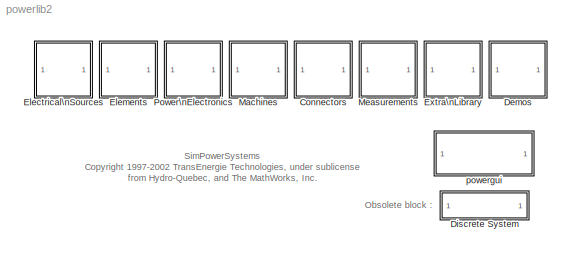
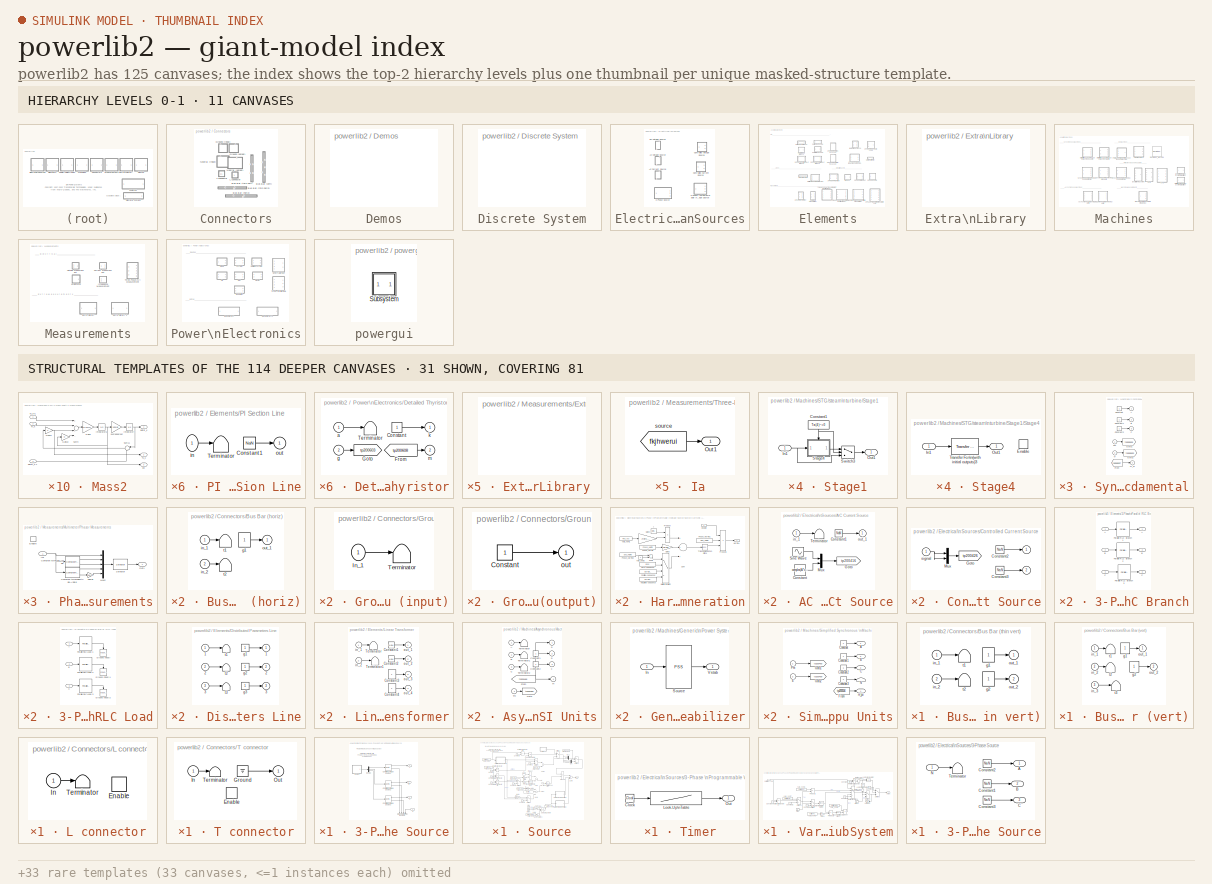
[diagram: thumbnail index - top-2 hierarchy levels (11 canvases) + 31 structural-template representatives of the remaining 114 canvases]
MODEL powerlib2
KIND library
BLOCK [SubSystem] Connectors
  MaskDisplay = plot(0,0,100,100,[80,40],[40,40],[70,51],[31,31],[64,57],[23,23],[5,60,60],[70,70,40],[32,32],[70,97],[31,32,34,29,29,34,34,29,34,29],[71,68,71,71,70,68,71,68,68,71])
  MaskIconFrame = on
  MaskIconOpaque = on
  MaskIconRotate = none
  MaskIconUnits = autoscale
  MinAlgLoopOccurrences = off
  Ports = []
  RTWSystemCode = Auto
  TreatAsAtomicUnit = off
BLOCK [SubSystem] Connectors/Bus Bar (horiz)
  MaskCallbackString = ||
  MaskDescription = Use this block to connect multiple incoming lines together.
  MaskDisplay = plot(0,0,10,ret)
  MaskEnableString = on,on,on
  MaskHelp = web(psbhelp);
  MaskIconFrame = on
  MaskIconOpaque = on
  MaskIconRotate = port
  MaskIconUnits = autoscale
  MaskInitialization = ret=powericonV2('Bus Bar',entrees,sorties);\n\n
  MaskPromptString = Number of inputs:|Number of outputs:|Output type [1=PSB  0=simulink output]
  MaskSelfModifiable = on
  MaskStyleString = edit,edit,edit
  MaskTabNameString = ,,
  MaskToolTipString = on,on,on
  MaskTunableValueString = off,off,off
  MaskType = Bus Bar
  MaskValueString = 2|1|1111111111111111111111111111111111111111111111111111111111111111111111111
  MaskVarAliasString = ,,
  MaskVariables = entrees=@1;sorties=@2;PSBOutputType=@3;
  MaskVisibilityString = on,on,off
  MinAlgLoopOccurrences = off
  Ports = [2, 1]
  RTWSystemCode = Auto
  Tag = PoWeRsYsTeMbLoCk
  TreatAsAtomicUnit = off
BLOCK [Constant] Connectors/Bus Bar (horiz)/g1
BLOCK [Inport] Connectors/Bus Bar (horiz)/in_1
  IconDisplay = Port number
  LatchInput = off
  Port = 1
BLOCK [Inport] Connectors/Bus Bar (horiz)/in_2
  IconDisplay = Port number
  LatchInput = off
  Port = 2
BLOCK [Outport] Connectors/Bus Bar (horiz)/out_1
  BusOutputAsStruct = off
  IconDisplay = Port number
  InitialOutput = 0
BLOCK [Terminator] Connectors/Bus Bar (horiz)/t1
BLOCK [Terminator] Connectors/Bus Bar (horiz)/t2
BLOCK [SubSystem] Connectors/Bus Bar (thin horiz)
  CopyFcn = set_param(gcbh,'ShowName','off');
  MaskCallbackString = ||
  MaskDescription = Use this block to connect multiple incoming lines together.
  MaskDisplay = plot(0,0,10,s,c1,c2)
  MaskEnableString = on,on,on
  MaskHelp = web(psbhelp);
  MaskIconFrame = off
  MaskIconOpaque = on
  MaskIconRotate = port
  MaskIconUnits = autoscale
  MaskInitialization = [s,c1,c2] = powericonV2('Bus Bar',input,output);
  MaskPromptString = Number of inputs:|Number of outputs:|Output type [1=PSB  0=simulink output]
  MaskSelfModifiable = on
  MaskStyleString = edit,edit,edit
  MaskTabNameString = ,,
  MaskToolTipString = on,on,on
  MaskTunableValueString = off,off,off
  MaskType = Bus Bar
  MaskValueString = 2|1|111111111111111111111111111111111111111111111111111111111111111111111111111111111111
  MaskVarAliasString = ,,
  MaskVariables = input=@1;output=@2;PSBOutputType=@3;
  MaskVisibilityString = on,on,off
  MinAlgLoopOccurrences = off
  Ports = [2, 1]
  RTWSystemCode = Auto
  Tag = PoWeRsYsTeMbLoCk
  TreatAsAtomicUnit = off
BLOCK [Constant] Connectors/Bus Bar (thin horiz)/g1
BLOCK [Inport] Connectors/Bus Bar (thin horiz)/in_1
  IconDisplay = Port number
  LatchInput = off
  Port = 1
BLOCK [Inport] Connectors/Bus Bar (thin horiz)/in_2
  IconDisplay = Port number
  LatchInput = off
  Port = 2
BLOCK [Outport] Connectors/Bus Bar (thin horiz)/out_1
  BusOutputAsStruct = off
  IconDisplay = Port number
  InitialOutput = 0
BLOCK [Terminator] Connectors/Bus Bar (thin horiz)/t1
BLOCK [Terminator] Connectors/Bus Bar (thin horiz)/t2
BLOCK [SubSystem] Connectors/Bus Bar (thin vert)
  CopyFcn = set_param(gcbh,'ShowName','off');
  MaskCallbackString = ||
  MaskDescription = Use this block to connect multiple incoming lines together.
  MaskDisplay = plot(0,0,10,s,c1,c2)
  MaskEnableString = on,on,on
  MaskHelp = web(psbhelp);
  MaskIconFrame = off
  MaskIconOpaque = on
  MaskIconRotate = port
  MaskIconUnits = autoscale
  MaskInitialization = [s,c1,c2] = powericonV2('Bus Bar',input,output);
  MaskPromptString = Number of inputs:|Number of outputs:|Output type [1=PSB  0=simulink output]
  MaskSelfModifiable = on
  MaskStyleString = edit,edit,edit
  MaskTabNameString = ,,
  MaskToolTipString = on,on,on
  MaskTunableValueString = off,off,off
  MaskType = Bus Bar
  MaskValueString = 2|2|111111111111111111111111111111111111111111111111111111111111111111111111111111111111
  MaskVarAliasString = ,,
  MaskVariables = input=@1;output=@2;PSBOutputType=@3;
  MaskVisibilityString = on,on,off
  MinAlgLoopOccurrences = off
  Ports = [2, 2]
  RTWSystemCode = Auto
  Tag = PoWeRsYsTeMbLoCk
  TreatAsAtomicUnit = off
BLOCK [Constant] Connectors/Bus Bar (thin vert)/g1
BLOCK [Constant] Connectors/Bus Bar (thin vert)/g2
BLOCK [Inport] Connectors/Bus Bar (thin vert)/in_1
  IconDisplay = Port number
  LatchInput = off
  Port = 1
BLOCK [Inport] Connectors/Bus Bar (thin vert)/in_2
  IconDisplay = Port number
  LatchInput = off
  Port = 2
BLOCK [Outport] Connectors/Bus Bar (thin vert)/out_1
  BusOutputAsStruct = off
  IconDisplay = Port number
  InitialOutput = 0
BLOCK [Outport] Connectors/Bus Bar (thin vert)/out_2
  BusOutputAsStruct = off
  IconDisplay = Port number
  Port = 2
BLOCK [Terminator] Connectors/Bus Bar (thin vert)/t1
BLOCK [Terminator] Connectors/Bus Bar (thin vert)/t2
BLOCK [SubSystem] Connectors/Bus Bar (vert)
  MaskCallbackString = ||
  MaskDescription = Use this block to connect multiple incoming lines together.
  MaskDisplay = plot(0,0,10,ret)
  MaskEnableString = on,on,on
  MaskHelp = web(psbhelp);
  MaskIconFrame = on
  MaskIconOpaque = on
  MaskIconRotate = port
  MaskIconUnits = autoscale
  MaskInitialization = ret=powericonV2('Bus Bar',entrees,sorties);\n\n
  MaskPromptString = Number of inputs:|Number of outputs:|Output type [1=PSB  0=simulink output]
  MaskSelfModifiable = on
  MaskStyleString = edit,edit,edit
  MaskTabNameString = ,,
  MaskToolTipString = on,on,on
  MaskTunableValueString = off,off,off
  MaskType = Bus Bar
  MaskValueString = 3|2|11111111111111111111111111111111111111111111111111111111111111111111111111111111111111111
  MaskVarAliasString = ,,
  MaskVariables = entrees=@1;sorties=@2;PSBOutputType=@3;
  MaskVisibilityString = on,on,off
  MinAlgLoopOccurrences = off
  Ports = [3, 2]
  RTWSystemCode = Auto
  Tag = PoWeRsYsTeMbLoCk
  TreatAsAtomicUnit = off
BLOCK [Constant] Connectors/Bus Bar (vert)/g1
BLOCK [Constant] Connectors/Bus Bar (vert)/g2
BLOCK [Inport] Connectors/Bus Bar (vert)/in_1
  IconDisplay = Port number
  LatchInput = off
  Port = 1
BLOCK [Inport] Connectors/Bus Bar (vert)/in_2
  IconDisplay = Port number
  LatchInput = off
  Port = 2
BLOCK [Inport] Connectors/Bus Bar (vert)/in_3
  IconDisplay = Port number
  LatchInput = off
  Port = 3
BLOCK [Outport] Connectors/Bus Bar (vert)/out_1
  BusOutputAsStruct = off
  IconDisplay = Port number
  InitialOutput = 0
BLOCK [Outport] Connectors/Bus Bar (vert)/out_2
  BusOutputAsStruct = off
  IconDisplay = Port number
  InitialOutput = 0
  Port = 2
BLOCK [Terminator] Connectors/Bus Bar (vert)/t1
BLOCK [Terminator] Connectors/Bus Bar (vert)/t2
BLOCK [Terminator] Connectors/Bus Bar (vert)/t3
BLOCK [SubSystem] Connectors/Ground (input)
  CopyFcn = set_param(gcbh,'ShowName','off');
  MaskDescription = Ground connection.
  MaskDisplay = plot(-15,-15,15,15,-[5 5],[-10 10],[0 0],[-5 5],-[-5 -5],[-2.5 2.5],-[15 5],[0 0])
  MaskHelp = web(psbhelp);
  MaskIconFrame = off
  MaskIconOpaque = on
  MaskIconRotate = port
  MaskIconUnits = autoscale
  MaskSelfModifiable = on
  MaskType = Ground
  MinAlgLoopOccurrences = off
  Ports = [1]
  RTWSystemCode = Auto
  Tag = PoWeRsYsTeMbLoCk
  TreatAsAtomicUnit = off
BLOCK [Inport] Connectors/Ground (input)/In_1
  IconDisplay = Port number
  LatchInput = off
  Port = 1
BLOCK [Terminator] Connectors/Ground (input)/Terminator
BLOCK [SubSystem] Connectors/Ground (output)
  CopyFcn = set_param(gcbh,'ShowName','off');
  MaskDescription = Ground connection
  MaskDisplay = plot(-15,-15,15,15,[5 5],[-10 10],[0 0],[-5 5],[-5 -5],[-2.5 2.5],[15 5],[0 0])
  MaskEnableString = on
  MaskHelp = web(psbhelp);
  MaskIconFrame = off
  MaskIconOpaque = on
  MaskIconRotate = port
  MaskIconUnits = autoscale
  MaskPromptString = Output type [1=PSB  0=simulink output]
  MaskSelfModifiable = on
  MaskStyleString = edit
  MaskToolTipString = on
  MaskTunableValueString = on
  MaskType = Ground
  MaskValueString = 1
  MaskVariables = PSBOutputType=@1;
  MaskVisibilityString = off
  MinAlgLoopOccurrences = off
  Ports = [0, 1]
  RTWSystemCode = Auto
  Tag = PoWeRsYsTeMbLoCk
  TreatAsAtomicUnit = off
BLOCK [Constant] Connectors/Ground (output)/Constant
BLOCK [Outport] Connectors/Ground (output)/out
  BusOutputAsStruct = off
  IconDisplay = Port number
  InitialOutput = 0
BLOCK [SubSystem] Connectors/L connector
  CopyFcn = set_param(gcbh,'ShowName','off');
  MaskDescription = Use this block to connect two incoming lines together.
  MaskDisplay = plot(-100,-100,100,100,[-100,0,0],rot*[0,0,100])\nplot([0 1 0 0 1 1 0 1]*30-10,[1 1 0 1 0 1 0 0]*30-15)\n
  MaskHelp = web(psbhelp);
  MaskIconFrame = off
  MaskIconOpaque = on
  MaskIconRotate = port
  MaskIconUnits = autoscale
  MaskInitialization = if strcmp(get_param(gcb,'NamePlacement'),'alternate')\n   rot = -1;\nelse\n   rot = 1;\nend\n
  MaskSelfModifiable = on
  MaskType = Bus Bar
  MinAlgLoopOccurrences = off
  Ports = [1, 0, 1]
  RTWSystemCode = Auto
  Tag = PoWeRsYsTeMbLoCk
  TreatAsAtomicUnit = on
BLOCK [EnablePort] Connectors/L connector/Enable
  Ports = []
BLOCK [Inport] Connectors/L connector/In
  IconDisplay = Port number
  LatchInput = off
  Port = 1
BLOCK [Terminator] Connectors/L connector/Terminator
BLOCK [SubSystem] Connectors/Neutral (input)
  CopyFcn = set_param(gcbh,'ShowName','off');
  MaskDescription = Implements a neutral point with a labeled number
  MaskDisplay = plot(-10,-10,10,10,-[10 5 5 -5 5 5],[0 0 -5 0 5 0.0])\ndisp(strno);
  MaskEnableString = on
  MaskHelp = web(psbhelp);
  MaskIconFrame = off
  MaskIconOpaque = on
  MaskIconRotate = port
  MaskIconUnits = autoscale
  MaskInitialization = strno=sprintf('\\n\\n%d',no);
  MaskPromptString = Node number:
  MaskSelfModifiable = on
  MaskStyleString = edit
  MaskToolTipString = on
  MaskTunableValueString = off
  MaskType = Neutral
  MaskValueString = 99
  MaskVariables = no=@1;
  MaskVisibilityString = on
  MinAlgLoopOccurrences = off
  Ports = [1]
  RTWSystemCode = Auto
  Tag = PoWeRsYsTeMbLoCk
  TreatAsAtomicUnit = off
BLOCK [Inport] Connectors/Neutral (input)/In_1
  IconDisplay = Port number
  LatchInput = off
  Port = 1
BLOCK [Terminator] Connectors/Neutral (input)/Terminator
BLOCK [SubSystem] Connectors/Neutral (output)
  CopyFcn = set_param(gcbh,'ShowName','off');
  MaskCallbackString = |
  MaskDescription = Implements a neutral point with a labeled number
  MaskDisplay = plot(-10,-10,10,10,[10 5 5 -5 5 5],[0 0 -5 0 5 0.0])\ndisp(strno);
  MaskEnableString = on,on
  MaskHelp = web(psbhelp);
  MaskIconFrame = off
  MaskIconOpaque = on
  MaskIconRotate = port
  MaskIconUnits = autoscale
  MaskInitialization = strno=sprintf('\\n\\n%d',no);
  MaskPromptString = Node number:|Output type [1=PSB  0=simulink output]
  MaskSelfModifiable = on
  MaskStyleString = edit,edit
  MaskTabNameString = ,
  MaskToolTipString = on,on
  MaskTunableValueString = off,off
  MaskType = Neutral
  MaskValueString = 99|1
  MaskVarAliasString = ,
  MaskVariables = no=@1;PSBOutputType=@2;
  MaskVisibilityString = on,off
  MinAlgLoopOccurrences = off
  Ports = [0, 1]
  RTWSystemCode = Auto
  Tag = PoWeRsYsTeMbLoCk
  TreatAsAtomicUnit = off
BLOCK [Constant] Connectors/Neutral (output)/Constant
BLOCK [Outport] Connectors/Neutral (output)/Outport
  BusOutputAsStruct = off
  IconDisplay = Port number
  InitialOutput = 0
BLOCK [SubSystem] Connectors/T connector
  CopyFcn = set_param(gcbh,'ShowName','off');
  MaskDescription = Use this block to connect two incoming lines together.
  MaskDisplay = plot(-100,-100,100,100,[-100 100],[0 0])\nplot([0 0],rot*[100 0])\nplot([0 1 0 0 1 1 0 1]*30-10,[1 1 0 1 0 1 0 0]*30-15)\n
  MaskEnableString = on
  MaskHelp = web(psbhelp);
  MaskIconFrame = off
  MaskIconOpaque = on
  MaskIconRotate = port
  MaskIconUnits = autoscale
  MaskInitialization = if strcmp(get_param(gcb,'NamePlacement'),'alternate')\n   rot = -1;\nelse\n   rot = 1;\nend\n
  MaskPromptString = Output type [1=PSB  0=simulink output]
  MaskSelfModifiable = on
  MaskStyleString = edit
  MaskToolTipString = on
  MaskTunableValueString = on
  MaskType = Bus Bar
  MaskValueString = 1
  MaskVariables = PSBOutputType=@1;
  MaskVisibilityString = off
  MinAlgLoopOccurrences = off
  Ports = [1, 1, 1]
  RTWSystemCode = Auto
  Tag = PoWeRsYsTeMbLoCk
  TreatAsAtomicUnit = on
BLOCK [EnablePort] Connectors/T connector/Enable
  Ports = []
BLOCK [Ground] Connectors/T connector/Ground
BLOCK [Inport] Connectors/T connector/In
  IconDisplay = Port number
  LatchInput = off
  Port = 1
BLOCK [Outport] Connectors/T connector/Out
  BusOutputAsStruct = off
  IconDisplay = Port number
  InitialOutput = 0
BLOCK [Terminator] Connectors/T connector/Terminator
BLOCK [SubSystem] Demos
  MaskDisplay = disp('Demos')
  MaskIconFrame = on
  MaskIconOpaque = on
  MaskIconRotate = none
  MaskIconUnits = autoscale
  MinAlgLoopOccurrences = off
  OpenFcn = demo('simulink','SimPowerSystems')
  Ports = []
  RTWSystemCode = Auto
  TreatAsAtomicUnit = off
BLOCK [SubSystem] Discrete System
  MaskCallbackString = |
  MaskDescription = This block is used to discretize the state-space model of a SimPowerSystems circuit, with the bilinear (Tustin) approximation.  Discrete time models will be used for Machine blocks and Power Electronics blocks.\n\nDrag this block in the top-level system of your model and specify the sample time.
  MaskDisplay = disp(message)
  MaskEnableString = on,on
  MaskHelp = web(psbhelp);
  MaskIconFrame = on
  MaskIconOpaque = on
  MaskIconRotate = none
  MaskIconUnits = autoscale
  MaskInitialization = if isempty(Ts);Ts=0;end;\nif Ts==0\n  message=sprintf('Continuous\\nsystem');\nelse\n  message=sprintf('Discrete system\\nTs=%s',num2str(Ts));\nend
  MaskPromptString = methode (dummy)|Sample time (s):
  MaskSelfModifiable = on
  MaskStyleString = edit,edit
  MaskTabNameString = ,
  MaskToolTipString = on,on
  MaskTunableValueString = on,on
  MaskType = PSB option block system
  MaskValueString = 0|50e-6
  MaskVarAliasString = ,
  MaskVariables = methode=@1;Ts=@2;
  MaskVisibilityString = off,on
  MinAlgLoopOccurrences = off
  Ports = []
  RTWSystemCode = Auto
  TreatAsAtomicUnit = off
BLOCK [SubSystem] Electrical\nSources
  MaskDisplay = plot(-15,-15,15,15,[0 0 5 -5],[10 1.25 1.25 1.25],[0 0 -2 2],[-10 -1.25 -1.25 -1.25],[6 4 5 5 5]-10,[3 3 3 4 2]+3)
  MaskIconFrame = on
  MaskIconOpaque = on
  MaskIconRotate = port
  MaskIconUnits = autoscale
  MinAlgLoopOccurrences = off
  Ports = []
  RTWSystemCode = Auto
  TreatAsAtomicUnit = off
BLOCK [SubSystem] Electrical\nSources/3-Phase Source
  MaskCallbackString = |||parametres=get_param(gcb,'MaskValues');\np5=parametres{5};\nif strcmp(p5,'on');\n        param6='off';\n        param7='off';\n        param8='on';\n        param9='on';\n        param10='on';\n        param11='off';\nelse \n        param6='on';\n        param7='on';\n        param8='off';\n        param9='off';\n        param10='off';\n        param11='off';\nend\nvisible={'on','on','on','on',...<+1293ch>
  MaskDescription = This block implements a three-phase source in series with a serie RL branch.
  MaskDisplay = plot(-180,-50,360,50,s1,s2,s3,s4,\n[0,9,18,24,29,30,29,24,18,9,0,-9,-18,-24,-29,-30,-29,-24,-18,-9,0]*1.5-45, \n[30,29,24,18,9,0,-9,-18,-24,-29,-30,-29,-24,-18,-9,0,9,18,24,29,30]*0.8,[-150,-90],[0,0]);\nplot(g1,g2,g3,g4,g5,g6);\n\n
  MaskEnableString = on,on,on,on,on,on,on,on,on,on,on
  MaskHelp = Three-phase voltage source with source resistance and inductance.
  MaskIconFrame = on
  MaskIconOpaque = off
  MaskIconRotate = port
  MaskIconUnits = autoscale
  MaskInitialization = parametres=get_param(gcb,'MaskValues');\np5=parametres{5};\nif strcmp(p5,'on');\n        param6='off';\n        param7='off';\n        param8='on';\n        param9='on';\n        param10='on';\n        param11='off';\nelse \n        param6='on';\n        param7='on';\n        param8='off';\n        param9='off';\n        param10='off';\n        param11='off';\nend\nvisible={'on','on','on','on','on...<+707ch>
  MaskPromptString = Phase-to-phase rms voltage (V):|Phase angle of phase A (degrees):|Frequency (Hz) :|Internal connection:|Specify impedance using short-circuit level|Source resistance (Ohms):|Source inductance (H) :|3-phase short-circuit level at base voltage(VA):|Base voltage (Vrms ph-ph):|X/R ratio:|Output type [1=PSB  0=simulink output]
  MaskSelfModifiable = on
  MaskStyleString = edit,edit,edit,popup(Y|Yn|Yg),checkbox,edit,edit,edit,edit,edit,edit
  MaskTabNameString = ,,,,,,,,,,
  MaskToolTipString = on,on,on,on,on,on,on,on,on,on,on
  MaskTunableValueString = off,off,off,off,off,off,off,off,off,off,off
  MaskType = 3-Phase Source
  MaskValueString = 25e3|0|60|Yn|on|0.312|6.63e-3|0|0|0|111
  MaskVarAliasString = ,,,,,,,,,,
  MaskVariables = V=@1;Phi=@2;F=@3;InternalConnection=@4;RLoff=&5;R=@6;L=@7;Psc=@8;Vbase=@9;XRratio=@10;PSBOutputType=@11;
  MaskVisibilityString = on,on,on,on,on,off,off,on,on,on,off
  MinAlgLoopOccurrences = off
  Ports = [1, 3]
  RTWSystemCode = Auto
  Tag = PoWeRsYsTeMbLoCk
  TreatAsAtomicUnit = off
BLOCK [Outport] Electrical\nSources/3-Phase Source/A
  BusOutputAsStruct = off
  IconDisplay = Port number
BLOCK [Outport] Electrical\nSources/3-Phase Source/B
  BusOutputAsStruct = off
  IconDisplay = Port number
  Port = 2
BLOCK [Outport] Electrical\nSources/3-Phase Source/C
  BusOutputAsStruct = off
  IconDisplay = Port number
  Port = 3
BLOCK [Constant] Electrical\nSources/3-Phase Source/Constant1
  Value = NaN
BLOCK [Constant] Electrical\nSources/3-Phase Source/Constant2
  Value = NaN
BLOCK [Constant] Electrical\nSources/3-Phase Source/Constant3
  Value = NaN
BLOCK [Inport] Electrical\nSources/3-Phase Source/N
  IconDisplay = Port number
  LatchInput = off
  Port = 1
BLOCK [Terminator] Electrical\nSources/3-Phase Source/Terminator
BLOCK [SubSystem] Electrical\nSources/3-Phase \nProgrammable \nVoltage Source
  InitFcn = powericonV2('psbcbtransfo',gcb,'3-PhaseProgrammableVoltageSource',1);
  MaskCallbackString = |parametres=get_param(gcb,'MaskValues');p2=parametres{2};p3=parametres{3};p12=parametres{12};if strcmp(p3,'Step');param4='on';param5='off';param6='off';param7='off';param8='on';param9='off';param10='off';param11='off';elseif strcmp(p3,'Ramp');param4='off';param5='on';param6='off';param7='off';param8='on';param9='off';param10='off';param11='off';elseif strcmp(p3,'Modulation');param4='off';param5='o...<+2668ch>
  MaskDescription = This block implements  a  three-phase zero-impedance voltage source. The common node (neutral) of the three sources is accessible via input 1 (N) of the block. Time variation for the amplitude, phase and frequency of the fundamental can be pre-programmed. In addition, two harmonics can be surimposed on the fundamental.\n\nNote: For  \"Phasor simulation\" , frequency variation and harmonic injectio...<+124ch>
  MaskDisplay = plot(-50,-35,50,50-15,[0,9,18,24,29,30,29,24,18,9,0,-9,-18,-24,-29,-30,-29,-24,-18,-9,0],[30,29,24,18,9,0,-9,-18,-24,-29,-30,-29,-24,-18,-9,0,9,18,24,29,30],[-50 -30],[0 0],[50,30],[0 0],[45 35 40 40 40],[15 15 15 20 10],[1 2 3 4 5 6 7 8 9 10 11 12 13 14 15 16 17 18 19 20 21].*1.5-15,[0,9,18,24,29,30,29,24,18,9,0,-9,-18,-24,-29,-30,-29,-24,-18,-9,0]./2.4)\nplot(-75,-70,75,70)
  MaskEnableString = on,on,on,on,on,on,on,on,on,on,on,on,on,on,on
  MaskHelp = web(psbhelp)
  MaskIconFrame = on
  MaskIconOpaque = off
  MaskIconRotate = none
  MaskIconUnits = autoscale
  MaskInitialization = % Conversion of pos. seq.amplitude from Ph-Ph rms voltage to Ph-G peak\nPar_Vps=Par_Vps_LLrms;\nPar_Vps(1)=Par_Vps(1)*sqrt(2/3);\nMag_Vps=Par_Vps(1);\nPhase_Vps=Par_Vps(2);\nFreq_Vps=Par_Vps(3);\n% Conversion of harmonic amplitudes from pu to Ph-G peak volt\nPar_HarmoA=Par_HarmoA_pu;\nPar_HarmoB=Par_HarmoB_pu;\nPar_HarmoA(2)=Par_HarmoA(2)*Mag_Vps;\nPar_HarmoB(2)=Par_HarmoB(2)*Mag_Vps;\n% Conversio...<+1400ch>
  MaskPromptString = Positive-sequence: [ Amplitude(Vrms Ph-Ph)  Phase(deg.)   Freq. (Hz) ]|Time variation of:|Type of variation:|Step magnitude (pu, Hz or deg.):|Rate of change (pu/s, Hz/s or deg/s):|Amplitude of the modulation (pu, Hz or deg.):|Frequency of the modulation(Hz):|Variation timing (s) : [ Start   End ]|Variation on phase A only|Amplitude values (pu):|Time values:|Fundamental and/or Harmonic generation:|...<+152ch>
  MaskSelfModifiable = on
  MaskStyleString = edit,popup(None|Amplitude|Phase|Frequency),popup(Step|Ramp|Modulation|Table of time-amplitude pairs),edit,edit,edit,edit,edit,checkbox,edit,edit,checkbox,edit,edit,edit
  MaskTabNameString = ,,,,,,,,,,,,,,
  MaskToolTipString = on,on,on,on,on,on,on,on,on,on,on,on,on,on,on
  MaskTunableValueString = on,on,on,on,on,on,on,on,on,on,on,on,on,on,on
  MaskType = 3-phase Programmable Voltage Source
  MaskValueString = [25e3 -20  60]|None|Modulation|-0.3|0.5|0.4|2|[0.1 1.2]|off|[1  0.8  1.2  1.0 ]|[0 0.1 0.25 0.4]|off|[3 0.2 -25 0]|[2 0.15  35 2]|[0.1  0.6]
  MaskVarAliasString = ,,,,,,,,,,,,,,
  MaskVariables = Par_Vps_LLrms=@1;VariationEntity=@2;VariationType=@3;VariationStep=@4;VariationRate=@5;VariationMag=@6;VariationFreq=@7;Par_Timing_Variation=@8;SinglePhase=@9;Yampli=@10;Xtime=@11;HarmonicGeneration=@12;Par_HarmoA_pu=@13;Par_HarmoB_pu=@14;Par_Timing_Harmo=@15;
  MaskVisibilityString = on,on,off,off,off,off,off,off,off,off,off,on,off,off,off
  MinAlgLoopOccurrences = off
  Ports = [1, 3]
  RTWSystemCode = Auto
  TreatAsAtomicUnit = off
BLOCK [Outport] Electrical\nSources/3-Phase \nProgrammable \nVoltage Source/A
  BusOutputAsStruct = off
  IconDisplay = Port number
BLOCK [Outport] Electrical\nSources/3-Phase \nProgrammable \nVoltage Source/B
  BusOutputAsStruct = off
  IconDisplay = Port number
  Port = 2
BLOCK [Reference] Electrical\nSources/3-Phase \nProgrammable \nVoltage Source/Bus Bar1  REF=powerlib2/Connectors/Bus Bar (horiz)
  PSBOutputType = 1111111111111111111111111111111111111111111111111111111111111111111111111
  Ports = [4]
  SourceBlock = powerlib2/Connectors/Bus Bar (horiz)
  SourceType = Bus Bar
  Tag = PoWeRsYsTeMbLoCk
  entrees = 4
  sorties = 0
BLOCK [Outport] Electrical\nSources/3-Phase \nProgrammable \nVoltage Source/C
  BusOutputAsStruct = off
  IconDisplay = Port number
  Port = 3
BLOCK [Reference] Electrical\nSources/3-Phase \nProgrammable \nVoltage Source/Controlled Voltage Source1  REF=powerlib2/Electrical\nSources/Controlled Voltage Source
  Description = source block
  PSBOutputType = 11
  Ports = [1, 2]
  SourceBlock = powerlib2/Electrical\nSources/Controlled Voltage Source
  SourceType = Controlled Voltage Source
  Tag = PoWeRsYsTeMbLoCk
  ifreq = Par_Vps(3)
  initsrc = on
  iph = Par_Vps(2)
  iv = Par_Vps(1)
  mesure = None
  srctyp = AC
BLOCK [Reference] Electrical\nSources/3-Phase \nProgrammable \nVoltage Source/Controlled Voltage Source2  REF=powerlib2/Electrical\nSources/Controlled Voltage Source
  Description = source block
  PSBOutputType = 11
  Ports = [1, 2]
  SourceBlock = powerlib2/Electrical\nSources/Controlled Voltage Source
  SourceType = Controlled Voltage Source
  Tag = PoWeRsYsTeMbLoCk
  ifreq = Par_Vps(3)
  initsrc = on
  iph = Par_Vps(2)-120
  iv = Par_Vps(1)
  mesure = None
  srctyp = AC
BLOCK [Reference] Electrical\nSources/3-Phase \nProgrammable \nVoltage Source/Controlled Voltage Source3  REF=powerlib2/Electrical\nSources/Controlled Voltage Source
  Description = source block
  PSBOutputType = 11
  Ports = [1, 2]
  SourceBlock = powerlib2/Electrical\nSources/Controlled Voltage Source
  SourceType = Controlled Voltage Source
  Tag = PoWeRsYsTeMbLoCk
  ifreq = Par_Vps(3)
  initsrc = on
  iph = Par_Vps(2)+120
  iv = Par_Vps(1)
  mesure = None
  srctyp = AC
BLOCK [Demux] Electrical\nSources/3-Phase \nProgrammable \nVoltage Source/Demux
  Outputs = 3
  Ports = [1, 3]
BLOCK [Inport] Electrical\nSources/3-Phase \nProgrammable \nVoltage Source/N
  IconDisplay = Port number
  LatchInput = off
  Port = 1
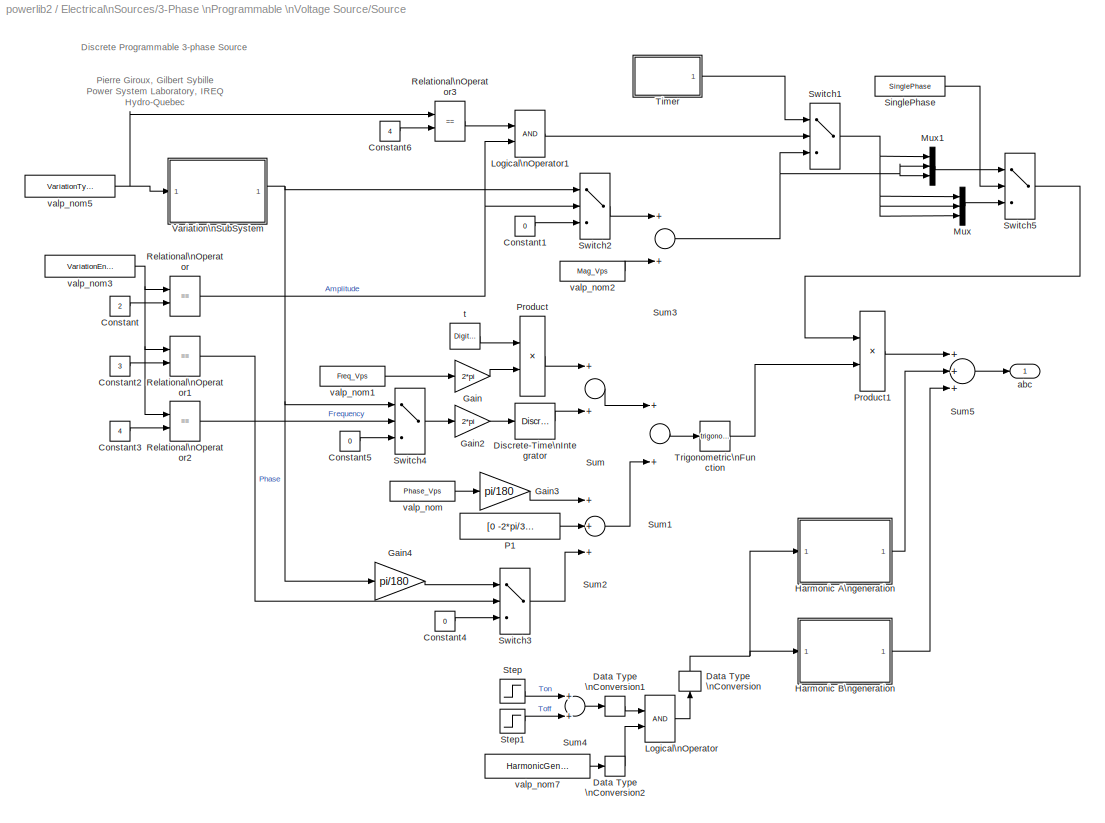
BLOCK [SubSystem] Electrical\nSources/3-Phase \nProgrammable \nVoltage Source/Source
  MaskCallbackString = |parametres=get_param(gcb,'MaskValues');p2=parametres{2};p3=parametres{3};p12=parametres{12};if strcmp(p3,'Step');param4='on';param5='off';param6='off';param7='off';param8='on';param9='off';param10='off';param11='off';elseif strcmp(p3,'Ramp');param4='off';param5='on';param6='off';param7='off';param8='on';param9='off';param10='off';param11='off';elseif strcmp(p3,'Modulation');param4='off';param5='o...<+2684ch>
  MaskDescription = Use this discrete  block to generate  a set of three-phase sinusoidal voltages or currents a, b and c. Time variation for the amplitude, phase and frequency of the fundamental can be pre-programmed. In addition, two harmonics can be surimposed on the fundamental.
  MaskEnableString = on,on,on,on,on,on,on,on,on,on,on,on,on,on,on,on
  MaskIconFrame = on
  MaskIconOpaque = on
  MaskIconRotate = none
  MaskIconUnits = autoscale
  MaskInitialization = Mag_Vps=Par_Vps(1);\nPhase_Vps=Par_Vps(2);\nFreq_Vps=Par_Vps(3);\nTon_Variation=Par_Timing_Variation(1);\nToff_Variation=Par_Timing_Variation(2);\nn_HarmoA=Par_HarmoA(1);\nMag_HarmoA=Par_HarmoA(2);\nPhase_HarmoA=Par_HarmoA(3);\nSeq_HarmoA=Par_HarmoA(4);\nif n_HarmoA==0\n    Phase_HarmoA=90;\n    Seq_HarmoA=0;\nend\nn_HarmoB=Par_HarmoB(1);\nMag_HarmoB=Par_HarmoB(2);\nPhase_HarmoB=Par_HarmoB(3);\nSe...<+649ch>
  MaskPromptString = Positive-sequence: [ Amplitude  Phase(degrees)   Freq. (Hz) ]|Time variation of:|Type of variation:|Step magnitude:|Rate of change (value/s):|Amplitude of the modulation:|Frequency of the modulation(Hz):|Variation timing (s) : [ Start   End ]|1-phase only|Amplitude values:|Time values:|Harmonic generation:|A:  [ Order(n)   Amplitude  Phase(degrees)  Seq(0, 1 or 2) ]|B:  [ Order(n)   Amplitude  Pha...<+80ch>
  MaskStyleString = edit,edit,edit,edit,edit,edit,edit,edit,edit,edit,edit,edit,edit,edit,edit,edit
  MaskTabNameString = ,,,,,,,,,,,,,,,
  MaskToolTipString = on,on,on,on,on,on,on,on,on,on,on,on,on,on,on,on
  MaskTunableValueString = on,on,on,on,on,on,on,on,on,on,on,on,on,on,on,on
  MaskType = Discrete 3-phase Programmable Source
  MaskValueString = Par_Vps|VariationEntity|VariationType|VariationStep|VariationRate|VariationMag|VariationFreq|Par_Timing_Variation|SinglePhase|Yampli|Xtime|HarmonicGeneration|Par_HarmoA|Par_HarmoB|Par_Timing_Harmo|evalin('base','Ts')
  MaskVarAliasString = ,,,,,,,,,,,,,,,
  MaskVariables = Par_Vps=@1;VariationEntity=@2;VariationType=@3;VariationStep=@4;VariationRate=@5;VariationMag=@6;VariationFreq=@7;Par_Timing_Variation=@8;SinglePhase=@9;Yampli=@10;Xtime=@11;HarmonicGeneration=@12;Par_HarmoA=@13;Par_HarmoB=@14;Par_Timing_Harmo=@15;Ts=@16;
  MaskVisibilityString = on,on,on,off,off,off,off,off,on,on,on,on,off,off,off,on
  MinAlgLoopOccurrences = off
  Ports = [0, 1]
  RTWSystemCode = Auto
  TreatAsAtomicUnit = off
BLOCK [Constant] Electrical\nSources/3-Phase \nProgrammable \nVoltage Source/Source/Constant
  Value = 2
BLOCK [Constant] Electrical\nSources/3-Phase \nProgrammable \nVoltage Source/Source/Constant1
  Value = 0
BLOCK [Constant] Electrical\nSources/3-Phase \nProgrammable \nVoltage Source/Source/Constant2
  Value = 3
BLOCK [Constant] Electrical\nSources/3-Phase \nProgrammable \nVoltage Source/Source/Constant3
  Value = 4
BLOCK [Constant] Electrical\nSources/3-Phase \nProgrammable \nVoltage Source/Source/Constant4
  Value = 0
BLOCK [Constant] Electrical\nSources/3-Phase \nProgrammable \nVoltage Source/Source/Constant5
  Value = 0
BLOCK [Constant] Electrical\nSources/3-Phase \nProgrammable \nVoltage Source/Source/Constant6
  Value = 4
BLOCK [DataTypeConversion] Electrical\nSources/3-Phase \nProgrammable \nVoltage Source/Source/Data Type \nConversion
  OutDataTypeMode = double
BLOCK [DataTypeConversion] Electrical\nSources/3-Phase \nProgrammable \nVoltage Source/Source/Data Type \nConversion1
  OutDataTypeMode = boolean
BLOCK [DataTypeConversion] Electrical\nSources/3-Phase \nProgrammable \nVoltage Source/Source/Data Type \nConversion2
  OutDataTypeMode = boolean
BLOCK [DiscreteIntegrator] Electrical\nSources/3-Phase \nProgrammable \nVoltage Source/Source/Discrete-Time\nIntegrator
  ExternalReset = none
  ICPrevOutput = DiscIntNeverNeededParam
  ICPrevScaledInput = DiscIntNeverNeededParam
  InitialConditionSource = internal
  IntegratorMethod = Integration: Forward Euler
  Ports = [1, 1]
  SampleTime = Ts
BLOCK [Gain] Electrical\nSources/3-Phase \nProgrammable \nVoltage Source/Source/Gain
  Gain = 2*pi
BLOCK [Gain] Electrical\nSources/3-Phase \nProgrammable \nVoltage Source/Source/Gain2
  Gain = 2*pi
BLOCK [Gain] Electrical\nSources/3-Phase \nProgrammable \nVoltage Source/Source/Gain3
  Gain = pi/180
BLOCK [Gain] Electrical\nSources/3-Phase \nProgrammable \nVoltage Source/Source/Gain4
  Gain = pi/180
BLOCK [SubSystem] Electrical\nSources/3-Phase \nProgrammable \nVoltage Source/Source/Harmonic A\ngeneration
  MaskCallbackString = |||||
  MaskEnableString = on,on,on,on,on,on
  MaskIconFrame = on
  MaskIconOpaque = on
  MaskIconRotate = none
  MaskIconUnits = autoscale
  MaskPromptString = Freq_Vps|n_Harmo|Mag_Harmo|Phase_Harmo|Seq_Harmo|Sample time:
  MaskStyleString = edit,edit,edit,edit,edit,edit
  MaskTabNameString = ,,,,,
  MaskToolTipString = on,on,on,on,on,on
  MaskTunableValueString = on,on,on,on,on,on
  MaskType = Harmonic generation
  MaskValueString = Freq_Vps|n_HarmoA |Mag_HarmoA |Phase_HarmoA|Seq_HarmoA|Ts
  MaskVarAliasString = ,,,,,
  MaskVariables = Freq_Vps=@1;n_Harmo=@2;Mag_Harmo=@3;Phase_Harmo=@4;Seq_Harmo=@5;Ts=@6;
  MaskVisibilityString = on,on,on,on,on,on
  MinAlgLoopOccurrences = off
  Ports = [1, 1]
  RTWSystemCode = Auto
  TreatAsAtomicUnit = off
BLOCK [Inport] Electrical\nSources/3-Phase \nProgrammable \nVoltage Source/Source/Harmonic A\ngeneration/Enable
  IconDisplay = Port number
  LatchInput = off
  Port = 1
BLOCK [Gain] Electrical\nSources/3-Phase \nProgrammable \nVoltage Source/Source/Harmonic A\ngeneration/Gain2
  Gain = 2*pi*n_Harmo
BLOCK [Gain] Electrical\nSources/3-Phase \nProgrammable \nVoltage Source/Source/Harmonic A\ngeneration/Gain3
  Gain = pi/180
BLOCK [Outport] Electrical\nSources/3-Phase \nProgrammable \nVoltage Source/Source/Harmonic A\ngeneration/HarmoA
  BusOutputAsStruct = off
  IconDisplay = Port number
BLOCK [MultiPortSwitch] Electrical\nSources/3-Phase \nProgrammable \nVoltage Source/Source/Harmonic A\ngeneration/Multiport\nSwitch
  Inputs = 3
  Ports = [4, 1]
  SaturateOnIntegerOverflow = off
BLOCK [Constant] Electrical\nSources/3-Phase \nProgrammable \nVoltage Source/Source/Harmonic A\ngeneration/Negative-sequence
  Value = [0 2*pi/3 -2*pi/3]
BLOCK [Constant] Electrical\nSources/3-Phase \nProgrammable \nVoltage Source/Source/Harmonic A\ngeneration/Phase_Harmo
  Value = Phase_Harmo
BLOCK [Constant] Electrical\nSources/3-Phase \nProgrammable \nVoltage Source/Source/Harmonic A\ngeneration/Phase_Harmo1
  Value = Mag_Harmo
BLOCK [Constant] Electrical\nSources/3-Phase \nProgrammable \nVoltage Source/Source/Harmonic A\ngeneration/Phase_Harmo2
  Value = Seq_Harmo
BLOCK [Constant] Electrical\nSources/3-Phase \nProgrammable \nVoltage Source/Source/Harmonic A\ngeneration/Positive-sequence
  Value = [0 -2*pi/3 2*pi/3]
BLOCK [Product] Electrical\nSources/3-Phase \nProgrammable \nVoltage Source/Source/Harmonic A\ngeneration/Product
  Ports = [2, 1]
  RndMeth = Floor
BLOCK [Product] Electrical\nSources/3-Phase \nProgrammable \nVoltage Source/Source/Harmonic A\ngeneration/Product1
  Inputs = 3
  Ports = [3, 1]
  RndMeth = Floor
BLOCK [Sum] Electrical\nSources/3-Phase \nProgrammable \nVoltage Source/Source/Harmonic A\ngeneration/Sum
  Inputs = +++
  Ports = [3, 1]
BLOCK [Sum] Electrical\nSources/3-Phase \nProgrammable \nVoltage Source/Source/Harmonic A\ngeneration/Sum1
  Ports = [2, 1]
BLOCK [Trigonometry] Electrical\nSources/3-Phase \nProgrammable \nVoltage Source/Source/Harmonic A\ngeneration/Trigonometric\nFunction1
  Ports = [1, 1]
BLOCK [Constant] Electrical\nSources/3-Phase \nProgrammable \nVoltage Source/Source/Harmonic A\ngeneration/Zero-sequence
  Value = [0 0 0]
BLOCK [DigitalClock] Electrical\nSources/3-Phase \nProgrammable \nVoltage Source/Source/Harmonic A\ngeneration/t
  SampleTime = Ts
BLOCK [Constant] Electrical\nSources/3-Phase \nProgrammable \nVoltage Source/Source/Harmonic A\ngeneration/valp_nom1
  Value = Freq_Vps
BLOCK [Constant] Electrical\nSources/3-Phase \nProgrammable \nVoltage Source/Source/Harmonic A\ngeneration/valp_nom2
BLOCK [SubSystem] Electrical\nSources/3-Phase \nProgrammable \nVoltage Source/Source/Harmonic B\ngeneration
  MaskCallbackString = |||||
  MaskEnableString = on,on,on,on,on,on
  MaskIconFrame = on
  MaskIconOpaque = on
  MaskIconRotate = none
  MaskIconUnits = autoscale
  MaskPromptString = Freq_Vps|n_Harmo|Mag_Harmo|Phase_Harmo|Seq_Harmo|Sample time:
  MaskStyleString = edit,edit,edit,edit,edit,edit
  MaskTabNameString = ,,,,,
  MaskToolTipString = on,on,on,on,on,on
  MaskTunableValueString = on,on,on,on,on,on
  MaskType = Harmonic generation
  MaskValueString = Freq_Vps|n_HarmoB|Mag_HarmoB |Phase_HarmoB|Seq_HarmoB|Ts
  MaskVarAliasString = ,,,,,
  MaskVariables = Freq_Vps=@1;n_Harmo=@2;Mag_Harmo=@3;Phase_Harmo=@4;Seq_Harmo=@5;Ts=@6;
  MaskVisibilityString = on,on,on,on,on,on
  MinAlgLoopOccurrences = off
  Ports = [1, 1]
  RTWSystemCode = Auto
  TreatAsAtomicUnit = off
BLOCK [Inport] Electrical\nSources/3-Phase \nProgrammable \nVoltage Source/Source/Harmonic B\ngeneration/Enable
  IconDisplay = Port number
  LatchInput = off
  Port = 1
BLOCK [Gain] Electrical\nSources/3-Phase \nProgrammable \nVoltage Source/Source/Harmonic B\ngeneration/Gain2
  Gain = 2*pi*n_Harmo
BLOCK [Gain] Electrical\nSources/3-Phase \nProgrammable \nVoltage Source/Source/Harmonic B\ngeneration/Gain3
  Gain = pi/180
BLOCK [Outport] Electrical\nSources/3-Phase \nProgrammable \nVoltage Source/Source/Harmonic B\ngeneration/HarmoB
  BusOutputAsStruct = off
  IconDisplay = Port number
BLOCK [MultiPortSwitch] Electrical\nSources/3-Phase \nProgrammable \nVoltage Source/Source/Harmonic B\ngeneration/Multiport\nSwitch
  Inputs = 3
  Ports = [4, 1]
  SaturateOnIntegerOverflow = off
BLOCK [Constant] Electrical\nSources/3-Phase \nProgrammable \nVoltage Source/Source/Harmonic B\ngeneration/Negative-sequence
  Value = [0 2*pi/3 -2*pi/3]
BLOCK [Constant] Electrical\nSources/3-Phase \nProgrammable \nVoltage Source/Source/Harmonic B\ngeneration/Phase_Harmo
  Value = Phase_Harmo
BLOCK [Constant] Electrical\nSources/3-Phase \nProgrammable \nVoltage Source/Source/Harmonic B\ngeneration/Phase_Harmo1
  Value = Mag_Harmo
BLOCK [Constant] Electrical\nSources/3-Phase \nProgrammable \nVoltage Source/Source/Harmonic B\ngeneration/Phase_Harmo2
  Value = Seq_Harmo
BLOCK [Constant] Electrical\nSources/3-Phase \nProgrammable \nVoltage Source/Source/Harmonic B\ngeneration/Positive-sequence
  Value = [0 -2*pi/3 2*pi/3]
BLOCK [Product] Electrical\nSources/3-Phase \nProgrammable \nVoltage Source/Source/Harmonic B\ngeneration/Product
  Ports = [2, 1]
  RndMeth = Floor
BLOCK [Product] Electrical\nSources/3-Phase \nProgrammable \nVoltage Source/Source/Harmonic B\ngeneration/Product1
  Inputs = 3
  Ports = [3, 1]
  RndMeth = Floor
BLOCK [Sum] Electrical\nSources/3-Phase \nProgrammable \nVoltage Source/Source/Harmonic B\ngeneration/Sum
  Inputs = +++
  Ports = [3, 1]
BLOCK [Sum] Electrical\nSources/3-Phase \nProgrammable \nVoltage Source/Source/Harmonic B\ngeneration/Sum1
  Ports = [2, 1]
BLOCK [Trigonometry] Electrical\nSources/3-Phase \nProgrammable \nVoltage Source/Source/Harmonic B\ngeneration/Trigonometric\nFunction1
  Ports = [1, 1]
BLOCK [Constant] Electrical\nSources/3-Phase \nProgrammable \nVoltage Source/Source/Harmonic B\ngeneration/Zero-sequence
  Value = [0 0 0]
BLOCK [DigitalClock] Electrical\nSources/3-Phase \nProgrammable \nVoltage Source/Source/Harmonic B\ngeneration/t
  SampleTime = Ts
BLOCK [Constant] Electrical\nSources/3-Phase \nProgrammable \nVoltage Source/Source/Harmonic B\ngeneration/valp_nom1
  Value = Freq_Vps
BLOCK [Constant] Electrical\nSources/3-Phase \nProgrammable \nVoltage Source/Source/Harmonic B\ngeneration/valp_nom2
BLOCK [Logic] Electrical\nSources/3-Phase \nProgrammable \nVoltage Source/Source/Logical\nOperator
  Ports = [2, 1]
BLOCK [Logic] Electrical\nSources/3-Phase \nProgrammable \nVoltage Source/Source/Logical\nOperator1
  Ports = [2, 1]
BLOCK [Mux] Electrical\nSources/3-Phase \nProgrammable \nVoltage Source/Source/Mux
  DisplayOption = bar
  Inputs = 3
  Ports = [3, 1]
BLOCK [Mux] Electrical\nSources/3-Phase \nProgrammable \nVoltage Source/Source/Mux1
  DisplayOption = bar
  Inputs = 3
  Ports = [3, 1]
BLOCK [Constant] Electrical\nSources/3-Phase \nProgrammable \nVoltage Source/Source/P1
  Value = [0  -2*pi/3  2*pi/3]
BLOCK [Product] Electrical\nSources/3-Phase \nProgrammable \nVoltage Source/Source/Product
  Ports = [2, 1]
  RndMeth = Floor
BLOCK [Product] Electrical\nSources/3-Phase \nProgrammable \nVoltage Source/Source/Product1
  Ports = [2, 1]
  RndMeth = Floor
BLOCK [RelationalOperator] Electrical\nSources/3-Phase \nProgrammable \nVoltage Source/Source/Relational\nOperator
  Operator = ==
BLOCK [RelationalOperator] Electrical\nSources/3-Phase \nProgrammable \nVoltage Source/Source/Relational\nOperator1
  Operator = ==
BLOCK [RelationalOperator] Electrical\nSources/3-Phase \nProgrammable \nVoltage Source/Source/Relational\nOperator2
  Operator = ==
BLOCK [RelationalOperator] Electrical\nSources/3-Phase \nProgrammable \nVoltage Source/Source/Relational\nOperator3
  Operator = ==
BLOCK [Constant] Electrical\nSources/3-Phase \nProgrammable \nVoltage Source/Source/SinglePhase
  Value = SinglePhase
BLOCK [Step] Electrical\nSources/3-Phase \nProgrammable \nVoltage Source/Source/Step
  SampleTime = Ts
  Time = Ton_Harmo
BLOCK [Step] Electrical\nSources/3-Phase \nProgrammable \nVoltage Source/Source/Step1
  After = -1
  SampleTime = Ts
  Time = Toff_Harmo
BLOCK [Sum] Electrical\nSources/3-Phase \nProgrammable \nVoltage Source/Source/Sum
  Ports = [2, 1]
BLOCK [Sum] Electrical\nSources/3-Phase \nProgrammable \nVoltage Source/Source/Sum1
  Ports = [2, 1]
BLOCK [Sum] Electrical\nSources/3-Phase \nProgrammable \nVoltage Source/Source/Sum2
  Inputs = +++
  Ports = [3, 1]
BLOCK [Sum] Electrical\nSources/3-Phase \nProgrammable \nVoltage Source/Source/Sum3
  Ports = [2, 1]
BLOCK [Sum] Electrical\nSources/3-Phase \nProgrammable \nVoltage Source/Source/Sum4
  Ports = [2, 1]
BLOCK [Sum] Electrical\nSources/3-Phase \nProgrammable \nVoltage Source/Source/Sum5
  Inputs = +++
  Ports = [3, 1]
BLOCK [Switch] Electrical\nSources/3-Phase \nProgrammable \nVoltage Source/Source/Switch1
  SaturateOnIntegerOverflow = off
  Threshold = 0.5
BLOCK [Switch] Electrical\nSources/3-Phase \nProgrammable \nVoltage Source/Source/Switch2
  SaturateOnIntegerOverflow = off
  Threshold = 0.5
BLOCK [Switch] Electrical\nSources/3-Phase \nProgrammable \nVoltage Source/Source/Switch3
  SaturateOnIntegerOverflow = off
  Threshold = 0.5
BLOCK [Switch] Electrical\nSources/3-Phase \nProgrammable \nVoltage Source/Source/Switch4
  SaturateOnIntegerOverflow = off
  Threshold = 0.5
BLOCK [Switch] Electrical\nSources/3-Phase \nProgrammable \nVoltage Source/Source/Switch5
  SaturateOnIntegerOverflow = off
  Threshold = 0.5
BLOCK [SubSystem] Electrical\nSources/3-Phase \nProgrammable \nVoltage Source/Source/Timer
  MaskCallbackString = ||
  MaskDescription = Generates a signal changing  at specified times.    \n                                                                            \nValue of the signal at time zero must  be specified.
  MaskDisplay = plot( tv(2:end-1), opv(2:end-1) )
  MaskEnableString = on,on,on
  MaskIconFrame = on
  MaskIconOpaque = on
  MaskIconRotate = none
  MaskIconUnits = autoscale
  MaskInitialization = tt=t;sv=e;\ntv=[-1,tt(1),reshape(repmat(reshape(tt(2:end),1,length(tt)-1),2,1),1,2*length(tt)-2),tt(end)+1];\n%sv=(sv(:)'~=0);\nopv=[sv(1),reshape(repmat(sv(1:end-1),2,1),1,2*length(sv)-2),sv(end),sv(end)];
  MaskPromptString = Time (s):|Amplitude:|Sample time (s)
  MaskStyleString = edit,edit,edit
  MaskTabNameString = ,,
  MaskToolTipString = on,on,on
  MaskTunableValueString = on,on,on
  MaskType = Timer
  MaskValueString = Xtime|Yampli|
  MaskVarAliasString = ,,
  MaskVariables = t=@1;e=@2;
  MaskVisibilityString = on,on,on
  MinAlgLoopOccurrences = off
  Ports = [0, 1]
  RTWSystemCode = Auto
  TreatAsAtomicUnit = off
BLOCK [Clock] Electrical\nSources/3-Phase \nProgrammable \nVoltage Source/Source/Timer/Clock
  Decimation = 1
BLOCK [Lookup] Electrical\nSources/3-Phase \nProgrammable \nVoltage Source/Source/Timer/Look-Up\nTable
  DialogController = Simulink.DDGSource
  InputValues = tv
  OutputValues = opv
BLOCK [Outport] Electrical\nSources/3-Phase \nProgrammable \nVoltage Source/Source/Timer/Out
  BusOutputAsStruct = off
  IconDisplay = Port number
BLOCK [Trigonometry] Electrical\nSources/3-Phase \nProgrammable \nVoltage Source/Source/Trigonometric\nFunction
  Ports = [1, 1]
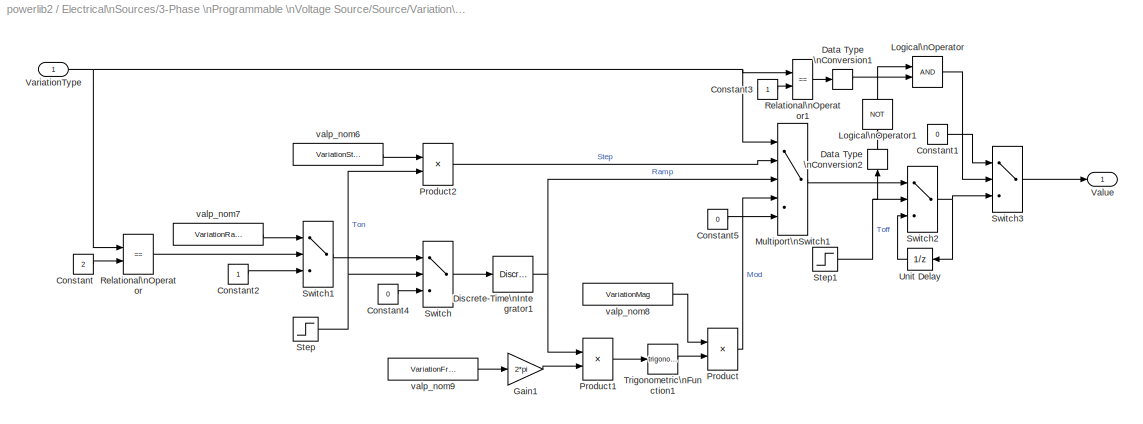
BLOCK [SubSystem] Electrical\nSources/3-Phase \nProgrammable \nVoltage Source/Source/Variation\nSubSystem
  MaskCallbackString = ||||||
  MaskEnableString = on,on,on,on,on,on,on
  MaskIconFrame = on
  MaskIconOpaque = on
  MaskIconRotate = none
  MaskIconUnits = autoscale
  MaskPromptString = VariationStep|VariationRate|VariationFreq|VariationMag|Ton_Variation|Toff_Variation|Sample time:
  MaskStyleString = edit,edit,edit,edit,edit,edit,edit
  MaskTabNameString = ,,,,,,
  MaskToolTipString = on,on,on,on,on,on,on
  MaskTunableValueString = on,on,on,on,on,on,on
  MaskType = Variation Subsystem
  MaskValueString = VariationStep|VariationRate|VariationFreq|VariationMag|Ton_Variation|Toff_Variation|Ts
  MaskVarAliasString = ,,,,,,
  MaskVariables = VariationStep=@1;VariationRate=@2;VariationFreq=@3;VariationMag=@4;Ton_Variation=@5;Toff_Variation=@6;Ts=@7;
  MaskVisibilityString = on,on,on,on,on,on,on
  MinAlgLoopOccurrences = off
  Ports = [1, 1]
  RTWSystemCode = Auto
  TreatAsAtomicUnit = off
BLOCK [Constant] Electrical\nSources/3-Phase \nProgrammable \nVoltage Source/Source/Variation\nSubSystem/Constant
  Value = 2
BLOCK [Constant] Electrical\nSources/3-Phase \nProgrammable \nVoltage Source/Source/Variation\nSubSystem/Constant1
  Value = 0
BLOCK [Constant] Electrical\nSources/3-Phase \nProgrammable \nVoltage Source/Source/Variation\nSubSystem/Constant2
BLOCK [Constant] Electrical\nSources/3-Phase \nProgrammable \nVoltage Source/Source/Variation\nSubSystem/Constant3
BLOCK [Constant] Electrical\nSources/3-Phase \nProgrammable \nVoltage Source/Source/Variation\nSubSystem/Constant4
  Value = 0
BLOCK [Constant] Electrical\nSources/3-Phase \nProgrammable \nVoltage Source/Source/Variation\nSubSystem/Constant5
  Value = 0
BLOCK [DataTypeConversion] Electrical\nSources/3-Phase \nProgrammable \nVoltage Source/Source/Variation\nSubSystem/Data Type \nConversion1
  OutDataTypeMode = boolean
BLOCK [DataTypeConversion] Electrical\nSources/3-Phase \nProgrammable \nVoltage Source/Source/Variation\nSubSystem/Data Type \nConversion2
  OutDataTypeMode = boolean
BLOCK [DiscreteIntegrator] Electrical\nSources/3-Phase \nProgrammable \nVoltage Source/Source/Variation\nSubSystem/Discrete-Time\nIntegrator1
  ExternalReset = none
  ICPrevOutput = DiscIntNeverNeededParam
  ICPrevScaledInput = DiscIntNeverNeededParam
  InitialConditionSource = internal
  IntegratorMethod = Integration: Forward Euler
  Ports = [1, 1]
  SampleTime = Ts
BLOCK [Gain] Electrical\nSources/3-Phase \nProgrammable \nVoltage Source/Source/Variation\nSubSystem/Gain1
  Gain = 2*pi
BLOCK [Logic] Electrical\nSources/3-Phase \nProgrammable \nVoltage Source/Source/Variation\nSubSystem/Logical\nOperator
  Ports = [2, 1]
BLOCK [Logic] Electrical\nSources/3-Phase \nProgrammable \nVoltage Source/Source/Variation\nSubSystem/Logical\nOperator1
  Operator = NOT
  Ports = [1, 1]
BLOCK [MultiPortSwitch] Electrical\nSources/3-Phase \nProgrammable \nVoltage Source/Source/Variation\nSubSystem/Multiport\nSwitch1
  Ports = [5, 1]
  SaturateOnIntegerOverflow = off
BLOCK [Product] Electrical\nSources/3-Phase \nProgrammable \nVoltage Source/Source/Variation\nSubSystem/Product
  Ports = [2, 1]
  RndMeth = Floor
BLOCK [Product] Electrical\nSources/3-Phase \nProgrammable \nVoltage Source/Source/Variation\nSubSystem/Product1
  Ports = [2, 1]
  RndMeth = Floor
BLOCK [Product] Electrical\nSources/3-Phase \nProgrammable \nVoltage Source/Source/Variation\nSubSystem/Product2
  Ports = [2, 1]
  RndMeth = Floor
BLOCK [RelationalOperator] Electrical\nSources/3-Phase \nProgrammable \nVoltage Source/Source/Variation\nSubSystem/Relational\nOperator
  Operator = ==
BLOCK [RelationalOperator] Electrical\nSources/3-Phase \nProgrammable \nVoltage Source/Source/Variation\nSubSystem/Relational\nOperator1
  Operator = ==
BLOCK [Step] Electrical\nSources/3-Phase \nProgrammable \nVoltage Source/Source/Variation\nSubSystem/Step
  SampleTime = Ts
  Time = Ton_Variation
BLOCK [Step] Electrical\nSources/3-Phase \nProgrammable \nVoltage Source/Source/Variation\nSubSystem/Step1
  After = 0
  Before = 1
  SampleTime = Ts
  Time = Toff_Variation
BLOCK [Switch] Electrical\nSources/3-Phase \nProgrammable \nVoltage Source/Source/Variation\nSubSystem/Switch
  SaturateOnIntegerOverflow = off
  Threshold = 0.5
BLOCK [Switch] Electrical\nSources/3-Phase \nProgrammable \nVoltage Source/Source/Variation\nSubSystem/Switch1
  SaturateOnIntegerOverflow = off
  Threshold = 0.5
BLOCK [Switch] Electrical\nSources/3-Phase \nProgrammable \nVoltage Source/Source/Variation\nSubSystem/Switch2
  SaturateOnIntegerOverflow = off
  Threshold = 0.5
BLOCK [Switch] Electrical\nSources/3-Phase \nProgrammable \nVoltage Source/Source/Variation\nSubSystem/Switch3
  SaturateOnIntegerOverflow = off
  Threshold = 0.5
BLOCK [Trigonometry] Electrical\nSources/3-Phase \nProgrammable \nVoltage Source/Source/Variation\nSubSystem/Trigonometric\nFunction1
  Ports = [1, 1]
BLOCK [UnitDelay] Electrical\nSources/3-Phase \nProgrammable \nVoltage Source/Source/Variation\nSubSystem/Unit Delay
  SampleTime = Ts
BLOCK [Outport] Electrical\nSources/3-Phase \nProgrammable \nVoltage Source/Source/Variation\nSubSystem/Value
  BusOutputAsStruct = off
  IconDisplay = Port number
BLOCK [Inport] Electrical\nSources/3-Phase \nProgrammable \nVoltage Source/Source/Variation\nSubSystem/VariationType
  IconDisplay = Port number
  LatchInput = off
  Port = 1
BLOCK [Constant] Electrical\nSources/3-Phase \nProgrammable \nVoltage Source/Source/Variation\nSubSystem/valp_nom6
  Value = VariationStep
BLOCK [Constant] Electrical\nSources/3-Phase \nProgrammable \nVoltage Source/Source/Variation\nSubSystem/valp_nom7
  Value = VariationRate
BLOCK [Constant] Electrical\nSources/3-Phase \nProgrammable \nVoltage Source/Source/Variation\nSubSystem/valp_nom8
  Value = VariationMag
BLOCK [Constant] Electrical\nSources/3-Phase \nProgrammable \nVoltage Source/Source/Variation\nSubSystem/valp_nom9
  Value = VariationFreq
BLOCK [Outport] Electrical\nSources/3-Phase \nProgrammable \nVoltage Source/Source/abc
  BusOutputAsStruct = off
  IconDisplay = Port number
  InitialOutput = 0
BLOCK [DigitalClock] Electrical\nSources/3-Phase \nProgrammable \nVoltage Source/Source/t
  SampleTime = Ts
BLOCK [Constant] Electrical\nSources/3-Phase \nProgrammable \nVoltage Source/Source/valp_nom
  Value = Phase_Vps
BLOCK [Constant] Electrical\nSources/3-Phase \nProgrammable \nVoltage Source/Source/valp_nom1
  Value = Freq_Vps
BLOCK [Constant] Electrical\nSources/3-Phase \nProgrammable \nVoltage Source/Source/valp_nom2
  Value = Mag_Vps
BLOCK [Constant] Electrical\nSources/3-Phase \nProgrammable \nVoltage Source/Source/valp_nom3
  Value = VariationEntity
BLOCK [Constant] Electrical\nSources/3-Phase \nProgrammable \nVoltage Source/Source/valp_nom5
  Value = VariationType
BLOCK [Constant] Electrical\nSources/3-Phase \nProgrammable \nVoltage Source/Source/valp_nom7
  Value = HarmonicGeneration
BLOCK [SubSystem] Electrical\nSources/AC Current Source
  CopyFcn = powericonV2('psblfblk',bdroot,'goto','Copy');
  Description = source block
  LoadFcn = powericonV2('psblfblk',bdroot,'goto','Load');
  MaskCallbackString = |||||
  MaskDescription = Ideal sinusoidal AC current source. The positive current direction is indicated by the arrow.
  MaskDisplay = plot(-50,-35,50,50-15,[0,9,18,24,29,30,29,24,18,9,0,-9,-18,-24,-29,-30,-29,-24,-18,-9,0],[30,29,24,18,9,0,-9,-18,-24,-29,-30,-29,-24,-18,-9,0,9,18,24,29,30],[-20 5 5 20 5 5],[2 2 12 2 -8 2],[-50 -30],[0 0],[50,30],[0 0],[45 35 40 40 40],[15 15 15 20 10]);
  MaskEnableString = on,on,on,on,on,on
  MaskHelp = web(psbhelp);
  MaskIconFrame = off
  MaskIconOpaque = on
  MaskIconRotate = port
  MaskIconUnits = autoscale
  MaskPromptString = Peak amplitude (A): |Phase (deg): |Frequency (Hz):|Sample time:|Measurements|Output type [1=PSB  0=simulink output]
  MaskSelfModifiable = on
  MaskStyleString = edit,edit,edit,edit,popup(None|Current),edit
  MaskTabNameString = ,,,,,
  MaskToolTipString = on,on,on,on,on,on
  MaskTunableValueString = on,on,on,on,off,on
  MaskType = AC Current Source
  MaskValueString = 10|0|60|0|None|1
  MaskVarAliasString = ,,,,,
  MaskVariables = A=@1;P=@2;F=@3;stime=@4;mesure=@5;PSBOutputType=@6;
  MaskVisibilityString = on,on,on,on,on,off
  MinAlgLoopOccurrences = off
  Ports = [1, 1]
  RTWSystemCode = Auto
  Tag = PoWeRsYsTeMbLoCk
  TreatAsAtomicUnit = off
BLOCK [Constant] Electrical\nSources/AC Current Source/Constant
  Value = complex(A*cos(P*pi/180),A*sin(P*pi/180))
BLOCK [Constant] Electrical\nSources/AC Current Source/Constant1
  Value = NaN
BLOCK [Goto] Electrical\nSources/AC Current Source/Goto
  DialogController = Simulink.DDGSource
  GotoTag = tp200416
  TagVisibility = global
BLOCK [Mux] Electrical\nSources/AC Current Source/Mux
  DisplayOption = bar
  Inputs = 2
  Ports = [2, 1]
BLOCK [Sin] Electrical\nSources/AC Current Source/Sine Wave
  Amplitude = A
  Frequency = 2*pi*F
  Phase = P*pi/180
  Ports = [0, 1]
  SampleTime = stime
  SineType = Time based
BLOCK [Terminator] Electrical\nSources/AC Current Source/Terminator
BLOCK [Inport] Electrical\nSources/AC Current Source/in_1
  IconDisplay = Port number
  LatchInput = off
  Port = 1
BLOCK [Outport] Electrical\nSources/AC Current Source/out_1
  BusOutputAsStruct = off
  IconDisplay = Port number
  InitialOutput = 0
BLOCK [SubSystem] Electrical\nSources/AC Voltage Source
  CopyFcn = powericonV2('psblfblk',bdroot,'goto','Copy');
  Description = source block
  LoadFcn = powericonV2('psblfblk',bdroot,'goto','Load');
  MaskCallbackString = |||||
  MaskDescription = Ideal sinusoidal AC Voltage source.
  MaskDisplay = plot(-50,-35,50,50-15,[0,9,18,24,29,30,29,24,18,9,0,-9,-18,-24,-29,-30,-29,-24,-18,-9,0],[30,29,24,18,9,0,-9,-18,-24,-29,-30,-29,-24,-18,-9,0,9,18,24,29,30],[-50 -30],[0 0],[50,30],[0 0],[45 35 40 40 40],[15 15 15 20 10],[0,9,18,24,29,30,29,24,18,9,0,-9,-18,-24,-29,-30,-29,-24,-18,-9,0]./-2.4,[1 2 3 4 5 6 7 8 9 10 11 12 13 14 15 16 17 18 19 20 21].*1.5-15);
  MaskEnableString = on,on,on,on,on,on
  MaskHelp = web(psbhelp);
  MaskIconFrame = off
  MaskIconOpaque = on
  MaskIconRotate = port
  MaskIconUnits = autoscale
  MaskInitialization = \n
  MaskPromptString = Peak amplitude (V): |Phase (deg):|Frequency (Hz):|Sample time:|Measurements|Output type [1=PSB  0=simulink output]
  MaskSelfModifiable = on
  MaskStyleString = edit,edit,edit,edit,popup(None|Voltage),edit
  MaskTabNameString = ,,,,,
  MaskToolTipString = on,on,on,on,on,on
  MaskTunableValueString = on,on,on,on,off,on
  MaskType = AC Voltage Source
  MaskValueString = 100|0|60|0|None|1
  MaskVarAliasString = ,,,,,
  MaskVariables = A=@1;P=@2;F=@3;stime=@4;mesure=@5;PSBOutputType=@6;
  MaskVisibilityString = on,on,on,on,on,off
  MinAlgLoopOccurrences = off
  Ports = [1, 1]
  RTWSystemCode = Auto
  Tag = PoWeRsYsTeMbLoCk
  TreatAsAtomicUnit = off
BLOCK [Constant] Electrical\nSources/AC Voltage Source/Constant
  Value = complex(A*cos(P*pi/180),A*sin(P*pi/180))
BLOCK [Constant] Electrical\nSources/AC Voltage Source/Constant1
  Value = NaN
BLOCK [Goto] Electrical\nSources/AC Voltage Source/Goto
  DialogController = Simulink.DDGSource
  GotoTag = tp200422
  TagVisibility = global
BLOCK [Mux] Electrical\nSources/AC Voltage Source/Mux
  DisplayOption = bar
  Inputs = 2
  Ports = [2, 1]
BLOCK [Sin] Electrical\nSources/AC Voltage Source/Sine Wave
  Amplitude = A
  Frequency = 2*pi*F
  Phase = P*pi/180
  Ports = [0, 1]
  SampleTime = stime
  SineType = Time based
BLOCK [Terminator] Electrical\nSources/AC Voltage Source/Terminator
BLOCK [Inport] Electrical\nSources/AC Voltage Source/in_1
  IconDisplay = Port number
  LatchInput = off
  Port = 1
BLOCK [Outport] Electrical\nSources/AC Voltage Source/out_1
  BusOutputAsStruct = off
  IconDisplay = Port number
  InitialOutput = 0
BLOCK [SubSystem] Electrical\nSources/Controlled Current Source
  CopyFcn = powericonV2('psblfblk',bdroot,'goto','Copy');
  Description = source block
  LoadFcn = powericonV2('psblfblk',bdroot,'goto','Load');
  MaskCallbackString = powericonV2('psbcbtransfo',gcb,'CCS:initialize');|powericonV2('psbcbtransfo',gcb,'CCS:source type');|||||
  MaskDescription = Converts the Simulink input signal into an equivalent current source. The generated current is driven by the input signal of the block.\n\nYou can initialize your circuit with a specific AC or DC current. If you want to start the simulation in steady-state, the block input must be connected to a signal starting as a sinusoidal or DC waveform corresponding to the initial values.
  MaskDisplay = plot(0,0,100,100)\nplot([50 50 40  50 60 50]+35,[ 30,70,70,80,70,70]); \n\n
  MaskEnableString = on,on,on,on,on,on,on
  MaskHelp = web(psbhelp);
  MaskIconFrame = on
  MaskIconOpaque = off
  MaskIconRotate = port
  MaskIconUnits = autoscale
  MaskInitialization = powericonV2('psbcbtransfo',gcb,'CCS:initialize');\n\n
  MaskPromptString = Initialize|Source type|Initial amplitude (A):|Initial phase (deg):|Initial frequency (Hz):|Measurements|Output type [1=PSB  0=simulink output]
  MaskSelfModifiable = on
  MaskStyleString = checkbox,popup(AC|DC),edit,edit,edit,popup(None|Current),edit
  MaskTabNameString = ,,,,,,
  MaskToolTipString = on,on,on,on,on,on,on
  MaskTunableValueString = on,on,on,on,on,off,on
  MaskType = Controlled Current Source
  MaskValueString = on|AC|0|0|0|None|11
  MaskVarAliasString = ,,,,,,
  MaskVariables = initsrc=&1;srctyp=@2;ia=@3;iph=@4;freq=@5;mesure=@6;PSBOutputType=@7;
  MaskVisibilityString = on,on,on,on,on,on,off
  MinAlgLoopOccurrences = off
  Ports = [1, 2]
  RTWSystemCode = Auto
  Tag = PoWeRsYsTeMbLoCk
  TreatAsAtomicUnit = off
BLOCK [Outport] Electrical\nSources/Controlled Current Source/ 
  BusOutputAsStruct = off
  IconDisplay = Port number
  InitialOutput = 0
BLOCK [Outport] Electrical\nSources/Controlled Current Source/  
  BusOutputAsStruct = off
  IconDisplay = Port number
  InitialOutput = 0
  Port = 2
BLOCK [Constant] Electrical\nSources/Controlled Current Source/Constant2
  Value = NaN
BLOCK [Constant] Electrical\nSources/Controlled Current Source/Constant3
  Value = NaN
BLOCK [Goto] Electrical\nSources/Controlled Current Source/Goto
  DialogController = Simulink.DDGSource
  GotoTag = tp200426
  TagVisibility = global
BLOCK [Mux] Electrical\nSources/Controlled Current Source/Mux
  DisplayOption = bar
  Inputs = 2
  Ports = [2, 1]
BLOCK [Inport] Electrical\nSources/Controlled Current Source/signal
  IconDisplay = Port number
  LatchInput = off
  Port = 1
BLOCK [SubSystem] Electrical\nSources/Controlled Voltage Source
  CopyFcn = powericonV2('psblfblk',bdroot,'goto','Copy');
  Description = source block
  LoadFcn = powericonV2('psblfblk',bdroot,'goto','Load');
  MaskCallbackString = powericonV2('psbcbtransfo',gcb,'CCS:initialize');|powericonV2('psbcbtransfo',gcb,'CCS:source type');|||||
  MaskDescription = Converts the Simulink input signal into an equivalent voltage source. The generated voltage is driven by the input signal of the block. \n\nYou can initialize your circuit with a specific AC or DC voltage. If you want to start the simulation in steady-state, the block input must be connected to a signal starting as a sinusoidal or DC waveform corresponding to the initial values.
  MaskEnableString = on,on,on,on,on,on,on
  MaskHelp = web(psbhelp);
  MaskIconFrame = on
  MaskIconOpaque = off
  MaskIconRotate = none
  MaskIconUnits = autoscale
  MaskInitialization = powericonV2('psbcbtransfo',gcb,'CCS:initialize');\n\n
  MaskPromptString = Initialize|Source type|Initial amplitude (V):|Initial phase (deg):|Initial frequency (Hz):|Measurements|Output type [1=PSB  0=simulink output]
  MaskSelfModifiable = on
  MaskStyleString = checkbox,popup(AC|DC),edit,edit,edit,popup(None|Voltage),edit
  MaskTabNameString = ,,,,,,
  MaskToolTipString = on,on,on,on,on,on,on
  MaskTunableValueString = on,on,on,on,on,off,on
  MaskType = Controlled Voltage Source
  MaskValueString = on|AC|0|0|0|None|11
  MaskVarAliasString = ,,,,,,
  MaskVariables = initsrc=&1;srctyp=@2;iv=@3;iph=@4;ifreq=@5;mesure=@6;PSBOutputType=@7;
  MaskVisibilityString = on,on,on,on,on,on,off
  MinAlgLoopOccurrences = off
  Ports = [1, 2]
  RTWSystemCode = Auto
  Tag = PoWeRsYsTeMbLoCk
  TreatAsAtomicUnit = off
BLOCK [Outport] Electrical\nSources/Controlled Voltage Source/+
  BusOutputAsStruct = off
  IconDisplay = Port number
  InitialOutput = 0
BLOCK [Outport] Electrical\nSources/Controlled Voltage Source/-
  BusOutputAsStruct = off
  IconDisplay = Port number
  InitialOutput = 0
  Port = 2
BLOCK [Constant] Electrical\nSources/Controlled Voltage Source/Constant1
  Value = NaN
BLOCK [Constant] Electrical\nSources/Controlled Voltage Source/Constant2
  Value = NaN
BLOCK [Goto] Electrical\nSources/Controlled Voltage Source/Goto
  DialogController = Simulink.DDGSource
  GotoTag = tp200433
  TagVisibility = global
BLOCK [Mux] Electrical\nSources/Controlled Voltage Source/Mux
  DisplayOption = bar
  Inputs = 2
  Ports = [2, 1]
BLOCK [Inport] Electrical\nSources/Controlled Voltage Source/signal
  IconDisplay = Port number
  LatchInput = off
  Port = 1
BLOCK [SubSystem] Electrical\nSources/DC Voltage Source
  CopyFcn = powericonV2('psblfblk',bdroot,'goto','Copy');
  Description = source block
  LoadFcn = powericonV2('psblfblk',bdroot,'goto','Load');
  MaskCallbackString = ||
  MaskDescription = Ideal DC voltage source.
  MaskDisplay = plot(-10,-5,10,5,[10 1.25 1.25 1.25],[0 0 5 -5],[-10 -1.25 -1.25 -1.25],[0 0 -2 2],[6 4 5 5 5],[3 3 3 4 2])
  MaskEnableString = on,on,on
  MaskHelp = web(psbhelp);
  MaskIconFrame = off
  MaskIconOpaque = on
  MaskIconRotate = port
  MaskIconUnits = autoscale
  MaskInitialization = \n\n
  MaskPromptString = Amplitude (V):|Measurements|Output type [1=PSB  0=simulink output]
  MaskSelfModifiable = on
  MaskStyleString = edit,popup(None|Voltage),edit
  MaskTabNameString = ,,
  MaskToolTipString = on,on,on
  MaskTunableValueString = on,off,on
  MaskType = DC Voltage Source
  MaskValueString = 100|None|1
  MaskVarAliasString = ,,
  MaskVariables = V=@1;mesure=@2;PSBOutputType=@3;
  MaskVisibilityString = on,on,off
  MinAlgLoopOccurrences = off
  Ports = [1, 1]
  RTWSystemCode = Auto
  Tag = PoWeRsYsTeMbLoCk
  TreatAsAtomicUnit = off
BLOCK [Constant] Electrical\nSources/DC Voltage Source/Constant
  Value = complex(V,0)
BLOCK [Constant] Electrical\nSources/DC Voltage Source/Constant1
  Value = NaN
BLOCK [Constant] Electrical\nSources/DC Voltage Source/Constant2
  Value = V
BLOCK [Goto] Electrical\nSources/DC Voltage Source/Goto
  DialogController = Simulink.DDGSource
  GotoTag = tp200438
  TagVisibility = global
BLOCK [Mux] Electrical\nSources/DC Voltage Source/Mux
  DisplayOption = bar
  Inputs = 2
  Ports = [2, 1]
BLOCK [Terminator] Electrical\nSources/DC Voltage Source/Terminator
BLOCK [Inport] Electrical\nSources/DC Voltage Source/in_1
  IconDisplay = Port number
  LatchInput = off
  Port = 1
BLOCK [Outport] Electrical\nSources/DC Voltage Source/out_1
  BusOutputAsStruct = off
  IconDisplay = Port number
  InitialOutput = 0
BLOCK [SubSystem] Elements
  InitFcn = powericonV2('psblfblk',bdroot,'goto','Load');
  MaskDisplay = plot(0,0,100,100,[90,64,77,77,60,56,51,46,40,34,30,25,13],[57,57,57,80,80,65,94,65,94,65,94,80,80],[90,87,82,77,74,68,64],[43,46,48,48,48,46,43],[48,77,77],[20,20,48],[39,27,13],[36,20,20])
  MaskIconFrame = on
  MaskIconOpaque = on
  MaskIconRotate = none
  MaskIconUnits = autoscale
  MaskSelfModifiable = on
  MinAlgLoopOccurrences = off
  Ports = []
  RTWSystemCode = Auto
  TreatAsAtomicUnit = off
BLOCK [SubSystem] Elements/3-Phase Breaker
  MaskCallbackString = ||||||powericonV2('psbcbtransfo',gcb,'Three-phase Breaker')||||
  MaskDescription = Connect this block in series with the three-phase element you want to switch. You can define the breaker timing directly from the dialog box or apply an external logical signal. If you check  the 'External control' box, the external control input will appear.
  MaskDisplay = plot(p0,0,p1,100,[15,15,25,25,15],[55,45,45,55,55],[75,75,85,85,75],[55,45,45,55,55],[25,75],[50,p3],s1,s2)
  MaskEnableString = on,on,on,on,on,on,on,on,on,on,on
  MaskHelp = web(psbhelp)
  MaskIconFrame = on
  MaskIconOpaque = off
  MaskIconRotate = port
  MaskIconUnits = autoscale
  MaskInitialization = [sta,stb,stc,etat,sw_times,switchings]=powericon('Three-Phase Breaker',init_states,sa,sb,sc,Ron,sw_times,comext);\nif strcmp(init_states,'open')\n    p3=75;\nelse\n    p3=50;\nend\np0=-10;\np1=110;\n\nif Rp==inf | Cp==0 | (Rp==inf & Cp==0)\n    s1 = 0;\n    s2=0;\nelse\n    s1=[20,20,40,40,60,60,80,80,80,60,60,40,40];\n    s2=[45,30,30,35,35,30,30,45,30,30,25,25,30];\nend\npowericonV2('psbcbtransf...<+30ch>
  MaskPromptString = Initial status of breakers|Switching of phase A|Switching of Phase B|Switching of phase C|Transition times (s) |Sample time of the internal timer Ts(s):|External control of switching times|Breakers resistance Ron (ohms)|Snubbers resistance Rp (Ohms)|Snubbers capacitance Cp (Farad)|Measurements
  MaskSelfModifiable = on
  MaskStyleString = popup(open|closed),checkbox,checkbox,checkbox,edit,edit,checkbox,edit,edit,edit,popup(None|Breaker voltages|Breaker currents|Breaker voltages and currents)
  MaskTabNameString = ,,,,,,,,,,
  MaskToolTipString = on,on,on,on,on,on,on,on,on,on,on
  MaskTunableValueString = on,on,on,on,on,on,on,on,on,on,on
  MaskType = Three-Phase Breaker
  MaskValueString = open|on|on|on|[4/60  10/60]|0|off|0.001|1e6|inf|None
  MaskVarAliasString = ,,,,,,,,,,
  MaskVariables = init_states=&1;sa=&2;sb=&3;sc=&4;sw_times=@5;Ts=@6;comext=@7;Ron=@8;Rp=@9;Cp=@10;mesure=@11;
  MaskVisibilityString = on,on,on,on,on,on,on,on,on,on,on
  MinAlgLoopOccurrences = off
  Ports = [3, 3]
  RTWSystemCode = Auto
  TreatAsAtomicUnit = off
BLOCK [Inport] Elements/3-Phase Breaker/A
  IconDisplay = Port number
  LatchInput = off
  Port = 1
BLOCK [Outport] Elements/3-Phase Breaker/A 
  BusOutputAsStruct = off
  IconDisplay = Port number
BLOCK [Inport] Elements/3-Phase Breaker/B
  IconDisplay = Port number
  LatchInput = off
  Port = 2
BLOCK [Outport] Elements/3-Phase Breaker/B 
  BusOutputAsStruct = off
  IconDisplay = Port number
  Port = 2
BLOCK [Reference] Elements/3-Phase Breaker/Breaker A  REF=powerlib2/Elements/Breaker
  PSBOutputType = 1
  Ports = [2, 1]
  SourceBlock = powerlib2/Elements/Breaker
  SourceType = Breaker
  Tag = PoWeRsYsTeMbLoCk
  Ts = 0
  a = Ron
  c = etat
  comext = on
  cs = Cp
  mesure = None
  rs = Rp
  times = [ 4/60  5/60 ]
BLOCK [Reference] Elements/3-Phase Breaker/Breaker B  REF=powerlib2/Elements/Breaker
  PSBOutputType = 1
  Ports = [2, 1]
  SourceBlock = powerlib2/Elements/Breaker
  SourceType = Breaker
  Tag = PoWeRsYsTeMbLoCk
  Ts = 0
  a = Ron
  c = etat
  comext = on
  cs = Cp
  mesure = None
  rs = Rp
  times = [ 4/60  5/60 ]
BLOCK [Reference] Elements/3-Phase Breaker/Breaker C  REF=powerlib2/Elements/Breaker
  PSBOutputType = 1
  Ports = [2, 1]
  SourceBlock = powerlib2/Elements/Breaker
  SourceType = Breaker
  Tag = PoWeRsYsTeMbLoCk
  Ts = 0
  a = Ron
  c = etat
  comext = on
  cs = Cp
  mesure = None
  rs = Rp
  times = [ 4/60  5/60 ]
BLOCK [Inport] Elements/3-Phase Breaker/C
  IconDisplay = Port number
  LatchInput = off
  Port = 3
BLOCK [Outport] Elements/3-Phase Breaker/C 
  BusOutputAsStruct = off
  IconDisplay = Port number
  Port = 3
BLOCK [Constant] Elements/3-Phase Breaker/C4
  Value = comext
BLOCK [Constant] Elements/3-Phase Breaker/Constant1
  Value = sta
BLOCK [Constant] Elements/3-Phase Breaker/Constant2
  Value = stb
BLOCK [Constant] Elements/3-Phase Breaker/Constant3
  Value = stc
BLOCK [Constant] Elements/3-Phase Breaker/Constant5
  Value = etat
BLOCK [Switch] Elements/3-Phase Breaker/Switch
  SaturateOnIntegerOverflow = off
  Threshold = 0.5
BLOCK [Switch] Elements/3-Phase Breaker/Switch1
  SaturateOnIntegerOverflow = off
  Threshold = 0.5
BLOCK [Switch] Elements/3-Phase Breaker/Switch2
  SaturateOnIntegerOverflow = off
  Threshold = 0.5
BLOCK [Switch] Elements/3-Phase Breaker/Switch3
  SaturateOnIntegerOverflow = off
  Threshold = 0.5
BLOCK [Reference] Elements/3-Phase Breaker/Timer  REF=powerlib_extras/Control \nBlocks/Timer
  Ports = [0, 1]
  SourceBlock = powerlib_extras/Control \nBlocks/Timer
  SourceType = Timer
  e = switchings
  t = sw_times
BLOCK [Constant] Elements/3-Phase Breaker/com
BLOCK [SubSystem] Elements/3-Phase Fault
  MaskCallbackString = ||||powericonV2('psbcbtransfo',gcb,'Three-phase Fault')||powericonV2('psbcbtransfo',gcb,'Three-phase Fault')|||||||
  MaskDescription = Use this block to program a fault (short-circuit) between any phase and the ground. You can define the fault timing directly from the dialog box or apply an external logical signal. If you check the 'External control' box , the external control input will appear.
  MaskDisplay = disp([desc0,'\\n',desc1,desc2,desc3])
  MaskEnableString = on,on,on,on,on,on,on,on,on,on,on,on,on,on
  MaskHelp = web(psbhelp)\n
  MaskIconFrame = on
  MaskIconOpaque = off
  MaskIconRotate = none
  MaskIconUnits = autoscale
  MaskInitialization = [st_a,st_b,st_c,Rground,init_a,init_b,init_c,p7,p8,p9,p10,p11]=powericonV2('Three-Phase Fault',Rdef,Rt,sw_times,sw_status,sa,sb,sc,st,init_statext,comext);\ndesc0=setstr(p7);\ndesc1=setstr(p8);\ndesc2=setstr(p9);\ndesc3=setstr(p10);\ndesc4=setstr(p11);\npowericonV2('psbcbtransfo',gcb,'Three-phase Fault');
  MaskPromptString = Phase A Fault|Phase B Fault|Phase C Fault|Fault resistances  Ron (ohms) :|Ground Fault|Ground resistance Rg (ohms) :|External control of fault timing :|Transition status [1,0,1 ...):|Transition times (s):|Sample time of the internal timer Ts(s):|Initial status of fault [Phase A  Phase B  Phase C]:|Snubbers resistance Rp (ohms) :|Snubbers Capacitance Cp (Farad)|Measurements
  MaskSelfModifiable = on
  MaskStyleString = checkbox,checkbox,checkbox,edit,checkbox,edit,checkbox,edit,edit,edit,edit,edit,edit,popup(None|Fault voltages|Fault currents|Fault voltages and currents)
  MaskTabNameString = ,,,,,,,,,,,,,
  MaskToolTipString = on,on,on,on,on,on,on,on,on,on,on,on,on,on
  MaskTunableValueString = on,on,on,on,on,on,on,on,on,on,on,on,on,on
  MaskType = Three-Phase Fault
  MaskValueString = on|on|on|0.001|on|0.001|off|[1 0]|[ 1/60 5/60]|0|[0 0 1]|1e6|inf|None
  MaskVarAliasString = ,,,,,,,,,,,,,
  MaskVariables = sa=&1;sb=&2;sc=&3;Rdef=@4;st=&5;Rt=@6;comext=@7;sw_status=@8;sw_times=@9;Ts=@10;init_statext=@11;Rp=@12;Cp=@13;mesure=@14;
  MaskVisibilityString = on,on,on,on,on,on,on,on,on,on,off,on,on,on
  MinAlgLoopOccurrences = off
  Ports = [3]
  RTWSystemCode = Auto
  TreatAsAtomicUnit = off
BLOCK [Inport] Elements/3-Phase Fault/A
  IconDisplay = Port number
  LatchInput = off
  Port = 1
BLOCK [Inport] Elements/3-Phase Fault/B
  IconDisplay = Port number
  LatchInput = off
  Port = 2
BLOCK [Reference] Elements/3-Phase Fault/Bus Bar 2  REF=powerlib2/Connectors/Bus Bar (vert)
  PSBOutputType = 11111111111111111111111111111111111111111111111111111111111111111111111111111111111111111
  Ports = [3, 1]
  SourceBlock = powerlib2/Connectors/Bus Bar (vert)
  SourceType = Bus Bar
  Tag = PoWeRsYsTeMbLoCk
  entrees = 3
  sorties = 1
BLOCK [Inport] Elements/3-Phase Fault/C
  IconDisplay = Port number
  LatchInput = off
  Port = 3
BLOCK [Constant] Elements/3-Phase Fault/C4
  Value = comext
BLOCK [Constant] Elements/3-Phase Fault/Constant1
  Value = st_a
BLOCK [Constant] Elements/3-Phase Fault/Constant2
  Value = st_b
BLOCK [Constant] Elements/3-Phase Fault/Constant3
  Value = st_c
BLOCK [DataTypeConversion] Elements/3-Phase Fault/Data Type \nConversion
  OutDataTypeMode = boolean
BLOCK [DataTypeConversion] Elements/3-Phase Fault/Data Type \nConversion1
  OutDataTypeMode = boolean
BLOCK [DataTypeConversion] Elements/3-Phase Fault/Data Type \nConversion2
  OutDataTypeMode = boolean
BLOCK [DataTypeConversion] Elements/3-Phase Fault/Data Type \nConversion3
  OutDataTypeMode = boolean
BLOCK [DataTypeConversion] Elements/3-Phase Fault/Data Type \nConversion4
  OutDataTypeMode = double
BLOCK [DataTypeConversion] Elements/3-Phase Fault/Data Type \nConversion5
  OutDataTypeMode = double
BLOCK [DataTypeConversion] Elements/3-Phase Fault/Data Type \nConversion6
  OutDataTypeMode = double
BLOCK [Reference] Elements/3-Phase Fault/Fault A  REF=powerlib2/Elements/Breaker
  PSBOutputType = 1
  Ports = [2, 1]
  SourceBlock = powerlib2/Elements/Breaker
  SourceType = Breaker
  Tag = PoWeRsYsTeMbLoCk
  Ts = 0
  a = Rdef
  c = init_a
  comext = on
  cs = Cp
  mesure = None
  rs = Rp
  times = [ 4/60  5/60 ]
BLOCK [Reference] Elements/3-Phase Fault/Fault B  REF=powerlib2/Elements/Breaker
  PSBOutputType = 1
  Ports = [2, 1]
  SourceBlock = powerlib2/Elements/Breaker
  SourceType = Breaker
  Tag = PoWeRsYsTeMbLoCk
  Ts = 0
  a = Rdef
  c = init_b
  comext = on
  cs = Cp
  mesure = None
  rs = Rp
  times = [ 4/60  5/60 ]
BLOCK [Reference] Elements/3-Phase Fault/Fault C  REF=powerlib2/Elements/Breaker
  PSBOutputType = 1
  Ports = [2, 1]
  SourceBlock = powerlib2/Elements/Breaker
  SourceType = Breaker
  Tag = PoWeRsYsTeMbLoCk
  Ts = 0
  a = Rdef
  c = init_c
  comext = on
  cs = Cp
  mesure = None
  rs = Rp
  times = [ 4/60  5/60 ]
BLOCK [Reference] Elements/3-Phase Fault/Ground  REF=powerlib2/Connectors/Ground (input)
  Ports = [1]
  SourceBlock = powerlib2/Connectors/Ground (input)
  SourceType = Ground
  Tag = PoWeRsYsTeMbLoCk
BLOCK [Logic] Elements/3-Phase Fault/Logical\nOperator1
  Ports = [2, 1]
BLOCK [Logic] Elements/3-Phase Fault/Logical\nOperator2
  Ports = [2, 1]
BLOCK [Logic] Elements/3-Phase Fault/Logical\nOperator3
  Ports = [2, 1]
BLOCK [Reference] Elements/3-Phase Fault/Rground  REF=powerlib2/Elements/Series RLC Branch
  PSBOutputType = 1
  Ports = [1, 1]
  SourceBlock = powerlib2/Elements/Series RLC Branch
  SourceType = Series RLC Branch
  Tag = PoWeRsYsTeMbLoCk
  a = Rground
  b = 0
  c = inf
  mesure = None
BLOCK [Switch] Elements/3-Phase Fault/Switch3
  SaturateOnIntegerOverflow = off
  Threshold = 0.5
BLOCK [Reference] Elements/3-Phase Fault/Timer  REF=powerlib_extras/Control \nBlocks/Timer
  Ports = [0, 1]
  SourceBlock = powerlib_extras/Control \nBlocks/Timer
  SourceType = Timer
  e = sw_status
  t = sw_times
BLOCK [Constant] Elements/3-Phase Fault/com
BLOCK [SubSystem] Elements/3-Phase PI Section
  MaskCallbackString = ||||
  MaskDescription = This block implements a three-phase PI section line to represent a three-phase transmision line. This block represents only  one PI section.  To implements more that one PI section,  you  simply need to connect  copies of this block in series.
  MaskDisplay = plot(0,0,100,100,[20,20,80,80,90,80,80,20,20,10],[50,40,40,50,50,50,61,61,50,50],[56,39],[55,55],[44,44],[44,55],[53,50,50],[44,48,55])
  MaskEnableString = on,on,on,on,on
  MaskHelp = Look under the mask of the Three-phase transmission line pi-section block to see how it is built.
  MaskIconFrame = on
  MaskIconOpaque = off
  MaskIconRotate = port
  MaskIconUnits = autoscale
  MaskInitialization = [Rs,Ls,Rm,Lm,Cp,Cn] = powericonV2('Three-phase transmission line pi-section',f,R10,L10,C10,long);\n
  MaskPromptString = Frequency used for R L C specification (Hz) :|Positive- and zero-sequence resistances  [R1 (Ohms/km)  R0 (Ohms/km) ] :|Positive- and zero-sequence inductances [ L1(H/km)  L0 (H/km)] :|Positive- and zero-sequence capacitances [ C1(F/km) C0(F/km)] :|Line section length (km) :
  MaskSelfModifiable = on
  MaskStyleString = edit,edit,edit,edit,edit
  MaskTabNameString = ,,,,
  MaskToolTipString = on,on,on,on,on
  MaskTunableValueString = off,off,off,off,off
  MaskType = Three-phase transmission line pi-section
  MaskValueString = 60|[ 0.01273 0.3864] |[ 0.9337e-3  4.1264e-3] |[12.74e-9 7.751e-9]|100
  MaskVarAliasString = ,,,,
  MaskVariables = f=@1;R10=@2;L10=@3;C10=@4;long=@5;
  MaskVisibilityString = on,on,on,on,on
  MinAlgLoopOccurrences = off
  Ports = [3, 3]
  RTWSystemCode = Auto
  TreatAsAtomicUnit = off
BLOCK [Inport] Elements/3-Phase PI Section/A
  IconDisplay = Port number
  LatchInput = off
  Port = 1
BLOCK [Outport] Elements/3-Phase PI Section/A 
  BusOutputAsStruct = off
  IconDisplay = Port number
  InitialOutput = 0
BLOCK [Inport] Elements/3-Phase PI Section/B
  IconDisplay = Port number
  LatchInput = off
  Port = 2
BLOCK [Outport] Elements/3-Phase PI Section/B 
  BusOutputAsStruct = off
  IconDisplay = Port number
  InitialOutput = 0
  Port = 2
BLOCK [Reference] Elements/3-Phase PI Section/Bus Bar1  REF=powerlib2/Connectors/Bus Bar (horiz)
  PSBOutputType = 1111111111111111111111111111111111111111111111111111111111111111111111111
  Ports = [3, 1]
  SourceBlock = powerlib2/Connectors/Bus Bar (horiz)
  SourceType = Bus Bar
  Tag = PoWeRsYsTeMbLoCk
  entrees = 3
  sorties = 1
BLOCK [Reference] Elements/3-Phase PI Section/Bus Bar2  REF=powerlib2/Connectors/Bus Bar (horiz)
  PSBOutputType = 1111111111111111111111111111111111111111111111111111111111111111111111111
  Ports = [3, 1]
  SourceBlock = powerlib2/Connectors/Bus Bar (horiz)
  SourceType = Bus Bar
  Tag = PoWeRsYsTeMbLoCk
  entrees = 3
  sorties = 1
BLOCK [Inport] Elements/3-Phase PI Section/C
  IconDisplay = Port number
  LatchInput = off
  Port = 3
BLOCK [Outport] Elements/3-Phase PI Section/C 
  BusOutputAsStruct = off
  IconDisplay = Port number
  InitialOutput = 0
  Port = 3
BLOCK [Reference] Elements/3-Phase PI Section/Ground2  REF=powerlib2/Connectors/Ground (input)
  Ports = [1]
  SourceBlock = powerlib2/Connectors/Ground (input)
  SourceType = Ground
  Tag = PoWeRsYsTeMbLoCk
BLOCK [Reference] Elements/3-Phase PI Section/Ground3  REF=powerlib2/Connectors/Ground (input)
  Ports = [1]
  SourceBlock = powerlib2/Connectors/Ground (input)
  SourceType = Ground
  Tag = PoWeRsYsTeMbLoCk
BLOCK [Reference] Elements/3-Phase PI Section/Mutual Inductance  REF=powerlib2/Elements/Mutual Inductance
  PSBOutputType = 111
  Ports = [3, 3]
  SourceBlock = powerlib2/Elements/Mutual Inductance
  SourceType = Mutual Inductance
  Tag = PoWeRsYsTeMbLoCk
  a = [Rs Ls]
  b = [Rs Ls]
  c = [Rs Ls]
  d = [Rm Lm]
  mesure = None
  w3check = on
BLOCK [Reference] Elements/3-Phase PI Section/Series RLC Branch10  REF=powerlib2/Elements/Series RLC Branch
  PSBOutputType = 1
  Ports = [1, 1]
  SourceBlock = powerlib2/Elements/Series RLC Branch
  SourceType = Series RLC Branch
  Tag = PoWeRsYsTeMbLoCk
  a = 0
  b = 0
  c = Cp
  mesure = None
BLOCK [Reference] Elements/3-Phase PI Section/Series RLC Branch11  REF=powerlib2/Elements/Series RLC Branch
  PSBOutputType = 1
  Ports = [1, 1]
  SourceBlock = powerlib2/Elements/Series RLC Branch
  SourceType = Series RLC Branch
  Tag = PoWeRsYsTeMbLoCk
  a = 0
  b = 0
  c = Cp
  mesure = None
BLOCK [Reference] Elements/3-Phase PI Section/Series RLC Branch12  REF=powerlib2/Elements/Series RLC Branch
  PSBOutputType = 1
  Ports = [1, 1]
  SourceBlock = powerlib2/Elements/Series RLC Branch
  SourceType = Series RLC Branch
  Tag = PoWeRsYsTeMbLoCk
  a = 0
  b = 0
  c = Cp
  mesure = None
BLOCK [Reference] Elements/3-Phase PI Section/Series RLC Branch13  REF=powerlib2/Elements/Series RLC Branch
  PSBOutputType = 1
  Ports = [1, 1]
  SourceBlock = powerlib2/Elements/Series RLC Branch
  SourceType = Series RLC Branch
  Tag = PoWeRsYsTeMbLoCk
  a = 0
  b = 0
  c = Cp
  mesure = None
BLOCK [Reference] Elements/3-Phase PI Section/Series RLC Branch14  REF=powerlib2/Elements/Series RLC Branch
  PSBOutputType = 1
  Ports = [1, 1]
  SourceBlock = powerlib2/Elements/Series RLC Branch
  SourceType = Series RLC Branch
  Tag = PoWeRsYsTeMbLoCk
  a = 0
  b = 0
  c = Cp
  mesure = None
BLOCK [Reference] Elements/3-Phase PI Section/Series RLC Branch15  REF=powerlib2/Elements/Series RLC Branch
  PSBOutputType = 1
  Ports = [1, 1]
  SourceBlock = powerlib2/Elements/Series RLC Branch
  SourceType = Series RLC Branch
  Tag = PoWeRsYsTeMbLoCk
  a = 0
  b = 0
  c = Cn
  mesure = None
BLOCK [Reference] Elements/3-Phase PI Section/Series RLC Branch16  REF=powerlib2/Elements/Series RLC Branch
  PSBOutputType = 1
  Ports = [1, 1]
  SourceBlock = powerlib2/Elements/Series RLC Branch
  SourceType = Series RLC Branch
  Tag = PoWeRsYsTeMbLoCk
  a = 0
  b = 0
  c = Cn
  mesure = None
BLOCK [Reference] Elements/3-Phase PI Section/Series RLC Branch8  REF=powerlib2/Elements/Series RLC Branch
  PSBOutputType = 1
  Ports = [1, 1]
  SourceBlock = powerlib2/Elements/Series RLC Branch
  SourceType = Series RLC Branch
  Tag = PoWeRsYsTeMbLoCk
  a = 0
  b = 0
  c = Cp
  mesure = None
BLOCK [SubSystem] Elements/3-Phase Transformer\n12-terminals
  MaskCallbackString = |||
  MaskDescription = This block implements three single-phase two-winding transformers . All winding terminals are accessible.
  MaskDisplay = plot(-130,-100,130,100,p1,p2,p3,p4,p13,p14,p15,p16,      p5,p6,p7,p8, p17,p18,p19,p20,     p9,p10,p11,p12,p21,p22,p23,p24  ) \n
  MaskEnableString = on,on,on,on
  MaskHelp = Look under the mask of the Three-phase Linear Transformer 12-terminals block to see how it is built.
  MaskIconFrame = on
  MaskIconOpaque = off
  MaskIconRotate = port
  MaskIconUnits = autoscale
  MaskInitialization = [p1,p2,p3,p4,p5,p6,p7,p8,p9,p10,p11,p12,p13,p14,p15,p16,p17,p18,p19,p20,p21,p22,p23,p24] = powericonV2('Three-phase Linear Transformer 12-terminals',pf,urx1,urx2);\npnom=pf(1)/3;\n fnom=pf(2);\nu1=urx1(1);\nr1=urx1(2);\n x1=urx1(3);\nu2=urx2(1);\nr2=urx2(2);\n x2=urx2(3);\n\n\n\n\n
  MaskPromptString = [Three-phase rated power(VA)  Frequency (Hz)]|Winding 1 : [phase voltage(Vrms)  R(pu)  X(pu)] :|Winding 2 : [phase voltage(Vrms)  R(pu)  X(pu)] :|Magnetizing branch : [Rm(pu)  Xm(pu)] :
  MaskSelfModifiable = on
  MaskStyleString = edit,edit,edit,edit
  MaskTabNameString = ,,,
  MaskToolTipString = on,on,on,on
  MaskTunableValueString = off,off,off,off
  MaskType = Three-phase Linear Transformer 12-terminals
  MaskValueString = [ 10e6 60 ]|[ 10e3 0.002  0.05 ]| [ 25e3 0.002 0.05]  | [ 200 200 ]
  MaskVarAliasString = ,,,
  MaskVariables = pf=@1;urx1=@2;urx2=@3;rxm=@4;
  MaskVisibilityString = on,on,on,on
  MinAlgLoopOccurrences = off
  Ports = [6, 6]
  RTWSystemCode = Auto
  TreatAsAtomicUnit = off
BLOCK [Inport] Elements/3-Phase Transformer\n12-terminals/A1
  IconDisplay = Port number
  LatchInput = off
  Port = 2
BLOCK [Inport] Elements/3-Phase Transformer\n12-terminals/A1+
  IconDisplay = Port number
  LatchInput = off
  Port = 1
BLOCK [Outport] Elements/3-Phase Transformer\n12-terminals/A2 
  BusOutputAsStruct = off
  IconDisplay = Port number
  InitialOutput = 0
  Port = 2
BLOCK [Outport] Elements/3-Phase Transformer\n12-terminals/A2+
  BusOutputAsStruct = off
  IconDisplay = Port number
  InitialOutput = 0
BLOCK [Inport] Elements/3-Phase Transformer\n12-terminals/B1
  IconDisplay = Port number
  LatchInput = off
  Port = 4
BLOCK [Inport] Elements/3-Phase Transformer\n12-terminals/B1+
  IconDisplay = Port number
  LatchInput = off
  Port = 3
BLOCK [Outport] Elements/3-Phase Transformer\n12-terminals/B2
  BusOutputAsStruct = off
  IconDisplay = Port number
  InitialOutput = 0
  Port = 4
BLOCK [Outport] Elements/3-Phase Transformer\n12-terminals/B2+
  BusOutputAsStruct = off
  IconDisplay = Port number
  InitialOutput = 0
  Port = 3
BLOCK [Inport] Elements/3-Phase Transformer\n12-terminals/C1
  IconDisplay = Port number
  LatchInput = off
  Port = 6
BLOCK [Inport] Elements/3-Phase Transformer\n12-terminals/C1+
  IconDisplay = Port number
  LatchInput = off
  Port = 5
BLOCK [Outport] Elements/3-Phase Transformer\n12-terminals/C2
  BusOutputAsStruct = off
  IconDisplay = Port number
  InitialOutput = 0
  Port = 6
BLOCK [Outport] Elements/3-Phase Transformer\n12-terminals/C2+
  BusOutputAsStruct = off
  IconDisplay = Port number
  InitialOutput = 0
  Port = 5
BLOCK [Reference] Elements/3-Phase Transformer\n12-terminals/T1  REF=powerlib2/Elements/Linear Transformer
  PSBOutputType = 1111
  Ports = [2, 2]
  SourceBlock = powerlib2/Elements/Linear Transformer
  SourceType = Linear Transformer
  Tag = PoWeRsYsTeMbLoCk
  a = [pnom fnom]
  b = [ u1 r1 x1]
  c = [u2 r2 x2]
  d = [u2 r2 x2]
  e = rxm
  mesure = None
  w3check = off
BLOCK [Reference] Elements/3-Phase Transformer\n12-terminals/T2  REF=powerlib2/Elements/Linear Transformer
  PSBOutputType = 1111
  Ports = [2, 2]
  SourceBlock = powerlib2/Elements/Linear Transformer
  SourceType = Linear Transformer
  Tag = PoWeRsYsTeMbLoCk
  a = [pnom fnom]
  b = [ u1 r1 x1]
  c = [u2 r2 x2]
  d = [u2 r2 x2]
  e = rxm
  mesure = None
  w3check = off
BLOCK [Reference] Elements/3-Phase Transformer\n12-terminals/T3  REF=powerlib2/Elements/Linear Transformer
  PSBOutputType = 1111
  Ports = [2, 2]
  SourceBlock = powerlib2/Elements/Linear Transformer
  SourceType = Linear Transformer
  Tag = PoWeRsYsTeMbLoCk
  a = [pnom fnom]
  b = [ u1 r1 x1]
  c = [u2 r2 x2]
  d = [u2 r2 x2]
  e = rxm
  mesure = None
  w3check = off
BLOCK [SubSystem] Elements/3-Phase\nDynamic Load
  CopyFcn = powericonV2('psblfblk',bdroot,'gotofrom','Copy');
  LoadFcn = powericonV2('psblfblk',bdroot,'gotofrom','Load');
  MaskCallbackString = |||powericonV2('psbcbtransfo',gcb,'3-Phase Dynamic Load',[]);||||
  MaskDescription = Implements a three-phase, three-wire dynamic load. Active  power P and reactive power Q absorbed by the load vary as function of positive-sequence voltage V according to following equations:\n\n  If V>Vmin, P and Q vary as follows:\n       P=Po*(V/Vo)^np*(1+Tp1.s)/(1+Tp2.s)\n       Q=Qo*(V/Vo)^nq*(1+Tq1.s)/(1+Tq2.s)\n  if V<Vmin\n     Same equations with np=nq=2 (constant impedance load) \n\nCheck...<+165ch>
  MaskDisplay = plot(-45,-45,45,45,[0,9,18,24,29,30,29,24,18,9,0,-9,-18,-24,-29,-30,-29,-24,-18,-9,0]*.9,[30,29,24,18,9,0,-9,-18,-24,-29,-30,-29,-24,-18,-9,0,9,18,24,29,30]*.9)\nplot([0,0,10,0,-10,0]*1.1,[15,-5,-5,-15,-5,-5]*1.1)\n
  MaskEnableString = on,on,on,on,on,on,on,on
  MaskHelp = web(psbhelp)
  MaskIconFrame = on
  MaskIconOpaque = off
  MaskIconRotate = none
  MaskIconUnits = autoscale
  MaskInitialization = powericonV2('psbcbtransfo',gcb,'3-Phase Dynamic Load')
  MaskPromptString = Nominal L-L voltage and frequency  [Vn(Vrms) fn(Hz)]:|Active & reactive power at initial voltage [Po(W) Qo(var)]:|Initial positive-sequence voltage Vo [Mag(pu) Phase (deg.)]:|External control of PQ|Parameters [ np  nq ]:|Time constants [Tp1 Tp2 Tq1 Tq2]  (s):|Minimum voltage Vmin (pu):|Load Flow parameters
  MaskSelfModifiable = on
  MaskStyleString = edit,edit,edit,checkbox,edit,edit,edit,edit
  MaskTabNameString = ,,,,,,,
  MaskToolTipString = on,on,on,on,on,on,on,on
  MaskTunableValueString = on,on,on,on,on,on,on,on
  MaskType = Three-Phase Dynamic Load
  MaskValueString = [ 500e3 60 ]|[50e6 25e6]| [0.994 -11.8]|off| [1.3 2]|[0  0  0  0]|0.7|[4,0,0,0,0]
  MaskVarAliasString = ,,,,,,,
  MaskVariables = Vfnom=@1;PQ_0=@2;V0=@3;PQext=@4;n=@5;Tpq=@6;Vmin=@7;LoadFlowParameters=@8;
  MaskVisibilityString = on,on,on,on,on,on,on,off
  MinAlgLoopOccurrences = off
  Ports = [3, 1]
  RTWSystemCode = Auto
  TreatAsAtomicUnit = off
BLOCK [Inport] Elements/3-Phase\nDynamic Load/A
  IconDisplay = Port number
  LatchInput = off
  Port = 1
BLOCK [Inport] Elements/3-Phase\nDynamic Load/B
  IconDisplay = Port number
  LatchInput = off
  Port = 2
BLOCK [Inport] Elements/3-Phase\nDynamic Load/C
  IconDisplay = Port number
  LatchInput = off
  Port = 3
BLOCK [From] Elements/3-Phase\nDynamic Load/From
  CloseFcn = tagdialog Close
  DialogController = Simulink.DDGSource
  GotoTag = tp200449
BLOCK [Goto] Elements/3-Phase\nDynamic Load/Goto
  DialogController = Simulink.DDGSource
  GotoTag = tp200444
  TagVisibility = global
BLOCK [Ground] Elements/3-Phase\nDynamic Load/PQ
BLOCK [Terminator] Elements/3-Phase\nDynamic Load/Terminator1
BLOCK [Terminator] Elements/3-Phase\nDynamic Load/Terminator2
BLOCK [Terminator] Elements/3-Phase\nDynamic Load/Terminator4
BLOCK [Outport] Elements/3-Phase\nDynamic Load/m
  BusOutputAsStruct = off
  IconDisplay = Port number
BLOCK [SubSystem] Elements/3-Phase\nMutual Inductance\nZ1-Z0
  MaskCallbackString = |
  MaskDescription = This block implements a three phase impedance with mutual coupling between phases.  Self impedances and mutual impedances are set by entering positive and zero sequences parameters.
  MaskDisplay = plot(s1,s2,s3,s4,lp1,lp2,ls1,ls2,lt1,lt2);\n
  MaskEnableString = on,on
  MaskIconFrame = on
  MaskIconOpaque = off
  MaskIconRotate = port
  MaskIconUnits = autoscale
  MaskInitialization = [s1,s2,s3,s4,lp1,lp2,ls1,ls2,lt1,lt2,Rs,Ls,Rm,Lm]=powericonV2('3-phase RL  positive & zero-sequence impedance',RL1,RL0);
  MaskPromptString = Positive-sequence parameters : [R1 (Ohms) L1 (H)]|Zero-sequence parameters :     [R0 (Ohms) L0 (H)]
  MaskSelfModifiable = on
  MaskStyleString = edit,edit
  MaskTabNameString = ,
  MaskToolTipString = on,on
  MaskTunableValueString = off,off
  MaskType = 3-phase RL  positive & zero-sequence impedance
  MaskValueString = [ 2  50e-3]|[4  100e-3]
  MaskVarAliasString = ,
  MaskVariables = RL1=@1;RL0=@2;
  MaskVisibilityString = on,on
  MinAlgLoopOccurrences = off
  Ports = [3, 3]
  RTWSystemCode = Auto
  TreatAsAtomicUnit = off
BLOCK [Outport] Elements/3-Phase\nMutual Inductance\nZ1-Z0/ A
  BusOutputAsStruct = off
  IconDisplay = Port number
  InitialOutput = 0
BLOCK [Outport] Elements/3-Phase\nMutual Inductance\nZ1-Z0/ B
  BusOutputAsStruct = off
  IconDisplay = Port number
  InitialOutput = 0
  Port = 2
BLOCK [Outport] Elements/3-Phase\nMutual Inductance\nZ1-Z0/ C
  BusOutputAsStruct = off
  IconDisplay = Port number
  InitialOutput = 0
  Port = 3
BLOCK [Inport] Elements/3-Phase\nMutual Inductance\nZ1-Z0/A
  IconDisplay = Port number
  LatchInput = off
  Port = 1
BLOCK [Inport] Elements/3-Phase\nMutual Inductance\nZ1-Z0/B
  IconDisplay = Port number
  LatchInput = off
  Port = 2
BLOCK [Inport] Elements/3-Phase\nMutual Inductance\nZ1-Z0/C
  IconDisplay = Port number
  LatchInput = off
  Port = 3
BLOCK [Reference] Elements/3-Phase\nMutual Inductance\nZ1-Z0/Mutual Inductance  REF=powerlib2/Elements/Mutual Inductance
  PSBOutputType = 111
  Ports = [3, 3]
  SourceBlock = powerlib2/Elements/Mutual Inductance
  SourceType = Mutual Inductance
  Tag = PoWeRsYsTeMbLoCk
  a = [Rs Ls]
  b = [Rs Ls]
  c = [Rs Ls]
  d = [Rm Lm]
  mesure = None
  w3check = on
BLOCK [SubSystem] Elements/3-Phase\nParallel RLC Branch
  MaskCallbackString = ||
  MaskDescription = This block implements a three-phase parallel RLC branch. It uses three parallel RLC branch blocks.
  MaskDisplay = plot(p0-20,p1,p2+20,p3,p4,p5,p6,p7,p8,p9,p10,p11,p12,p13,p14,p15)
  MaskEnableString = on,on,on
  MaskHelp = Look under the mask of the 3-phase parallel RLC element block to see how it is built
  MaskIconFrame = on
  MaskIconOpaque = off
  MaskIconRotate = port
  MaskIconUnits = autoscale
  MaskInitialization = [p0,p1,p2,p3,p4,p5,p6,p7,p8,p9,p10,p11,p12,p13,p14,p15] =powericonV2('3-phase parallel RLC element',R,L,C);\n\n\n\n
  MaskPromptString = Resistance R (Ohms):|Inductance L (H):|Capacitance C (F):
  MaskSelfModifiable = on
  MaskStyleString = edit,edit,edit
  MaskTabNameString = ,,
  MaskToolTipString = on,on,on
  MaskTunableValueString = off,off,off
  MaskType = 3-phase parallel RLC element
  MaskValueString = 1|1e-3|1e-6
  MaskVarAliasString = ,,
  MaskVariables = R=@1;L=@2;C=@3;
  MaskVisibilityString = on,on,on
  MinAlgLoopOccurrences = off
  Ports = [3, 3]
  RTWSystemCode = Auto
  TreatAsAtomicUnit = off
BLOCK [Outport] Elements/3-Phase\nParallel RLC Branch/ A
  BusOutputAsStruct = off
  IconDisplay = Port number
  InitialOutput = 0
BLOCK [Outport] Elements/3-Phase\nParallel RLC Branch/ B
  BusOutputAsStruct = off
  IconDisplay = Port number
  InitialOutput = 0
  Port = 2
BLOCK [Outport] Elements/3-Phase\nParallel RLC Branch/ C
  BusOutputAsStruct = off
  IconDisplay = Port number
  InitialOutput = 0
  Port = 3
BLOCK [Inport] Elements/3-Phase\nParallel RLC Branch/A
  IconDisplay = Port number
  LatchInput = off
  Port = 1
BLOCK [Inport] Elements/3-Phase\nParallel RLC Branch/B
  IconDisplay = Port number
  LatchInput = off
  Port = 2
BLOCK [Inport] Elements/3-Phase\nParallel RLC Branch/C
  IconDisplay = Port number
  LatchInput = off
  Port = 3
BLOCK [Reference] Elements/3-Phase\nParallel RLC Branch/Parallel RLC Branch 1  REF=powerlib2/Elements/Parallel RLC Branch
  PSBOutputType = 1
  Ports = [1, 1]
  SourceBlock = powerlib2/Elements/Parallel RLC Branch
  SourceType = Parallel RLC Branch
  Tag = PoWeRsYsTeMbLoCk
  a = R
  b = L
  c = C
  mesure = None
BLOCK [Reference] Elements/3-Phase\nParallel RLC Branch/Parallel RLC Branch 2  REF=powerlib2/Elements/Parallel RLC Branch
  PSBOutputType = 1
  Ports = [1, 1]
  SourceBlock = powerlib2/Elements/Parallel RLC Branch
  SourceType = Parallel RLC Branch
  Tag = PoWeRsYsTeMbLoCk
  a = R
  b = L
  c = C
  mesure = None
BLOCK [Reference] Elements/3-Phase\nParallel RLC Branch/Parallel RLC Branch 3  REF=powerlib2/Elements/Parallel RLC Branch
  PSBOutputType = 1
  Ports = [1, 1]
  SourceBlock = powerlib2/Elements/Parallel RLC Branch
  SourceType = Parallel RLC Branch
  Tag = PoWeRsYsTeMbLoCk
  a = R
  b = L
  c = C
  mesure = None
BLOCK [SubSystem] Elements/3-Phase\nParallel RLC Load
  MaskCallbackString = ||||
  MaskDescription = This block implements a three-phase parallel RLC load connected in Y configureation, with the neutral connected to the ground. Each phase consist of one parallel RLC load block connected between the phase input and the ground.
  MaskDisplay = plot(p0-30,p1,p2,p3,p4,p5,p6,p7,p8,p9,p10,p11,p12,p13,p14,p15,[200,200],[-35 35],[215 215],[-25 25],[230 230],[-15 15],[p16,200],[0,0])
  MaskEnableString = on,on,on,on,on
  MaskHelp = Look under the mask of the 3-phase parallel RLC load block to see how it is built.
  MaskIconFrame = on
  MaskIconOpaque = off
  MaskIconRotate = port
  MaskIconUnits = autoscale
  MaskInitialization = [p0,p1,p2,p3,p4,p5,p6,p7,p8,p9,p10,p11,p12,p13,p14,p15,p16] = powericonV2('3-phase parallel RLC load',P3,QL3,QC3);
  MaskPromptString = Nominal phase-phase voltage (Vrms):|Nominal frequency (Hz):|Three-phase active power P (W):|Three-phase inductive reactive power Ql (var)|Three-phase capacitive reactive power Qc (var) :
  MaskSelfModifiable = on
  MaskStyleString = edit,edit,edit,edit,edit
  MaskTabNameString = ,,,,
  MaskToolTipString = on,on,on,on,on
  MaskTunableValueString = off,off,off,off,off
  MaskType = 3-phase parallel RLC load
  MaskValueString = 500e3|60|50e6|25e6|200e6
  MaskVarAliasString = ,,,,
  MaskVariables = Vpp=@1;fn=@2;P3=@3;QL3=@4;QC3=@5;
  MaskVisibilityString = on,on,on,on,on
  MinAlgLoopOccurrences = off
  Ports = [3]
  RTWSystemCode = Auto
  TreatAsAtomicUnit = off
BLOCK [Inport] Elements/3-Phase\nParallel RLC Load/A
  IconDisplay = Port number
  LatchInput = off
  Port = 1
BLOCK [Inport] Elements/3-Phase\nParallel RLC Load/B
  IconDisplay = Port number
  LatchInput = off
  Port = 2
BLOCK [Inport] Elements/3-Phase\nParallel RLC Load/C
  IconDisplay = Port number
  LatchInput = off
  Port = 3
BLOCK [Reference] Elements/3-Phase\nParallel RLC Load/Ground (input)  REF=powerlib2/Connectors/Ground (input)
  Ports = [1]
  SourceBlock = powerlib2/Connectors/Ground (input)
  SourceType = Ground
  Tag = PoWeRsYsTeMbLoCk
BLOCK [Reference] Elements/3-Phase\nParallel RLC Load/Ground (input)1  REF=powerlib2/Connectors/Ground (input)
  Ports = [1]
  SourceBlock = powerlib2/Connectors/Ground (input)
  SourceType = Ground
  Tag = PoWeRsYsTeMbLoCk
BLOCK [Reference] Elements/3-Phase\nParallel RLC Load/Ground (input)2  REF=powerlib2/Connectors/Ground (input)
  Ports = [1]
  SourceBlock = powerlib2/Connectors/Ground (input)
  SourceType = Ground
  Tag = PoWeRsYsTeMbLoCk
BLOCK [Reference] Elements/3-Phase\nParallel RLC Load/Parallel RLC Load 1  REF=powerlib2/Elements/Parallel RLC Load
  PSBOutputType = 1
  Ports = [1, 1]
  SourceBlock = powerlib2/Elements/Parallel RLC Load
  SourceType = Parallel RLC Load
  Tag = PoWeRsYsTeMbLoCk
  a = Vpp/sqrt(3)
  b = fn
  c = P3/3
  d = QL3/3
  e = QC3/3
  mesure = None
BLOCK [Reference] Elements/3-Phase\nParallel RLC Load/Parallel RLC Load 2  REF=powerlib2/Elements/Parallel RLC Load
  PSBOutputType = 1
  Ports = [1, 1]
  SourceBlock = powerlib2/Elements/Parallel RLC Load
  SourceType = Parallel RLC Load
  Tag = PoWeRsYsTeMbLoCk
  a = Vpp/sqrt(3)
  b = fn
  c = P3/3
  d = QL3/3
  e = QC3/3
  mesure = None
BLOCK [Reference] Elements/3-Phase\nParallel RLC Load/Parallel RLC Load 3  REF=powerlib2/Elements/Parallel RLC Load
  PSBOutputType = 1
  Ports = [1, 1]
  SourceBlock = powerlib2/Elements/Parallel RLC Load
  SourceType = Parallel RLC Load
  Tag = PoWeRsYsTeMbLoCk
  a = Vpp/sqrt(3)
  b = fn
  c = P3/3
  d = QL3/3
  e = QC3/3
  mesure = None
BLOCK [SubSystem] Elements/3-Phase\nSeries RLC Branch 
  MaskCallbackString = ||
  MaskDescription = This block implements a three-phase series RLC branch. It uses three series RLC branch blocks.
  MaskDisplay = plot(p0-60,p1,p2+60,p3,p4,p5,p6,p7,p8,p9,p10,p11);
  MaskEnableString = on,on,on
  MaskHelp = Look under the mask of the 3-phase RLC series element block to see how it is built.
  MaskIconFrame = on
  MaskIconOpaque = off
  MaskIconRotate = port
  MaskIconUnits = autoscale
  MaskInitialization = [p0,p1,p2,p3,p4,p5,p6,p7,p8,p9,p10,p11]=powericon('3-phase RLC series element',R,L,C);
  MaskPromptString = Resistance R (Ohms):|Inductance L (H):|Capacitance C (F):
  MaskSelfModifiable = on
  MaskStyleString = edit,edit,edit
  MaskTabNameString = ,,
  MaskToolTipString = on,on,on
  MaskTunableValueString = off,off,off
  MaskType = 3-phase RLC series element
  MaskValueString = 1|1e-3|1e-6
  MaskVarAliasString = ,,
  MaskVariables = R=@1;L=@2;C=@3;
  MaskVisibilityString = on,on,on
  MinAlgLoopOccurrences = off
  Ports = [3, 3]
  RTWSystemCode = Auto
  TreatAsAtomicUnit = off
BLOCK [Inport] Elements/3-Phase\nSeries RLC Branch /A
  IconDisplay = Port number
  LatchInput = off
  Port = 1
BLOCK [Outport] Elements/3-Phase\nSeries RLC Branch /A 
  BusOutputAsStruct = off
  IconDisplay = Port number
  InitialOutput = 0
BLOCK [Inport] Elements/3-Phase\nSeries RLC Branch /B
  IconDisplay = Port number
  LatchInput = off
  Port = 2
BLOCK [Outport] Elements/3-Phase\nSeries RLC Branch /B 
  BusOutputAsStruct = off
  IconDisplay = Port number
  InitialOutput = 0
  Port = 2
BLOCK [Inport] Elements/3-Phase\nSeries RLC Branch /C
  IconDisplay = Port number
  LatchInput = off
  Port = 3
BLOCK [Outport] Elements/3-Phase\nSeries RLC Branch /C 
  BusOutputAsStruct = off
  IconDisplay = Port number
  InitialOutput = 0
  Port = 3
BLOCK [Reference] Elements/3-Phase\nSeries RLC Branch /Series RLC Branch 1  REF=powerlib2/Elements/Series RLC Branch
  PSBOutputType = 1
  Ports = [1, 1]
  SourceBlock = powerlib2/Elements/Series RLC Branch
  SourceType = Series RLC Branch
  Tag = PoWeRsYsTeMbLoCk
  a = R
  b = L
  c = C
  mesure = None
BLOCK [Reference] Elements/3-Phase\nSeries RLC Branch /Series RLC Branch 2  REF=powerlib2/Elements/Series RLC Branch
  PSBOutputType = 1
  Ports = [1, 1]
  SourceBlock = powerlib2/Elements/Series RLC Branch
  SourceType = Series RLC Branch
  Tag = PoWeRsYsTeMbLoCk
  a = R
  b = L
  c = C
  mesure = None
BLOCK [Reference] Elements/3-Phase\nSeries RLC Branch /Series RLC Branch 3  REF=powerlib2/Elements/Series RLC Branch
  PSBOutputType = 1
  Ports = [1, 1]
  SourceBlock = powerlib2/Elements/Series RLC Branch
  SourceType = Series RLC Branch
  Tag = PoWeRsYsTeMbLoCk
  a = R
  b = L
  c = C
  mesure = None
BLOCK [SubSystem] Elements/3-Phase\nSeries RLC Load
  MaskCallbackString = ||||
  MaskDescription = This block implements a three-phase series RLC load connected in Y configuration, with the neutral connected to the ground.  Each phase consist of one series RLC load connected between the phase input and the ground.
  MaskDisplay = plot(s1-70,s2,s3,s4,s5,s6,s7,s8,s9,s10,s11,s12,s13,[-12,12],s14,[-7,7],s15,[-2,2]);
  MaskEnableString = on,on,on,on,on
  MaskHelp = Look under the mask of the 3-phase series RLC load block to see how it is built
  MaskIconFrame = on
  MaskIconOpaque = off
  MaskIconRotate = port
  MaskIconUnits = autoscale
  MaskInitialization = [s1,s2,s3,s4,s5,s6,s7,s8,s9,s10,s11,s12,s13,s14,s15] = powericonV2('3-phase series RLC load',P3,QL3,QC3);
  MaskPromptString = Nominal phase-phase voltage (Vrms):|Nominal frequency (Hz):|Three-phase active power P (W):|Three-phase inductive reactive power Ql (var)|Three-phase capacitive reactive power Qc (var) :
  MaskSelfModifiable = on
  MaskStyleString = edit,edit,edit,edit,edit
  MaskTabNameString = ,,,,
  MaskToolTipString = on,on,on,on,on
  MaskTunableValueString = off,off,off,off,off
  MaskType = 3-phase series RLC load
  MaskValueString = 500e3|60|50e6|25e6|200e6
  MaskVarAliasString = ,,,,
  MaskVariables = Vpp=@1;fn=@2;P3=@3;QL3=@4;QC3=@5;
  MaskVisibilityString = on,on,on,on,on
  MinAlgLoopOccurrences = off
  Ports = [3]
  RTWSystemCode = Auto
  TreatAsAtomicUnit = off
BLOCK [Inport] Elements/3-Phase\nSeries RLC Load/A
  IconDisplay = Port number
  LatchInput = off
  Port = 1
BLOCK [Inport] Elements/3-Phase\nSeries RLC Load/B
  IconDisplay = Port number
  LatchInput = off
  Port = 2
BLOCK [Inport] Elements/3-Phase\nSeries RLC Load/C
  IconDisplay = Port number
  LatchInput = off
  Port = 3
BLOCK [Reference] Elements/3-Phase\nSeries RLC Load/Ground3  REF=powerlib2/Connectors/Ground (input)
  Ports = [1]
  SourceBlock = powerlib2/Connectors/Ground (input)
  SourceType = Ground
  Tag = PoWeRsYsTeMbLoCk
BLOCK [Reference] Elements/3-Phase\nSeries RLC Load/Ground4  REF=powerlib2/Connectors/Ground (input)
  Ports = [1]
  SourceBlock = powerlib2/Connectors/Ground (input)
  SourceType = Ground
  Tag = PoWeRsYsTeMbLoCk
BLOCK [Reference] Elements/3-Phase\nSeries RLC Load/Ground5  REF=powerlib2/Connectors/Ground (input)
  Ports = [1]
  SourceBlock = powerlib2/Connectors/Ground (input)
  SourceType = Ground
  Tag = PoWeRsYsTeMbLoCk
BLOCK [Reference] Elements/3-Phase\nSeries RLC Load/RLC 1  REF=powerlib2/Elements/Series RLC Load
  PSBOutputType = 1
  Ports = [1, 1]
  SourceBlock = powerlib2/Elements/Series RLC Load
  SourceType = Series RLC Load
  Tag = PoWeRsYsTeMbLoCk
  a = Vpp/sqrt(3)
  b = fn
  c = P3/3
  d = QL3/3
  e = QC3/3
  mesure = None
BLOCK [Reference] Elements/3-Phase\nSeries RLC Load/RLC 2  REF=powerlib2/Elements/Series RLC Load
  PSBOutputType = 1
  Ports = [1, 1]
  SourceBlock = powerlib2/Elements/Series RLC Load
  SourceType = Series RLC Load
  Tag = PoWeRsYsTeMbLoCk
  a = Vpp/sqrt(3)
  b = fn
  c = P3/3
  d = QL3/3
  e = QC3/3
  mesure = None
BLOCK [Reference] Elements/3-Phase\nSeries RLC Load/RLC 3  REF=powerlib2/Elements/Series RLC Load
  PSBOutputType = 1
  Ports = [1, 1]
  SourceBlock = powerlib2/Elements/Series RLC Load
  SourceType = Series RLC Load
  Tag = PoWeRsYsTeMbLoCk
  a = Vpp/sqrt(3)
  b = fn
  c = P3/3
  d = QL3/3
  e = QC3/3
  mesure = None
BLOCK [SubSystem] Elements/Breaker
  CopyFcn = powericonV2('psblfblk',bdroot,'goto','Copy');
  LoadFcn = powericonV2('psblfblk',bdroot,'goto','Load');
  MaskCallbackString = ||||||powericonV2('psbcbtransfo',gcb,'Single-phase Breaker')||
  MaskDescription = Implements a circuit breaker with internal resistance Ron (Ron, required by model , cannot be set to zero).                            \nFirst input (1) and output (2) are the two  breaker terminals. 2nd input (c) is a Simulink logical signal controlling the breaker.  When  2nd input  becomes greater than zero the breaker closes instantaneously.  When 2nd input becomes zero, the breaker opens at t...<+32ch>
  MaskDisplay = plot(p0,25,p1,75,[15,15,25,25,15],[55,45,45,55,55],[75,75,85,85,75],[55,45,45,55,55],[25,75],[50,p3],s1,s2)
  MaskEnableString = on,on,on,on,on,on,on,on,on
  MaskHelp = web(psbhelp);
  MaskIconFrame = on
  MaskIconOpaque = off
  MaskIconRotate = port
  MaskIconUnits = autoscale
  MaskInitialization = [p0,p1,p3,s1,s2,com,switchings]=powericonV2('Breaker',c,rs,cs,times,comext);\npowericonV2('psbcbtransfo',gcb,'Single-phase Breaker');\n\n
  MaskPromptString = Breaker resistance Ron (Ohm):|Initial state ( 0 for 'open' , 1 for 'closed' ):|Snubber resistance Rs (Ohms):|Snubber capacitance Cs (F):|Switching times (s):|Sample time of the internal timer Ts(s):|External control of switching times|Measurements|Output type [1=PSB  0=simulink output]
  MaskSelfModifiable = on
  MaskStyleString = edit,edit,edit,edit,edit,edit,checkbox,popup(None|Branch voltage|Branch current|Branch voltage and current),edit
  MaskTabNameString = ,,,,,,,,
  MaskToolTipString = on,on,on,on,on,on,on,on,on
  MaskTunableValueString = off,off,off,off,on,on,on,off,on
  MaskType = Breaker
  MaskValueString = 0.01|0|1e6|inf|[ 4/60  5/60 ]|0|on|None|1
  MaskVarAliasString = ,,,,,,,,
  MaskVariables = a=@1;c=@2;rs=@3;cs=@4;times=@5;Ts=@6;comext=&7;mesure=@8;PSBOutputType=@9;
  MaskVisibilityString = on,on,on,on,off,off,on,on,off
  MinAlgLoopOccurrences = off
  Ports = [2, 1]
  RTWSystemCode = Auto
  Tag = PoWeRsYsTeMbLoCk
  TreatAsAtomicUnit = off
BLOCK [Inport] Elements/Breaker/1
  IconDisplay = Port number
  LatchInput = off
  Port = 1
BLOCK [Outport] Elements/Breaker/2
  BusOutputAsStruct = off
  IconDisplay = Port number
  InitialOutput = 0
BLOCK [Constant] Elements/Breaker/C4
  Value = com
BLOCK [Constant] Elements/Breaker/Constant1
  Value = NaN
BLOCK [DataTypeConversion] Elements/Breaker/Data Type \nConversion
  OutDataTypeMode = double
BLOCK [Goto] Elements/Breaker/Goto
  DialogController = Simulink.DDGSource
  GotoTag = BreakerGotoTag
  TagVisibility = global
BLOCK [Switch] Elements/Breaker/Switch3
  SaturateOnIntegerOverflow = off
  Threshold = 0.5
BLOCK [Terminator] Elements/Breaker/Terminator
BLOCK [Reference] Elements/Breaker/Timer  REF=powerlib_extras/Control \nBlocks/Timer
  Ports = [0, 1]
  SourceBlock = powerlib_extras/Control \nBlocks/Timer
  SourceType = Timer
  e = switchings
  t = times
BLOCK [Inport] Elements/Breaker/c
  IconDisplay = Port number
  LatchInput = off
  Port = 2
BLOCK [SubSystem] Elements/Distributed Parameters Line
  MaskCallbackString = ||||||||||||
  MaskDescription = Implements a N-phases distributed parameter line model. The R,L, and C line parameters are specified by [NxN] matrices.\n\nTo model a two-, three-, or a six-phase symetrical line you can either specify complete [NxN] matrices or simply enter sequence parameters vectors: the  positive and zero sequence parameters for a two-phase or  three-phase transposed  line, plus the mutual zero-sequence for a ...<+55ch>
  MaskDisplay = plot(a1,a2,a3,a4,a5,a6,gx,gy,-10,0,110,120)
  MaskEnableString = on,on,on,on,on,on,on,on,on,on,on,on,on
  MaskHelp = web(psbhelp);
  MaskIconFrame = on
  MaskIconOpaque = off
  MaskIconRotate = port
  MaskIconUnits = autoscale
  MaskInitialization = [a1,a2,a3,a4,a5,a6,gx,gy]=powericonV2('Distributed Parameters Line',n);\n
  MaskPromptString = Number of phases N|Frequency used for R L C specification (Hz) |Resistance per unit length (Ohms/km)   [N*N matrix] or [R1 R0 R0m]|Inductance per unit length (H/km) [N*N matrix ] or [L1 L0 L0m] |Capacitance per unit length (F/km) [N*N matrix] or [C1 C0 C0m] |Line length (km)|v1 init|v2 init|I1 init|I2 init|time delay init|Measurements|Output type [1=PSB  0=simulink output]
  MaskSelfModifiable = on
  MaskStyleString = edit,edit,edit,edit,edit,edit,edit,edit,edit,edit,edit,popup(None|Phase-to-ground voltages),edit
  MaskTabNameString = ,,,,,,,,,,,,
  MaskToolTipString = on,on,on,on,on,on,on,on,on,on,on,on,on
  MaskTunableValueString = off,off,off,off,off,off,off,off,off,off,off,off,off
  MaskType = Distributed Parameters Line
  MaskValueString = 3|60|[0.01273 0.3864]|[0.9337e-3  4.1264e-3]|[12.74e-9 7.751e-9]|300|[0 0 0 0; 0.0001244 0 0 0; 0.0002488 0 0 0; 0.0003733 0 0 0; 0.0004977 0 0 0; 0.0006221 0 0 0]|[0 0 0 0; 0.0001244 0 0 0; 0.0002488 0 0 0; 0.0003733 0 0 0; 0.0004977 0 0 0; 0.0006221 0 0 0]|[0 0 0 0; 0.0001244 0 0 0; 0.0002488 0 0 0; 0.0003733 0 0 0; 0.0004977 0 0 0; 0.0006221 0 0 0]|[0 0 0 0; 0.0001244 0 0 0; 0.0002488 0 0 0; 0....<+86ch>
  MaskVarAliasString = ,,,,,,,,,,,,
  MaskVariables = n=@1;f=@2;r=@3;l=@4;c=@5;lgt=@6;x1=@7;x2=@8;x3=@9;x4=@10;x5=@11;mesure=@12;PSBOutputType=@13;
  MaskVisibilityString = on,on,on,on,on,on,off,off,off,off,off,on,off
  MinAlgLoopOccurrences = off
  Ports = [3, 3]
  RTWSystemCode = Auto
  Tag = PoWeRsYsTeMbLoCk
  TreatAsAtomicUnit = off
BLOCK [Outport] Elements/Distributed Parameters Line/ 1
  BusOutputAsStruct = off
  IconDisplay = Port number
  InitialOutput = 0
BLOCK [Outport] Elements/Distributed Parameters Line/ 2
  BusOutputAsStruct = off
  IconDisplay = Port number
  InitialOutput = 0
  Port = 2
BLOCK [Outport] Elements/Distributed Parameters Line/ 3
  BusOutputAsStruct = off
  IconDisplay = Port number
  InitialOutput = 0
  Port = 3
BLOCK [Inport] Elements/Distributed Parameters Line/1
  IconDisplay = Port number
  LatchInput = off
  Port = 1
BLOCK [Inport] Elements/Distributed Parameters Line/2
  IconDisplay = Port number
  LatchInput = off
  Port = 2
BLOCK [Inport] Elements/Distributed Parameters Line/3
  IconDisplay = Port number
  LatchInput = off
  Port = 3
BLOCK [Constant] Elements/Distributed Parameters Line/g1
BLOCK [Constant] Elements/Distributed Parameters Line/g2
BLOCK [Constant] Elements/Distributed Parameters Line/g3
BLOCK [Terminator] Elements/Distributed Parameters Line/t1
BLOCK [Terminator] Elements/Distributed Parameters Line/t2
BLOCK [Terminator] Elements/Distributed Parameters Line/t3
BLOCK [SubSystem] Elements/Linear Transformer
  CopyFcn = powericonV2('psblfblk',bdroot,' ','Copy');
  MaskCallbackString = |||powericonV2('psbcbtransfo',gcb,'Linear Transformer');||||
  MaskDescription = Three windings linear transformer.
  MaskDisplay = plot(s1,s2,s3,s4,lpx,lpy,ls1x,ls1y,ls2x,ls2y,b1,b2,b3,b4)
  MaskEnableString = on,on,on,on,on,on,on,on
  MaskHelp = web(psbhelp);
  MaskIconFrame = off
  MaskIconOpaque = on
  MaskIconRotate = port
  MaskIconUnits = autoscale
  MaskInitialization = powericonV2('psbcbtransfo',gcb,'Linear Transformer'); [s1,s2,s3,s4,lpx,lpy,ls1x,ls1y,ls2x,ls2y,b1,b2,b3,b4] = powericonV2('Linear Transformer',w3check);
  MaskPromptString = Nominal power and frequency [Pn(VA) fn(Hz)]:|Winding 1 parameters [V1(Vrms) R1(pu) L1(pu)]:|Winding 2 parameters [V2(Vrms) R2(pu) L2(pu)]:|Three windings transformer|Winding 3 parameters [V3(Vrms) R3(pu) L3(pu)]:|Magnetization resistance and reactance [Rm(pu) Lm(pu)]:|Measurements|Output type [1=PSB  0=simulink output]
  MaskSelfModifiable = on
  MaskStyleString = edit,edit,edit,checkbox,edit,edit,popup(None|Winding voltages|Winding currents|Magnetization current|All voltages and currents),edit
  MaskTabNameString = ,,,,,,,
  MaskToolTipString = on,on,on,on,on,on,on,on
  MaskTunableValueString = off,off,off,off,off,off,off,off
  MaskType = Linear Transformer
  MaskValueString = [250e6 60]|[735e3/sqrt(3) 0.002 0.08]|[315e3/sqrt(3) 0.002 0.08]|on|[60e3 0.005 0.02]|[500 500]|None|1111
  MaskVarAliasString = ,,,,,,,
  MaskVariables = a=@1;b=@2;c=@3;w3check=@4;d=@5;e=@6;mesure=@7;PSBOutputType=@8;
  MaskVisibilityString = on,on,on,on,on,on,on,off
  MinAlgLoopOccurrences = off
  Ports = [2, 4]
  RTWSystemCode = Auto
  Tag = PoWeRsYsTeMbLoCk
  TreatAsAtomicUnit = off
BLOCK [Constant] Elements/Linear Transformer/Constant1
  Value = NaN
BLOCK [Constant] Elements/Linear Transformer/Constant2
  Value = NaN
BLOCK [Constant] Elements/Linear Transformer/Constant3
BLOCK [Constant] Elements/Linear Transformer/Constant4
BLOCK [Terminator] Elements/Linear Transformer/Terminator
BLOCK [Terminator] Elements/Linear Transformer/Terminator1
BLOCK [Inport] Elements/Linear Transformer/in_1
  IconDisplay = Port number
  LatchInput = off
  Port = 1
BLOCK [Inport] Elements/Linear Transformer/in_2
  IconDisplay = Port number
  LatchInput = off
  Port = 2
BLOCK [Outport] Elements/Linear Transformer/out_1
  BusOutputAsStruct = off
  IconDisplay = Port number
  InitialOutput = 0
BLOCK [Outport] Elements/Linear Transformer/out_2
  BusOutputAsStruct = off
  IconDisplay = Port number
  InitialOutput = 0
  Port = 2
BLOCK [Outport] Elements/Linear Transformer/out_3
  BusOutputAsStruct = off
  IconDisplay = Port number
  Port = 3
BLOCK [Outport] Elements/Linear Transformer/out_4
  BusOutputAsStruct = off
  IconDisplay = Port number
  Port = 4
BLOCK [SubSystem] Elements/Mutual Inductance
  CopyFcn = powericonV2('psblfblk',bdroot,' ','Copy');
  MaskCallbackString = ||powericonV2('psbcbtransfo',gcb,'Mutual Inductance');||||
  MaskDescription = Implements three inductances with mutual coupling.
  MaskDisplay = plot(s1,s2,s3,s4,lp1,lp2,ls1,ls2,lt1,lt2,b1,b2,b3,b4)
  MaskEnableString = on,on,on,on,on,on,on
  MaskHelp = web(psbhelp);
  MaskIconFrame = off
  MaskIconOpaque = on
  MaskIconRotate = port
  MaskIconUnits = autoscale
  MaskInitialization = powericonV2('psbcbtransfo',gcb,'Mutual Inductance'); [s1,s2,s3,s4,lp1,lp2,ls1,ls2,lt1,lt2,b1,b2,b3,b4] = powericonV2('Mutual Inductance',w3check);
  MaskPromptString = Winding 1 self impedance [R1(Ohm) L1(H)]:|Winding 2 self impedance [R2(Ohm) L2(H)]:|Three windings Mutual Inductance|Winding 3 self impedance [R3(Ohm) L3(H)]:|Mutual impedance [Rm(Ohm) Lm(H)]:|Measurements|Output type [1=PSB  0=simulink output]
  MaskSelfModifiable = on
  MaskStyleString = edit,edit,checkbox,edit,edit,popup(None|Winding voltages|Winding currents|Winding voltages and currents),edit
  MaskTabNameString = ,,,,,,
  MaskToolTipString = on,on,on,on,on,on,on
  MaskTunableValueString = off,off,off,off,off,off,off
  MaskType = Mutual Inductance
  MaskValueString = [1.1 1.1e-03]|[ 1.1 1.1e-03]|on|[ 1.1 1.1e-03]|[1.0 1.0e-03]|None|111
  MaskVarAliasString = ,,,,,,
  MaskVariables = a=@1;b=@2;w3check=@3;c=@4;d=@5;mesure=@6;PSBOutputType=@7;
  MaskVisibilityString = on,on,on,on,on,on,off
  MinAlgLoopOccurrences = off
  Ports = [3, 3]
  RTWSystemCode = Auto
  Tag = PoWeRsYsTeMbLoCk
  TreatAsAtomicUnit = off
BLOCK [Constant] Elements/Mutual Inductance/Constant1
  Value = NaN
BLOCK [Constant] Elements/Mutual Inductance/Constant2
  Value = NaN
BLOCK [Constant] Elements/Mutual Inductance/Constant3
BLOCK [Inport] Elements/Mutual Inductance/In_1
  IconDisplay = Port number
  LatchInput = off
  Port = 1
BLOCK [Inport] Elements/Mutual Inductance/In_2
  IconDisplay = Port number
  LatchInput = off
  Port = 2
BLOCK [Outport] Elements/Mutual Inductance/Outport
  BusOutputAsStruct = off
  IconDisplay = Port number
  InitialOutput = 0
BLOCK [Outport] Elements/Mutual Inductance/Outport1
  BusOutputAsStruct = off
  IconDisplay = Port number
  InitialOutput = 0
  Port = 2
BLOCK [Terminator] Elements/Mutual Inductance/Terminator
BLOCK [Terminator] Elements/Mutual Inductance/Terminator1
BLOCK [Terminator] Elements/Mutual Inductance/Terminator3
BLOCK [Inport] Elements/Mutual Inductance/in_3
  IconDisplay = Port number
  LatchInput = off
  Port = 3
BLOCK [Outport] Elements/Mutual Inductance/out_3
  BusOutputAsStruct = off
  IconDisplay = Port number
  Port = 3
BLOCK [SubSystem] Elements/PI Section Line
  CopyFcn = powericonV2('psblfblk',bdroot,' ','Copy');
  MaskCallbackString = |||||||
  MaskDescription = PI section transmission line.
  MaskDisplay = plot(0,0,100,100,[45,45],[21,60],[54,41],[60,60],[50,49,49,49,49],[21,29,38,47,60])
  MaskEnableString = on,on,on,on,on,on,on,on
  MaskHelp = web(psbhelp);
  MaskIconFrame = on
  MaskIconOpaque = on
  MaskIconRotate = port
  MaskIconUnits = autoscale
  MaskInitialization = \n
  MaskPromptString = Frequency used for R L C specification (Hz)|Resistance per unit length (Ohms/km):|Inductance per unit length (H/km):|Capacitance per unit length (F/km):|Length (km):|Number of pi sections:|Measurements|Output type [1=PSB  0=simulink output]
  MaskSelfModifiable = on
  MaskStyleString = edit,edit,edit,edit,edit,edit,popup(None|Input and output voltages|Input and output currents|All voltages and currents),edit
  MaskTabNameString = ,,,,,,,
  MaskToolTipString = on,on,on,on,on,on,on,on
  MaskTunableValueString = off,off,off,off,off,off,off,off
  MaskType = Pi Section Line
  MaskValueString = 60|0.2568|2e-03|8.6e-09|100|1|None|1
  MaskVarAliasString = ,,,,,,,
  MaskVariables = f=@1;a=@2;b=@3;c=@4;d=@5;e=@6;mesure=@7;PSBOutputType=@8;
  MaskVisibilityString = on,on,on,on,on,on,on,off
  MinAlgLoopOccurrences = off
  Ports = [1, 1]
  RTWSystemCode = Auto
  Tag = PoWeRsYsTeMbLoCk
  TreatAsAtomicUnit = off
BLOCK [Constant] Elements/PI Section Line/Constant1
  Value = NaN
BLOCK [Terminator] Elements/PI Section Line/Terminator
BLOCK [Inport] Elements/PI Section Line/in
  IconDisplay = Port number
  LatchInput = off
  Port = 1
BLOCK [Outport] Elements/PI Section Line/out
  BusOutputAsStruct = off
  IconDisplay = Port number
  InitialOutput = 0
BLOCK [SubSystem] Elements/Parallel RLC Branch
  CopyFcn = powericonV2('psblfblk',bdroot,' ','Copy');
  MaskCallbackString = ||||
  MaskDescription = Implements a parallel RLC branch.
  MaskDisplay = plot(s1,s2,s3,s4,r1,r2,l1,l2,c1,c2,c3,c4,x1,x2,x3,x4)
  MaskEnableString = on,on,on,on,on
  MaskHelp = web(psbhelp);
  MaskIconFrame = off
  MaskIconOpaque = on
  MaskIconRotate = port
  MaskIconUnits = autoscale
  MaskInitialization = [s1,s2,s3,s4,r1,r2,l1,l2,c1,c2,c3,c4,x1,x2,x3,x4] = powericonV2('Parallel RLC Branch',a,b,c);
  MaskPromptString = Resistance R (Ohms):|Inductance L (H):|Capacitance C (F):|Measurements|Output type [1=PSB  0=simulink output]
  MaskSelfModifiable = on
  MaskStyleString = edit,edit,edit,popup(None|Branch voltage|Branch current|Branch voltage and current),edit
  MaskTabNameString = ,,,,
  MaskToolTipString = on,on,on,on,on
  MaskTunableValueString = off,off,off,off,off
  MaskType = Parallel RLC Branch
  MaskValueString = 1|1e-03|1e-06|None|1
  MaskVarAliasString = ,,,,
  MaskVariables = a=@1;b=@2;c=@3;mesure=@4;PSBOutputType=@5;
  MaskVisibilityString = on,on,on,on,off
  MinAlgLoopOccurrences = off
  Ports = [1, 1]
  RTWSystemCode = Auto
  Tag = PoWeRsYsTeMbLoCk
  TreatAsAtomicUnit = off
BLOCK [Constant] Elements/Parallel RLC Branch/Constant
  Value = NaN
BLOCK [Inport] Elements/Parallel RLC Branch/In_1
  IconDisplay = Port number
  LatchInput = off
  Port = 1
BLOCK [Outport] Elements/Parallel RLC Branch/Outport
  BusOutputAsStruct = off
  IconDisplay = Port number
  InitialOutput = 0
BLOCK [Terminator] Elements/Parallel RLC Branch/Terminator
BLOCK [SubSystem] Elements/Parallel RLC Load
  CopyFcn = powericonV2('psblfblk',bdroot,' ','Copy');
  MaskCallbackString = ||||||
  MaskDescription = Implements a parallel RLC load.
  MaskDisplay = plot(s1,s2,s3,s4,r1,r2,l1,l2,c1,c2,c3,c4,x1,x2,x3,x4)
  MaskEnableString = on,on,on,on,on,on,on
  MaskHelp = web(psbhelp);
  MaskIconFrame = off
  MaskIconOpaque = on
  MaskIconRotate = port
  MaskIconUnits = autoscale
  MaskInitialization = [s1,s2,s3,s4,r1,r2,l1,l2,c1,c2,c3,c4,x1,x2,x3,x4] = powericonV2('Parallel RLC Load',c,d,e);
  MaskPromptString = Nominal voltage Vn (Vrms):|Nominal frequency fn (Hz):|Active power P (W):|Inductive reactive Power QL (positive var):|Capacitive reactive power Qc (negative var):|Measurements|Output type [1=PSB  0=simulink output]
  MaskSelfModifiable = on
  MaskStyleString = edit,edit,edit,edit,edit,popup(None|Branch voltage|Branch current|Branch voltage and current),edit
  MaskTabNameString = ,,,,,,
  MaskToolTipString = on,on,on,on,on,on,on
  MaskTunableValueString = off,off,off,off,off,off,off
  MaskType = Parallel RLC Load
  MaskValueString = 1000|60|10e3|100|100|None|1
  MaskVarAliasString = ,,,,,,
  MaskVariables = a=@1;b=@2;c=@3;d=@4;e=@5;mesure=@6;PSBOutputType=@7;
  MaskVisibilityString = on,on,on,on,on,on,off
  MinAlgLoopOccurrences = off
  Ports = [1, 1]
  RTWSystemCode = Auto
  Tag = PoWeRsYsTeMbLoCk
  TreatAsAtomicUnit = off
BLOCK [Constant] Elements/Parallel RLC Load/Constant
  Value = NaN
BLOCK [Inport] Elements/Parallel RLC Load/In_1
  IconDisplay = Port number
  LatchInput = off
  Port = 1
BLOCK [Outport] Elements/Parallel RLC Load/Outport
  BusOutputAsStruct = off
  IconDisplay = Port number
  InitialOutput = 0
BLOCK [Terminator] Elements/Parallel RLC Load/Terminator
BLOCK [SubSystem] Elements/Saturable Transformer
  MaskCallbackString = |||powericonV2('psbcbtransfo',gcb,'Hysteresis')||||powericonV2('psbcbtransfo',gcb,'Hysteresis')||||
  MaskDescription = Three winding saturable transformer.
  MaskDisplay = plot(s1,s2,s3,s4,lpx,lpy,ls1x,ls1y,ls2x,ls2y,cx,cy)
  MaskEnableString = on,on,on,on,on,on,on,on,on,on,on,on
  MaskHelp = web(psbhelp);
  MaskIconFrame = off
  MaskIconOpaque = on
  MaskIconRotate = port
  MaskIconUnits = autoscale
  MaskInitialization = powericonV2('psbcbtransfo',gcb,'Hysteresis'); [s1,s2,s3,s4,lpx,lpy,ls1x,ls1y,ls2x,ls2y,cx,cy] = powericonV2('Saturable Transformer',w3check);
  MaskPromptString = Nominal power and frequency [Pn(VA) fn(Hz)]:|Winding 1 parameters [V1(Vrms) R1(pu) L1(pu)]:|Winding 2 parameters [V2(Vrms) R2(pu) L2(pu)]:|Three windings transformer|Winding 3 parameters [V3(Vrms) R3(pu) L3(pu)]:|Saturation characteristic [i1(pu) phi1(pu); i2 phi2; ...]:|Core loss resistance and initial flux [Rm(pu) phi0(pu)] or [Rm(pu)] only:|Simulate hysteresis|Hysteresis Data Mat file |Initial ...<+65ch>
  MaskSelfModifiable = on
  MaskStyleString = edit,edit,edit,checkbox,edit,edit,edit,checkbox,edit,popup(+1|-1),popup(None|Winding voltages|Winding currents|Flux and excitation current ( Imag+ IRm )|Flux and magnetization current ( Imag )|All measurements (V I Flux)),edit
  MaskTabNameString = ,,,,,,,,,,,
  MaskToolTipString = on,on,on,on,on,on,on,on,on,on,on,on
  MaskTunableValueString = off,off,off,off,off,off,off,off,off,off,off,off
  MaskType = Saturable Transformer
  MaskValueString = [250e6 60]|[735e3/sqrt(3) 0.002 0.08]|[315e3/sqrt(3) 0.002 0.08]|on|[315e3/sqrt(3) 0.002 0.08]|[ 0,0 ; 0.0024,1.2 ; 1.0,1.52 ]|[500]|off|'hysteresis'|+1|None|1111
  MaskVarAliasString = ,,,,,,,,,,,
  MaskVariables = a=@1;b=@2;c=@3;w3check=@4;d=@5;e=@6;f=@7;H=@8;matfile=&9;Initialslope=@10;mesure=@11;PSBOutputType=@12;
  MaskVisibilityString = on,on,on,on,on,on,on,on,off,off,on,off
  MinAlgLoopOccurrences = off
  Ports = [2, 4]
  RTWSystemCode = Auto
  Tag = PoWeRsYsTeMbLoCk
  TreatAsAtomicUnit = off
BLOCK [Constant] Elements/Saturable Transformer/Constant1
  Value = NaN
BLOCK [Constant] Elements/Saturable Transformer/Constant2
  Value = NaN
BLOCK [Constant] Elements/Saturable Transformer/Constant3
BLOCK [Constant] Elements/Saturable Transformer/Constant4
BLOCK [Terminator] Elements/Saturable Transformer/Terminator
BLOCK [Terminator] Elements/Saturable Transformer/Terminator1
BLOCK [Inport] Elements/Saturable Transformer/in_1
  IconDisplay = Port number
  LatchInput = off
  Port = 1
BLOCK [Inport] Elements/Saturable Transformer/in_2
  IconDisplay = Port number
  LatchInput = off
  Port = 2
BLOCK [Outport] Elements/Saturable Transformer/out_1
  BusOutputAsStruct = off
  IconDisplay = Port number
  InitialOutput = 0
BLOCK [Outport] Elements/Saturable Transformer/out_2
  BusOutputAsStruct = off
  IconDisplay = Port number
  InitialOutput = 0
  Port = 2
BLOCK [Outport] Elements/Saturable Transformer/out_3
  BusOutputAsStruct = off
  IconDisplay = Port number
  Port = 3
BLOCK [Outport] Elements/Saturable Transformer/out_4
  BusOutputAsStruct = off
  IconDisplay = Port number
  Port = 4
BLOCK [SubSystem] Elements/Series RLC Branch
  CopyFcn = powericonV2('psblfblk',bdroot,' ','Copy');
  MaskCallbackString = ||||
  MaskDescription = Implements a series RLC branch.
  MaskDisplay = plot(s1,s2,s3,s4,r1,r2,l1,l2,c1,c2,c3,c4)
  MaskEnableString = on,on,on,on,on
  MaskHelp = web(psbhelp);
  MaskIconFrame = off
  MaskIconOpaque = on
  MaskIconRotate = port
  MaskIconUnits = autoscale
  MaskInitialization = [s1,s2,s3,s4,r1,r2,l1,l2,c1,c2,c3,c4] = powericon('Series RLC Branch',a,b,c);
  MaskPromptString = Resistance R (Ohms):|Inductance L (H):|Capacitance C (F):|Measurements|Output type [1=PSB  0=simulink output]
  MaskSelfModifiable = on
  MaskStyleString = edit,edit,edit,popup(None|Branch voltage|Branch current|Branch voltage and current),edit
  MaskTabNameString = ,,,,
  MaskToolTipString = on,on,on,on,on
  MaskTunableValueString = off,off,off,off,off
  MaskType = Series RLC Branch
  MaskValueString = 1|1e-03|1e-06|None|1
  MaskVarAliasString = ,,,,
  MaskVariables = a=@1;b=@2;c=@3;mesure=@4;PSBOutputType=@5;
  MaskVisibilityString = on,on,on,on,off
  MinAlgLoopOccurrences = off
  Ports = [1, 1]
  RTWSystemCode = Auto
  Tag = PoWeRsYsTeMbLoCk
  TreatAsAtomicUnit = off
BLOCK [Constant] Elements/Series RLC Branch/Constant
  Value = NaN
BLOCK [Inport] Elements/Series RLC Branch/In_1
  IconDisplay = Port number
  LatchInput = off
  Port = 1
BLOCK [Outport] Elements/Series RLC Branch/Outport
  BusOutputAsStruct = off
  IconDisplay = Port number
  InitialOutput = 0
BLOCK [Terminator] Elements/Series RLC Branch/Terminator
BLOCK [SubSystem] Elements/Series RLC Load
  CopyFcn = powericonV2('psblfblk',bdroot,' ','Copy');
  MaskCallbackString = ||||||
  MaskDescription = Implements a series RLC load.
  MaskDisplay = plot(s1,s2,s3,s4,r1,r2,l1,l2,c1,c2,c3,c4)
  MaskEnableString = on,on,on,on,on,on,on
  MaskHelp = web(psbhelp);
  MaskIconFrame = off
  MaskIconOpaque = on
  MaskIconRotate = port
  MaskIconUnits = autoscale
  MaskInitialization = [s1,s2,s3,s4,r1,r2,l1,l2,c1,c2,c3,c4] = powericon('Series RLC Load',c,d,e);
  MaskPromptString = Nominal voltage Vn (Vrms):|Nominal frequency fn (Hz):|Active power P (W):|Inductive reactive power QL (positive var):|Capacitive reactive power Qc (negative var):|Measurements|Output type [1=PSB  0=simulink output]
  MaskSelfModifiable = on
  MaskStyleString = edit,edit,edit,edit,edit,popup(None|Branch voltage|Branch current|Branch voltage and current),edit
  MaskTabNameString = ,,,,,,
  MaskToolTipString = on,on,on,on,on,on,on
  MaskTunableValueString = off,off,off,off,off,off,off
  MaskType = Series RLC Load
  MaskValueString = 1000|60|10e3|100|100|None|1
  MaskVarAliasString = ,,,,,,
  MaskVariables = a=@1;b=@2;c=@3;d=@4;e=@5;mesure=@6;PSBOutputType=@7;
  MaskVisibilityString = on,on,on,on,on,on,off
  MinAlgLoopOccurrences = off
  Ports = [1, 1]
  RTWSystemCode = Auto
  Tag = PoWeRsYsTeMbLoCk
  TreatAsAtomicUnit = off
BLOCK [Constant] Elements/Series RLC Load/Constant
  Value = NaN
BLOCK [Inport] Elements/Series RLC Load/In_1
  IconDisplay = Port number
  LatchInput = off
  Port = 1
BLOCK [Outport] Elements/Series RLC Load/Outport
  BusOutputAsStruct = off
  IconDisplay = Port number
  InitialOutput = 0
BLOCK [Terminator] Elements/Series RLC Load/Terminator
BLOCK [SubSystem] Elements/Surge Arrester
  MaskCallbackString = |||||||
  MaskDescription = Implements a metal-oxide surge arrester.
  MaskDisplay = plot(-100,-45,100,45,[-100 -35],[0 0],[100 35],[0 0],[-30 -30],[40 -40],[-20 -20],[40 -40],[-10 -10],[40 -40],[0 0],[40 -40],[10 10],[-40 40],[20 20],[-40 40],[30 30],[-40 40])
  MaskEnableString = on,on,on,on,on,on,on,on
  MaskHelp = web(psbhelp);
  MaskIconFrame = off
  MaskIconOpaque = on
  MaskIconRotate = port
  MaskIconUnits = autoscale
  MaskPromptString = Protection voltage  Vref(V):|Number of columns:|Reference current per column Iref(A):|Segment 1 characteristics [ k1 alpha1 ]:|Segment 2 characteristics [ k2 alpha2 ]:|Segment 3 characteristics [ k3 alpha3 ]:|Measurements| Output type [1=PSB  0=simulink output]
  MaskSelfModifiable = on
  MaskStyleString = edit,edit,edit,edit,edit,edit,popup(None|Branch voltage|Branch current|Branch voltage and current),edit
  MaskTabNameString = ,,,,,,,
  MaskToolTipString = on,on,on,on,on,on,on,on
  MaskTunableValueString = off,off,off,off,off,off,off,off
  MaskType = Surge Arrester
  MaskValueString = 500e+03|2|500|[.955 50]|[1.0 25]|[.9915 16.5]|None|1
  MaskVarAliasString = ,,,,,,,
  MaskVariables = x1=@1;x2=@2;x3=@3;x4=@4;x5=@5;x6=@6;mesure=@7;PSBOutputType=@8;
  MaskVisibilityString = on,on,on,on,on,on,on,off
  MinAlgLoopOccurrences = off
  Ports = [1, 1]
  RTWSystemCode = Auto
  Tag = PoWeRsYsTeMbLoCk
  TreatAsAtomicUnit = off
BLOCK [Constant] Elements/Surge Arrester/Constant1
  Value = NaN
BLOCK [Inport] Elements/Surge Arrester/In_1
  IconDisplay = Port number
  LatchInput = off
  Port = 1
BLOCK [Outport] Elements/Surge Arrester/Outport
  BusOutputAsStruct = off
  IconDisplay = Port number
  InitialOutput = 0
BLOCK [Terminator] Elements/Surge Arrester/Terminator
BLOCK [SubSystem] Elements/Three-Phase\nTransformer\n(Three Windings)
  MaskCallbackString = powericonV2('psbcbtransfo',gcb,'port configuration');||powericonV2('psbcbtransfo',gcb,'ThreeWindingsAccessToNeutrals',1);||||powericonV2('psbcbtransfo',gcb,'ThreeWindingsAccessToNeutrals',3);||powericonV2('psbcbtransfo',gcb,'saturation3');||||powericonV2('psbcbtransfo',gcb,'Hysteresis3');||powericonV2('psbcbtransfo',gcb,'InitialFluxes3');||||
  MaskDescription = This block implements a three-phase transformer by using three single-phase transformers. Set the winding connection to 'Yn' when you want to access the neutral point of the Wye (for winding 1 and 3 only).
  MaskDisplay = plot(-180,-220,180,220,[-100,-40]*p,[0,0],[100,40]*p,[65,65],[100,40]*p,[-68,-68],\n[-54 -38 -25 -17 -15 -19 -29 -43 -55 -54 -38 -25 -17 -15 -19 -29 -43 -55 -54 -38 -25 -17 -15 -19 -29 -43 -55 -54 -38 -25 -17 -15 -19 -29 -43 -55]*p,[-98 -98 -92 -84 -74 -64 -56 -51 -50 -50 -48 -42 -34 -24 -14 -6 -1 0 0 3 8 17 27 36 44 49 50 50 53 58 67 77 86 94 99 99],[54 38 25 17 15 19 29 43 55 54 38 25 17 15 19 2...<+273ch>
  MaskEnableString = on,on,on,on,on,on,on,on,on,on,on,on,on,on,on,on,on,on,on
  MaskHelp = web(psbhelp);
  MaskIconFrame = on
  MaskIconOpaque = off
  MaskIconRotate = port
  MaskIconUnits = autoscale
  MaskInitialization = if confi==2\np=-1;ofst=35;\nelse\np=1;ofst=0;\nend;\nif ydw1==1|ydw1==2|ydw1==3\nw1x = [0,0,-5,0,5]*2.5-110;\nw1y=[0,5,10,5,10]*3.2+40;\nend\nif ydw1==3\ng1x=[0,1,1,0,0,1]*15-p*90+ofst;\ng1y=[ 0,0,2,2,1,1]*15+30;\nelse\ng1x=[];\ng1y=[];\nend\nif ydw1==4|ydw1==5\nw1x = [ 0,10,5,0 ]*2.5-92;\nw1y=[0,0,10,0]*3+40;\nend\nif ydw2==1|ydw2==2\nw2x=[0,0,-5,0,5]*2.5+65;\nw2y=[0,5,10,5,10]*3.2+140;\nend\nif ...<+714ch>
  MaskPromptString = Port Configuration|Nominal power and frequency  [ Pn(VA) , fn(Hz) ]|Winding 1 (ABC) connection:     |Winding parameters [ V1 Ph-Ph(Vrms) , R1(pu) , L1(pu) ]|Winding 2 (abc-2) connection:   |Winding parameters [ V2 Ph-Ph(Vrms) , R2(pu) , L2(pu) ]|Winding 3 (abc-3) connection:   |Winding parameters [ V3 Ph-Ph(Vrms) , R3(pu) , L3(pu) ]|Saturable core|Magnetization resistance  Rm(pu):|Magnetization re...<+220ch>
  MaskSelfModifiable = on
  MaskStyleString = popup(ABC as input terminals|ABC as output terminals),edit,popup(Y|Yn|Yg|Delta (D1)|Delta (D11)),edit,popup(Y|Yg|Delta (D1)|Delta (D11)),edit,popup(Y|Yn|Yg|Delta (D1)|Delta (D11)),edit,checkbox,edit,edit,edit,checkbox,edit,checkbox,edit,popup([+1 +1 +1]|[+1 +1 -1]|[+1 -1 +1]|[+1 -1 -1]|[-1 +1 +1]|[-1 +1 -1]|[-1 -1 +1]|[-1 -1 -1]),popup(None|Winding voltages|Winding currents|Fluxes and excitation c...<+101ch>
  MaskTabNameString = ,,,,,,,,,,,,,,,,,,
  MaskToolTipString = on,on,on,on,on,on,on,on,on,on,on,on,on,on,on,on,on,on,on
  MaskTunableValueString = off,off,off,off,off,off,off,off,off,off,off,off,off,off,off,off,off,off,off
  MaskType = Three-Phase Transformer (Three Windings)
  MaskValueString = ABC as input terminals|[ 250e6 , 60 ]|Y|[ 735e3 , 0.002 , 0.08 ]|Y|[ 315e3 , 0.002 , 0.08 ]|Delta (D1)|[ 315e3 , 0.002 , 0.08 ]|off|500|500|[ 0,0 ; 0.0024,1.2 ; 1.0,1.52 ]|off|'hysteresis'|off|[0.8 -0.8 0.7]|[+1 +1 +1]|None|1111111
  MaskVarAliasString = ,,,,,,,,,,,,,,,,,,
  MaskVariables = confi=@1;nom=@2;ydw1=@3;w1=@4;ydw2=@5;w2=@6;ydw3=@7;w3=@8;ynsat=@9;rmag=@10;lm=@11;sat=@12;hyst=@13;matfile=@14;sif=@15;ifl=@16;initialslopes=@17;mesure=@18;PSBOutputType=@19;
  MaskVisibilityString = on,on,on,on,on,on,on,on,on,on,on,off,off,off,off,off,off,on,off
  MinAlgLoopOccurrences = off
  Ports = [3, 6]
  RTWSystemCode = Auto
  Tag = PoWeRsYsTeMbLoCk
  TreatAsAtomicUnit = off
BLOCK [Inport] Elements/Three-Phase\nTransformer\n(Three Windings)/A
  IconDisplay = Port number
  LatchInput = off
  Port = 1
BLOCK [Inport] Elements/Three-Phase\nTransformer\n(Three Windings)/B
  IconDisplay = Port number
  LatchInput = off
  Port = 2
BLOCK [Inport] Elements/Three-Phase\nTransformer\n(Three Windings)/C
  IconDisplay = Port number
  LatchInput = off
  Port = 3
BLOCK [Constant] Elements/Three-Phase\nTransformer\n(Three Windings)/Constant
  Value = NaN
BLOCK [Constant] Elements/Three-Phase\nTransformer\n(Three Windings)/Constant1
  Value = NaN
BLOCK [Constant] Elements/Three-Phase\nTransformer\n(Three Windings)/Constant2
  Value = NaN
BLOCK [Constant] Elements/Three-Phase\nTransformer\n(Three Windings)/Constant3
  Value = NaN
BLOCK [Constant] Elements/Three-Phase\nTransformer\n(Three Windings)/Constant4
  Value = NaN
BLOCK [Constant] Elements/Three-Phase\nTransformer\n(Three Windings)/Constant5
  Value = NaN
BLOCK [Constant] Elements/Three-Phase\nTransformer\n(Three Windings)/Constant6
  Value = NaN
BLOCK [Constant] Elements/Three-Phase\nTransformer\n(Three Windings)/N
BLOCK [Terminator] Elements/Three-Phase\nTransformer\n(Three Windings)/Terminator
BLOCK [Terminator] Elements/Three-Phase\nTransformer\n(Three Windings)/Terminator1
BLOCK [Terminator] Elements/Three-Phase\nTransformer\n(Three Windings)/Terminator2
BLOCK [Terminator] Elements/Three-Phase\nTransformer\n(Three Windings)/Terminator3
BLOCK [Terminator] Elements/Three-Phase\nTransformer\n(Three Windings)/Terminator4
BLOCK [Terminator] Elements/Three-Phase\nTransformer\n(Three Windings)/Terminator5
BLOCK [Terminator] Elements/Three-Phase\nTransformer\n(Three Windings)/Terminator6
BLOCK [Outport] Elements/Three-Phase\nTransformer\n(Three Windings)/a2
  BusOutputAsStruct = off
  IconDisplay = Port number
  InitialOutput = 0
BLOCK [Outport] Elements/Three-Phase\nTransformer\n(Three Windings)/a3
  BusOutputAsStruct = off
  IconDisplay = Port number
  Port = 4
BLOCK [Outport] Elements/Three-Phase\nTransformer\n(Three Windings)/b2
  BusOutputAsStruct = off
  IconDisplay = Port number
  InitialOutput = 0
  Port = 2
BLOCK [Outport] Elements/Three-Phase\nTransformer\n(Three Windings)/b3
  BusOutputAsStruct = off
  IconDisplay = Port number
  Port = 5
BLOCK [Outport] Elements/Three-Phase\nTransformer\n(Three Windings)/c2
  BusOutputAsStruct = off
  IconDisplay = Port number
  InitialOutput = 0
  Port = 3
BLOCK [Outport] Elements/Three-Phase\nTransformer\n(Three Windings)/c3
  BusOutputAsStruct = off
  IconDisplay = Port number
  Port = 6
BLOCK [Terminator] Elements/Three-Phase\nTransformer\n(Three Windings)/n3
BLOCK [Ground] Elements/Three-Phase\nTransformer\n(Three Windings)/x1
BLOCK [Ground] Elements/Three-Phase\nTransformer\n(Three Windings)/x2
BLOCK [Ground] Elements/Three-Phase\nTransformer\n(Three Windings)/x3
BLOCK [SubSystem] Elements/Three-phase\nTransformer\n(Two Windings)
  MaskCallbackString = |powericonV2('psbcbtransfo',gcb,'TwoWindingsAccessToNeutrals',1);||powericonV2('psbcbtransfo',gcb,'TwoWindingsAccessToNeutrals',2);||powericonV2('psbcbtransfo',gcb,'saturation2');||||powericonV2('psbcbtransfo',gcb,'Hysteresis2');||powericonV2('psbcbtransfo',gcb,'InitialFluxes2');||||
  MaskDescription = This block implements a three-phase transformer by using three single-phase transformers. Set the winding connection to 'Yn'  when you want to access the neutral point of the Wye.
  MaskDisplay = plot(-180,-220,180,220,[-100,-40],[0,0],[100,40],[0,0],\n[2 42 74 94 100 90 66 30 0 2 42 74 94 100 90 66 30 0 2 42 74 94 100 90 66 30 0 2 42 74 94 100 90 66 30 0]*.4-55,[-45 -45 -34 -17 3 22 38 48 50 50 55 66 83 103 122 138 148 150 150 155 166 183 203 222 238 248 250 250 255 266 283 303 322 338 348 348]*0.5-75,[2 42 74 94 100 90 66 30 0 2 42 74 94 100 90 66 30 0 2 42 74 94 100 90 66 30 0 2 42 74 9...<+212ch>
  MaskEnableString = on,on,on,on,on,on,on,on,on,on,on,on,on,on,on,on
  MaskHelp = web(psbhelp);
  MaskIconFrame = on
  MaskIconOpaque = off
  MaskIconRotate = port
  MaskIconUnits = autoscale
  MaskInitialization = if type1==1|type1==2|type1==3\nw1x = [0,0,-5,0,5]*2.5-85;\nw1y=[0,5,10,5,10]*3.2-175;\nend\nif type1==3\ng1x=[0,1,1,0,0,1]*15-70;\ng1y=[ 0,0,2,2,1,1]*15-190;\nelse\ng1x=[];\ng1y=[];\nend\nif type1==4|type1==5\nw1x = [ 0,10,5,0 ]*2.5-92;\nw1y=[0,0,10,0]*3-175;\nend\nif type2==1|type2==2|type2==3\nw2x=[0,0,-5,0,5]*2.5+80;\nw2y=[0,5,10,5,10]*3.2-175;\nend\nif type2==3\ng2x=[0,1,1,0,0,1]*15+95;\ng2y=[...<+350ch>
  MaskPromptString = Nominal power and frequency  [ Pn(VA) , fn(Hz) ]|Winding 1 (ABC) connection :   |Winding parameters [ V1 Ph-Ph(Vrms) , R1(pu) , L1(pu) ]|Winding 2 (abc) connection :    |Winding parameters [ V2 Ph-Ph(Vrms) , R2(pu) , L2(pu) ]|Saturable core|Magnetization resistance  Rm (pu)|Magnetization reactance Lm (pu)|Saturation characteristic (pu) [ i1 ,  phi1 ;  i2 , phi2 ; ... ]|Simulate hysteresis|Hysteres...<+124ch>
  MaskSelfModifiable = on
  MaskStyleString = edit,popup(Y|Yn|Yg|Delta (D1)|Delta (D11)),edit,popup(Y|Yn|Yg|Delta (D1)|Delta (D11)),edit,checkbox,edit,edit,edit,checkbox,edit,checkbox,edit,popup([+1 +1 +1]|[+1 +1 -1]|[+1 -1 +1]|[+1 -1 -1]|[-1 +1 +1]|[-1 +1 -1]|[-1 -1 +1]|[-1 -1 -1]),popup(None|Winding voltages|Winding currents|Fluxes and excitation currents ( Imag + IRm )|Fluxes and magnetization currents ( Imag )|All measurements (V I Fluxes...<+7ch>
  MaskTabNameString = ,,,,,,,,,,,,,,,
  MaskToolTipString = on,on,on,on,on,on,on,on,on,on,on,on,on,on,on,on
  MaskTunableValueString = off,off,off,off,off,off,off,off,off,off,off,off,off,off,off,off
  MaskType = Three-Phase Transformer (Two Windings)
  MaskValueString = [ 250e6 , 60 ]|Yn|[ 424.35e3 , 0.002 , 0.08 ]|Yn|[ 315e3 , 0.002 , 0.08 ]|off|500|500|[ 0,0 ; 0.0024,1.2 ; 1.0,1.52 ]|off|'hysteresis'|off|[ 0.8 , -0.8 , 0.7 ]|[+1 +1 +1]|None|1111
  MaskVarAliasString = ,,,,,,,,,,,,,,,
  MaskVariables = nominal=@1;type1=@2;params1=@3;type2=@4;params2=@5;ynsat=@6;rmag=@7;lm=@8;sat=@9;hyst=@10;matfile=@11;sif=@12;phi0=@13;initialslopes=@14;mesure=@15;PSBOutputType=@16;
  MaskVisibilityString = on,on,on,on,on,on,on,on,off,off,off,off,off,off,on,off
  MinAlgLoopOccurrences = off
  Ports = [4, 4]
  RTWSystemCode = Auto
  Tag = PoWeRsYsTeMbLoCk
  TreatAsAtomicUnit = off
BLOCK [Inport] Elements/Three-phase\nTransformer\n(Two Windings)/A
  IconDisplay = Port number
  LatchInput = off
  Port = 1
BLOCK [Inport] Elements/Three-phase\nTransformer\n(Two Windings)/B
  IconDisplay = Port number
  LatchInput = off
  Port = 2
BLOCK [Inport] Elements/Three-phase\nTransformer\n(Two Windings)/C
  IconDisplay = Port number
  LatchInput = off
  Port = 3
BLOCK [Constant] Elements/Three-phase\nTransformer\n(Two Windings)/Constant
  Value = NaN
BLOCK [Constant] Elements/Three-phase\nTransformer\n(Two Windings)/Constant1
  Value = NaN
BLOCK [Constant] Elements/Three-phase\nTransformer\n(Two Windings)/Constant2
  Value = NaN
BLOCK [Constant] Elements/Three-phase\nTransformer\n(Two Windings)/Constant3
  Value = NaN
BLOCK [Inport] Elements/Three-phase\nTransformer\n(Two Windings)/N
  IconDisplay = Port number
  LatchInput = off
  Port = 4
BLOCK [Terminator] Elements/Three-phase\nTransformer\n(Two Windings)/Terminator
BLOCK [Terminator] Elements/Three-phase\nTransformer\n(Two Windings)/Terminator1
BLOCK [Terminator] Elements/Three-phase\nTransformer\n(Two Windings)/Terminator2
BLOCK [Terminator] Elements/Three-phase\nTransformer\n(Two Windings)/Terminator3
BLOCK [Outport] Elements/Three-phase\nTransformer\n(Two Windings)/a
  BusOutputAsStruct = off
  IconDisplay = Port number
  InitialOutput = 0
BLOCK [Outport] Elements/Three-phase\nTransformer\n(Two Windings)/b
  BusOutputAsStruct = off
  IconDisplay = Port number
  InitialOutput = 0
  Port = 2
BLOCK [Outport] Elements/Three-phase\nTransformer\n(Two Windings)/c
  BusOutputAsStruct = off
  IconDisplay = Port number
  InitialOutput = 0
  Port = 3
BLOCK [Outport] Elements/Three-phase\nTransformer\n(Two Windings)/n
  BusOutputAsStruct = off
  IconDisplay = Port number
  Port = 4
BLOCK [SubSystem] Elements/Zigzag\nPhase-Shifting Transformer
  MaskCallbackString = |||powericonV2('psbcbtransfo',gcb,'ZigZagSecondaryWinding',0);||||powericonV2('psbcbtransfo',gcb,'ZigZagSaturation',0);|||||
  MaskDescription = This block implements a three-phase phase-shifting transformer by using three single-phase three-winding transformers. Primary consists of windings 1 and 2 connected in zig-zag. All primary terminals are  accessible. Secondary (winding 3) can be connected in wye or delta.
  MaskDisplay = plot(0,0,100,100,[19 31] ,[37 47], [49 37], [37 47], [34 34],[53 65]); \nplot(0,0,100,100,pzx1,pzy1,pzx2,pzy2,pzx3,pzy3);                                                              \nplot(0,0,100,100,px1,py1,px2,py2)                        plot(0,0,100,100,pgx1,pgy1,pgx2,pgy2,pgx3,pgy3,pgx4,pgy4)              \n
  MaskEnableString = on,on,on,on,on,on,on,on,on,on,on,on,on
  MaskHelp = web(psbhelp)
  MaskIconFrame = on
  MaskIconOpaque = off
  MaskIconRotate = port
  MaskIconUnits = autoscale
  MaskInitialization = alpha_deg=uphisec(2);\nif  alpha_deg==0,\n   errordlg(' Phase shift cannot be zero' , 'Parameter error');\nend\nif  abs(alpha_deg)>=120,\n   errordlg(' Phase shift cannot be larger than or equal to 120 degrees' , 'Parameter error');\nend\nif alpha_deg>0\n  % Drawing of winding 2 of Zig-Zag ; alpha>0\n   pzx1= [34 42]; pzy1=[65 59];\n   pzx2= [49 42]; pzy2=[37 30];\n   pzx3= [19 19]; pzy3=[37 47];\...<+602ch>
  MaskPromptString = Nominal power and frequency [Pn(VA)  fn (Hz)] :|Primary (zig-zag) nominal voltage Vp (VrmsPh-Ph) :|Secondary nom. voltage & phase shift [V3(VrmsPh-Ph) Phi(Deg)]:|Secondary winding (abc) connection :    |Winding 1 (zig-zag) : [ R1(pu)  L1(pu)] :|Winding 2 (zig-zag) : [ R2(pu)  L2(pu)] :|Winding 3 (secondary) :  [ R3(pu)  L3(pu)] :|Saturable core|Magnetizing branch : [Rm(pu)  Lm(pu)] :|Magnetization...<+112ch>
  MaskSelfModifiable = on
  MaskStyleString = edit,edit,edit,popup(Y|Yn|Yg|Delta D1(-30 deg.)|Delta D11(+30 deg.)),edit,edit,edit,checkbox,edit,edit,edit,popup(None|Phase voltages|Phase currents|Fluxes and excitation currents (Imag + IRm)|Fluxes and magnetization currents (Imag)|All measurements (V I Fluxes)),edit
  MaskTabNameString = ,,,,,,,,,,,,
  MaskToolTipString = on,on,on,on,on,on,on,on,on,on,on,on,on
  MaskTunableValueString = off,off,off,off,off,off,off,off,off,off,off,off,off
  MaskType = Zig-Zag Phase-Shifting Transformer
  MaskValueString = [ 100e6 60] |10e3 |[ 30e3  +15]|Yg|[ 0.0032 0.08 ]|[ 0.002  0.08 ]  | [ 0.002 0.08 ]  |off| [ 500 500 ] |500|[ 0,0 ; 0.0024,1.2 ; 1.0,1.52 ]|None|111
  MaskVarAliasString = ,,,,,,,,,,,,
  MaskVariables = pfnom=@1;uprim=@2;uphisec=@3;conex=&4;rx1=@5;rx2=@6;rx3=@7;satcheck=@8;rxm=@9;rmag=@10;saturation=@11;mesure=@12;PSBOutputType=@13;
  MaskVisibilityString = on,on,on,on,on,on,on,on,on,off,off,on,off
  MinAlgLoopOccurrences = off
  Ports = [6, 3]
  RTWSystemCode = Auto
  Tag = PoWeRsYsTeMbLoCk
  TreatAsAtomicUnit = off
BLOCK [Inport] Elements/Zigzag\nPhase-Shifting Transformer/A+
  IconDisplay = Port number
  LatchInput = off
  Port = 1
BLOCK [Inport] Elements/Zigzag\nPhase-Shifting Transformer/A-
  IconDisplay = Port number
  LatchInput = off
  Port = 4
BLOCK [Inport] Elements/Zigzag\nPhase-Shifting Transformer/B+
  IconDisplay = Port number
  LatchInput = off
  Port = 2
BLOCK [Inport] Elements/Zigzag\nPhase-Shifting Transformer/B-
  IconDisplay = Port number
  LatchInput = off
  Port = 5
BLOCK [Inport] Elements/Zigzag\nPhase-Shifting Transformer/C+
  IconDisplay = Port number
  LatchInput = off
  Port = 3
BLOCK [Inport] Elements/Zigzag\nPhase-Shifting Transformer/C-
  IconDisplay = Port number
  LatchInput = off
  Port = 6
BLOCK [Constant] Elements/Zigzag\nPhase-Shifting Transformer/Constant
  Value = NaN
BLOCK [Constant] Elements/Zigzag\nPhase-Shifting Transformer/Constant1
  Value = NaN
BLOCK [Constant] Elements/Zigzag\nPhase-Shifting Transformer/Constant2
  Value = NaN
BLOCK [Constant] Elements/Zigzag\nPhase-Shifting Transformer/Constant3
  Value = NaN
BLOCK [Terminator] Elements/Zigzag\nPhase-Shifting Transformer/Terminator
BLOCK [Terminator] Elements/Zigzag\nPhase-Shifting Transformer/Terminator1
BLOCK [Terminator] Elements/Zigzag\nPhase-Shifting Transformer/Terminator2
BLOCK [Terminator] Elements/Zigzag\nPhase-Shifting Transformer/Terminator3
BLOCK [Terminator] Elements/Zigzag\nPhase-Shifting Transformer/Terminator4
BLOCK [Terminator] Elements/Zigzag\nPhase-Shifting Transformer/Terminator5
BLOCK [Outport] Elements/Zigzag\nPhase-Shifting Transformer/a
  BusOutputAsStruct = off
  IconDisplay = Port number
  InitialOutput = 0
BLOCK [Outport] Elements/Zigzag\nPhase-Shifting Transformer/b
  BusOutputAsStruct = off
  IconDisplay = Port number
  InitialOutput = 0
  Port = 2
BLOCK [Outport] Elements/Zigzag\nPhase-Shifting Transformer/c
  BusOutputAsStruct = off
  IconDisplay = Port number
  InitialOutput = 0
  Port = 3
BLOCK [Terminator] Elements/Zigzag\nPhase-Shifting Transformer/n
BLOCK [SubSystem] Extra\nLibrary
  MaskDisplay = disp('Extras')
  MaskIconFrame = on
  MaskIconOpaque = on
  MaskIconRotate = none
  MaskIconUnits = autoscale
  MinAlgLoopOccurrences = off
  OpenFcn = powerlib_extras
  Ports = []
  RTWSystemCode = Auto
  TreatAsAtomicUnit = off
BLOCK [SubSystem] Machines
  MaskDisplay = plot(-40,-40,40,40,[0,9,18,24,29,30,29,24,18,9,0,-9,-18,-24,-29,-30,-29,-24,-18,-9,0],[30,29,24,18,9,0,-9,-18,-24,-29,-30,-29,-24,-18,-9,0,9,18,24,29,30],[0,-9,-18,-24,-16,-16,-24,-18,-9,0,9,18,24,16,16,24,18,9,0]*.8,[-30,-29,-24,-18,-18,18,18,24,29,30,29,24,18,18,-18,-18,-24,-29,-30]*.8)
  MaskIconFrame = on
  MaskIconOpaque = on
  MaskIconRotate = none
  MaskIconUnits = autoscale
  MinAlgLoopOccurrences = off
  Ports = []
  RTWSystemCode = Auto
  TreatAsAtomicUnit = off
BLOCK [SubSystem] Machines/Asynchronous Machine\nSI Units
  CopyFcn = powericonV2('psblfblk',bdroot,'gotofrom','Copy');
  LoadFcn = powericonV2('psblfblk',bdroot,'gotofrom','Load');
  MaskCallbackString = ||||||||||
  MaskDescription = Implements a three-phase asynchronous machine (wound rotor or squirrel cage) modeled in the dq rotor reference frame. Stator and rotor windings are connected in wye to an internal neutral point. Press help for inputs and outputs description.\n\nYou can specify initial  values for stator and rotor currents. In the Initial conditions parameter you have the possibility to specify the stator current o...<+224ch>
  MaskDisplay = plot(-55,-65,55,65,circl1,circl2,a1,a2,b1,b2,c1,c2,d1,d2,e1,e2,f1,f2,i1,i2);
  MaskEnableString = on,on,on,on,on,on,on,on,on,on,on
  MaskHelp = web(psbhelp);
  MaskIconFrame = on
  MaskIconOpaque = off
  MaskIconRotate = port
  MaskIconUnits = autoscale
  MaskInitialization = [circl1,circl2,a1,a2,b1,b2,c1,c2,d1,d2,e1,e2,f1,f2,i1,i2] = powericonV2('Asynchronous Machine',rotType);\npowericonV2('psbcbasm',gcb);\n
  MaskPromptString = Rotor type:|Reference frame:|Nom. power,L-L volt. and freq. [ Pn(VA),Vn(Vrms),fn(Hz) ]:|Stator [ Rs(ohm)  Lls(H) ]:|Rotor [ Rr'(ohm)  Llr'(H) ]:|Mutual inductance Lm (H):|Inertia,friction factor and pairs of poles [ J(kg.m^2)  F(N.m.s)  p() ]:|Initial conditions  (read the details in the description above)|Output type [1=PSB  0=simulink output]|IOunits|Load flow Parameters
  MaskSelfModifiable = on
  MaskStyleString = popup(Wound|Squirrel-cage),popup(Rotor|Stationary|Synchronous),edit,edit,edit,edit,edit,edit,edit,edit,edit
  MaskTabNameString = ,,,,,,,,,,
  MaskToolTipString = on,on,on,on,on,on,on,on,on,on,on
  MaskTunableValueString = off,off,off,off,off,off,off,off,off,off,off
  MaskType = Asynchronous Machine
  MaskValueString = Wound|Rotor|[ 3*746, 220, 60 ]|[ 0.435  2.0e-3 ]|[ 0.816  2.0e-3 ]|69.31e-3|[ 0.089  0  2 ]|[ 1,0   0,0,0   0,0,0 ]|1110|1|0
  MaskVarAliasString = ,,,,,,,,,,
  MaskVariables = rotType=@1;ctrl=@2;x1=@3;x2=@4;x3=@5;x4=@6;x5=@7;x6=@8;PSBOutputType=@9;iounits=@10;LoadFlowParameters=@11;
  MaskVisibilityString = on,on,on,on,on,on,on,on,off,off,off
  MinAlgLoopOccurrences = off
  Ports = [4, 4]
  RTWSystemCode = Auto
  Tag = PoWeRsYsTeMbLoCk
  TreatAsAtomicUnit = off
BLOCK [Inport] Machines/Asynchronous Machine\nSI Units/A 
  IconDisplay = Port number
  LatchInput = off
  Port = 1
BLOCK [Inport] Machines/Asynchronous Machine\nSI Units/B 
  IconDisplay = Port number
  LatchInput = off
  Port = 2
BLOCK [Inport] Machines/Asynchronous Machine\nSI Units/C 
  IconDisplay = Port number
  LatchInput = off
  Port = 3
BLOCK [Constant] Machines/Asynchronous Machine\nSI Units/Constant1
BLOCK [Constant] Machines/Asynchronous Machine\nSI Units/Constant2
BLOCK [From] Machines/Asynchronous Machine\nSI Units/From
  CloseFcn = tagdialog Close
  DialogController = Simulink.DDGSource
  GotoTag = tp200466
BLOCK [Goto] Machines/Asynchronous Machine\nSI Units/Goto
  DialogController = Simulink.DDGSource
  GotoTag = tp200459
  TagVisibility = global
BLOCK [Terminator] Machines/Asynchronous Machine\nSI Units/Terminator
BLOCK [Terminator] Machines/Asynchronous Machine\nSI Units/Terminator1
BLOCK [Terminator] Machines/Asynchronous Machine\nSI Units/Terminator2
BLOCK [Inport] Machines/Asynchronous Machine\nSI Units/Tm
  IconDisplay = Port number
  LatchInput = off
  Port = 4
BLOCK [Outport] Machines/Asynchronous Machine\nSI Units/a
  BusOutputAsStruct = off
  IconDisplay = Port number
BLOCK [Outport] Machines/Asynchronous Machine\nSI Units/b
  BusOutputAsStruct = off
  IconDisplay = Port number
  Port = 2
BLOCK [Outport] Machines/Asynchronous Machine\nSI Units/c
  BusOutputAsStruct = off
  IconDisplay = Port number
  Port = 3
BLOCK [Outport] Machines/Asynchronous Machine\nSI Units/m
  BusOutputAsStruct = off
  IconDisplay = Port number
  InitialOutput = 0
  Port = 4
BLOCK [SubSystem] Machines/Asynchronous Machine\npu Units
  CopyFcn = powericonV2('psblfblk',bdroot,'gotofrom','Copy');
  LoadFcn = powericonV2('psblfblk',bdroot,'gotofrom','Load');
  MaskCallbackString = ||||||||||
  MaskDescription = Implements a three-phase asynchronous machine (wound rotor or squirrel cage) modelled in the dq rotor reference frame. Stator and rotor windings are connected in wye to an internal neutral point. Press help for inputs and outputs description.\n\nYou can specify initial  values for stator and rotor currents. In the Initial conditions parameter you have the possibility to specify the stator current ...<+223ch>
  MaskDisplay = plot(-55,-65,55,65,circl1,circl2,a1,a2,b1,b2,c1,c2,d1,d2,e1,e2,f1,f2,i1,i2);
  MaskEnableString = on,on,on,on,on,on,on,on,on,on,on
  MaskHelp = web(psbhelp);
  MaskIconFrame = on
  MaskIconOpaque = off
  MaskIconRotate = port
  MaskIconUnits = autoscale
  MaskInitialization = [circl1,circl2,a1,a2,b1,b2,c1,c2,d1,d2,e1,e2,f1,f2,i1,i2] = powericonV2('Asynchronous Machine',rotType);\npowericonV2('psbcbasm',gcb);
  MaskPromptString = Rotor type:|Reference frame:|Nom. power,L-L volt. and freq. [ Pn(VA),Vn(Vrms),fn(Hz) ]:|Stator [ Rs,Lls ] (pu):|Rotor [ Rr',Llr' ] (pu):|Mutual inductance Lm (pu):|Inertia constant,friction factor and pairs of poles [ H(s) F(pu) p() ]:|Initial conditions  (read the details in the description above)|Output type [1=PSB  0=simulink output]|IOunits|Load Flow Parameters
  MaskSelfModifiable = on
  MaskStyleString = popup(Wound|Squirrel-cage),popup(Rotor|Stationary|Synchronous),edit,edit,edit,edit,edit,edit,edit,edit,edit
  MaskTabNameString = ,,,,,,,,,,
  MaskToolTipString = on,on,on,on,on,on,on,on,on,on,on
  MaskTunableValueString = off,off,off,off,off,off,off,off,off,off,off
  MaskType = Asynchronous Machine
  MaskValueString = Wound|Rotor|[ 3*746, 220, 60 ]|[ 0.0201,0.0349 ]|[ 0.0377,0.0349 ]|1.2082|[ 0.7065,0,2 ]|[ 1,0   0,0,0   0,0,0 ]|1110|0|0
  MaskVarAliasString = ,,,,,,,,,,
  MaskVariables = rotType=@1;ctrl=@2;x1=@3;x2=@4;x3=@5;x4=@6;x5=@7;x6=@8;PSBOutputType=@9;iounits=@10;LoadFlowParameters=@11;
  MaskVisibilityString = on,on,on,on,on,on,on,on,off,off,off
  MinAlgLoopOccurrences = off
  Ports = [4, 4]
  RTWSystemCode = Auto
  Tag = PoWeRsYsTeMbLoCk
  TreatAsAtomicUnit = off
BLOCK [Inport] Machines/Asynchronous Machine\npu Units/A 
  IconDisplay = Port number
  LatchInput = off
  Port = 1
BLOCK [Inport] Machines/Asynchronous Machine\npu Units/B 
  IconDisplay = Port number
  LatchInput = off
  Port = 2
BLOCK [Inport] Machines/Asynchronous Machine\npu Units/C 
  IconDisplay = Port number
  LatchInput = off
  Port = 3
BLOCK [Constant] Machines/Asynchronous Machine\npu Units/Constant1
BLOCK [Constant] Machines/Asynchronous Machine\npu Units/Constant2
BLOCK [From] Machines/Asynchronous Machine\npu Units/From
  CloseFcn = tagdialog Close
  DialogController = Simulink.DDGSource
  GotoTag = tp200476
BLOCK [Goto] Machines/Asynchronous Machine\npu Units/Goto
  DialogController = Simulink.DDGSource
  GotoTag = tp200471
  TagVisibility = global
BLOCK [Terminator] Machines/Asynchronous Machine\npu Units/Terminator
BLOCK [Terminator] Machines/Asynchronous Machine\npu Units/Terminator1
BLOCK [Terminator] Machines/Asynchronous Machine\npu Units/Terminator2
BLOCK [Inport] Machines/Asynchronous Machine\npu Units/Tm
  IconDisplay = Port number
  LatchInput = off
  Port = 4
BLOCK [Outport] Machines/Asynchronous Machine\npu Units/a
  BusOutputAsStruct = off
  IconDisplay = Port number
BLOCK [Outport] Machines/Asynchronous Machine\npu Units/b
  BusOutputAsStruct = off
  IconDisplay = Port number
  Port = 2
BLOCK [Outport] Machines/Asynchronous Machine\npu Units/c
  BusOutputAsStruct = off
  IconDisplay = Port number
  Port = 3
BLOCK [Outport] Machines/Asynchronous Machine\npu Units/m
  BusOutputAsStruct = off
  IconDisplay = Port number
  InitialOutput = 0
  Port = 4
BLOCK [SubSystem] Machines/DC Machine
  MaskCallbackString = |||||||
  MaskDescription = This block implements a separately excited DC machine. Access is provided  to the field connections so that the machine can be used as a shunt-connected or a series-connected  DC machine. \n\nInput 1 and output 1 : positive and negative armature terminals\nInput 2 and output 2 : positive and negative field terminals\nInput 3    : Load torque \nOutput 3 : Simulink measurement output [ w Ia If Te ]
  MaskDisplay = plot(-80,-80,80,80,[0,9,18,24,29,30,29,24,18,9,0,-9,-18,-24,-29,-30,-29,-24,-18,-9,0],[30,29,24,18,9,0,-9,-18,-24,-29,-30,-29,-24,-18,-9,0,9,18,24,29,30],[-29,-35,-35,-29],[-8,-8,8,8],[29,35,35,29],[-8,-8,8,8],[-35,-55],[0,0],[35,55],[0,0],[-78,-50,-50,-49,-45,-39,-33,-26,-21,-18,-17,-19,-22,-22,-26,-27,-25,-22,-16,-9,-3,2,6,6,4,1,1,-3,-4,-2,2,7,14,20,26,29,30,28,24,24,21,20,21,25,31,37,44,49,50,5...<+266ch>
  MaskEnableString = on,on,on,on,on,on,on,on
  MaskHelp = web(psbhelp)
  MaskIconFrame = on
  MaskIconOpaque = off
  MaskIconRotate = none
  MaskIconUnits = autoscale
  MaskInitialization = Ra=RLa(1); La=RLa(2);\nRf=RLf(1); Lf=RLf(2);\n\n\n\n\n\n
  MaskPromptString = Armature resistance and inductance [Ra (ohms) La (H) ]|Field resistance and inductance [Rf (ohms) Lf (H) ]|Field-armature mutual inductance Laf (H) :|Total inertia J (kg.m^2)|Viscous friction coefficient Bm (N.m.s)|Coulomb friction torque Tf (N.m)|Initial speed (rad/s) :|Output type
  MaskStyleString = edit,edit,edit,edit,edit,edit,edit,edit
  MaskTabNameString = ,,,,,,,
  MaskToolTipString = on,on,on,on,on,on,on,on
  MaskTunableValueString = off,off,off,off,off,off,off,off
  MaskType = DC machine
  MaskValueString = [ 0.6  0.012]|[ 240  120]|1.8|1|0|0|1|110
  MaskVarAliasString = ,,,,,,,
  MaskVariables = RLa=@1;RLf=@2;Laf=@3;J=@4;Bm=@5;Tf=@6;w0=@7;PSBOutputType=@8;
  MaskVisibilityString = on,on,on,on,on,on,on,off
  MinAlgLoopOccurrences = off
  Ports = [3, 3]
  RTWSystemCode = Auto
  TreatAsAtomicUnit = off
BLOCK [Reference] Machines/DC Machine/+  REF=powerlib2/Connectors/L connector
  Ports = [1, 0, 1]
  SourceBlock = powerlib2/Connectors/L connector
  SourceType = Bus Bar
  Tag = PoWeRsYsTeMbLoCk
BLOCK [Inport] Machines/DC Machine/A+
  IconDisplay = Port number
  LatchInput = off
  Port = 2
BLOCK [Outport] Machines/DC Machine/A-
  BusOutputAsStruct = off
  IconDisplay = Port number
  InitialOutput = 0
  Port = 2
BLOCK [Reference] Machines/DC Machine/Coulomb (Tf) &\nViscous ( Bm*w) \nFriction Torques  REF=simulink/Discontinuities/Coulomb &\nViscous Friction
  Ports = [1, 1]
  SourceBlock = simulink/Discontinuities/Coulomb &\nViscous Friction
  SourceType = Coulombic and Viscous Friction
  gain = Bm
  offset = Tf
BLOCK [Reference] Machines/DC Machine/E_FCEM  REF=powerlib2/Electrical\nSources/Controlled Voltage Source
  PSBOutputType = 11
  Ports = [1, 2]
  SourceBlock = powerlib2/Electrical\nSources/Controlled Voltage Source
  SourceType = Controlled Voltage Source
  Tag = PoWeRsYsTeMbLoCk
  ifreq = 0
  initsrc = on
  iph = 0
  iv = 0
  mesure = None
  srctyp = AC
BLOCK [Inport] Machines/DC Machine/F+
  IconDisplay = Port number
  LatchInput = off
  Port = 1
BLOCK [Outport] Machines/DC Machine/F-
  BusOutputAsStruct = off
  IconDisplay = Port number
  InitialOutput = 0
BLOCK [Gain] Machines/DC Machine/Gain2
  Gain = 1/J
BLOCK [Reference] Machines/DC Machine/Ia_mot  REF=powerlib2/Measurements/Current Measurement
  OutputType = Magnitude
  PSBOutputType = 01
  PSBequivalent = 0
  PhasorSimulation = off
  Ports = [1, 2]
  SourceBlock = powerlib2/Measurements/Current Measurement
  SourceType = Current Measurement
  Tag = PoWeRsYsTeMmEaSuReMeNtFiRsT
BLOCK [Integrator] Machines/DC Machine/Integrator
  InitialCondition = w0
  Ports = [1, 1]
BLOCK [Mux] Machines/DC Machine/Mux
  Ports = [4, 1]
BLOCK [Product] Machines/DC Machine/Product
  Ports = [2, 1]
  RndMeth = Floor
BLOCK [Product] Machines/DC Machine/Product1
  Ports = [2, 1]
  RndMeth = Floor
BLOCK [Product] Machines/DC Machine/Product2
  Ports = [2, 1]
  RndMeth = Floor
BLOCK [Reference] Machines/DC Machine/Ra\n\nLa  REF=powerlib2/Elements/Series RLC Branch
  PSBOutputType = 1
  Ports = [1, 1]
  SourceBlock = powerlib2/Elements/Series RLC Branch
  SourceType = Series RLC Branch
  Tag = PoWeRsYsTeMbLoCk
  a = Ra
  b = La
  c = inf
  mesure = None
BLOCK [Reference] Machines/DC Machine/Rf\n\nLf  REF=powerlib2/Elements/Series RLC Branch
  PSBOutputType = 1
  Ports = [1, 1]
  SourceBlock = powerlib2/Elements/Series RLC Branch
  SourceType = Series RLC Branch
  Tag = PoWeRsYsTeMbLoCk
  a = Rf
  b = Lf
  c = inf
  mesure = None
BLOCK [Signum] Machines/DC Machine/Sign
BLOCK [Sum] Machines/DC Machine/Sum
  Inputs = -+-
  Ports = [3, 1]
BLOCK [Inport] Machines/DC Machine/TL
  IconDisplay = Port number
  LatchInput = off
  Port = 3
BLOCK [TransferFcn] Machines/DC Machine/Transfer Fcn2
  Denominator = [20e-6 1]
  Numerator = [Laf]
BLOCK [Reference] Machines/DC Machine/if  REF=powerlib2/Measurements/Current Measurement
  OutputType = Magnitude
  PSBOutputType = 01
  PSBequivalent = 0
  PhasorSimulation = off
  Ports = [1, 2]
  SourceBlock = powerlib2/Measurements/Current Measurement
  SourceType = Current Measurement
  Tag = PoWeRsYsTeMmEaSuReMeNt
BLOCK [Outport] Machines/DC Machine/m
  BusOutputAsStruct = off
  IconDisplay = Port number
  InitialOutput = 0
  Port = 3
BLOCK [Reference] Machines/Discrete DC_Machine  REF=powerlib_extras/Additional\nMachines/Discrete DC_Machine
  Bm = 0.02
  J = 0.05
  Laf = 1.23
  PSBOutputType = 110
  Ports = [3, 3]
  RLa = [0.5  0.01]
  RLf = [240  0]
  ShowPortLabels = on
  SourceBlock = powerlib_extras/Additional\nMachines/Discrete DC_Machine
  SourceType = Discrete DC machine
  Tf = 0
  Ts = 50e-6
  w0 = 0
BLOCK [SubSystem] Machines/Excitation\nSystem
  InitFcn = powericonV2('psbcallbacks',gcb,'Excitationsystem',1);
  MaskCallbackString = |||||||
  MaskDescription = Implements an IEEE type 1 synchronous machine voltage regulator combined to an exciter. This block uses the dq components of terminal voltage (Synchronous Machine block, measurement ouputs 9 and 10).\n\n1st input: desired stator terminal voltage (p.u.);\n2nd input: vd component of the terminal voltage (p.u.);\n3rd input: vq component of the terminal voltage (p.u.);\n4th input: stabilization voltag...<+180ch>
  MaskEnableString = on,on,on,on,on,on,on,on
  MaskHelp = web(psbhelp);
  MaskIconFrame = on
  MaskIconOpaque = on
  MaskIconRotate = none
  MaskIconUnits = autoscale
  MaskInitialization = ka=reg(1);ta=reg(2);ke=exc(1);te=exc(2);tb=tgr(1);tc=tgr(2);kf=damp(1);tf=damp(2);efmin=lim(1);efmax=lim(2);a=sat(1);b=sat(2);kp=lim(3);
  MaskPromptString = Low-pass filter time constant Tr(s):|Regulator gain and time constant [ Ka()  Ta(s) ]:|Exciter  [ Ke()  Te(s) ]:|Transient gain reduction [ Tb(s)  Tc(s) ]:|Damping filter gain and time constant  [ Kf()  Tf(s)  ]:|Field saturation parameters [ A, B ]:|Regulator output limits and gain [ Efmin, Efmax (p.u.), Kp() ]:|Initial values of terminal voltage  and field voltage [ Vt0 (pu) Vf0(pu) ] :
  MaskSelfModifiable = on
  MaskStyleString = edit,edit,edit,edit,edit,edit,edit,edit
  MaskTabNameString = ,,,,,,,
  MaskToolTipString = on,on,on,on,on,on,on,on
  MaskTunableValueString = on,on,on,on,on,on,on,on
  MaskType = Excitation System
  MaskValueString = 20e-3|[ 300, 0.001 ]|[ 1, 0 ]|[ 0, 0 ]|[ 0.001, 0.1 ]|[ 0, 0 ]|[ -11.5, 11.5, 0 ]|[1.0  1.28]
  MaskVarAliasString = ,,,,,,,
  MaskVariables = tr=@1;reg=@2;exc=@3;tgr=@4;damp=@5;sat=@6;lim=@7;v0=@8;
  MaskVisibilityString = on,on,on,on,on,off,on,on
  MinAlgLoopOccurrences = off
  Ports = [4, 1]
  RTWSystemCode = Auto
  TreatAsAtomicUnit = off
BLOCK [Reference] Machines/Excitation\nSystem/Source  REF=powerlib_modelsV2/Continuous/Excitation_System
  Ports = [4, 1]
  SourceBlock = powerlib_modelsV2/Continuous/Excitation_System
  SourceType = Excitation System
  damp = damp
  exc = exc
  lim = lim
  reg = reg
  sat = sat
  tgr = tgr
  tr = tr
  v0 = v0
BLOCK [Outport] Machines/Excitation\nSystem/Vf
  BusOutputAsStruct = off
  IconDisplay = Port number
  InitialOutput = 0
BLOCK [Inport] Machines/Excitation\nSystem/vd
  IconDisplay = Port number
  LatchInput = off
  Port = 2
BLOCK [Inport] Machines/Excitation\nSystem/vq
  IconDisplay = Port number
  LatchInput = off
  Port = 3
BLOCK [Inport] Machines/Excitation\nSystem/vref
  IconDisplay = Port number
  LatchInput = off
  Port = 1
BLOCK [Inport] Machines/Excitation\nSystem/vstab
  IconDisplay = Port number
  LatchInput = off
  Port = 4
BLOCK [SubSystem] Machines/Generic\nPower System Stabilizer
  InitFcn = powericonV2('psbcbtransfo',gcb,'PSS',1);
  MaskCallbackString = |||||||parametres=get_param(gcb,'MaskValues');p8=parametres{8};if strcmp(p8,'on');param9='on';param10='on';else;param9='off';param10='off';end;visible={'on','on','on','on','on','on','on','on',param9,param10};set_param(gcb,'MaskVisibilities',visible)||
  MaskDescription = This block implements a generic Power System Stabilizer (PSS). \n\nInput (In): Synchronous machine speed deviation with respect to nominal (dw in pu) or acceleration power (Pa=Pm-Pe in pu).\nOutput (VS): stabilization voltage (pu).\n\nLook under mask to see how the various transfer functions are connected.
  MaskEnableString = on,on,on,on,on,on,on,on,on,on
  MaskHelp = web(psbhelp)
  MaskIconFrame = on
  MaskIconOpaque = on
  MaskIconRotate = none
  MaskIconUnits = autoscale
  MaskInitialization = T1n=Tleadlag1(1);\nT1d=Tleadlag1(2);\nT2n=Tleadlag2(1);\nT2d=Tleadlag2(2);\n%\nif Plot_On==1,\n% Compute global system (sysG):\nnumS=[1];\ndenS=[Tsensor 1];\nsysS=tf(numS,denS);\nnumW=[Twashout 0];\ndenW=[Twashout 1];\nsysW=tf(numW,denW);\nnumL1=[T1n 1];\ndenL1=[T1d 1];\nsysL1=tf(numL1,denL1);\nnumL2=[T2n 1];\ndenL2=[T2d 1];\nsysL2=tf(numL2,denL2);\nsysG=sysS*K*sysW*sysL1*sysL2;\n%\n% Plot respons...<+375ch>
  MaskPromptString = Sensor time constant:|Gain:|Wash-out time constant:|Lead-lag #1 time constants: [ Tnum Tden ]|Leag-lag #2 time constants: [ Tnum Tden ]|Output limits: [ VSmin VSmax ]|Initial input:|Plot frequency response|Magnitude in dB|Frequency range (Hz):
  MaskSelfModifiable = on
  MaskStyleString = edit,edit,edit,edit,edit,edit,edit,checkbox,checkbox,edit
  MaskTabNameString = ,,,,,,,,,
  MaskToolTipString = on,on,on,on,on,on,on,on,on,on
  MaskTunableValueString = on,on,on,on,on,on,on,on,on,on
  MaskType = Generic Power System Stabilizer
  MaskValueString = 30e-3|20|2|[50e-3 20e-3]|[3 5.4]|[-0.15 0.15]|0|off|on|logspace(-2,2,500)
  MaskVarAliasString = ,,,,,,,,,
  MaskVariables = Tsensor=@1;K=@2;Twashout=@3;Tleadlag1=@4;Tleadlag2=@5;VSlimits=@6;Vinit=@7;Plot_On=@8;MagdB_On=@9;FreqRange=@10;
  MaskVisibilityString = on,on,on,on,on,on,on,on,off,off
  MinAlgLoopOccurrences = off
  Ports = [1, 1]
  RTWSystemCode = Auto
  TreatAsAtomicUnit = off
BLOCK [Inport] Machines/Generic\nPower System Stabilizer/In
  IconDisplay = Port number
  LatchInput = off
  Port = 1
BLOCK [Reference] Machines/Generic\nPower System Stabilizer/Source  REF=powerlib_modelsV2/Continuous/PSS
  FreqRange = logspace(-2,2,500)
  K = K
  MagdB_On = on
  Plot_On = off
  Ports = [1, 1]
  SourceBlock = powerlib_modelsV2/Continuous/PSS
  SourceType = Generic PSS
  Tleadlag1 = Tleadlag1
  Tleadlag2 = Tleadlag2
  Tsensor = Tsensor
  Twashout = Twashout
  VSlimits = VSlimits
  Vinit = Vinit
BLOCK [Outport] Machines/Generic\nPower System Stabilizer/Vstab
  BusOutputAsStruct = off
  IconDisplay = Port number
  InitialOutput = 0
BLOCK [SubSystem] Machines/HTG
  InitFcn = powericonV2('psbcallbacks',gcb,'HTGsystem',1);
  MaskCallbackString = |||||
  MaskDescription = Implements a hydraulic turbine combined to a PID governor system.\n\n1st input: desired speed (p.u.);\n2nd input: desired electrical power (p.u.);\n3rd input: synchronous machine's actual speed (p.u., measurement output 13 of SM block);\n4th input: synchronous machine's actual electrical power (p.u., measurement output 14 of SM block);\n5th input: synchronous machine's actual speed deviation with ...<+191ch>
  MaskEnableString = on,on,on,on,on,on
  MaskHelp = web(psbhelp);
  MaskIconFrame = on
  MaskIconOpaque = on
  MaskIconRotate = none
  MaskIconUnits = autoscale
  MaskInitialization = ka=sm(1);ta=sm(2);gmin=gate(1);gmax=gate(2);vgmin=gate(3);vgmax=gate(4);Rp=reg(1);kp=reg(2);ki=reg(3);kd=reg(4);td=reg(5);beta=hyd(1);tw=hyd(2);go=po*(gmax-gmin);
  MaskPromptString = Servo-motor [ Ka()  Ta(sec) ]:|Gate opening limits [ gmin,gmax(pu)    vgmin,vgmax(pu/s) ]:|Permanent droop and regulator  [ Rp() Kp() Ki() Kd() Td(s) ]:|Hydraulic turbine [ beta()  Tw(sec) ]:|Droop reference (0=power error, 1=gate opening):|Initial mechanical power (pu):
  MaskSelfModifiable = on
  MaskStyleString = edit,edit,edit,edit,edit,edit
  MaskTabNameString = ,,,,,
  MaskToolTipString = on,on,on,on,on,on
  MaskTunableValueString = on,on,on,on,on,on
  MaskType = Hydraulic Turbine and Governor
  MaskValueString = [ 10/3  0.07 ]|[  0.01  0.97518  -0.1  0.1 ]|[  0.05  1.163  0.105  0  0.01  ]|[  0  2.67  ]|0|0.7516
  MaskVarAliasString = ,,,,,
  MaskVariables = sm=@1;gate=@2;reg=@3;hyd=@4;dref=@5;po=@6;
  MaskVisibilityString = on,on,on,on,on,on
  MinAlgLoopOccurrences = off
  Ports = [5, 2]
  RTWSystemCode = Auto
  TreatAsAtomicUnit = off
BLOCK [Inport] Machines/HTG/Pe0
  IconDisplay = Port number
  LatchInput = off
  Port = 4
BLOCK [Outport] Machines/HTG/Pm
  BusOutputAsStruct = off
  IconDisplay = Port number
  InitialOutput = 0
BLOCK [Inport] Machines/HTG/Pref
  IconDisplay = Port number
  LatchInput = off
  Port = 2
BLOCK [Reference] Machines/HTG/Source  REF=powerlib_modelsV2/Continuous/HTG
  Ports = [5, 2]
  SourceBlock = powerlib_modelsV2/Continuous/HTG
  SourceType = Hydraulic Turbine and Governor
  dref = dref
  gate = gate
  hyd = hyd
  po = po
  reg = reg
  sm = sm
BLOCK [Inport] Machines/HTG/dw
  IconDisplay = Port number
  LatchInput = off
  Port = 5
BLOCK [Outport] Machines/HTG/gate
  BusOutputAsStruct = off
  IconDisplay = Port number
  InitialOutput = 0
  Port = 2
BLOCK [Inport] Machines/HTG/we
  IconDisplay = Port number
  LatchInput = off
  Port = 3
BLOCK [Inport] Machines/HTG/wref
  IconDisplay = Port number
  LatchInput = off
  Port = 1
BLOCK [SubSystem] Machines/Machines\nMeasurement\nDemux
  MaskCallbackString = powericonV2('psbcbmachdemux',gcb)|||||||||||||||||||||||||||||||||||||||
  MaskDescription = Split specified signals of various machine models measurement output vector into separate signals.\nSet the \"Machine units\" parameter to the units used for the machine connected to the block input.
  MaskDisplay = plot([0 0],[t t])
  MaskEnableString = on,on,on,on,on,on,on,on,on,on,on,on,on,on,on,on,on,on,on,on,on,on,on,on,on,on,on,on,on,on,on,on,on,on,on,on,on,on,on,on
  MaskIconFrame = on
  MaskIconOpaque = off
  MaskIconRotate = none
  MaskIconUnits = autoscale
  MaskInitialization = t = powericonV2('Machines Demux Model',gcb);
  MaskPromptString = Machine type:|Line currents          [ isa  isb  isc ]|Terminal voltages   [ va  vb  vc ]|Internal voltages     [ ea  eb  ec ]|Rotor angle            [ thetam ]   rad|Rotor speed           [ wm ]|Electrical power     [ Pe ]|Stator currents                  [ isa  isb  isc ]|Stator currents                  [ iq  id ]|Field current                      [ ifd ]|Damper winding currents   [ ikq1  ikq2...<+1074ch>
  MaskSelfModifiable = on
  MaskStyleString = popup(Simplified synchronous|Synchronous|Asynchronous|Permanent magnet synchronous),checkbox,checkbox,checkbox,checkbox,checkbox,checkbox,checkbox,checkbox,checkbox,checkbox,checkbox,checkbox,checkbox,checkbox,checkbox,checkbox,checkbox,checkbox,checkbox,checkbox,checkbox,checkbox,checkbox,checkbox,checkbox,checkbox,checkbox,checkbox,checkbox,checkbox,checkbox,checkbox,checkbox,checkbox,checkbox,c...<+30ch>
  MaskTabNameString = ,,,,,,,,,,,,,,,,,,,,,,,,,,,,,,,,,,,,,,,
  MaskToolTipString = on,on,on,on,on,on,on,on,on,on,on,on,on,on,on,on,on,on,on,on,on,on,on,on,on,on,on,on,on,on,on,on,on,on,on,on,on,on,on,on
  MaskTunableValueString = on,on,on,on,on,on,on,on,on,on,on,on,on,on,on,on,on,on,on,on,on,on,on,on,on,on,on,on,on,on,on,on,on,on,on,on,on,on,on,on
  MaskType = Machine measurements
  MaskValueString = Synchronous|on|on|on|on|on|on|off|on|off|off|off|on|off|on|off|off|off|off|off|off|off|on|on|on|on|on|on|on|on|on|on|on|on|on|on|on|on|on|1
  MaskVarAliasString = ,,,,,,,,,,,,,,,,,,,,,,,,,,,,,,,,,,,,,,,
  MaskVariables = machType=@1;ssm1=@2;ssm2=@3;ssm3=@4;ssm4=@5;ssm5=@6;ssm6=@7;sm1=@8;sm2=@9;sm3=@10;sm4=@11;sm5=@12;sm6=@13;sm7=@14;sm8=@15;sm9=@16;sm10=@17;sm11=@18;sm115=@19;sm12=@20;sm13=@21;sm14=@22;asm1=@23;asm2=@24;asm3=@25;asm4=@26;asm5=@27;asm6=@28;asm7=@29;asm8=@30;asm9=@31;asm10=@32;asm11=@33;pmsm1=@34;pmsm2=@35;pmsm3=@36;pmsm4=@37;pmsm5=@38;pmsm6=@39;lastType=@40;
  MaskVisibilityString = on,off,off,off,off,off,off,on,on,on,on,on,on,on,on,on,on,on,on,on,on,on,off,off,off,off,off,off,off,off,off,off,off,off,off,off,off,off,off,off
  MinAlgLoopOccurrences = off
  Ports = [1, 3]
  RTWSystemCode = Auto
  TreatAsAtomicUnit = off
BLOCK [Terminator] Machines/Machines\nMeasurement\nDemux/Delta
  Tag = port13
BLOCK [Demux] Machines/Machines\nMeasurement\nDemux/Demux
  Outputs = [3 2 1 3 2 2 1 1 1 1 1 1 1 1 1,  1]
  Ports = [1, 16]
BLOCK [Mux] Machines/Machines\nMeasurement\nDemux/Mux
  DisplayOption = bar
  Inputs = 2
  Ports = [2, 1]
BLOCK [Terminator] Machines/Machines\nMeasurement\nDemux/Pe
  Tag = port9
BLOCK [Terminator] Machines/Machines\nMeasurement\nDemux/Peo
  Tag = port14
BLOCK [Terminator] Machines/Machines\nMeasurement\nDemux/Qeo
  Tag = port15
BLOCK [Terminator] Machines/Machines\nMeasurement\nDemux/Te
  Tag = port12
BLOCK [Terminator] Machines/Machines\nMeasurement\nDemux/Terminator
BLOCK [Terminator] Machines/Machines\nMeasurement\nDemux/Terminator1
BLOCK [Terminator] Machines/Machines\nMeasurement\nDemux/d_theta
  Tag = port7
BLOCK [Terminator] Machines/Machines\nMeasurement\nDemux/dw
  Tag = port10
BLOCK [Terminator] Machines/Machines\nMeasurement\nDemux/ifd
  Tag = port3
BLOCK [Terminator] Machines/Machines\nMeasurement\nDemux/ik_qd
  Tag = port4
BLOCK [Terminator] Machines/Machines\nMeasurement\nDemux/is_abc
  Tag = port1
BLOCK [Outport] Machines/Machines\nMeasurement\nDemux/is_qd
  BusOutputAsStruct = off
  IconDisplay = Port number
  Tag = port2
BLOCK [Constant] Machines/Machines\nMeasurement\nDemux/lastStatus
  Value = [ 0  1  0  0  0  1  0  1  0  0  0  0  0  0  0 ]
BLOCK [Inport] Machines/Machines\nMeasurement\nDemux/m
  IconDisplay = Port number
  LatchInput = off
  Port = 1
BLOCK [Constant] Machines/Machines\nMeasurement\nDemux/padding
  Value = 0
BLOCK [Terminator] Machines/Machines\nMeasurement\nDemux/phim_qd
  Tag = port5
BLOCK [Terminator] Machines/Machines\nMeasurement\nDemux/theta
  Tag = port11
BLOCK [Outport] Machines/Machines\nMeasurement\nDemux/vs_qd
  BusOutputAsStruct = off
  IconDisplay = Port number
  Port = 2
  Tag = port6
BLOCK [Outport] Machines/Machines\nMeasurement\nDemux/wm
  BusOutputAsStruct = off
  IconDisplay = Port number
  Port = 3
  Tag = port8
BLOCK [SubSystem] Machines/Multi-Band\nPower System Stabilizer
  CopyFcn = powericonV2('psbcbtransfo',gcb,'MBPSS',2);
  InitFcn = powericonV2('psbcallbacks',gcb,'MBPSS',1);
  MaskCallbackString = powericonV2('psbcbtransfo',gcb,'MBPSSmodel',1);||||||||||||parametres=get_param(gcb,'MaskValues');p1=parametres{1};p13=parametres{13};if strcmp(p1,'Detailed settings');param2='off';param3='off';param4='off';param5='off';param6='on';param7='on';param8='on';param9='on';param10='on';param11='on';else;param2='on';param3='on';param4='on';param5='on';param6='off';param7='off';param8='off';param9='off';p...<+270ch>
  MaskDescription = This block implements a Multi-band Power System Stabilizer (MB-PSS). Two operation modes are available: Detailed setting and simplified setting (IEEE Std 421.5).\n\nWhen \"Detailed settings\" is used, the low(L)-, intermediate(I)- and high(H)-frequency time constants must be given in the following order:\nTx1 to Tx12 followed by Kx11 and Kx17 (where x=L, I or H). Look under mask to see in which tr...<+49ch>
  MaskEnableString = on,on,on,on,on,on,on,on,on,on,on,on,on,on,on
  MaskHelp = web(psbhelp)
  MaskIconFrame = on
  MaskIconOpaque = on
  MaskIconRotate = none
  MaskIconUnits = autoscale
  MaskInitialization = Detailed=0;\nif OperationMode==2,\nDetailed=1;\nKg=1;\nKL1=GLd(1);KL2=GLd(:,2);KL=GLd(3);\nTL1=TcLF(1);TL2=TcLF(2);TL3=TcLF(3);TL4=TcLF(4);\nTL5=TcLF(5);TL6=TcLF(6);TL7=TcLF(7);TL8=TcLF(8);\nTL9=TcLF(9);TL10=TcLF(10);TL11=TcLF(11);TL12=TcLF(12);\nKL11=TcLF(13);KL17=TcLF(14);\nKI1=GId(1);KI2=GId(:,2);KI=GId(3);\nTI1=TcIF(1);TI2=TcIF(2);TI3=TcIF(3);TI4=TcIF(4);\nTI5=TcIF(5);TI6=TcIF(6);TI7=TcIF(7);T...<+3597ch>
  MaskPromptString = Mode of operation:|Global gain:|Low frequency band: [ FL(Hz), KL ]|Intermediate frequency band: [ FI(Hz), KI ]|High frequency band: [ FH(Hz), KH ]|Low frequency gains: [ KL1, KL2, KL ]|Low frequency  time constants (s):|Intermediate frequency gains: [ KI1, KI2, KI ]|Intermediate frequency time constants (s):|High frequency gains: [ KH1, KH2, KH ]|High frequency time constants (s):|Signals Limits(V...<+85ch>
  MaskSelfModifiable = on
  MaskStyleString = popup(Simplified settings|Detailed settings),edit,edit,edit,edit,edit,edit,edit,edit,edit,edit,edit,checkbox,checkbox,edit
  MaskTabNameString = ,,,,,,,,,,,,,,
  MaskToolTipString = on,on,on,on,on,on,on,on,on,on,on,on,on,on,on
  MaskTunableValueString = on,on,on,on,on,on,on,on,on,on,on,on,on,on,on
  MaskType = Multi-Band Power System Stabilizer
  MaskValueString = Simplified settings|1.0|[0.2 20]|[0.9 25]|[12.0 145]|[66 66 9.4]|[1.667 2 0 0 0 0 2 2.4 0 0 0 0 1 1]|[66 66 47.6]|[1 1 0.25 0.3 0 0 1 1 0.3 0.36 0 0 0 0]|[66 66 233]|[0.01 0.012 0 0 0 0  0.012 0.0144 0 0 0 0 1 1]|[.075 .15 .15 .15]|off|off|logspace(-2,2,500)
  MaskVarAliasString = ,,,,,,,,,,,,,,
  MaskVariables = OperationMode=@1;Kg=@2;GL=@3;GI=@4;GH=@5;GLd=@6;TcLF=@7;GId=@8;TcIF=@9;GHd=@10;TcHF=@11;LIM=@12;Plot_On=@13;MagdB_On=@14;FreqRange=@15;
  MaskVisibilityString = on,on,on,on,on,off,off,off,off,off,off,on,on,off,off
  MinAlgLoopOccurrences = off
  Ports = [1, 1]
  RTWSystemCode = Auto
  TreatAsAtomicUnit = off
BLOCK [Reference] Machines/Multi-Band\nPower System Stabilizer/Source  REF=powerlib_modelsV2/Continuous/MBPSS
  FreqRange = logspace(-2,2,500)
  GH = GH
  GHd = GHd
  GI = GI
  GId = GId
  GL = GL
  GLd = GLd
  Kg = Kg
  LIM = LIM
  MagdB_On = off
  OperationMode = Simplified settings
  Plot_On = off
  Ports = [1, 1]
  SourceBlock = powerlib_modelsV2/Continuous/MBPSS
  SourceType = MB-PSS
  TcHF = TcHF
  TcIF = TcIF
  TcLF = TcLF
BLOCK [Outport] Machines/Multi-Band\nPower System Stabilizer/Vstab
  BusOutputAsStruct = off
  IconDisplay = Port number
  InitialOutput = 0
BLOCK [Inport] Machines/Multi-Band\nPower System Stabilizer/dw
  IconDisplay = Port number
  LatchInput = off
  Port = 1
BLOCK [SubSystem] Machines/Permanent Magnet\nSynchronous Machine
  CopyFcn = powericonV2('psblfblk',bdroot,'gotofrom','Copy');
  LoadFcn = powericonV2('psblfblk',bdroot,'gotofrom','Load');
  MaskCallbackString = ||||
  MaskDescription = Implements a 3-phase permanent magnet synchronous machine with sinusoidal flux distribution. The machine is modelled in the dq rotor reference frame. Stator windings are connected in wye to an internal neutral point.\n\nFirst 3 inputs: Machine terminals =  phases a, b and c\n4th input:  Simulink signal = mechanical torque (N.m)\n                   (>0 for motor mode,<0 for generator mode)\n\noutpu...<+338ch>
  MaskDisplay = plot(-60,-60,60,60,circl1,circl2,a1,a2,b1,b2,c1,c2,d1,d2,n1,n2,s1,s2);
  MaskEnableString = on,on,on,on,on
  MaskHelp = web(psbhelp);
  MaskIconFrame = on
  MaskIconOpaque = off
  MaskIconRotate = port
  MaskIconUnits = autoscale
  MaskInitialization = [circl1,circl2,a1,a2,b1,b2,c1,c2,d1,d2,n1,n2,s1,s2] = powericonV2('PM Synchronous Machine');\n\n\n\n
  MaskPromptString = Resistance R(ohm):|Inductances [ Ld(H) Lq(H) ]:|Flux induced by magnets (Wb):|Inertia, friction factor and pairs of poles [ J(kg.m^2)  F(N.m.s)  p() ]:|Output type [1=PSB  0=simulink output]
  MaskSelfModifiable = on
  MaskStyleString = edit,edit,edit,edit,edit
  MaskTabNameString = ,,,,
  MaskToolTipString = on,on,on,on,on
  MaskTunableValueString = off,off,off,off,off
  MaskType = PM Synchronous Machine
  MaskValueString = 2.8750|[8.5e-3, 8.5e-3]|0.175|[ 0.8e-3, 0,  4 ]|0
  MaskVarAliasString = ,,,,
  MaskVariables = x1=@1;x2=@2;x3=@3;x4=@4;PSBOutputType=@5;
  MaskVisibilityString = on,on,on,on,off
  MinAlgLoopOccurrences = off
  Ports = [4, 1]
  RTWSystemCode = Auto
  Tag = PoWeRsYsTeMbLoCk
  TreatAsAtomicUnit = off
BLOCK [Inport] Machines/Permanent Magnet\nSynchronous Machine/A
  IconDisplay = Port number
  LatchInput = off
  Port = 1
BLOCK [Inport] Machines/Permanent Magnet\nSynchronous Machine/B
  IconDisplay = Port number
  LatchInput = off
  Port = 2
BLOCK [Inport] Machines/Permanent Magnet\nSynchronous Machine/C
  IconDisplay = Port number
  LatchInput = off
  Port = 3
BLOCK [From] Machines/Permanent Magnet\nSynchronous Machine/From
  CloseFcn = tagdialog Close
  DialogController = Simulink.DDGSource
  GotoTag = tp200488
BLOCK [Goto] Machines/Permanent Magnet\nSynchronous Machine/Goto
  DialogController = Simulink.DDGSource
  GotoTag = tp200482
  TagVisibility = global
BLOCK [Terminator] Machines/Permanent Magnet\nSynchronous Machine/Terminator
BLOCK [Terminator] Machines/Permanent Magnet\nSynchronous Machine/Terminator1
BLOCK [Terminator] Machines/Permanent Magnet\nSynchronous Machine/Terminator2
BLOCK [Inport] Machines/Permanent Magnet\nSynchronous Machine/Tm
  IconDisplay = Port number
  LatchInput = off
  Port = 4
BLOCK [Outport] Machines/Permanent Magnet\nSynchronous Machine/m
  BusOutputAsStruct = off
  IconDisplay = Port number
  InitialOutput = 0
BLOCK [SubSystem] Machines/STG
  MaskCallbackString = powericonV2('psbcbstg',gcb)||||||||||
  MaskDescription = Implements a complete tandem-compound steam prime mover system, including speed regulator, steam turbine and a shaft with up to 4 masses. The genererator's mass is labelled mass #1 and is not included here. The shaft mass closest to the generator is #2, the farthest is #5. If a mass is not to be included, set it's inertia H to zero. The damping factor and rigidity coefficients corresponding to omi...<+317ch>
  MaskDisplay = plot([0 0],[t t])
  MaskEnableString = on,on,on,on,on,on,on,on,on,on,on
  MaskHelp = web(psbhelp);
  MaskIconFrame = on
  MaskIconOpaque = off
  MaskIconRotate = none
  MaskIconUnits = autoscale
  MaskInitialization = if gentype==1, HA=[];DA=[];KA=[]; ini2=[]; end\n\n[q0,FA,Ha,Ka,Da,dtha,t,errorFlag,ctrl1,sel,massNumber] = powericonV2(...\n'STG Model',gentype,reg1,reg2,reg3,turb1,turb2,HA,KA,DA,ini1,ini2);\n\nswitch errorFlag\ncase 1, error('Torque fractions total (gen.A)  is not 1 p.u.');\ncase 3\n    mess=['You requested the multi-mass shaft but set all mass inertia',...\n        ' constants to zero. Please u...<+326ch>
  MaskPromptString = Generator type|Regulator gain, perm. droop, dead zone [ Kp  Rp(p.u.)  Dz(p.u.) ]:|Speed relay and servo-motor time constants [ Tsr  Tsm ] (s):|Gate opening limits [ vgmin,vgmax (p.u./s)  gmin,gmax (p.u.)]:|Steam turbine time constants [ T2  T3  T4  T5 ] (s):|Turbine torque fractions [ F2  F3  F4  F5 ]:|Coeff. of inertia [ H2  H3  H4  H5 ] (s):|Stiffness coeff. [ K12  K23  K34  K45 ] (pu/rad):|Damp...<+140ch>
  MaskStyleString = popup(Tandem-compound (single mass)|Tandem-compound (multi-mass)),edit,edit,edit,edit,edit,edit,edit,edit,edit,edit
  MaskTabNameString = ,,,,,,,,,,
  MaskToolTipString = on,on,on,on,on,on,on,on,on,on,on
  MaskTunableValueString = on,on,on,on,on,on,on,on,on,on,on
  MaskType = Steam Turbine and Governor
  MaskValueString = Tandem-compound (multi-mass)|[ 1  0.05    0 ]|[ 0.001  0.15 ]|[ -0.1  0.1  0  4.496 ]|[ 0  10   3.3   0.5   ]|[   0   0.36    0.36   0.28   ]|[ 0.046  1.430  1.465   0.192 ]|[ 90.44  53.88  64.59   62.94  ]|[ 0.0115  0.3575  0.3663   0.0137  ]|250.35/555|[ 250.35/555   -51.2424   ]
  MaskVarAliasString = ,,,,,,,,,,
  MaskVariables = gentype=@1;reg1=@2;reg2=@3;reg3=@4;turb1=@5;turb2=@6;HA=@7;KA=@8;DA=@9;ini1=@10;ini2=@11;
  MaskVisibilityString = on,on,on,on,on,on,on,on,on,off,on
  MinAlgLoopOccurrences = off
  Ports = [4, 4]
  RTWSystemCode = Auto
  TreatAsAtomicUnit = off
BLOCK [SubSystem] Machines/STG/4 mass shaft
  MinAlgLoopOccurrences = off
  Ports = [2, 3, 1]
  RTWSystemCode = Auto
  TreatAsAtomicUnit = on
BLOCK [SubSystem] Machines/STG/4 mass shaft/1 mass
  MinAlgLoopOccurrences = off
  Ports = [2, 3, 1]
  RTWSystemCode = Auto
  TreatAsAtomicUnit = on
BLOCK [EnablePort] Machines/STG/4 mass shaft/1 mass/Enable
  Ports = []
BLOCK [Ground] Machines/STG/4 mass shaft/1 mass/Ground
BLOCK [Ground] Machines/STG/4 mass shaft/1 mass/Ground1
BLOCK [SubSystem] Machines/STG/4 mass shaft/1 mass/Mass2
  MaskCallbackString = |||
  MaskEnableString = on,on,on,on
  MaskIconFrame = on
  MaskIconOpaque = on
  MaskIconRotate = none
  MaskIconUnits = autoscale
  MaskPromptString = Inertia H (p.u.)|Rigidity K (p.u.):|Damping D (p.u.):|Initial angle deviation delta_theta (rad):
  MaskStyleString = edit,edit,edit,edit
  MaskTabNameString = ,,,
  MaskToolTipString = on,on,on,on
  MaskTunableValueString = on,on,on,on
  MaskType = Generic rotating mass
  MaskValueString = Ha(1)|Ka(1)|Da(1)|dtha(1)
  MaskVarAliasString = ,,,
  MaskVariables = H=@1;K=@2;D=@3;dth0=@4;
  MaskVisibilityString = on,on,on,on
  MinAlgLoopOccurrences = off
  Ports = [3, 3]
  RTWSystemCode = Auto
  TreatAsAtomicUnit = off
BLOCK [Gain] Machines/STG/4 mass shaft/1 mass/Mass2/Gain10
  Gain = D
BLOCK [Gain] Machines/STG/4 mass shaft/1 mass/Mass2/Gain11
  Gain = K
BLOCK [Gain] Machines/STG/4 mass shaft/1 mass/Mass2/Gain9
  Gain = 1/(2*H)
BLOCK [Integrator] Machines/STG/4 mass shaft/1 mass/Mass2/Integrator6
  Ports = [1, 1]
BLOCK [Integrator] Machines/STG/4 mass shaft/1 mass/Mass2/Integrator7
  InitialCondition = dth0
  Ports = [1, 1]
BLOCK [Sum] Machines/STG/4 mass shaft/1 mass/Mass2/Sum11
  IconShape = round
  Inputs = |+-
  Ports = [2, 1]
BLOCK [Sum] Machines/STG/4 mass shaft/1 mass/Mass2/Sum9
  Inputs = +|+|-|-
  Ports = [4, 1]
BLOCK [Outport] Machines/STG/4 mass shaft/1 mass/Mass2/Ts_k
  BusOutputAsStruct = off
  IconDisplay = Port number
  InitialOutput = 0
  Port = 2
BLOCK [Inport] Machines/STG/4 mass shaft/1 mass/Mass2/Ts_k+1
  IconDisplay = Port number
  LatchInput = off
  Port = 1
BLOCK [Inport] Machines/STG/4 mass shaft/1 mass/Mass2/Tt_k
  IconDisplay = Port number
  LatchInput = off
  Port = 2
BLOCK [Outport] Machines/STG/4 mass shaft/1 mass/Mass2/deltat_k
  BusOutputAsStruct = off
  IconDisplay = Port number
  InitialOutput = 0
BLOCK [Inport] Machines/STG/4 mass shaft/1 mass/Mass2/deltat_k-1
  IconDisplay = Port number
  LatchInput = off
  Port = 3
BLOCK [Outport] Machines/STG/4 mass shaft/1 mass/Mass2/dw
  BusOutputAsStruct = off
  IconDisplay = Port number
  InitialOutput = 0
  Port = 3
BLOCK [Gain] Machines/STG/4 mass shaft/1 mass/Mass2/pu2radpersec
  Gain = 120*pi
BLOCK [Mux] Machines/STG/4 mass shaft/1 mass/Mux
  DisplayOption = bar
  Inputs = [3 1]
  Ports = [2, 1]
BLOCK [Mux] Machines/STG/4 mass shaft/1 mass/Mux1
  DisplayOption = bar
  Inputs = [3 1]
  Ports = [2, 1]
BLOCK [Selector] Machines/STG/4 mass shaft/1 mass/Selector
  Elements = sel{1}
  InputPortWidth = 4
  Ports = [1, 1]
BLOCK [Terminator] Machines/STG/4 mass shaft/1 mass/Terminator
BLOCK [Outport] Machines/STG/4 mass shaft/1 mass/Tm_gen
  BusOutputAsStruct = off
  IconDisplay = Port number
  Port = 3
BLOCK [Outport] Machines/STG/4 mass shaft/1 mass/Ts_5-2
  BusOutputAsStruct = off
  IconDisplay = Port number
BLOCK [Inport] Machines/STG/4 mass shaft/1 mass/Tt_1-4
  IconDisplay = Port number
  LatchInput = off
  Port = 1
BLOCK [Inport] Machines/STG/4 mass shaft/1 mass/dth_gen
  IconDisplay = Port number
  LatchInput = off
  Port = 2
BLOCK [Outport] Machines/STG/4 mass shaft/1 mass/dw_5-2
  BusOutputAsStruct = off
  IconDisplay = Port number
  InitialOutput = [0 0 0 0]
  Port = 2
BLOCK [SubSystem] Machines/STG/4 mass shaft/2 masses
  MinAlgLoopOccurrences = off
  Ports = [2, 3, 1]
  RTWSystemCode = Auto
  TreatAsAtomicUnit = on
BLOCK [Demux] Machines/STG/4 mass shaft/2 masses/Demux
  Outputs = 2
  Ports = [1, 2]
BLOCK [EnablePort] Machines/STG/4 mass shaft/2 masses/Enable
  Ports = []
BLOCK [Ground] Machines/STG/4 mass shaft/2 masses/Ground
BLOCK [Ground] Machines/STG/4 mass shaft/2 masses/Ground1
BLOCK [SubSystem] Machines/STG/4 mass shaft/2 masses/Mass2
  MaskCallbackString = |||
  MaskEnableString = on,on,on,on
  MaskIconFrame = on
  MaskIconOpaque = on
  MaskIconRotate = none
  MaskIconUnits = autoscale
  MaskPromptString = Inertia H (p.u.)|Rigidity K (p.u.):|Damping D (p.u.):|Initial angle deviation delta_theta (rad):
  MaskStyleString = edit,edit,edit,edit
  MaskTabNameString = ,,,
  MaskToolTipString = on,on,on,on
  MaskTunableValueString = on,on,on,on
  MaskType = Generic rotating mass
  MaskValueString = Ha(1)|Ka(1)|Da(1)|dtha(1)
  MaskVarAliasString = ,,,
  MaskVariables = H=@1;K=@2;D=@3;dth0=@4;
  MaskVisibilityString = on,on,on,on
  MinAlgLoopOccurrences = off
  Ports = [3, 3]
  RTWSystemCode = Auto
  TreatAsAtomicUnit = off
BLOCK [Gain] Machines/STG/4 mass shaft/2 masses/Mass2/Gain10
  Gain = D
BLOCK [Gain] Machines/STG/4 mass shaft/2 masses/Mass2/Gain11
  Gain = K
BLOCK [Gain] Machines/STG/4 mass shaft/2 masses/Mass2/Gain9
  Gain = 1/(2*H)
BLOCK [Integrator] Machines/STG/4 mass shaft/2 masses/Mass2/Integrator6
  Ports = [1, 1]
BLOCK [Integrator] Machines/STG/4 mass shaft/2 masses/Mass2/Integrator7
  InitialCondition = dth0
  Ports = [1, 1]
BLOCK [Sum] Machines/STG/4 mass shaft/2 masses/Mass2/Sum11
  IconShape = round
  Inputs = |+-
  Ports = [2, 1]
BLOCK [Sum] Machines/STG/4 mass shaft/2 masses/Mass2/Sum9
  Inputs = +|+|-|-
  Ports = [4, 1]
BLOCK [Outport] Machines/STG/4 mass shaft/2 masses/Mass2/Ts_k
  BusOutputAsStruct = off
  IconDisplay = Port number
  InitialOutput = 0
  Port = 2
BLOCK [Inport] Machines/STG/4 mass shaft/2 masses/Mass2/Ts_k+1
  IconDisplay = Port number
  LatchInput = off
  Port = 1
BLOCK [Inport] Machines/STG/4 mass shaft/2 masses/Mass2/Tt_k
  IconDisplay = Port number
  LatchInput = off
  Port = 2
BLOCK [Outport] Machines/STG/4 mass shaft/2 masses/Mass2/deltat_k
  BusOutputAsStruct = off
  IconDisplay = Port number
  InitialOutput = 0
BLOCK [Inport] Machines/STG/4 mass shaft/2 masses/Mass2/deltat_k-1
  IconDisplay = Port number
  LatchInput = off
  Port = 3
BLOCK [Outport] Machines/STG/4 mass shaft/2 masses/Mass2/dw
  BusOutputAsStruct = off
  IconDisplay = Port number
  InitialOutput = 0
  Port = 3
BLOCK [Gain] Machines/STG/4 mass shaft/2 masses/Mass2/pu2radpersec
  Gain = 120*pi
BLOCK [SubSystem] Machines/STG/4 mass shaft/2 masses/Mass3
  MaskCallbackString = |||
  MaskEnableString = on,on,on,on
  MaskIconFrame = on
  MaskIconOpaque = on
  MaskIconRotate = none
  MaskIconUnits = autoscale
  MaskPromptString = Inertia H (p.u.)|Rigidity K (p.u.):|Damping D (p.u.):|Initial angle deviation delta_theta (rad):
  MaskStyleString = edit,edit,edit,edit
  MaskTabNameString = ,,,
  MaskToolTipString = on,on,on,on
  MaskTunableValueString = on,on,on,on
  MaskType = Generic rotating mass
  MaskValueString = Ha(2)|Ka(2)|Da(2)|dtha(2)
  MaskVarAliasString = ,,,
  MaskVariables = H=@1;K=@2;D=@3;dth0=@4;
  MaskVisibilityString = on,on,on,on
  MinAlgLoopOccurrences = off
  Ports = [3, 3]
  RTWSystemCode = Auto
  TreatAsAtomicUnit = off
BLOCK [Gain] Machines/STG/4 mass shaft/2 masses/Mass3/Gain10
  Gain = D
BLOCK [Gain] Machines/STG/4 mass shaft/2 masses/Mass3/Gain11
  Gain = K
BLOCK [Gain] Machines/STG/4 mass shaft/2 masses/Mass3/Gain9
  Gain = 1/(2*H)
BLOCK [Integrator] Machines/STG/4 mass shaft/2 masses/Mass3/Integrator6
  Ports = [1, 1]
BLOCK [Integrator] Machines/STG/4 mass shaft/2 masses/Mass3/Integrator7
  InitialCondition = dth0
  Ports = [1, 1]
BLOCK [Sum] Machines/STG/4 mass shaft/2 masses/Mass3/Sum11
  IconShape = round
  Inputs = |+-
  Ports = [2, 1]
BLOCK [Sum] Machines/STG/4 mass shaft/2 masses/Mass3/Sum9
  Inputs = +|+|-|-
  Ports = [4, 1]
BLOCK [Outport] Machines/STG/4 mass shaft/2 masses/Mass3/Ts_k
  BusOutputAsStruct = off
  IconDisplay = Port number
  InitialOutput = 0
  Port = 2
BLOCK [Inport] Machines/STG/4 mass shaft/2 masses/Mass3/Ts_k+1
  IconDisplay = Port number
  LatchInput = off
  Port = 1
BLOCK [Inport] Machines/STG/4 mass shaft/2 masses/Mass3/Tt_k
  IconDisplay = Port number
  LatchInput = off
  Port = 2
BLOCK [Outport] Machines/STG/4 mass shaft/2 masses/Mass3/deltat_k
  BusOutputAsStruct = off
  IconDisplay = Port number
  InitialOutput = 0
BLOCK [Inport] Machines/STG/4 mass shaft/2 masses/Mass3/deltat_k-1
  IconDisplay = Port number
  LatchInput = off
  Port = 3
BLOCK [Outport] Machines/STG/4 mass shaft/2 masses/Mass3/dw
  BusOutputAsStruct = off
  IconDisplay = Port number
  InitialOutput = 0
  Port = 3
BLOCK [Gain] Machines/STG/4 mass shaft/2 masses/Mass3/pu2radpersec
  Gain = 120*pi
BLOCK [Mux] Machines/STG/4 mass shaft/2 masses/Mux
  DisplayOption = bar
  Inputs = [ 2 1 1 ]
  Ports = [3, 1]
BLOCK [Mux] Machines/STG/4 mass shaft/2 masses/Mux1
  DisplayOption = bar
  Inputs = [ 2 1 1 ]
  Ports = [3, 1]
BLOCK [Selector] Machines/STG/4 mass shaft/2 masses/Selector
  Elements = sel{2}
  InputPortWidth = 4
  Ports = [1, 1]
BLOCK [Terminator] Machines/STG/4 mass shaft/2 masses/Terminator
BLOCK [Outport] Machines/STG/4 mass shaft/2 masses/Tm_gen
  BusOutputAsStruct = off
  IconDisplay = Port number
  Port = 3
BLOCK [Outport] Machines/STG/4 mass shaft/2 masses/Ts_5-2
  BusOutputAsStruct = off
  IconDisplay = Port number
BLOCK [Inport] Machines/STG/4 mass shaft/2 masses/Tt_1-4
  IconDisplay = Port number
  LatchInput = off
  Port = 1
BLOCK [Inport] Machines/STG/4 mass shaft/2 masses/dth_gen
  IconDisplay = Port number
  LatchInput = off
  Port = 2
BLOCK [Outport] Machines/STG/4 mass shaft/2 masses/dw_5-2
  BusOutputAsStruct = off
  IconDisplay = Port number
  InitialOutput = [0 0 0 0]
  Port = 2
BLOCK [SubSystem] Machines/STG/4 mass shaft/3 masses
  MinAlgLoopOccurrences = off
  Ports = [2, 3, 1]
  RTWSystemCode = Auto
  TreatAsAtomicUnit = on
BLOCK [Demux] Machines/STG/4 mass shaft/3 masses/Demux
  Outputs = 3
  Ports = [1, 3]
BLOCK [EnablePort] Machines/STG/4 mass shaft/3 masses/Enable
  Ports = []
BLOCK [Ground] Machines/STG/4 mass shaft/3 masses/Ground
BLOCK [Ground] Machines/STG/4 mass shaft/3 masses/Ground1
BLOCK [SubSystem] Machines/STG/4 mass shaft/3 masses/Mass2
  MaskCallbackString = |||
  MaskEnableString = on,on,on,on
  MaskIconFrame = on
  MaskIconOpaque = on
  MaskIconRotate = none
  MaskIconUnits = autoscale
  MaskPromptString = Inertia H (p.u.)|Rigidity K (p.u.):|Damping D (p.u.):|Initial angle deviation delta_theta (rad):
  MaskStyleString = edit,edit,edit,edit
  MaskTabNameString = ,,,
  MaskToolTipString = on,on,on,on
  MaskTunableValueString = on,on,on,on
  MaskType = Generic rotating mass
  MaskValueString = Ha(1)|Ka(1)|Da(1)|dtha(1)
  MaskVarAliasString = ,,,
  MaskVariables = H=@1;K=@2;D=@3;dth0=@4;
  MaskVisibilityString = on,on,on,on
  MinAlgLoopOccurrences = off
  Ports = [3, 3]
  RTWSystemCode = Auto
  TreatAsAtomicUnit = off
BLOCK [Gain] Machines/STG/4 mass shaft/3 masses/Mass2/Gain10
  Gain = D
BLOCK [Gain] Machines/STG/4 mass shaft/3 masses/Mass2/Gain11
  Gain = K
BLOCK [Gain] Machines/STG/4 mass shaft/3 masses/Mass2/Gain9
  Gain = 1/(2*H)
BLOCK [Integrator] Machines/STG/4 mass shaft/3 masses/Mass2/Integrator6
  Ports = [1, 1]
BLOCK [Integrator] Machines/STG/4 mass shaft/3 masses/Mass2/Integrator7
  InitialCondition = dth0
  Ports = [1, 1]
BLOCK [Sum] Machines/STG/4 mass shaft/3 masses/Mass2/Sum11
  IconShape = round
  Inputs = |+-
  Ports = [2, 1]
BLOCK [Sum] Machines/STG/4 mass shaft/3 masses/Mass2/Sum9
  Inputs = +|+|-|-
  Ports = [4, 1]
BLOCK [Outport] Machines/STG/4 mass shaft/3 masses/Mass2/Ts_k
  BusOutputAsStruct = off
  IconDisplay = Port number
  InitialOutput = 0
  Port = 2
BLOCK [Inport] Machines/STG/4 mass shaft/3 masses/Mass2/Ts_k+1
  IconDisplay = Port number
  LatchInput = off
  Port = 1
BLOCK [Inport] Machines/STG/4 mass shaft/3 masses/Mass2/Tt_k
  IconDisplay = Port number
  LatchInput = off
  Port = 2
BLOCK [Outport] Machines/STG/4 mass shaft/3 masses/Mass2/deltat_k
  BusOutputAsStruct = off
  IconDisplay = Port number
  InitialOutput = 0
BLOCK [Inport] Machines/STG/4 mass shaft/3 masses/Mass2/deltat_k-1
  IconDisplay = Port number
  LatchInput = off
  Port = 3
BLOCK [Outport] Machines/STG/4 mass shaft/3 masses/Mass2/dw
  BusOutputAsStruct = off
  IconDisplay = Port number
  InitialOutput = 0
  Port = 3
BLOCK [Gain] Machines/STG/4 mass shaft/3 masses/Mass2/pu2radpersec
  Gain = 120*pi
BLOCK [SubSystem] Machines/STG/4 mass shaft/3 masses/Mass3
  MaskCallbackString = |||
  MaskEnableString = on,on,on,on
  MaskIconFrame = on
  MaskIconOpaque = on
  MaskIconRotate = none
  MaskIconUnits = autoscale
  MaskPromptString = Inertia H (p.u.)|Rigidity K (p.u.):|Damping D (p.u.):|Initial angle deviation delta_theta (rad):
  MaskStyleString = edit,edit,edit,edit
  MaskTabNameString = ,,,
  MaskToolTipString = on,on,on,on
  MaskTunableValueString = on,on,on,on
  MaskType = Generic rotating mass
  MaskValueString = Ha(2)|Ka(2)|Da(2)|dtha(2)
  MaskVarAliasString = ,,,
  MaskVariables = H=@1;K=@2;D=@3;dth0=@4;
  MaskVisibilityString = on,on,on,on
  MinAlgLoopOccurrences = off
  Ports = [3, 3]
  RTWSystemCode = Auto
  TreatAsAtomicUnit = off
BLOCK [Gain] Machines/STG/4 mass shaft/3 masses/Mass3/Gain10
  Gain = D
BLOCK [Gain] Machines/STG/4 mass shaft/3 masses/Mass3/Gain11
  Gain = K
BLOCK [Gain] Machines/STG/4 mass shaft/3 masses/Mass3/Gain9
  Gain = 1/(2*H)
BLOCK [Integrator] Machines/STG/4 mass shaft/3 masses/Mass3/Integrator6
  Ports = [1, 1]
BLOCK [Integrator] Machines/STG/4 mass shaft/3 masses/Mass3/Integrator7
  InitialCondition = dth0
  Ports = [1, 1]
BLOCK [Sum] Machines/STG/4 mass shaft/3 masses/Mass3/Sum11
  IconShape = round
  Inputs = |+-
  Ports = [2, 1]
BLOCK [Sum] Machines/STG/4 mass shaft/3 masses/Mass3/Sum9
  Inputs = +|+|-|-
  Ports = [4, 1]
BLOCK [Outport] Machines/STG/4 mass shaft/3 masses/Mass3/Ts_k
  BusOutputAsStruct = off
  IconDisplay = Port number
  InitialOutput = 0
  Port = 2
BLOCK [Inport] Machines/STG/4 mass shaft/3 masses/Mass3/Ts_k+1
  IconDisplay = Port number
  LatchInput = off
  Port = 1
BLOCK [Inport] Machines/STG/4 mass shaft/3 masses/Mass3/Tt_k
  IconDisplay = Port number
  LatchInput = off
  Port = 2
BLOCK [Outport] Machines/STG/4 mass shaft/3 masses/Mass3/deltat_k
  BusOutputAsStruct = off
  IconDisplay = Port number
  InitialOutput = 0
BLOCK [Inport] Machines/STG/4 mass shaft/3 masses/Mass3/deltat_k-1
  IconDisplay = Port number
  LatchInput = off
  Port = 3
BLOCK [Outport] Machines/STG/4 mass shaft/3 masses/Mass3/dw
  BusOutputAsStruct = off
  IconDisplay = Port number
  InitialOutput = 0
  Port = 3
BLOCK [Gain] Machines/STG/4 mass shaft/3 masses/Mass3/pu2radpersec
  Gain = 120*pi
BLOCK [SubSystem] Machines/STG/4 mass shaft/3 masses/Mass4
  MaskCallbackString = |||
  MaskEnableString = on,on,on,on
  MaskIconFrame = on
  MaskIconOpaque = on
  MaskIconRotate = none
  MaskIconUnits = autoscale
  MaskPromptString = Inertia H (p.u.)|Rigidity K (p.u.):|Damping D (p.u.):|Initial angle deviation delta_theta (rad):
  MaskStyleString = edit,edit,edit,edit
  MaskTabNameString = ,,,
  MaskToolTipString = on,on,on,on
  MaskTunableValueString = on,on,on,on
  MaskType = Generic rotating mass
  MaskValueString = Ha(3)|Ka(3)|Da(3)|dtha(3)
  MaskVarAliasString = ,,,
  MaskVariables = H=@1;K=@2;D=@3;dth0=@4;
  MaskVisibilityString = on,on,on,on
  MinAlgLoopOccurrences = off
  Ports = [3, 3]
  RTWSystemCode = Auto
  TreatAsAtomicUnit = off
BLOCK [Gain] Machines/STG/4 mass shaft/3 masses/Mass4/Gain10
  Gain = D
BLOCK [Gain] Machines/STG/4 mass shaft/3 masses/Mass4/Gain11
  Gain = K
BLOCK [Gain] Machines/STG/4 mass shaft/3 masses/Mass4/Gain9
  Gain = 1/(2*H)
BLOCK [Integrator] Machines/STG/4 mass shaft/3 masses/Mass4/Integrator6
  Ports = [1, 1]
BLOCK [Integrator] Machines/STG/4 mass shaft/3 masses/Mass4/Integrator7
  InitialCondition = dth0
  Ports = [1, 1]
BLOCK [Sum] Machines/STG/4 mass shaft/3 masses/Mass4/Sum11
  IconShape = round
  Inputs = |+-
  Ports = [2, 1]
BLOCK [Sum] Machines/STG/4 mass shaft/3 masses/Mass4/Sum9
  Inputs = +|+|-|-
  Ports = [4, 1]
BLOCK [Outport] Machines/STG/4 mass shaft/3 masses/Mass4/Ts_k
  BusOutputAsStruct = off
  IconDisplay = Port number
  InitialOutput = 0
  Port = 2
BLOCK [Inport] Machines/STG/4 mass shaft/3 masses/Mass4/Ts_k+1
  IconDisplay = Port number
  LatchInput = off
  Port = 1
BLOCK [Inport] Machines/STG/4 mass shaft/3 masses/Mass4/Tt_k
  IconDisplay = Port number
  LatchInput = off
  Port = 2
BLOCK [Outport] Machines/STG/4 mass shaft/3 masses/Mass4/deltat_k
  BusOutputAsStruct = off
  IconDisplay = Port number
  InitialOutput = 0
BLOCK [Inport] Machines/STG/4 mass shaft/3 masses/Mass4/deltat_k-1
  IconDisplay = Port number
  LatchInput = off
  Port = 3
BLOCK [Outport] Machines/STG/4 mass shaft/3 masses/Mass4/dw
  BusOutputAsStruct = off
  IconDisplay = Port number
  InitialOutput = 0
  Port = 3
BLOCK [Gain] Machines/STG/4 mass shaft/3 masses/Mass4/pu2radpersec
  Gain = 120*pi
BLOCK [Mux] Machines/STG/4 mass shaft/3 masses/Mux
  DisplayOption = bar
  Ports = [4, 1]
BLOCK [Mux] Machines/STG/4 mass shaft/3 masses/Mux1
  DisplayOption = bar
  Ports = [4, 1]
BLOCK [Selector] Machines/STG/4 mass shaft/3 masses/Selector
  Elements = sel{3}
  InputPortWidth = 4
  Ports = [1, 1]
BLOCK [Terminator] Machines/STG/4 mass shaft/3 masses/Terminator
BLOCK [Outport] Machines/STG/4 mass shaft/3 masses/Tm_gen
  BusOutputAsStruct = off
  IconDisplay = Port number
  Port = 3
BLOCK [Outport] Machines/STG/4 mass shaft/3 masses/Ts_5-2
  BusOutputAsStruct = off
  IconDisplay = Port number
BLOCK [Inport] Machines/STG/4 mass shaft/3 masses/Tt_1-4
  IconDisplay = Port number
  LatchInput = off
  Port = 1
BLOCK [Inport] Machines/STG/4 mass shaft/3 masses/dth_gen
  IconDisplay = Port number
  LatchInput = off
  Port = 2
BLOCK [Outport] Machines/STG/4 mass shaft/3 masses/dw_5-2
  BusOutputAsStruct = off
  IconDisplay = Port number
  InitialOutput = [0 0 0 0]
  Port = 2
BLOCK [SubSystem] Machines/STG/4 mass shaft/4 masses
  MinAlgLoopOccurrences = off
  Ports = [2, 3, 1]
  RTWSystemCode = Auto
  TreatAsAtomicUnit = on
BLOCK [Demux] Machines/STG/4 mass shaft/4 masses/Demux
  Ports = [1, 4]
BLOCK [EnablePort] Machines/STG/4 mass shaft/4 masses/Enable
  Ports = []
BLOCK [Ground] Machines/STG/4 mass shaft/4 masses/Ground
BLOCK [SubSystem] Machines/STG/4 mass shaft/4 masses/Mass2
  MaskCallbackString = |||
  MaskEnableString = on,on,on,on
  MaskIconFrame = on
  MaskIconOpaque = on
  MaskIconRotate = none
  MaskIconUnits = autoscale
  MaskPromptString = Inertia H (p.u.)|Rigidity K (p.u.):|Damping D (p.u.):|Initial angle deviation delta_theta (rad):
  MaskStyleString = edit,edit,edit,edit
  MaskTabNameString = ,,,
  MaskToolTipString = on,on,on,on
  MaskTunableValueString = on,on,on,on
  MaskType = Generic rotating mass
  MaskValueString = Ha(1)|Ka(1)|Da(1)|dtha(1)
  MaskVarAliasString = ,,,
  MaskVariables = H=@1;K=@2;D=@3;dth0=@4;
  MaskVisibilityString = on,on,on,on
  MinAlgLoopOccurrences = off
  Ports = [3, 3]
  RTWSystemCode = Auto
  TreatAsAtomicUnit = off
BLOCK [Gain] Machines/STG/4 mass shaft/4 masses/Mass2/Gain10
  Gain = D
BLOCK [Gain] Machines/STG/4 mass shaft/4 masses/Mass2/Gain11
  Gain = K
BLOCK [Gain] Machines/STG/4 mass shaft/4 masses/Mass2/Gain9
  Gain = 1/(2*H)
BLOCK [Integrator] Machines/STG/4 mass shaft/4 masses/Mass2/Integrator6
  Ports = [1, 1]
BLOCK [Integrator] Machines/STG/4 mass shaft/4 masses/Mass2/Integrator7
  InitialCondition = dth0
  Ports = [1, 1]
BLOCK [Sum] Machines/STG/4 mass shaft/4 masses/Mass2/Sum11
  IconShape = round
  Inputs = |+-
  Ports = [2, 1]
BLOCK [Sum] Machines/STG/4 mass shaft/4 masses/Mass2/Sum9
  Inputs = +|+|-|-
  Ports = [4, 1]
BLOCK [Outport] Machines/STG/4 mass shaft/4 masses/Mass2/Ts_k
  BusOutputAsStruct = off
  IconDisplay = Port number
  InitialOutput = 0
  Port = 2
BLOCK [Inport] Machines/STG/4 mass shaft/4 masses/Mass2/Ts_k+1
  IconDisplay = Port number
  LatchInput = off
  Port = 1
BLOCK [Inport] Machines/STG/4 mass shaft/4 masses/Mass2/Tt_k
  IconDisplay = Port number
  LatchInput = off
  Port = 2
BLOCK [Outport] Machines/STG/4 mass shaft/4 masses/Mass2/deltat_k
  BusOutputAsStruct = off
  IconDisplay = Port number
  InitialOutput = 0
BLOCK [Inport] Machines/STG/4 mass shaft/4 masses/Mass2/deltat_k-1
  IconDisplay = Port number
  LatchInput = off
  Port = 3
BLOCK [Outport] Machines/STG/4 mass shaft/4 masses/Mass2/dw
  BusOutputAsStruct = off
  IconDisplay = Port number
  InitialOutput = 0
  Port = 3
BLOCK [Gain] Machines/STG/4 mass shaft/4 masses/Mass2/pu2radpersec
  Gain = 120*pi
BLOCK [SubSystem] Machines/STG/4 mass shaft/4 masses/Mass3
  MaskCallbackString = |||
  MaskEnableString = on,on,on,on
  MaskIconFrame = on
  MaskIconOpaque = on
  MaskIconRotate = none
  MaskIconUnits = autoscale
  MaskPromptString = Inertia H (p.u.)|Rigidity K (p.u.):|Damping D (p.u.):|Initial angle deviation delta_theta (rad):
  MaskStyleString = edit,edit,edit,edit
  MaskTabNameString = ,,,
  MaskToolTipString = on,on,on,on
  MaskTunableValueString = on,on,on,on
  MaskType = Generic rotating mass
  MaskValueString = Ha(2)|Ka(2)|Da(2)|dtha(2)
  MaskVarAliasString = ,,,
  MaskVariables = H=@1;K=@2;D=@3;dth0=@4;
  MaskVisibilityString = on,on,on,on
  MinAlgLoopOccurrences = off
  Ports = [3, 3]
  RTWSystemCode = Auto
  TreatAsAtomicUnit = off
BLOCK [Gain] Machines/STG/4 mass shaft/4 masses/Mass3/Gain10
  Gain = D
BLOCK [Gain] Machines/STG/4 mass shaft/4 masses/Mass3/Gain11
  Gain = K
BLOCK [Gain] Machines/STG/4 mass shaft/4 masses/Mass3/Gain9
  Gain = 1/(2*H)
BLOCK [Integrator] Machines/STG/4 mass shaft/4 masses/Mass3/Integrator6
  Ports = [1, 1]
BLOCK [Integrator] Machines/STG/4 mass shaft/4 masses/Mass3/Integrator7
  InitialCondition = dth0
  Ports = [1, 1]
BLOCK [Sum] Machines/STG/4 mass shaft/4 masses/Mass3/Sum11
  IconShape = round
  Inputs = |+-
  Ports = [2, 1]
BLOCK [Sum] Machines/STG/4 mass shaft/4 masses/Mass3/Sum9
  Inputs = +|+|-|-
  Ports = [4, 1]
BLOCK [Outport] Machines/STG/4 mass shaft/4 masses/Mass3/Ts_k
  BusOutputAsStruct = off
  IconDisplay = Port number
  InitialOutput = 0
  Port = 2
BLOCK [Inport] Machines/STG/4 mass shaft/4 masses/Mass3/Ts_k+1
  IconDisplay = Port number
  LatchInput = off
  Port = 1
BLOCK [Inport] Machines/STG/4 mass shaft/4 masses/Mass3/Tt_k
  IconDisplay = Port number
  LatchInput = off
  Port = 2
BLOCK [Outport] Machines/STG/4 mass shaft/4 masses/Mass3/deltat_k
  BusOutputAsStruct = off
  IconDisplay = Port number
  InitialOutput = 0
BLOCK [Inport] Machines/STG/4 mass shaft/4 masses/Mass3/deltat_k-1
  IconDisplay = Port number
  LatchInput = off
  Port = 3
BLOCK [Outport] Machines/STG/4 mass shaft/4 masses/Mass3/dw
  BusOutputAsStruct = off
  IconDisplay = Port number
  InitialOutput = 0
  Port = 3
BLOCK [Gain] Machines/STG/4 mass shaft/4 masses/Mass3/pu2radpersec
  Gain = 120*pi
BLOCK [SubSystem] Machines/STG/4 mass shaft/4 masses/Mass4
  MaskCallbackString = |||
  MaskEnableString = on,on,on,on
  MaskIconFrame = on
  MaskIconOpaque = on
  MaskIconRotate = none
  MaskIconUnits = autoscale
  MaskPromptString = Inertia H (p.u.)|Rigidity K (p.u.):|Damping D (p.u.):|Initial angle deviation delta_theta (rad):
  MaskStyleString = edit,edit,edit,edit
  MaskTabNameString = ,,,
  MaskToolTipString = on,on,on,on
  MaskTunableValueString = on,on,on,on
  MaskType = Generic rotating mass
  MaskValueString = Ha(3)|Ka(3)|Da(3)|dtha(3)
  MaskVarAliasString = ,,,
  MaskVariables = H=@1;K=@2;D=@3;dth0=@4;
  MaskVisibilityString = on,on,on,on
  MinAlgLoopOccurrences = off
  Ports = [3, 3]
  RTWSystemCode = Auto
  TreatAsAtomicUnit = off
BLOCK [Gain] Machines/STG/4 mass shaft/4 masses/Mass4/Gain10
  Gain = D
BLOCK [Gain] Machines/STG/4 mass shaft/4 masses/Mass4/Gain11
  Gain = K
BLOCK [Gain] Machines/STG/4 mass shaft/4 masses/Mass4/Gain9
  Gain = 1/(2*H)
BLOCK [Integrator] Machines/STG/4 mass shaft/4 masses/Mass4/Integrator6
  Ports = [1, 1]
BLOCK [Integrator] Machines/STG/4 mass shaft/4 masses/Mass4/Integrator7
  InitialCondition = dth0
  Ports = [1, 1]
BLOCK [Sum] Machines/STG/4 mass shaft/4 masses/Mass4/Sum11
  IconShape = round
  Inputs = |+-
  Ports = [2, 1]
BLOCK [Sum] Machines/STG/4 mass shaft/4 masses/Mass4/Sum9
  Inputs = +|+|-|-
  Ports = [4, 1]
BLOCK [Outport] Machines/STG/4 mass shaft/4 masses/Mass4/Ts_k
  BusOutputAsStruct = off
  IconDisplay = Port number
  InitialOutput = 0
  Port = 2
BLOCK [Inport] Machines/STG/4 mass shaft/4 masses/Mass4/Ts_k+1
  IconDisplay = Port number
  LatchInput = off
  Port = 1
BLOCK [Inport] Machines/STG/4 mass shaft/4 masses/Mass4/Tt_k
  IconDisplay = Port number
  LatchInput = off
  Port = 2
BLOCK [Outport] Machines/STG/4 mass shaft/4 masses/Mass4/deltat_k
  BusOutputAsStruct = off
  IconDisplay = Port number
  InitialOutput = 0
BLOCK [Inport] Machines/STG/4 mass shaft/4 masses/Mass4/deltat_k-1
  IconDisplay = Port number
  LatchInput = off
  Port = 3
BLOCK [Outport] Machines/STG/4 mass shaft/4 masses/Mass4/dw
  BusOutputAsStruct = off
  IconDisplay = Port number
  InitialOutput = 0
  Port = 3
BLOCK [Gain] Machines/STG/4 mass shaft/4 masses/Mass4/pu2radpersec
  Gain = 120*pi
BLOCK [SubSystem] Machines/STG/4 mass shaft/4 masses/Mass5
  MaskCallbackString = |||
  MaskEnableString = on,on,on,on
  MaskIconFrame = on
  MaskIconOpaque = on
  MaskIconRotate = none
  MaskIconUnits = autoscale
  MaskPromptString = Inertia H (p.u.)|Rigidity K (p.u.):|Damping D (p.u.):|Initial angle deviation delta_theta (rad):
  MaskStyleString = edit,edit,edit,edit
  MaskTabNameString = ,,,
  MaskToolTipString = on,on,on,on
  MaskTunableValueString = on,on,on,on
  MaskType = Generic rotating mass
  MaskValueString = Ha(4)|Ka(4)|Da(4)|dtha(4)
  MaskVarAliasString = ,,,
  MaskVariables = H=@1;K=@2;D=@3;dth0=@4;
  MaskVisibilityString = on,on,on,on
  MinAlgLoopOccurrences = off
  Ports = [3, 3]
  RTWSystemCode = Auto
  TreatAsAtomicUnit = off
BLOCK [Gain] Machines/STG/4 mass shaft/4 masses/Mass5/Gain10
  Gain = D
BLOCK [Gain] Machines/STG/4 mass shaft/4 masses/Mass5/Gain11
  Gain = K
BLOCK [Gain] Machines/STG/4 mass shaft/4 masses/Mass5/Gain9
  Gain = 1/(2*H)
BLOCK [Integrator] Machines/STG/4 mass shaft/4 masses/Mass5/Integrator6
  Ports = [1, 1]
BLOCK [Integrator] Machines/STG/4 mass shaft/4 masses/Mass5/Integrator7
  InitialCondition = dth0
  Ports = [1, 1]
BLOCK [Sum] Machines/STG/4 mass shaft/4 masses/Mass5/Sum11
  IconShape = round
  Inputs = |+-
  Ports = [2, 1]
BLOCK [Sum] Machines/STG/4 mass shaft/4 masses/Mass5/Sum9
  Inputs = +|+|-|-
  Ports = [4, 1]
BLOCK [Outport] Machines/STG/4 mass shaft/4 masses/Mass5/Ts_k
  BusOutputAsStruct = off
  IconDisplay = Port number
  InitialOutput = 0
  Port = 2
BLOCK [Inport] Machines/STG/4 mass shaft/4 masses/Mass5/Ts_k+1
  IconDisplay = Port number
  LatchInput = off
  Port = 1
BLOCK [Inport] Machines/STG/4 mass shaft/4 masses/Mass5/Tt_k
  IconDisplay = Port number
  LatchInput = off
  Port = 2
BLOCK [Outport] Machines/STG/4 mass shaft/4 masses/Mass5/deltat_k
  BusOutputAsStruct = off
  IconDisplay = Port number
  InitialOutput = 0
BLOCK [Inport] Machines/STG/4 mass shaft/4 masses/Mass5/deltat_k-1
  IconDisplay = Port number
  LatchInput = off
  Port = 3
BLOCK [Outport] Machines/STG/4 mass shaft/4 masses/Mass5/dw
  BusOutputAsStruct = off
  IconDisplay = Port number
  InitialOutput = 0
  Port = 3
BLOCK [Gain] Machines/STG/4 mass shaft/4 masses/Mass5/pu2radpersec
  Gain = 120*pi
BLOCK [Mux] Machines/STG/4 mass shaft/4 masses/Mux
  DisplayOption = bar
  Ports = [4, 1]
BLOCK [Mux] Machines/STG/4 mass shaft/4 masses/Mux1
  DisplayOption = bar
  Ports = [4, 1]
BLOCK [Terminator] Machines/STG/4 mass shaft/4 masses/Terminator
BLOCK [Outport] Machines/STG/4 mass shaft/4 masses/Tm_gen
  BusOutputAsStruct = off
  IconDisplay = Port number
  Port = 3
BLOCK [Outport] Machines/STG/4 mass shaft/4 masses/Ts_5-2
  BusOutputAsStruct = off
  IconDisplay = Port number
BLOCK [Inport] Machines/STG/4 mass shaft/4 masses/Tt_1-4
  IconDisplay = Port number
  LatchInput = off
  Port = 1
BLOCK [Inport] Machines/STG/4 mass shaft/4 masses/dth_gen
  IconDisplay = Port number
  LatchInput = off
  Port = 2
BLOCK [Outport] Machines/STG/4 mass shaft/4 masses/dw_5-2
  BusOutputAsStruct = off
  IconDisplay = Port number
  InitialOutput = [0 0 0 0]
  Port = 2
BLOCK [EnablePort] Machines/STG/4 mass shaft/Enable
  Ports = []
BLOCK [MultiPortSwitch] Machines/STG/4 mass shaft/Multiport\nSwitch1
  Ports = [5, 1]
  SaturateOnIntegerOverflow = off
BLOCK [MultiPortSwitch] Machines/STG/4 mass shaft/Multiport\nSwitch2
  Ports = [5, 1]
  SaturateOnIntegerOverflow = off
BLOCK [MultiPortSwitch] Machines/STG/4 mass shaft/Multiport\nSwitch3
  Ports = [5, 1]
  SaturateOnIntegerOverflow = off
BLOCK [Inport] Machines/STG/4 mass shaft/T5-2
  IconDisplay = Port number
  LatchInput = off
  Port = 1
BLOCK [Outport] Machines/STG/4 mass shaft/Tm_g
  BusOutputAsStruct = off
  IconDisplay = Port number
  InitialOutput = 0
  OutputWhenDisabled = reset
BLOCK [Outport] Machines/STG/4 mass shaft/Tr2-5
  BusOutputAsStruct = off
  IconDisplay = Port number
  InitialOutput = [0 0 0 0]
  OutputWhenDisabled = reset
  Port = 2
BLOCK [Constant] Machines/STG/4 mass shaft/ctrl2
  Value = ctrl1==4
BLOCK [Constant] Machines/STG/4 mass shaft/ctrl3
  Value = ctrl1==3
BLOCK [Constant] Machines/STG/4 mass shaft/ctrl4
  Value = ctrl1
BLOCK [Constant] Machines/STG/4 mass shaft/ctrl6
  Value = ctrl1==2
BLOCK [Constant] Machines/STG/4 mass shaft/ctrl7
  Value = ctrl1==1
BLOCK [Inport] Machines/STG/4 mass shaft/d_theta
  IconDisplay = Port number
  LatchInput = off
  Port = 2
BLOCK [Outport] Machines/STG/4 mass shaft/dw_5-2
  BusOutputAsStruct = off
  IconDisplay = Port number
  InitialOutput = [0 0 0 0]
  OutputWhenDisabled = reset
  Port = 3
BLOCK [Constant] Machines/STG/Constant2
  Value = gentype==2
BLOCK [Constant] Machines/STG/Constant3
  Value = gentype~=2
BLOCK [Constant] Machines/STG/Pboil
  Value = 1.0
BLOCK [Outport] Machines/STG/Pm
  BusOutputAsStruct = off
  IconDisplay = Port number
  Port = 4
BLOCK [Inport] Machines/STG/Pref
  IconDisplay = Port number
  LatchInput = off
  Port = 2
BLOCK [Product] Machines/STG/Product
  Ports = [2, 1]
  RndMeth = Floor
BLOCK [Sum] Machines/STG/Sum
  IconShape = round
  Inputs = +
  Ports = [1, 1]
BLOCK [Switch] Machines/STG/Switch1
  SaturateOnIntegerOverflow = off
  Threshold = 0.5
BLOCK [Outport] Machines/STG/Tr5-2
  BusOutputAsStruct = off
  IconDisplay = Port number
  Port = 2
BLOCK [Inport] Machines/STG/d_theta
  IconDisplay = Port number
  LatchInput = off
  Port = 4
BLOCK [Outport] Machines/STG/dw_5-2
  BusOutputAsStruct = off
  IconDisplay = Port number
BLOCK [Outport] Machines/STG/gate
  BusOutputAsStruct = off
  IconDisplay = Port number
  Port = 3
BLOCK [SubSystem] Machines/STG/speed\nregulator
  MaskCallbackString = ||||||
  MaskEnableString = on,on,on,on,on,on,on
  MaskIconFrame = on
  MaskIconOpaque = on
  MaskIconRotate = none
  MaskIconUnits = autoscale
  MaskInitialization = vgmin=lim(1); vgmax=lim(2); gmin=lim(3); gmax=lim(4);
  MaskPromptString = Permanent droop Rp:|Regulator gain Kp:|Regulator dead zone limit Dz (p.u.):|Speed relay time constant Tsr (s):|Servo motor time constant Tsv:|Gate opening limits [ vgmin,vgmax (p.u./s)  gmin,gmax (p.u.)]:|Initial gate opening g0 (p.u.):
  MaskStyleString = edit,edit,edit,edit,edit,edit,edit
  MaskTabNameString = ,,,,,,
  MaskToolTipString = on,on,on,on,on,on,on
  MaskTunableValueString = on,on,on,on,on,on,on
  MaskType = Speed regulator for thermal turbine
  MaskValueString = reg1(2)|reg1(1)|reg1(3)|reg2(1)|reg2(2)|reg3|q0
  MaskVarAliasString = ,,,,,,
  MaskVariables = Rp=@1;Kp=@2;Dz=@3;Tsr=@4;Tsm=@5;lim=@6;g0=@7;
  MaskVisibilityString = on,on,on,on,on,on,on
  MinAlgLoopOccurrences = off
  Ports = [4, 1]
  RTWSystemCode = Auto
  TreatAsAtomicUnit = off
BLOCK [DeadZone] Machines/STG/speed\nregulator/Dead Zone
  LowerValue = -Dz
  UpperValue = Dz
BLOCK [Gain] Machines/STG/speed\nregulator/Gain
  Gain = 1/Rp
BLOCK [Gain] Machines/STG/speed\nregulator/Gain1
  Gain = Kp
BLOCK [Gain] Machines/STG/speed\nregulator/Gain2
  Gain = Kp-1
BLOCK [Gain] Machines/STG/speed\nregulator/Gain3
  Gain = 1/Tsm
BLOCK [Gain] Machines/STG/speed\nregulator/Gain4
  Gain = 1/Rp
BLOCK [Inport] Machines/STG/speed\nregulator/Pref
  IconDisplay = Port number
  LatchInput = off
  Port = 2
BLOCK [Integrator] Machines/STG/speed\nregulator/Servo-motor\nposition
  InitialCondition = g0
  LimitOutput = on
  LowerSaturationLimit = gmin
  Ports = [1, 1]
  UpperSaturationLimit = gmax
BLOCK [Saturate] Machines/STG/speed\nregulator/Servo-motor\nspeed limits
  LowerLimit = vgmin
  UpperLimit = vgmax
BLOCK [Reference] Machines/STG/speed\nregulator/Speed Relay  REF=simulink_extras/Additional\nLinear/Transfer Fcn\n(with initial outputs)
  D = [Tsr 1]
  N = [1]
  Ports = [1, 1]
  SourceBlock = simulink_extras/Additional\nLinear/Transfer Fcn\n(with initial outputs)
  SourceType = Transfer Function with Initial Outputs
  U0 = g0
  Y0 = g0
BLOCK [Sum] Machines/STG/speed\nregulator/Sum1
  IconShape = round
  Inputs = |+-
  Ports = [2, 1]
BLOCK [Sum] Machines/STG/speed\nregulator/Sum2
  IconShape = round
  Inputs = |+-
  Ports = [2, 1]
BLOCK [Sum] Machines/STG/speed\nregulator/Sum3
  Inputs = ++-
  Ports = [3, 1]
BLOCK [Inport] Machines/STG/speed\nregulator/flowHP
  IconDisplay = Port number
  LatchInput = off
  Port = 1
BLOCK [Outport] Machines/STG/speed\nregulator/gate\nopening
  BusOutputAsStruct = off
  IconDisplay = Port number
BLOCK [Inport] Machines/STG/speed\nregulator/w
  IconDisplay = Port number
  LatchInput = off
  Port = 4
BLOCK [Inport] Machines/STG/speed\nregulator/wref
  IconDisplay = Port number
  LatchInput = off
  Port = 3
BLOCK [SubSystem] Machines/STG/steam\nturbine
  MaskCallbackString = ||
  MaskEnableString = on,on,on
  MaskIconFrame = on
  MaskIconOpaque = on
  MaskIconRotate = none
  MaskIconUnits = autoscale
  MaskInitialization = F2=Fa(1); F3=Fa(2); F4=Fa(3); F5=Fa(4);\nif Ta(1)==0, T1=1; else T1=Ta(1); end; if Ta(2)==0, T2=1; else T2=Ta(2); end\nif Ta(3)==0, T3=1; else T3=Ta(3); end; if Ta(4)==0, T4=1; else T4=Ta(4); end\n
  MaskPromptString = Generator 1 torque fractions [ F1  F2  F3  F4 ]:|Time constants [ T1  T2  T3  T4 ] (s):|Initial flows f0:
  MaskStyleString = edit,edit,edit
  MaskTabNameString = ,,
  MaskToolTipString = on,on,on
  MaskTunableValueString = on,on,on
  MaskType = Thermal turbine
  MaskValueString = FA|turb1|q0
  MaskVarAliasString = ,,
  MaskVariables = Fa=@1;Ta=@2;f0=@3;
  MaskVisibilityString = on,on,on
  MinAlgLoopOccurrences = off
  Ports = [2, 2]
  RTWSystemCode = Auto
  TreatAsAtomicUnit = off
BLOCK [Gain] Machines/STG/steam\nturbine/Gain
  Gain = F2
BLOCK [Gain] Machines/STG/steam\nturbine/Gain2
  Gain = F3
BLOCK [Gain] Machines/STG/steam\nturbine/Gain3
  Gain = F4
BLOCK [Gain] Machines/STG/steam\nturbine/Gain4
  Gain = F5
BLOCK [Mux] Machines/STG/steam\nturbine/Mux
  DisplayOption = bar
  Ports = [4, 1]
BLOCK [Inport] Machines/STG/steam\nturbine/Pboil
  IconDisplay = Port number
  LatchInput = off
  Port = 2
BLOCK [Product] Machines/STG/steam\nturbine/Product
  Ports = [2, 1]
  RndMeth = Floor
BLOCK [SubSystem] Machines/STG/steam\nturbine/Stage1
  MinAlgLoopOccurrences = off
  Ports = [1, 1]
  RTWSystemCode = Auto
  TreatAsAtomicUnit = off
BLOCK [Constant] Machines/STG/steam\nturbine/Stage1/Constant1
  Value = Ta(4)~=0
BLOCK [Inport] Machines/STG/steam\nturbine/Stage1/In1
  IconDisplay = Port number
  LatchInput = off
  Port = 1
BLOCK [Outport] Machines/STG/steam\nturbine/Stage1/Out1
  BusOutputAsStruct = off
  IconDisplay = Port number
BLOCK [SubSystem] Machines/STG/steam\nturbine/Stage1/Stage4
  MinAlgLoopOccurrences = off
  Ports = [1, 1, 1]
  RTWSystemCode = Auto
  TreatAsAtomicUnit = on
BLOCK [EnablePort] Machines/STG/steam\nturbine/Stage1/Stage4/Enable
  Ports = []
BLOCK [Inport] Machines/STG/steam\nturbine/Stage1/Stage4/In1
  IconDisplay = Port number
  LatchInput = off
  Port = 1
BLOCK [Outport] Machines/STG/steam\nturbine/Stage1/Stage4/Out1
  BusOutputAsStruct = off
  IconDisplay = Port number
  InitialOutput = 0
  OutputWhenDisabled = reset
BLOCK [Reference] Machines/STG/steam\nturbine/Stage1/Stage4/Transfer Fcn\n(with initial outputs)3  REF=simulink_extras/Additional\nLinear/Transfer Fcn\n(with initial outputs)
  D = [T4  1]
  N = [1]
  Ports = [1, 1]
  SourceBlock = simulink_extras/Additional\nLinear/Transfer Fcn\n(with initial outputs)
  SourceType = Transfer Function with Initial Outputs
  U0 = f0
  Y0 = f0
BLOCK [Switch] Machines/STG/steam\nturbine/Stage1/Switch3
  SaturateOnIntegerOverflow = off
  Threshold = 0.5
BLOCK [SubSystem] Machines/STG/steam\nturbine/Stage2
  MinAlgLoopOccurrences = off
  Ports = [1, 1]
  RTWSystemCode = Auto
  TreatAsAtomicUnit = off
BLOCK [Constant] Machines/STG/steam\nturbine/Stage2/Constant2
  Value = Ta(3)~=0
BLOCK [Inport] Machines/STG/steam\nturbine/Stage2/In1
  IconDisplay = Port number
  LatchInput = off
  Port = 1
BLOCK [Outport] Machines/STG/steam\nturbine/Stage2/Out1
  BusOutputAsStruct = off
  IconDisplay = Port number
BLOCK [SubSystem] Machines/STG/steam\nturbine/Stage2/Stage3
  MinAlgLoopOccurrences = off
  Ports = [1, 1, 1]
  RTWSystemCode = Auto
  TreatAsAtomicUnit = on
BLOCK [EnablePort] Machines/STG/steam\nturbine/Stage2/Stage3/Enable
  Ports = []
BLOCK [Inport] Machines/STG/steam\nturbine/Stage2/Stage3/In1
  IconDisplay = Port number
  LatchInput = off
  Port = 1
BLOCK [Outport] Machines/STG/steam\nturbine/Stage2/Stage3/Out1
  BusOutputAsStruct = off
  IconDisplay = Port number
  InitialOutput = 0
  OutputWhenDisabled = reset
BLOCK [Reference] Machines/STG/steam\nturbine/Stage2/Stage3/Transfer Fcn\n(with initial outputs)3  REF=simulink_extras/Additional\nLinear/Transfer Fcn\n(with initial outputs)
  D = [T3  1]
  N = [1]
  Ports = [1, 1]
  SourceBlock = simulink_extras/Additional\nLinear/Transfer Fcn\n(with initial outputs)
  SourceType = Transfer Function with Initial Outputs
  U0 = f0
  Y0 = f0
BLOCK [Switch] Machines/STG/steam\nturbine/Stage2/Switch2
  SaturateOnIntegerOverflow = off
  Threshold = 0.5
BLOCK [SubSystem] Machines/STG/steam\nturbine/Stage3 
  MinAlgLoopOccurrences = off
  Ports = [1, 1]
  RTWSystemCode = Auto
  TreatAsAtomicUnit = off
BLOCK [Constant] Machines/STG/steam\nturbine/Stage3 /Constant3
  Value = Ta(2)~=0
BLOCK [Inport] Machines/STG/steam\nturbine/Stage3 /In1
  IconDisplay = Port number
  LatchInput = off
  Port = 1
BLOCK [Outport] Machines/STG/steam\nturbine/Stage3 /Out1
  BusOutputAsStruct = off
  IconDisplay = Port number
BLOCK [SubSystem] Machines/STG/steam\nturbine/Stage3 /Stage2
  MinAlgLoopOccurrences = off
  Ports = [1, 1, 1]
  RTWSystemCode = Auto
  TreatAsAtomicUnit = on
BLOCK [EnablePort] Machines/STG/steam\nturbine/Stage3 /Stage2/Enable
  Ports = []
BLOCK [Inport] Machines/STG/steam\nturbine/Stage3 /Stage2/In1
  IconDisplay = Port number
  LatchInput = off
  Port = 1
BLOCK [Outport] Machines/STG/steam\nturbine/Stage3 /Stage2/Out1
  BusOutputAsStruct = off
  IconDisplay = Port number
  InitialOutput = 0
  OutputWhenDisabled = reset
BLOCK [Reference] Machines/STG/steam\nturbine/Stage3 /Stage2/Transfer Fcn\n(with initial outputs)3  REF=simulink_extras/Additional\nLinear/Transfer Fcn\n(with initial outputs)
  D = [T2  1]
  N = [1]
  Ports = [1, 1]
  SourceBlock = simulink_extras/Additional\nLinear/Transfer Fcn\n(with initial outputs)
  SourceType = Transfer Function with Initial Outputs
  U0 = f0
  Y0 = f0
BLOCK [Switch] Machines/STG/steam\nturbine/Stage3 /Switch1
  SaturateOnIntegerOverflow = off
  Threshold = 0.5
BLOCK [SubSystem] Machines/STG/steam\nturbine/Stage4
  MinAlgLoopOccurrences = off
  Ports = [1, 1]
  RTWSystemCode = Auto
  TreatAsAtomicUnit = off
BLOCK [Constant] Machines/STG/steam\nturbine/Stage4/Constant4
  Value = Ta(1)~=0
BLOCK [Inport] Machines/STG/steam\nturbine/Stage4/In1
  IconDisplay = Port number
  LatchInput = off
  Port = 1
BLOCK [Outport] Machines/STG/steam\nturbine/Stage4/Out1
  BusOutputAsStruct = off
  IconDisplay = Port number
BLOCK [SubSystem] Machines/STG/steam\nturbine/Stage4/Stage1
  MinAlgLoopOccurrences = off
  Ports = [1, 1, 1]
  RTWSystemCode = Auto
  TreatAsAtomicUnit = on
BLOCK [EnablePort] Machines/STG/steam\nturbine/Stage4/Stage1/Enable
  Ports = []
BLOCK [Inport] Machines/STG/steam\nturbine/Stage4/Stage1/In1
  IconDisplay = Port number
  LatchInput = off
  Port = 1
BLOCK [Outport] Machines/STG/steam\nturbine/Stage4/Stage1/Out1
  BusOutputAsStruct = off
  IconDisplay = Port number
  InitialOutput = 0
  OutputWhenDisabled = reset
BLOCK [Reference] Machines/STG/steam\nturbine/Stage4/Stage1/Transfer Fcn\n(with initial outputs)3  REF=simulink_extras/Additional\nLinear/Transfer Fcn\n(with initial outputs)
  D = [T1  1]
  N = [1]
  Ports = [1, 1]
  SourceBlock = simulink_extras/Additional\nLinear/Transfer Fcn\n(with initial outputs)
  SourceType = Transfer Function with Initial Outputs
  U0 = f0
  Y0 = f0
BLOCK [Switch] Machines/STG/steam\nturbine/Stage4/Switch
  SaturateOnIntegerOverflow = off
  Threshold = 0.5
BLOCK [Outport] Machines/STG/steam\nturbine/T5-2
  BusOutputAsStruct = off
  IconDisplay = Port number
  Port = 2
BLOCK [Outport] Machines/STG/steam\nturbine/flowHp
  BusOutputAsStruct = off
  IconDisplay = Port number
BLOCK [Inport] Machines/STG/steam\nturbine/gate
  IconDisplay = Port number
  LatchInput = off
  Port = 1
BLOCK [Inport] Machines/STG/wm
  IconDisplay = Port number
  LatchInput = off
  Port = 3
BLOCK [Inport] Machines/STG/wref
  IconDisplay = Port number
  LatchInput = off
  Port = 1
BLOCK [SubSystem] Machines/Simplified Synchronous \nMachine  pu Units
  CopyFcn = powericonV2('psblfblk',bdroot,'gotogotofrom','Copy');
  LoadFcn = powericonV2('psblfblk',bdroot,'gotogotofrom','Load');
  MaskCallbackString = powericonV2('psbcbssm',gcb);|||||||
  MaskDescription = Implements a 3-phase simplified synchronous machine. Machine is modelled as an internal voltage behind a R-L impedance. Stator windings are connected in wye to an internal neutral point. \n\n1st input: Simulink signal:  mechanical power supplied to the machine\n               (p.u.,>0 for generator mode, <0 for motor mode)\n2nd input: Simulink signal: internal voltage (p.u.)\n\nFirst 3 outputs: Ma...<+368ch>
  MaskDisplay = plot(-60,-60,60,60,[0,9,18,24,29,30,29,24,18,9,0,-9,-18,-24,-29,-30,-29,-24,-18,-9,0],[30,29,24,18,9,0,-9,-18,-24,-29,-30,-29,-24,-18,-9,0,9,18,24,29,30],[26,38],[15,15],[31,38],[0,0],[26,38],[-15,-15])
  MaskEnableString = on,on,on,on,on,on,on,on
  MaskHelp = web(psbhelp);
  MaskIconFrame = on
  MaskIconOpaque = off
  MaskIconRotate = port
  MaskIconUnits = autoscale
  MaskInitialization = powericonV2('psbcbssm',gcb);\n\n\n
  MaskPromptString = Connection type:|Nom. power, L-L volt., and freq. [ Pn(VA) Vn(Vrms) fn(Hz) ]:|Inertia, damping factor and pairs of poles[ H(sec)  Kd() p() ]:                          |Internal impedance [ R(pu)  X(pu) ]:|Init. cond. [ dw(%)  th(deg)  ia,ib,ic(pu)  pha,phb,phc(deg) ]:|Output type [1=PSB  0=simulink output]|iounits|Load Flow Parameters
  MaskSelfModifiable = on
  MaskStyleString = popup(3-wire Y|4-wire Y),edit,edit,edit,edit,edit,edit,edit
  MaskTabNameString = ,,,,,,,
  MaskToolTipString = on,on,on,on,on,on,on,on
  MaskTunableValueString = off,off,off,off,off,off,off,off
  MaskType = Simplified Synchronous Machine
  MaskValueString = 3-wire Y|[ 1000e6,315e3,60 ]|[ inf,0,2 ]|[ 0.02,1 ]|[ 0   0   0,0,0   0,0,0 ]|1111|0|[1,0,0,0,0]
  MaskVarAliasString = ,,,,,,,
  MaskVariables = conType=@1;x1=@2;x2=@3;x3=@4;x4=@5;PSBOutputType=@6;iounits=@7;LoadFlowParameters=@8;
  MaskVisibilityString = on,on,on,on,on,off,off,off
  MinAlgLoopOccurrences = off
  Ports = [2, 4]
  RTWSystemCode = Auto
  Tag = PoWeRsYsTeMbLoCk
  TreatAsAtomicUnit = off
BLOCK [Outport] Machines/Simplified Synchronous \nMachine  pu Units/A
  BusOutputAsStruct = off
  IconDisplay = Port number
  InitialOutput = 0
BLOCK [Outport] Machines/Simplified Synchronous \nMachine  pu Units/B
  BusOutputAsStruct = off
  IconDisplay = Port number
  InitialOutput = 0
  Port = 2
BLOCK [Outport] Machines/Simplified Synchronous \nMachine  pu Units/C
  BusOutputAsStruct = off
  IconDisplay = Port number
  InitialOutput = 0
  Port = 3
BLOCK [Constant] Machines/Simplified Synchronous \nMachine  pu Units/Constant
BLOCK [Constant] Machines/Simplified Synchronous \nMachine  pu Units/Constant1
BLOCK [Constant] Machines/Simplified Synchronous \nMachine  pu Units/Constant2
BLOCK [Constant] Machines/Simplified Synchronous \nMachine  pu Units/Constant3
BLOCK [Inport] Machines/Simplified Synchronous \nMachine  pu Units/E
  IconDisplay = Port number
  LatchInput = off
  Port = 2
BLOCK [From] Machines/Simplified Synchronous \nMachine  pu Units/From
  CloseFcn = tagdialog Close
  DialogController = Simulink.DDGSource
  GotoTag = tp200504
BLOCK [Goto] Machines/Simplified Synchronous \nMachine  pu Units/Goto1
  DialogController = Simulink.DDGSource
  GotoTag = tp200493
  TagVisibility = global
BLOCK [Goto] Machines/Simplified Synchronous \nMachine  pu Units/Goto2
  DialogController = Simulink.DDGSource
  GotoTag = tp200499
  TagVisibility = global
BLOCK [Terminator] Machines/Simplified Synchronous \nMachine  pu Units/N
BLOCK [Inport] Machines/Simplified Synchronous \nMachine  pu Units/Pm
  IconDisplay = Port number
  LatchInput = off
  Port = 1
BLOCK [Outport] Machines/Simplified Synchronous \nMachine  pu Units/m_pu
  BusOutputAsStruct = off
  IconDisplay = Port number
  InitialOutput = 0
  Port = 4
BLOCK [SubSystem] Machines/Simplified Synchronous \nMachine SI Units
  CopyFcn = powericonV2('psblfblk',bdroot,'gotogotofrom','Copy');
  LoadFcn = powericonV2('psblfblk',bdroot,'gotogotofrom','Load');
  MaskCallbackString = powericonV2('psbcbssm',gcb);|||||||
  MaskDescription = Implements a 3-phase simplified synchronous machine. Machine is modelled as an internal voltage behind a R-L impedance. Stator windings are connected in wye to an internal neutral point. \n\n1st input: Simulink signal:  mechanical power supplied to the machine\n                 (W,>0 for generator mode, <0 for motor mode)\n2nd input: Simulink signal: RMS value of phase-to-phase internal voltage (V...<+382ch>
  MaskDisplay = plot(-60,-60,60,60,[0,9,18,24,29,30,29,24,18,9,0,-9,-18,-24,-29,-30,-29,-24,-18,-9,0],[30,29,24,18,9,0,-9,-18,-24,-29,-30,-29,-24,-18,-9,0,9,18,24,29,30],[26,38],[15,15],[31,38],[0,0],[26,38],[-15,-15])
  MaskEnableString = on,on,on,on,on,on,on,on
  MaskHelp = web(psbhelp);
  MaskIconFrame = on
  MaskIconOpaque = off
  MaskIconRotate = port
  MaskIconUnits = autoscale
  MaskInitialization = powericonV2('psbcbssm',gcb);\n
  MaskPromptString = Connection type:|Nom. power, L-L volt., and freq. [ Pn(VA) Vn(Vrms) fn(Hz) ]:|Inertia, damping factor and pairs of poles[ J(kg.m^2)  Kd() p() ]:                            |Internal impedance [ R(ohm)  L(H) ]:|Init. cond. [ dw(%)  th(deg)  ia,ib,ic(A)  pha,phb,phc(deg) ]:|Output type [1=PSB  0=simulink output]|iounits|Load Flow Parameters
  MaskSelfModifiable = on
  MaskStyleString = popup(3-wire Y|4-wire Y),edit,edit,edit,edit,edit,edit,edit
  MaskTabNameString = ,,,,,,,
  MaskToolTipString = on,on,on,on,on,on,on,on
  MaskTunableValueString = off,off,off,off,off,off,off,off
  MaskType = Simplified Synchronous Machine
  MaskValueString = 3-wire Y|[ 1000e6,315e3,60 ]|[ inf,0,2 ]|[ 1.9845,263.15e-3 ]|[ 0   0   0,0,0   0,0,0 ]|1111|1|[1,0,0,0,0]
  MaskVarAliasString = ,,,,,,,
  MaskVariables = conType=&1;x1=@2;x2=@3;x3=@4;x4=@5;PSBOutputType=@6;iounits=@7;LoadFlowParameters=@8;
  MaskVisibilityString = on,on,on,on,on,off,off,off
  MinAlgLoopOccurrences = off
  Ports = [2, 4]
  RTWSystemCode = Auto
  Tag = PoWeRsYsTeMbLoCk
  TreatAsAtomicUnit = off
BLOCK [Outport] Machines/Simplified Synchronous \nMachine SI Units/A
  BusOutputAsStruct = off
  IconDisplay = Port number
  InitialOutput = 0
BLOCK [Outport] Machines/Simplified Synchronous \nMachine SI Units/B
  BusOutputAsStruct = off
  IconDisplay = Port number
  InitialOutput = 0
  Port = 2
BLOCK [Outport] Machines/Simplified Synchronous \nMachine SI Units/C
  BusOutputAsStruct = off
  IconDisplay = Port number
  InitialOutput = 0
  Port = 3
BLOCK [Constant] Machines/Simplified Synchronous \nMachine SI Units/Constant
BLOCK [Constant] Machines/Simplified Synchronous \nMachine SI Units/Constant1
BLOCK [Constant] Machines/Simplified Synchronous \nMachine SI Units/Constant2
BLOCK [Constant] Machines/Simplified Synchronous \nMachine SI Units/Constant3
BLOCK [Inport] Machines/Simplified Synchronous \nMachine SI Units/E
  IconDisplay = Port number
  LatchInput = off
  Port = 2
BLOCK [From] Machines/Simplified Synchronous \nMachine SI Units/From
  CloseFcn = tagdialog Close
  DialogController = Simulink.DDGSource
  GotoTag = tp200521
BLOCK [Goto] Machines/Simplified Synchronous \nMachine SI Units/Goto1
  DialogController = Simulink.DDGSource
  GotoTag = tp200509
  TagVisibility = global
BLOCK [Goto] Machines/Simplified Synchronous \nMachine SI Units/Goto2
  DialogController = Simulink.DDGSource
  GotoTag = tp200515
  TagVisibility = global
BLOCK [Terminator] Machines/Simplified Synchronous \nMachine SI Units/N
BLOCK [Inport] Machines/Simplified Synchronous \nMachine SI Units/Pm
  IconDisplay = Port number
  LatchInput = off
  Port = 1
BLOCK [Outport] Machines/Simplified Synchronous \nMachine SI Units/m_SI
  BusOutputAsStruct = off
  IconDisplay = Port number
  InitialOutput = 0
  Port = 4
BLOCK [SubSystem] Machines/Synchronous Machine\nSI Fundamental
  CopyFcn = powericonV2('psblfblk',bdroot,'gotogotofrom','Copy');
  LoadFcn = powericonV2('psblfblk',bdroot,'gotogotofrom','Load');
  MaskCallbackString = powericonV2('psbcbsyncmach',gcb)||||||||powericon('psbcbsyncmach',gcb)||powericonV2('psbcbsyncmach',gcb,1)|||
  MaskDescription = Implements a 3-phase synchronous machine modelled in the dq rotor reference frame. Stator windings are connected in wye to an internal neutral point. Press help for inputs and outputs description.  <repeated x3 — deduplicated; at blocks: Synchronous Machine\nSI Fundamental, Synchronous Machine\npu Fundamental, Synchronous Machine\npu Standard>
  MaskDisplay = plot(-60,-60,60,60,circl1,circl2,a1,a2,b1,b2,c1,c2,i1,i2);
  MaskEnableString = on,on,on,on,on,on,on,on,on,on,on,off,off,on
  MaskHelp = web(psbhelp);
  MaskIconFrame = on
  MaskIconOpaque = off
  MaskIconRotate = none
  MaskIconUnits = autoscale
  MaskInitialization = circl1=[0,9,18,24,29,30,29,24,18,9,0,-9,-18,-24,-29,-30,-29,-24,-18,-9,0]*1.2;\ncircl2=[30,29,24,18,9,0,-9,-18,-24,-29,-30,-29,-24,-18,-9,0,9,18,24,29,30]*1.2;\ni1 = [0,-9,-18,-24,-16,-16,-24,-18,-9,0,9,18,24,16,16,24,18,9,0];\ni2 = [-30,-29,-24,-18,-18,18,18,24,29,30,29,24,18,18,-18,-18,-24,-29,-30]+15;\ncircl2=circl2+15;\na1 = [23,48];\na2 = [27,27]+15;\nb1 = [36,48];\nb2 = [15,15];\nc1 = [23,48...<+69ch>
  MaskPromptString = Rotor type:|Nom. power, volt., freq. and field cur. [ Pn(VA) Vn(Vrms) fn(Hz) ifn(A) ]:|Stator [ Rs(ohm)  Ll,Lmd,Lmq(H) ]:|Field [ Rf'(ohm)  Llfd'(H) ]:|Dampers [ Rkd',Llkd'  Rkq1',Llkq1'  Rkq2',Llkq2'  ] (R=ohm,L=H):|Dampers [ Rkd',Llkd'  Rkq1',Llkq1'  ] (R=ohm,L=H):|Inertia, friction factor and pole pairs [ J(kg.m^2)  F(N.m.s)  p() ]:|Init. cond. [ dw(%)  th(deg)  ia,ib,ic(A)  pha,phb,phc(deg)  V...<+202ch>
  MaskSelfModifiable = on
  MaskStyleString = popup(Salient-pole|Round),edit,edit,edit,edit,edit,edit,edit,checkbox,edit,checkbox,edit,edit,edit
  MaskTabNameString = ,,,,,,,,,,,,,
  MaskToolTipString = on,on,on,on,on,on,on,on,on,on,on,on,on,on
  MaskTunableValueString = off,off,off,off,off,off,off,off,off,off,off,off,off,off
  MaskType = Synchronous Machine
  MaskValueString = Salient-pole|[ 187E6  13800   60   1087 ]|[ 2.9069E-03  3.0892E-04  3.2164E-03  9.7153E-04 ]|[ 5.9013E-04  3.0712E-04 ]|[ 0.0664, 1.387e-3, 0.0292, 6.896e-4, 7.907e-3, 2.477e-3]|[ 1.1900E-02  4.9076E-04  2.0081E-02  1.0365E-03 ]|[ 3.895e6 0  20 ]|[ 0  0  0  0  0  0  0  0  70.3192 ]|off|[695.64,774.7,917.5,1001.6,1082.2,1175.9,1293.6,1430.2,1583.7;9660,10623,12243,13063,13757,14437,15180,15890,1656...<+25ch>
  MaskVarAliasString = ,,,,,,,,,,,,,
  MaskVariables = rotorType=@1;x1=@2;x2=@3;x3=@4;x4b=@5;x4=@6;x5=@7;x6=@8;x7=@9;x8=@10;x9=@11;PSBOutputType=@12;iounits=@13;LoadFlowParameters=@14;
  MaskVisibilityString = on,on,on,on,off,on,on,on,on,off,on,off,off,off
  MinAlgLoopOccurrences = off
  Ports = [2, 4]
  RTWSystemCode = Auto
  Tag = PoWeRsYsTeMbLoCk
  TreatAsAtomicUnit = off
BLOCK [Outport] Machines/Synchronous Machine\nSI Fundamental/A
  BusOutputAsStruct = off
  IconDisplay = Port number
  InitialOutput = 0
BLOCK [Outport] Machines/Synchronous Machine\nSI Fundamental/B
  BusOutputAsStruct = off
  IconDisplay = Port number
  InitialOutput = 0
  Port = 2
BLOCK [Outport] Machines/Synchronous Machine\nSI Fundamental/C
  BusOutputAsStruct = off
  IconDisplay = Port number
  InitialOutput = 0
  Port = 3
BLOCK [Constant] Machines/Synchronous Machine\nSI Fundamental/Constant
BLOCK [Constant] Machines/Synchronous Machine\nSI Fundamental/Constant1
BLOCK [Constant] Machines/Synchronous Machine\nSI Fundamental/Constant2
BLOCK [From] Machines/Synchronous Machine\nSI Fundamental/From
  CloseFcn = tagdialog Close
  DialogController = Simulink.DDGSource
  GotoTag = tp200537
BLOCK [Goto] Machines/Synchronous Machine\nSI Fundamental/Goto1
  DialogController = Simulink.DDGSource
  GotoTag = tp200526
  TagVisibility = global
BLOCK [Goto] Machines/Synchronous Machine\nSI Fundamental/Goto2
  DialogController = Simulink.DDGSource
  GotoTag = tp200532
  TagVisibility = global
BLOCK [Inport] Machines/Synchronous Machine\nSI Fundamental/Pm
  IconDisplay = Port number
  LatchInput = off
  Port = 1
BLOCK [Inport] Machines/Synchronous Machine\nSI Fundamental/Vf
  IconDisplay = Port number
  LatchInput = off
  Port = 2
BLOCK [Outport] Machines/Synchronous Machine\nSI Fundamental/m_SI
  BusOutputAsStruct = off
  IconDisplay = Port number
  InitialOutput = 0
  Port = 4
BLOCK [SubSystem] Machines/Synchronous Machine\npu Fundamental
  CopyFcn = powericonV2('psblfblk',bdroot,'gotogotofrom','Copy');
  LoadFcn = powericonV2('psblfblk',bdroot,'gotogotofrom','Load');
  MaskCallbackString = powericonV2('psbcbsyncmach',gcb)||||||||powericon('psbcbsyncmach',gcb)||||
  MaskDisplay = plot(-60,-60,60,60,circl1,circl2,a1,a2,b1,b2,c1,c2,i1,i2);
  MaskEnableString = on,on,on,on,on,on,on,on,on,on,off,off,on
  MaskHelp = web(psbhelp);
  MaskIconFrame = on
  MaskIconOpaque = off
  MaskIconRotate = none
  MaskIconUnits = autoscale
  MaskInitialization = circl1=[0,9,18,24,29,30,29,24,18,9,0,-9,-18,-24,-29,-30,-29,-24,-18,-9,0]*1.2;\ncircl2=[30,29,24,18,9,0,-9,-18,-24,-29,-30,-29,-24,-18,-9,0,9,18,24,29,30]*1.2;\ni1 = [0,-9,-18,-24,-16,-16,-24,-18,-9,0,9,18,24,16,16,24,18,9,0];\ni2 = [-30,-29,-24,-18,-18,18,18,24,29,30,29,24,18,18,-18,-18,-24,-29,-30]+15;\ncircl2=circl2+15;\na1 = [23,48];\na2 = [27,27]+15;\nb1 = [36,48];\nb2 = [15,15];\nc1 = [23,48...<+74ch>
  MaskPromptString = Rotor type:|Nom. power, L-L volt. and freq. [ Pn(VA)  Vn(Vrms)  fn(Hz) ]:|Stator [ Rs  Ll  Lmd  Lmq ] (pu):|Field [ Rf  Llfd ] (pu):|Dampers [ Rkd,Llkd  Rkq1,Llkq1 Rkq2,Llkq2 ] (pu):|Dampers [ Rkd,Llkd  Rkq1,Llkq1 ] (pu):|Coeff. of inertia, friction factor and pole pairs [ H(s)  F(pu)  p() ]:|Init. cond. [ dw(%)  th(deg)  ia,ib,ic(pu)  pha,phb,phc(deg)  Vf(pu) ]:|Simulate saturation|Saturation par...<+122ch>
  MaskSelfModifiable = on
  MaskStyleString = popup(Salient-pole|Round),edit,edit,edit,edit,edit,edit,edit,checkbox,edit,edit,edit,edit
  MaskTabNameString = ,,,,,,,,,,,,
  MaskToolTipString = on,on,on,on,on,on,on,on,on,on,on,on,on
  MaskTunableValueString = off,off,off,off,off,off,off,off,off,off,off,off,off
  MaskType = Synchronous Machine
  MaskValueString = Salient-pole|[ 187E6  13800   60 ]|[ 2.85E-03  0.114  1.19  0.36 ]|[ 5.79E-04  0.114]|[0.0652, 0.5134, 0.0287, 0.2553, 7.765e-3, 0.9167 ]|[ 1.17E-02  0.182  1.97E-02  0384 ]|[ 3.7 0  20 ]|[ 0  0  0  0  0  0  0  0  1 ]|off|[0.6404,0.7127,0.8441,0.9214,0.9956,1.082,1.19,1.316,1.457;0.7,0.7698,0.8872,0.9466,0.9969,1.046,1.1,1.151,1.201]|1110|0|[1,0,0,0,0]
  MaskVarAliasString = ,,,,,,,,,,,,
  MaskVariables = rotorType=@1;x1=@2;x2=@3;x3=@4;x4b=@5;x4=@6;x5=@7;x6=@8;x7=@9;x8=@10;PSBOutputType=@11;iounits=@12;LoadFlowParameters=@13;
  MaskVisibilityString = on,on,on,on,off,on,on,on,on,off,off,off,off
  MinAlgLoopOccurrences = off
  Ports = [2, 4]
  RTWSystemCode = Auto
  Tag = PoWeRsYsTeMbLoCk
  TreatAsAtomicUnit = off
BLOCK [Outport] Machines/Synchronous Machine\npu Fundamental/A
  BusOutputAsStruct = off
  IconDisplay = Port number
  InitialOutput = 0
BLOCK [Outport] Machines/Synchronous Machine\npu Fundamental/B
  BusOutputAsStruct = off
  IconDisplay = Port number
  InitialOutput = 0
  Port = 2
BLOCK [Outport] Machines/Synchronous Machine\npu Fundamental/C
  BusOutputAsStruct = off
  IconDisplay = Port number
  InitialOutput = 0
  Port = 3
BLOCK [Constant] Machines/Synchronous Machine\npu Fundamental/Constant
BLOCK [Constant] Machines/Synchronous Machine\npu Fundamental/Constant1
BLOCK [Constant] Machines/Synchronous Machine\npu Fundamental/Constant2
BLOCK [From] Machines/Synchronous Machine\npu Fundamental/From
  CloseFcn = tagdialog Close
  DialogController = Simulink.DDGSource
  GotoTag = tp200554
BLOCK [Goto] Machines/Synchronous Machine\npu Fundamental/Goto1
  DialogController = Simulink.DDGSource
  GotoTag = tp200543
  TagVisibility = global
BLOCK [Goto] Machines/Synchronous Machine\npu Fundamental/Goto2
  DialogController = Simulink.DDGSource
  GotoTag = tp200548
  TagVisibility = global
BLOCK [Inport] Machines/Synchronous Machine\npu Fundamental/Pm
  IconDisplay = Port number
  LatchInput = off
  Port = 1
BLOCK [Inport] Machines/Synchronous Machine\npu Fundamental/Vf
  IconDisplay = Port number
  LatchInput = off
  Port = 2
BLOCK [Outport] Machines/Synchronous Machine\npu Fundamental/m_pu
  BusOutputAsStruct = off
  IconDisplay = Port number
  InitialOutput = 0
  Port = 4
BLOCK [SubSystem] Machines/Synchronous Machine\npu Standard
  CopyFcn = powericonV2('psblfblk',bdroot,'gotogotofrom','Copy');
  LoadFcn = powericonV2('psblfblk',bdroot,'gotogotofrom','Load');
  MaskCallbackString = powericonV2('psbcbsyncmach',gcb)||||powericonV2('psbcbsyncmach',gcb)|powericonV2('psbcbsyncmach',gcb)|||powericonV2('psbcbsyncmach',gcb)|||||||||powericonV2('psbcbsyncmach',gcb)||||
  MaskDisplay = plot(-60,-60,60,60,circl1,circl2,a1,a2,b1,b2,c1,c2,i1,i2);
  MaskEnableString = on,on,on,on,on,on,on,on,on,on,on,on,on,on,on,on,on,on,on,off,off,on
  MaskHelp = web(psbhelp);
  MaskIconFrame = on
  MaskIconOpaque = off
  MaskIconRotate = none
  MaskIconUnits = autoscale
  MaskInitialization = circl1=[0,9,18,24,29,30,29,24,18,9,0,-9,-18,-24,-29,-30,-29,-24,-18,-9,0]*1.2;\ncircl2=[30,29,24,18,9,0,-9,-18,-24,-29,-30,-29,-24,-18,-9,0,9,18,24,29,30]*1.2;\ni1 = [0,-9,-18,-24,-16,-16,-24,-18,-9,0,9,18,24,16,16,24,18,9,0];\ni2 = [-30,-29,-24,-18,-18,18,18,24,29,30,29,24,18,18,-18,-18,-24,-29,-30]+15;\ncircl2=circl2+15;\na1 = [23,48];\na2 = [27,27]+15;\nb1 = [36,48];\nb2 = [15,15];\nc1 = [23,48...<+74ch>
  MaskPromptString = Rotor type:|Nom. power, L-L volt. and freq. [ Pn(VA)  Vn(Vrms)  fn(Hz) ]:|Reactances [ Xd Xd' Xd'' Xq Xq'  Xq'' Xl ] (pu):|Reactances [ Xd Xd' Xd'' Xq Xq'' Xl ] (pu):|d axis time constants:|q axis time constant(s):|Time constants [ Tdo'  Tdo''  Tqo'' ] (s):|Time constants [ Tdo'  Tdo''  Tqo'  Tqo'' ] (s):|Time constants [ Tdo'  Tdo''  Tq'' ] (s):|Time constants [ Tdo'  Tdo''  Tq'  Tq'' ] (s):|Time...<+498ch>
  MaskSelfModifiable = on
  MaskStyleString = popup(Salient-pole|Round),edit,edit,edit,popup(Open-circuit|Short-circuit),popup(Open-circuit|Short-circuit),edit,edit,edit,edit,edit,edit,edit,edit,edit,edit,edit,checkbox,edit,edit,edit,edit
  MaskTabNameString = ,,,,,,,,,,,,,,,,,,,,,
  MaskToolTipString = on,on,on,on,on,on,on,on,on,on,on,on,on,on,on,on,on,on,on,on,on,on
  MaskTunableValueString = off,off,off,off,off,off,off,off,off,off,off,off,off,off,off,off,off,off,off,off,off,off
  MaskType = Synchronous Machine
  MaskValueString = Salient-pole|[ 187E6  13800   60 ]|[ 1.81, 0.3, 0.23, 1.76, 0.65, 0.25, 0.15 ]|[ 1.305, 0.296, 0.252, 0.474, 0.243, 0.18 ]|Open-circuit|Short-circuit|[ 4.4849  0.0681  0.1  ]|[ 8.0, 0.03, 1.0, 0.07 ]|[  4.49  0.0681  0.0513  ]|[ 8.0, 0.03, 0.3371, 0.0295 ]|[ 1.01, 0.053, 0.1 ]|[ 1.3201, 0.023, 1.0, 0.07 ]|[  1.01  0.053  0.051266  ]|[ 1.3201, 0.0231, 0.3371, 0.0295 ]|0.003|[ 3.7 0  20 ]|[ 0  0  0 ...<+158ch>
  MaskVarAliasString = ,,,,,,,,,,,,,,,,,,,,,
  MaskVariables = rotorType=@1;x1=@2;x2b=@3;x2=@4;dAxisT=@5;qAxisT=@6;x3a=@7;x3b=@8;x3c=@9;x3d=@10;x3=@11;x3e=@12;x3f=@13;x3g=@14;x4=@15;x5=@16;x6=@17;x7=@18;x8=@19;PSBOutputType=@20;iounits=@21;LoadFlowParameters=@22;
  MaskVisibilityString = on,on,off,on,on,on,off,off,on,off,off,off,off,off,on,on,on,on,off,off,off,off
  MinAlgLoopOccurrences = off
  Ports = [2, 4]
  RTWSystemCode = Auto
  Tag = PoWeRsYsTeMbLoCk
  TreatAsAtomicUnit = off
BLOCK [Outport] Machines/Synchronous Machine\npu Standard/A
  BusOutputAsStruct = off
  IconDisplay = Port number
  InitialOutput = 0
BLOCK [Outport] Machines/Synchronous Machine\npu Standard/B
  BusOutputAsStruct = off
  IconDisplay = Port number
  InitialOutput = 0
  Port = 2
BLOCK [Outport] Machines/Synchronous Machine\npu Standard/C
  BusOutputAsStruct = off
  IconDisplay = Port number
  InitialOutput = 0
  Port = 3
BLOCK [Constant] Machines/Synchronous Machine\npu Standard/Constant
BLOCK [Constant] Machines/Synchronous Machine\npu Standard/Constant1
BLOCK [Constant] Machines/Synchronous Machine\npu Standard/Constant2
BLOCK [From] Machines/Synchronous Machine\npu Standard/From
  CloseFcn = tagdialog Close
  DialogController = Simulink.DDGSource
  GotoTag = tp200570
BLOCK [Goto] Machines/Synchronous Machine\npu Standard/Goto1
  DialogController = Simulink.DDGSource
  GotoTag = tp200559
  TagVisibility = global
BLOCK [Goto] Machines/Synchronous Machine\npu Standard/Goto2
  DialogController = Simulink.DDGSource
  GotoTag = tp200565
  TagVisibility = global
BLOCK [Inport] Machines/Synchronous Machine\npu Standard/Pm
  IconDisplay = Port number
  LatchInput = off
  Port = 1
BLOCK [Inport] Machines/Synchronous Machine\npu Standard/Vf
  IconDisplay = Port number
  LatchInput = off
  Port = 2
BLOCK [Outport] Machines/Synchronous Machine\npu Standard/m_pu
  BusOutputAsStruct = off
  IconDisplay = Port number
  InitialOutput = 0
  Port = 4
BLOCK [SubSystem] Measurements
  InitFcn = tag=strrep(tempname,tempdir,'');set_param(gcb,'VariableName',tag);
  MaskDisplay = plot(-40,-40,40,60,[-30,-29,-24,-18,-9,0,9,18,24,29,30,-30],[0,9,18,24,29,30,29,24,18,9,0,0]*1.3,[0,10,3,10,12],[0,30,25,30,22])
  MaskIconFrame = on
  MaskIconOpaque = on
  MaskIconRotate = none
  MaskIconUnits = autoscale
  MinAlgLoopOccurrences = off
  Ports = []
  RTWSystemCode = Auto
  TreatAsAtomicUnit = off
BLOCK [SubSystem] Measurements/Current Measurement
  CopyFcn = powericonV2('psblcfmeas',gcb,1)
  InitFcn = powericonV2('checksum',bdroot)
  LoadFcn = powericonV2('psblcfmeas',gcb)
  MaskCallbackString = |||
  MaskDescription = Ideal current  measurement.
  MaskEnableString = on,off,on,on
  MaskHelp = web(psbhelp);
  MaskIconFrame = on
  MaskIconOpaque = off
  MaskIconRotate = none
  MaskIconUnits = autoscale
  MaskInitialization = switch OutputType\ncase 1\n    OutputSelection = 1;\n    NormalMode = 2;\n    PhasorMode = 1;\ncase 2\n    OutputSelection =[2,3];\n    NormalMode = 3;\n    PhasorMode = [1,2];\ncase 3\n    OutputSelection =[4,5];\n    NormalMode = 3;\n    PhasorMode = [1,2];\ncase 4\n    OutputSelection =[4];\n    NormalMode = 2;\n    PhasorMode = 1;\nend\n%\nif PhasorSimulation\n    SelectionMode = PhasorMode;\n...<+42ch>
  MaskPromptString = Phasor simulation|Output signal :|Output type [1=PSB  0=simulink output]|Equivalentcircuit
  MaskSelfModifiable = on
  MaskStyleString = checkbox,popup(Complex|Real-Imag|Magnitude-Angle|Magnitude),edit,edit
  MaskTabNameString = ,,,
  MaskToolTipString = on,on,on,on
  MaskTunableValueString = on,on,on,on
  MaskType = Current Measurement
  MaskValueString = off|Magnitude|01|0
  MaskVarAliasString = ,,,
  MaskVariables = PhasorSimulation=@1;OutputType=@2;PSBOutputType=@3;PSBequivalent=@4;
  MaskVisibilityString = off,on,off,off
  MinAlgLoopOccurrences = off
  ModelCloseFcn = powericonV2('loadsavedata',gcs,'close')
  Ports = [1, 2]
  RTWSystemCode = Auto
  Tag = PoWeRsYsTeMmEaSuReMeNt
  TreatAsAtomicUnit = off
BLOCK [Inport] Measurements/Current Measurement/+
  IconDisplay = Port number
  LatchInput = off
  Port = 1
BLOCK [Outport] Measurements/Current Measurement/-
  BusOutputAsStruct = off
  IconDisplay = Port number
  InitialOutput = 0
  Port = 2
BLOCK [Constant] Measurements/Current Measurement/Constant
BLOCK [Mux] Measurements/Current Measurement/Mux
  DisplayOption = bar
  Inputs = 2
  Ports = [2, 1]
BLOCK [Reference] Measurements/Current Measurement/Phasor Measurements  REF=powerlib2/Measurements/Voltage Measurement/Phasor Measurements
  DataTypeOverride = UseLocalSettings
  MinMaxOverflowLogging = UseLocalSettings
  Permissions = ReadWrite
  Ports = [1, 1, 1]
  RTWFcnNameOpts = Auto
  RTWFileNameOpts = Auto
  RTWSystemCode = Auto
  ShowPortLabels = on
  SimViewingDevice = off
  SourceBlock = powerlib2/Measurements/Voltage Measurement/Phasor Measurements
  SourceType = SubSystem
  TreatAsAtomicUnit = on
BLOCK [Selector] Measurements/Current Measurement/Selector
  Elements = SelectionMode
  InputPortWidth = length(OutputSelection)+1
  Ports = [1, 1]
BLOCK [Constant] Measurements/Current Measurement/Simulation method
  Value = PhasorSimulation
BLOCK [Terminator] Measurements/Current Measurement/Terminator
BLOCK [Outport] Measurements/Current Measurement/i
  BusOutputAsStruct = off
  IconDisplay = Port number
  InitialOutput = 0
BLOCK [From] Measurements/Current Measurement/source
  DialogController = Simulink.DDGSource
  GotoTag = tp200576
BLOCK [SubSystem] Measurements/Extra Library 
  MaskDisplay = disp(['Discrete\\n Measurement\\n blocks'])
  MaskIconFrame = on
  MaskIconOpaque = on
  MaskIconRotate = none
  MaskIconUnits = autoscale
  MinAlgLoopOccurrences = off
  OpenFcn = sys=sprintf('%s\\n%s','powerlib_extras/Discrete','Measurements');powerlib_extras([],[],[],'load');open_system(sys)
  Ports = []
  RTWSystemCode = Auto
  TreatAsAtomicUnit = off
BLOCK [SubSystem] Measurements/Extra Library 1
  MaskDisplay = disp(['Measurement\\n blocks'])
  MaskIconFrame = on
  MaskIconOpaque = on
  MaskIconRotate = none
  MaskIconUnits = autoscale
  MinAlgLoopOccurrences = off
  OpenFcn = sys=sprintf('%s','powerlib_extras/Measurements');powerlib_extras([],[],[],'load');open_system(sys)
  Ports = []
  RTWSystemCode = Auto
  TreatAsAtomicUnit = off
BLOCK [SubSystem] Measurements/Impedance Measurement
  MaskDescription = Measure the impedance between two nodes of a circuit as a function of the frequency. Use the Powergui block to display the impedance calculation.
  MaskDisplay = disp('    Z(f)')
  MaskEnableString = on
  MaskHelp = web(psbhelp);
  MaskIconFrame = on
  MaskIconOpaque = off
  MaskIconRotate = none
  MaskIconUnits = autoscale
  MaskInitialization = \n
  MaskPromptString = Multiplication factor
  MaskStyleString = edit
  MaskToolTipString = on
  MaskTunableValueString = on
  MaskType = Impedance Measurement
  MaskValueString = 1
  MaskVariables = kz=@1;
  MaskVisibilityString = on
  MinAlgLoopOccurrences = off
  ModelCloseFcn = powericonV2('loadsavedata',gcs,'close')
  Ports = [2]
  RTWSystemCode = Auto
  Tag = PoWeRsYsTeMbLoCk
  TreatAsAtomicUnit = off
BLOCK [Inport] Measurements/Impedance Measurement/1
  IconDisplay = Port number
  LatchInput = off
  Port = 1
BLOCK [Inport] Measurements/Impedance Measurement/2
  IconDisplay = Port number
  LatchInput = off
  Port = 2
BLOCK [Terminator] Measurements/Impedance Measurement/Terminator
BLOCK [Terminator] Measurements/Impedance Measurement/Terminator1
BLOCK [SubSystem] Measurements/Multimeter
  CloseFcn = close(get_param(gcbh,'userdata'))
  CopyFcn = powericonV2('psblcfmeas',gcb,1)
  DeleteFcn = if isempty(get_param(gcb,'UserData'));return;end; if get_param(gcb,'UserData')~=-1;close(get_param(gcb,'UserData'));end;
  InitFcn = powericonV2('checksum',bdroot)
  LoadFcn = powericonV2('psblcfmeas',gcb)
  MaskCallbackString = ||||||||||
  MaskDisplay = plot(0,0,100,100,[10,10,90,90,10],[90,10,10,90,90]);\ndisp(length(sel)*(sum(abs(Gain))>0))
  MaskEnableString = on,on,on,on,on,on,on,on,on,on,on
  MaskIconFrame = on
  MaskIconOpaque = on
  MaskIconRotate = none
  MaskIconUnits = autoscale
  MaskInitialization = NBS = length(sel);\nswitch OutputType\ncase 1\n    OutputSelection  = [1:NBS];\n    PhasorMode = [1:NBS];\n    NormalMode = [NBS+1:2*NBS];\ncase 2\n    for k=NBS+1:2*NBS;\n        OutputSelection = [k,k+NBS];\n    end\n    PhasorMode = [1:2*NBS];\n    NormalMode = [2*NBS+1:3*NBS];\ncase 3\n    for k=2*NBS+1:3*NBS;\n        OutputSelection = [k,k+NBS];\n    end\n    PhasorMode = [1:2*NBS];\n    Nor...<+240ch>
  MaskPromptString = Phasor simulation|Output signal|output selection|vector length|Gain|yout identifier|Output type [1=PSB  0=simulink output]|Equivalent circuit|Axes|Display Window|SavedBlockNames
  MaskSelfModifiable = on
  MaskStyleString = checkbox,popup(Complex|Real_Imag|Magnitude-angle|Magnitude),edit,edit,edit,edit,edit,edit,edit,edit,edit
  MaskTabNameString = ,,,,,,,,,,
  MaskToolTipString = on,on,on,on,on,on,on,on,on,on,on
  MaskTunableValueString = on,on,on,on,on,on,on,on,on,on,on
  MaskType = MultimeterPSB
  MaskValueString = off|Magnitude|1|1|0|{}|1|0|[0,0.1,-100,100]|0|-11
  MaskVarAliasString = ,,,,,,,,,,
  MaskVariables = PhasorSimulation=@1;OutputType=@2;sel=@3;L=@4;Gain=@5;yselected=&6;PSBOutputType=@7;PSBequivalent=@8;AxesSetting=@9;Display=@10;SavedBlockNames=@11;
  MaskVisibilityString = on,on,on,on,on,on,off,on,on,on,on
  MinAlgLoopOccurrences = off
  ModelCloseFcn = powericonV2('loadsavedata',gcs,'close')
  OpenFcn = psbmultimeter(gcb)
  Ports = [0, 1]
  RTWSystemCode = Auto
  StopFcn = powericonV2('psbsignals')
  Tag = PoWeRsYsTeMmEaSuReMeNt
  TreatAsAtomicUnit = off
BLOCK [Gain] Measurements/Multimeter/Gain2
  Gain = Gain
BLOCK [Constant] Measurements/Multimeter/Mode
  Value = Display
BLOCK [Mux] Measurements/Multimeter/Mux
  DisplayOption = bar
  Inputs = 2
  Ports = [2, 1]
BLOCK [Outport] Measurements/Multimeter/Out1
  BusOutputAsStruct = off
  IconDisplay = Port number
BLOCK [SubSystem] Measurements/Multimeter/Phasor Measurements
  MinAlgLoopOccurrences = off
  Ports = [1, 1, 1]
  RTWSystemCode = Auto
  TreatAsAtomicUnit = on
BLOCK [Gain] Measurements/Multimeter/Phasor Measurements/180//pi
  Gain = 180/pi
BLOCK [ComplexToMagnitudeAngle] Measurements/Multimeter/Phasor Measurements/Complex to\nMagnitude-Angle
  Output = Magnitude and angle
  Ports = [1, 2]
BLOCK [ComplexToRealImag] Measurements/Multimeter/Phasor Measurements/Complex to\nReal-Imag
  Output = Real and imag
  Ports = [1, 2]
BLOCK [EnablePort] Measurements/Multimeter/Phasor Measurements/Enable
  Ports = []
BLOCK [Inport] Measurements/Multimeter/Phasor Measurements/In1
  IconDisplay = Port number
  LatchInput = off
  Port = 1
BLOCK [Mux] Measurements/Multimeter/Phasor Measurements/Mux2
  DisplayOption = bar
  Inputs = 5
  Ports = [5, 1]
BLOCK [Outport] Measurements/Multimeter/Phasor Measurements/Out1
  BusOutputAsStruct = off
  IconDisplay = Port number
  InitialOutput = 0
BLOCK [Selector] Measurements/Multimeter/Phasor Measurements/Selector
  Elements = OutputSelection
  InputPortWidth = 5*length(sel)
  Ports = [1, 1]
BLOCK [Selector] Measurements/Multimeter/Selector
  Elements = SelectionMode
  InputPortWidth = length(OutputSelection)+length(sel)
  Ports = [1, 1]
BLOCK [Constant] Measurements/Multimeter/Simulation method
  Value = PhasorSimulation
BLOCK [SubSystem] Measurements/Multimeter/StoreData
  CopyFcn = if strcmp(bdroot,'powerlib')|strcmp(bdroot,'powerlib11')|strcmp(bdroot,'powerlib2');return;else;set_param([gcb,'/To Workspace'],'VariableName',strrep(tempname,tempdir,''));end
  LoadFcn = if strcmp(bdroot,'powerlib')|strcmp(bdroot,'powerlib11')|strcmp(bdroot,'powerlib2');return;else;set_param([gcb,'/To Workspace'],'VariableName',strrep(tempname,tempdir,''));end
  MaskEnableString = on
  MaskIconFrame = on
  MaskIconOpaque = on
  MaskIconRotate = none
  MaskIconUnits = autoscale
  MaskPromptString = Maximum Number of rows
  MaskSelfModifiable = on
  MaskStyleString = edit
  MaskToolTipString = on
  MaskTunableValueString = on
  MaskValueString = inf
  MaskVariables = RowMax=@1;
  MaskVisibilityString = on
  MinAlgLoopOccurrences = off
  Ports = [1, 0, 1]
  RTWSystemCode = Auto
  TreatAsAtomicUnit = on
BLOCK [EnablePort] Measurements/Multimeter/StoreData/Enable
  Ports = []
BLOCK [Inport] Measurements/Multimeter/StoreData/In1
  IconDisplay = Port number
  LatchInput = off
  Port = 1
BLOCK [ToWorkspace] Measurements/Multimeter/StoreData/To Workspace
  InitFcn = tag=strrep(tempname,tempdir,'');set_param(gcb,'VariableName',tag);clear tag;
  MaxDataPoints = inf
  SampleTime = -1
  SaveFormat = Structure With Time
  VariableName = tp200592
BLOCK [Selector] Measurements/Multimeter/selection
  Elements = sel
  InputPortWidth = L
  Ports = [1, 1]
BLOCK [From] Measurements/Multimeter/source
  DialogController = Simulink.DDGSource
  GotoTag = gotomultimeterPSB
BLOCK [SubSystem] Measurements/Three-Phase\nV-I Measurement
  CloseFcn = %3phaseVImeasurement
  CopyFcn = powericonV2('psblfblk',gcbh,'3-Phase VI Measurement','VerifyPhasor');
  InitFcn = powericonV2('checksum',bdroot)
  LoadFcn = powericonV2('psblfblk',gcbh,'3-Phase VI Measurement','');
  MaskCallbackString = powericonV2('psbcbtransfo',gcb,'Three-phase measurements');|powericonV2('psbcbtransfo',gcb,'Three-phase measurements');||powericonV2('psbcbtransfo',gcb,'Three-phase measurements');||powericonV2('psbcbtransfo',gcb,'Three-phase measurements');|powericonV2('psbcbtransfo',gcb,'Three-phase measurements');||powericonV2('psbcbtransfo',gcb,'Three-phase measurements');|||||
  MaskDescription = This block is used to measure three-phase voltages and currents in a circuit. When connected in series with a three-phase element, it return the three phase-to-ground voltages and line currents.\n\nThe block can output the voltages and currents in per unit values or in volts and amperes. Check the appropriate boxes if you want to output the voltages and currents  in pu
  MaskEnableString = on,on,on,on,on,on,on,on,on,on,off,on,on,on
  MaskHelp = web(psbhelp)
  MaskIconFrame = on
  MaskIconOpaque = on
  MaskIconRotate = none
  MaskIconUnits = autoscale
  MaskInitialization = powericonV2('psbcbtransfo',gcbh,'Three-phase measurements');\n%	\nif  Vpu\n    xKv=1/(Vbase/sqrt(3)*sqrt(2));\nelse\n    xKv=1;\nend\nif  Ppu\n    xKi=1/(Pbase/Vbase/sqrt(3)*sqrt(2));\nelse\n    xKi=1;\nend\nswitch OutputType\ncase 1\n    OutputSelection  = [1:6];\n    PhasorModeV = [1:3];\n    NormalModeV = [7:9];\n    PhasorModeI = [4:6];\n    NormalModeI = [10:12];\n    Kv = xKv;\n    Ki = xKi;...<+831ch>
  MaskPromptString = Voltage measurement|Use a label |Signal label  (use a From block to collect signal)|Voltage  in pu|Base voltage (Vrms phase-phase) :|Current measurement|Use a label|Signal label  (use a From block to collect signal)|Currents in pu|Base power ( VA 3 phase)|Output signal :|Phasor simulation|Equivalent circuit|PSBOutputType
  MaskSelfModifiable = on
  MaskStyleString = popup(no|phase-to-ground|phase-to-phase),checkbox,edit,checkbox,edit,popup(no|yes),checkbox,edit,checkbox,edit,popup(Complex|Real-Imag|Magnitude-Angle|Magnitude),checkbox,edit,edit
  MaskTabNameString = ,,,,,,,,,,,,,
  MaskToolTipString = on,on,on,on,on,on,on,on,on,on,on,on,on,on
  MaskTunableValueString = off,off,off,on,on,off,off,off,on,on,on,on,on,on
  MaskType = 3-Phase VI Measurement
  MaskValueString = phase-to-ground|off|V1|off|0|yes|off|I1|off|0|Complex|off|0|11100
  MaskVarAliasString = ,,,,,,,,,,,,,
  MaskVariables = VChoice=@1;ualv=@2;labelV=&3;Vpu=@4;Vbase=@5;IChoice=@6;ualc=@7;labelC=&8;Ppu=@9;Pbase=@10;OutputType=@11;PhasorSimulation=@12;PSBequivalent=@13;PSBOutputType=&14;
  MaskVisibilityString = on,on,off,on,off,on,on,off,on,off,on,off,off,off
  MinAlgLoopOccurrences = off
  Ports = [3, 5]
  RTWSystemCode = Auto
  Tag = PoWeRsYsTeMmEaSuReMeNt
  TreatAsAtomicUnit = off
BLOCK [Inport] Measurements/Three-Phase\nV-I Measurement/A
  IconDisplay = Port number
  LatchInput = off
  Port = 1
BLOCK [Outport] Measurements/Three-Phase\nV-I Measurement/A 
  BusOutputAsStruct = off
  IconDisplay = Port number
BLOCK [Inport] Measurements/Three-Phase\nV-I Measurement/B
  IconDisplay = Port number
  LatchInput = off
  Port = 2
BLOCK [Outport] Measurements/Three-Phase\nV-I Measurement/B 
  BusOutputAsStruct = off
  IconDisplay = Port number
  Port = 2
BLOCK [Inport] Measurements/Three-Phase\nV-I Measurement/C
  IconDisplay = Port number
  LatchInput = off
  Port = 3
BLOCK [Outport] Measurements/Three-Phase\nV-I Measurement/C 
  BusOutputAsStruct = off
  IconDisplay = Port number
  Port = 3
BLOCK [Constant] Measurements/Three-Phase\nV-I Measurement/Constant
  Value = NaN
BLOCK [Constant] Measurements/Three-Phase\nV-I Measurement/Constant1
  Value = NaN
BLOCK [Constant] Measurements/Three-Phase\nV-I Measurement/Constant2
  Value = NaN
BLOCK [SubSystem] Measurements/Three-Phase\nV-I Measurement/Ia
  MinAlgLoopOccurrences = off
  Ports = [0, 1]
  RTWSystemCode = Auto
  TreatAsAtomicUnit = off
BLOCK [Outport] Measurements/Three-Phase\nV-I Measurement/Ia/Out1
  BusOutputAsStruct = off
  IconDisplay = Port number
BLOCK [From] Measurements/Three-Phase\nV-I Measurement/Ia/source
  DialogController = Simulink.DDGSource
  GotoTag = fkjhwerui
BLOCK [Outport] Measurements/Three-Phase\nV-I Measurement/Iabc
  BusOutputAsStruct = off
  IconDisplay = Port number
  Port = 5
BLOCK [SubSystem] Measurements/Three-Phase\nV-I Measurement/Ib
  MinAlgLoopOccurrences = off
  Ports = [0, 1]
  RTWSystemCode = Auto
  TreatAsAtomicUnit = off
BLOCK [Outport] Measurements/Three-Phase\nV-I Measurement/Ib/Out1
  BusOutputAsStruct = off
  IconDisplay = Port number
BLOCK [From] Measurements/Three-Phase\nV-I Measurement/Ib/source
  DialogController = Simulink.DDGSource
  GotoTag = jhnfgjohfg
BLOCK [SubSystem] Measurements/Three-Phase\nV-I Measurement/Ic
  MinAlgLoopOccurrences = off
  Ports = [0, 1]
  RTWSystemCode = Auto
  TreatAsAtomicUnit = off
BLOCK [Outport] Measurements/Three-Phase\nV-I Measurement/Ic/Out1
  BusOutputAsStruct = off
  IconDisplay = Port number
BLOCK [From] Measurements/Three-Phase\nV-I Measurement/Ic/source
  DialogController = Simulink.DDGSource
  GotoTag = dsuiohew
BLOCK [Gain] Measurements/Three-Phase\nV-I Measurement/Ki
  Gain = Ki
BLOCK [Gain] Measurements/Three-Phase\nV-I Measurement/Kv
  Gain = Kv
BLOCK [Mux] Measurements/Three-Phase\nV-I Measurement/Mux1
  DisplayOption = bar
  Inputs = 6
  Ports = [6, 1]
BLOCK [Mux] Measurements/Three-Phase\nV-I Measurement/Mux3
  DisplayOption = bar
  Inputs = 2
  Ports = [2, 1]
BLOCK [SubSystem] Measurements/Three-Phase\nV-I Measurement/Phasor Measurements
  MinAlgLoopOccurrences = off
  Ports = [1, 1, 1]
  RTWSystemCode = Auto
  TreatAsAtomicUnit = on
BLOCK [Gain] Measurements/Three-Phase\nV-I Measurement/Phasor Measurements/180//pi
  Gain = 180/pi
BLOCK [ComplexToMagnitudeAngle] Measurements/Three-Phase\nV-I Measurement/Phasor Measurements/Complex to\nMagnitude-Angle
  Output = Magnitude and angle
  Ports = [1, 2]
BLOCK [ComplexToRealImag] Measurements/Three-Phase\nV-I Measurement/Phasor Measurements/Complex to\nReal-Imag
  Output = Real and imag
  Ports = [1, 2]
BLOCK [EnablePort] Measurements/Three-Phase\nV-I Measurement/Phasor Measurements/Enable
  Ports = []
BLOCK [Inport] Measurements/Three-Phase\nV-I Measurement/Phasor Measurements/In1
  IconDisplay = Port number
  LatchInput = off
  Port = 1
BLOCK [Mux] Measurements/Three-Phase\nV-I Measurement/Phasor Measurements/Mux2
  DisplayOption = bar
  Inputs = 5
  Ports = [5, 1]
BLOCK [Outport] Measurements/Three-Phase\nV-I Measurement/Phasor Measurements/Out1
  BusOutputAsStruct = off
  IconDisplay = Port number
  InitialOutput = 0
BLOCK [Selector] Measurements/Three-Phase\nV-I Measurement/Phasor Measurements/Selector
  Elements = OutputSelection
  InputPortWidth = 30
  Ports = [1, 1]
BLOCK [Selector] Measurements/Three-Phase\nV-I Measurement/Selector I
  Elements = SelectionModeI
  InputPortWidth = length(OutputSelection)+6
  Ports = [1, 1]
BLOCK [Selector] Measurements/Three-Phase\nV-I Measurement/Selector V
  Elements = SelectionModeV
  InputPortWidth = length(OutputSelection)+6
  Ports = [1, 1]
BLOCK [Constant] Measurements/Three-Phase\nV-I Measurement/Simulation method
  Value = PhasorSimulation
BLOCK [Terminator] Measurements/Three-Phase\nV-I Measurement/Terminator
BLOCK [Terminator] Measurements/Three-Phase\nV-I Measurement/Terminator1
BLOCK [Terminator] Measurements/Three-Phase\nV-I Measurement/Terminator2
BLOCK [Outport] Measurements/Three-Phase\nV-I Measurement/Vabc
  BusOutputAsStruct = off
  IconDisplay = Port number
  Port = 4
BLOCK [SubSystem] Measurements/Three-Phase\nV-I Measurement/Vb
  MinAlgLoopOccurrences = off
  Ports = [0, 1]
  RTWSystemCode = Auto
  TreatAsAtomicUnit = off
BLOCK [Outport] Measurements/Three-Phase\nV-I Measurement/Vb/Out1
  BusOutputAsStruct = off
  IconDisplay = Port number
BLOCK [From] Measurements/Three-Phase\nV-I Measurement/Vb/source
  DialogController = Simulink.DDGSource
  GotoTag = gfgfger
BLOCK [SubSystem] Measurements/Three-Phase\nV-I Measurement/Vc
  MinAlgLoopOccurrences = off
  Ports = [0, 1]
  RTWSystemCode = Auto
  TreatAsAtomicUnit = off
BLOCK [Outport] Measurements/Three-Phase\nV-I Measurement/Vc/Out1
  BusOutputAsStruct = off
  IconDisplay = Port number
BLOCK [From] Measurements/Three-Phase\nV-I Measurement/Vc/source
  DialogController = Simulink.DDGSource
  GotoTag = tp1234
BLOCK [From] Measurements/Three-Phase\nV-I Measurement/source
  DialogController = Simulink.DDGSource
  GotoTag = hgsdfy54
BLOCK [SubSystem] Measurements/Voltage Measurement
  CopyFcn = powericonV2('psblcfmeas',gcb,1)
  InitFcn = powericonV2('checksum',bdroot)
  LoadFcn = powericonV2('psblcfmeas',gcb)
  MaskCallbackString = |||
  MaskDescription = Ideal voltage measurement.
  MaskEnableString = on,off,on,on
  MaskHelp = web(psbhelp);
  MaskIconFrame = on
  MaskIconOpaque = off
  MaskIconRotate = none
  MaskIconUnits = autoscale
  MaskInitialization = switch OutputType\ncase 1\n    OutputSelection = 1;\n    NormalMode = 2;\n    PhasorMode = 1;\ncase 2\n    OutputSelection =[2,3];\n    NormalMode = 3;\n    PhasorMode = [1,2];\ncase 3\n    OutputSelection =[4,5];\n    NormalMode = 3;\n    PhasorMode = [1,2];\ncase 4\n    OutputSelection =[4];\n    NormalMode = 2;\n    PhasorMode = 1;\nend\n%\nif PhasorSimulation\n    SelectionMode = PhasorMode;\n...<+44ch>
  MaskPromptString = Phasor simulation|Output signal :|Output type [1=PSB  0=simulink output]|Equivalent circuit
  MaskSelfModifiable = on
  MaskStyleString = checkbox,popup(Complex|Real-Imag|Magnitude-Angle|Magnitude),edit,edit
  MaskTabNameString = ,,,
  MaskToolTipString = on,on,on,on
  MaskTunableValueString = on,on,on,on
  MaskType = Voltage Measurement
  MaskValueString = off|Magnitude|0|0
  MaskVarAliasString = ,,,
  MaskVariables = PhasorSimulation=@1;OutputType=@2;PSBOutputType=@3;PSBequivalent=@4;
  MaskVisibilityString = off,on,off,off
  MinAlgLoopOccurrences = off
  ModelCloseFcn = powericonV2('loadsavedata',gcs,'close')
  Ports = [2, 1]
  RTWSystemCode = Auto
  Tag = PoWeRsYsTeMmEaSuReMeNt
  TreatAsAtomicUnit = off
BLOCK [Inport] Measurements/Voltage Measurement/+
  IconDisplay = Port number
  LatchInput = off
  Port = 1
BLOCK [Inport] Measurements/Voltage Measurement/-
  IconDisplay = Port number
  LatchInput = off
  Port = 2
BLOCK [Mux] Measurements/Voltage Measurement/Mux
  DisplayOption = bar
  Inputs = 2
  Ports = [2, 1]
BLOCK [SubSystem] Measurements/Voltage Measurement/Phasor Measurements
  MinAlgLoopOccurrences = off
  Ports = [1, 1, 1]
  RTWSystemCode = Auto
  TreatAsAtomicUnit = on
BLOCK [Gain] Measurements/Voltage Measurement/Phasor Measurements/180//pi
  Gain = 180/pi
BLOCK [ComplexToMagnitudeAngle] Measurements/Voltage Measurement/Phasor Measurements/Complex to\nMagnitude-Angle
  Output = Magnitude and angle
  Ports = [1, 2]
BLOCK [ComplexToRealImag] Measurements/Voltage Measurement/Phasor Measurements/Complex to\nReal-Imag
  Output = Real and imag
  Ports = [1, 2]
BLOCK [EnablePort] Measurements/Voltage Measurement/Phasor Measurements/Enable
  Ports = []
BLOCK [Mux] Measurements/Voltage Measurement/Phasor Measurements/Mux2
  DisplayOption = bar
  Inputs = 5
  Ports = [5, 1]
BLOCK [Selector] Measurements/Voltage Measurement/Phasor Measurements/Selector
  Elements = OutputSelection
  InputPortWidth = 5
  Ports = [1, 1]
BLOCK [Inport] Measurements/Voltage Measurement/Phasor Measurements/measure
  IconDisplay = Port number
  LatchInput = off
  Port = 1
BLOCK [Outport] Measurements/Voltage Measurement/Phasor Measurements/options
  BusOutputAsStruct = off
  IconDisplay = Port number
  InitialOutput = 0
BLOCK [Selector] Measurements/Voltage Measurement/Selector
  Elements = SelectionMode
  InputPortWidth = length(OutputSelection)+1
  Ports = [1, 1]
BLOCK [Constant] Measurements/Voltage Measurement/Simulation method
  Value = PhasorSimulation
BLOCK [Terminator] Measurements/Voltage Measurement/Terminator
BLOCK [Terminator] Measurements/Voltage Measurement/Terminator1
BLOCK [From] Measurements/Voltage Measurement/source
  DialogController = Simulink.DDGSource
  GotoTag = tp200597
BLOCK [Outport] Measurements/Voltage Measurement/v
  BusOutputAsStruct = off
  IconDisplay = Port number
  InitialOutput = 0
BLOCK [SubSystem] Power\nElectronics
  MaskDisplay = plot(0,0,100,100,[50,30,70,50,30,70,50,50],[60,30,30,60,60,60,60,80],[50,50],[20,30],[30,41,44],[71,71,60])
  MaskIconFrame = on
  MaskIconOpaque = on
  MaskIconRotate = none
  MaskIconUnits = autoscale
  MinAlgLoopOccurrences = off
  Ports = []
  RTWSystemCode = Auto
  TreatAsAtomicUnit = off
BLOCK [SubSystem] Power\nElectronics/  Extra Library 
  MaskDisplay = disp(['Discrete Control blocks'])
  MaskIconFrame = on
  MaskIconOpaque = on
  MaskIconRotate = none
  MaskIconUnits = autoscale
  MinAlgLoopOccurrences = off
  OpenFcn = sys=sprintf('%s\\n%s','powerlib_extras/Discrete ','Control Blocks');powerlib_extras([],[],[],'load');open_system(sys)
  Ports = []
  RTWSystemCode = Auto
  TreatAsAtomicUnit = off
BLOCK [SubSystem] Power\nElectronics/  Extra Library 1
  MaskDisplay = disp(['Control blocks'])
  MaskIconFrame = on
  MaskIconOpaque = on
  MaskIconRotate = none
  MaskIconUnits = autoscale
  MinAlgLoopOccurrences = off
  OpenFcn = sys=sprintf('%s\\n%s','powerlib_extras/Control ','Blocks');powerlib_extras([],[],[],'load');open_system(sys)
  Ports = []
  RTWSystemCode = Auto
  TreatAsAtomicUnit = off
BLOCK [SubSystem] Power\nElectronics/Detailed Thyristor
  CopyFcn = powericonV2('psblfblk',bdroot,'gotofrom','Copy');
  LoadFcn = powericonV2('psblfblk',bdroot,'gotofrom','Load');
  MaskCallbackString = ||||||||
  MaskDescription = Detailed model of Thyristor in parallel with a series RC snubber circuit. In on-state the Thyristor model  has an internal resistance (Ron) and inductance (Lon).  For most applications the internal inductance should be set to zero. In off-state the Detailed Thyristor  as an impedance.\n\nBest accuracy is achieved when Tq is larger than the simulation step size.
  MaskDisplay = plot(-140,-140,140,140,2*[-30,-30,0,-30,-30,-55]+25,(2*[20,0,20,41,20,20]+8),[0,0]+25,(2*[0,40]+8),2*[37.5,0]+25,(2*[20,20]+8),2*[10,10,0]+25,(1*[-15,6,20]+12),s*[-65,-65,-20,-20,40,40,85,85,85,40,40,-20,-20],s*[48,-20,-20,-10,-10,-20,-20,48,-20,-20,-30,-30,-20])
  MaskEnableString = on,on,on,on,on,on,on,on,on
  MaskHelp = web(psbhelp);
  MaskIconFrame = on
  MaskIconOpaque = off
  MaskIconRotate = port
  MaskIconUnits = autoscale
  MaskInitialization = s=powericonV2('PowerSwitch',Rs,Cs);
  MaskPromptString = Resistance Ron (Ohms) :|Inductance Lon (H) : |Forward voltage Vf (V) : |Latching current Il (A) : |Turn-off time Tq (s) :|Initial current Ic (A) : |Snubber resistance Rs (Ohms) : |Snubber capacitance Cs (F) : |Output type [1=PSB  0=simulink output]
  MaskSelfModifiable = on
  MaskStyleString = edit,edit,edit,edit,edit,edit,edit,edit,edit
  MaskTabNameString = ,,,,,,,,
  MaskToolTipString = on,on,on,on,on,on,on,on,on
  MaskTunableValueString = off,off,off,off,off,off,off,off,off
  MaskType = Detailed Thyristor
  MaskValueString = 1e-3|0|0.8|0.1|100e-6|0|10|4.7e-6|10
  MaskVarAliasString = ,,,,,,,,
  MaskVariables = Ron=@1;Lon=@2;Vf=@3;IL=@4;Tq=@5;IC=@6;Rs=@7;Cs=@8;PSBOutputType=@9;
  MaskVisibilityString = on,on,on,on,on,on,on,on,off
  MinAlgLoopOccurrences = off
  Ports = [2, 2]
  RTWSystemCode = Auto
  Tag = PoWeRsYsTeMbLoCk
  TreatAsAtomicUnit = off
BLOCK [Constant] Power\nElectronics/Detailed Thyristor/Constant
BLOCK [From] Power\nElectronics/Detailed Thyristor/From
  CloseFcn = tagdialog Close
  DialogController = Simulink.DDGSource
  GotoTag = tp200608
BLOCK [Goto] Power\nElectronics/Detailed Thyristor/Goto
  DialogController = Simulink.DDGSource
  GotoTag = tp200603
  TagVisibility = global
BLOCK [Terminator] Power\nElectronics/Detailed Thyristor/Terminator
BLOCK [Inport] Power\nElectronics/Detailed Thyristor/a
  IconDisplay = Port number
  LatchInput = off
  Port = 1
BLOCK [Inport] Power\nElectronics/Detailed Thyristor/g
  IconDisplay = Port number
  LatchInput = off
  Port = 2
BLOCK [Outport] Power\nElectronics/Detailed Thyristor/k
  BusOutputAsStruct = off
  IconDisplay = Port number
  InitialOutput = 0
BLOCK [Outport] Power\nElectronics/Detailed Thyristor/m
  BusOutputAsStruct = off
  IconDisplay = Port number
  InitialOutput = 0
  Port = 2
BLOCK [SubSystem] Power\nElectronics/Diode
  CopyFcn = powericonV2('psblfblk',bdroot,'from','Copy');
  LoadFcn = powericonV2('psblfblk',bdroot,'from','Load');
  MaskCallbackString = ||||||
  MaskDescription = Implements a diode in parallel with a series RC snubber circuit. In on-state the Diode model has an internal resistance (Ron) and inductance (Lon). For most applications the internal inductance should be set to zero. The Diode impedance is infinite in off-state mode.
  MaskDisplay = plot(-140,-140,150,140,2*[30,30,59,30,30,0]-75,(2*[71,50,72,92,71,71]-92),2*[59,59]-75,(2*[50,93]-92),[116,59]-16,(2*[71,71]-90),s*[-65,-65,-20,-20,40,40,85,85,85,40,40,-20,-20],s*[52,-20,-20,-10,-10,-20,-20,52,-20,-20,-30,-30,-20])
  MaskEnableString = on,on,on,on,on,on,on
  MaskHelp = web(psbhelp);
  MaskIconFrame = on
  MaskIconOpaque = off
  MaskIconRotate = port
  MaskIconUnits = autoscale
  MaskInitialization = s=powericonV2('PowerSwitch',Rs,Cs);\n
  MaskPromptString = Resistance Ron (Ohms) :|Inductance Lon (H) : |Forward voltage Vf (V) :|Initial current Ic (A) : |Snubber resistance Rs (Ohms) :|Snubber capacitance Cs (F) : |Output type [1=PSB  0=simulink output]
  MaskSelfModifiable = on
  MaskStyleString = edit,edit,edit,edit,edit,edit,edit
  MaskTabNameString = ,,,,,,
  MaskToolTipString = on,on,on,on,on,on,on
  MaskTunableValueString = off,off,off,off,off,off,off
  MaskType = Diode
  MaskValueString = 0.01|0|0.8|0|10|0.01e-6|10
  MaskVarAliasString = ,,,,,,
  MaskVariables = Ron=@1;Lon=@2;Vf=@3;IC=@4;Rs=@5;Cs=@6;PSBOutputType=@7;
  MaskVisibilityString = on,on,on,on,on,on,off
  MinAlgLoopOccurrences = off
  Ports = [1, 2]
  RTWSystemCode = Auto
  Tag = PoWeRsYsTeMbLoCk
  TreatAsAtomicUnit = off
BLOCK [Constant] Power\nElectronics/Diode/Constant
BLOCK [From] Power\nElectronics/Diode/From
  CloseFcn = tagdialog Close
  DialogController = Simulink.DDGSource
  GotoTag = tp200614
BLOCK [Terminator] Power\nElectronics/Diode/Terminator
BLOCK [Inport] Power\nElectronics/Diode/a
  IconDisplay = Port number
  LatchInput = off
  Port = 1
BLOCK [Outport] Power\nElectronics/Diode/k
  BusOutputAsStruct = off
  IconDisplay = Port number
  InitialOutput = 0
BLOCK [Outport] Power\nElectronics/Diode/m
  BusOutputAsStruct = off
  IconDisplay = Port number
  InitialOutput = 0
  Port = 2
BLOCK [SubSystem] Power\nElectronics/Gto
  CopyFcn = powericonV2('psblfblk',bdroot,'gotofrom','Copy');
  LoadFcn = powericonV2('psblfblk',bdroot,'gotofrom','Load');
  MaskCallbackString = ||||||||
  MaskDescription = Implements a GTO thyristor in parallel with a series RC snubber circuit. In on-state the GTO model has internal resistance (Ron) and inductance (Lon). In off-state the GTO model has infinite impedance. The internal inductance cannot be set to zero.                                                                                             \nDiscretization of the GTO is available only through the U...<+22ch>
  MaskDisplay = plot(-140,-140,140,140,2*[-30,-30,0,-30,-30,-60]+25,(2*[20,0,20,41,20,20]+8),[0,0]+25,(2*[0,40]+8),2*[35,0]+25,(2*[20,20]+8),2*[10,10,0]+25,(2*[-15,6,20]+8),[20,0]+35,[-8,-8],s*[-75,-75,-20,-20,20,20,75,75,75,20,20,-20,-20],s*([78,0,0,10,10,0,0,78,0,0,-10,-10,0]-30))
  MaskEnableString = on,on,on,on,on,on,on,on,on
  MaskHelp = web(psbhelp);
  MaskIconFrame = on
  MaskIconOpaque = off
  MaskIconRotate = port
  MaskIconUnits = autoscale
  MaskInitialization = s=powericonV2('PowerSwitch',Rs,Cs);
  MaskPromptString = Resistance Ron (Ohms) : |Inductance Lon (H) : |Forward voltage Vf (V) : |Current 10% fall time Tf (s) : |Current tail time Tt (s) :|Initial current Ic (A) : |Snubber resistance Rs (Ohms) : |Snubber capacitance Cs (F) : |Output type [1=PSB  0=simulink output]
  MaskSelfModifiable = on
  MaskStyleString = edit,edit,edit,edit,edit,edit,edit,edit,edit
  MaskTabNameString = ,,,,,,,,
  MaskToolTipString = on,on,on,on,on,on,on,on,on
  MaskTunableValueString = off,off,off,off,off,off,off,off,off
  MaskType = Gto
  MaskValueString = 0.01|1e-6|1|10e-6|20e-6|0|10|0.01e-6|10
  MaskVarAliasString = ,,,,,,,,
  MaskVariables = Ron=@1;Lon=@2;Vf=@3;Tf=@4;Tt=@5;IC=@6;Rs=@7;Cs=@8;PSBOutputType=@9;
  MaskVisibilityString = on,on,on,on,on,on,on,on,off
  MinAlgLoopOccurrences = off
  Ports = [2, 2]
  RTWSystemCode = Auto
  Tag = PoWeRsYsTeMbLoCk
  TreatAsAtomicUnit = off
BLOCK [Constant] Power\nElectronics/Gto/Constant
BLOCK [From] Power\nElectronics/Gto/From
  CloseFcn = tagdialog Close
  DialogController = Simulink.DDGSource
  GotoTag = tp200625
BLOCK [Goto] Power\nElectronics/Gto/Goto
  DialogController = Simulink.DDGSource
  GotoTag = tp200619
  TagVisibility = global
BLOCK [Terminator] Power\nElectronics/Gto/Terminator
BLOCK [Inport] Power\nElectronics/Gto/a
  IconDisplay = Port number
  LatchInput = off
  Port = 1
BLOCK [Inport] Power\nElectronics/Gto/g
  IconDisplay = Port number
  LatchInput = off
  Port = 2
BLOCK [Outport] Power\nElectronics/Gto/k
  BusOutputAsStruct = off
  IconDisplay = Port number
  InitialOutput = 0
BLOCK [Outport] Power\nElectronics/Gto/m
  BusOutputAsStruct = off
  IconDisplay = Port number
  InitialOutput = 0
  Port = 2
BLOCK [SubSystem] Power\nElectronics/IGBT
  CopyFcn = powericonV2('psblfblk',bdroot,'gotofrom','Copy');
  LoadFcn = powericonV2('psblfblk',bdroot,'gotofrom','Load');
  MaskCallbackString = ||||||||
  MaskDescription = Implements an IGBT device  in parallel with a series RC snubber circuit. In on-state the IGBT model has internal resistance (Ron) and inductance (Lon). In off-state the IGBT model has infinite impedance. The internal inductance cannot be set to zero.                                                                                             \nDiscretization of the IGBT is available only through th...<+25ch>
  MaskDisplay = plot(-15,0,115,100,[82,82,18],[16,35,35],[3,19,35,18,80,60,76,97],[65,65,45,45,45,45,65,65],[81,83,72,81]-7,[65,58,60,65],s*([-75,-75,-20,-20,20,20,75,75,75,20,20,-20,-20]*.45+50),s*([0,50,50,60,60,50,50,0,50,50,40,40,50]*.4+65))
  MaskEnableString = on,on,on,on,on,on,on,on,on
  MaskHelp = web(psbhelp);
  MaskIconFrame = on
  MaskIconOpaque = off
  MaskIconRotate = port
  MaskIconUnits = autoscale
  MaskInitialization = s=powericonV2('PowerSwitch',Rs,Cs);
  MaskPromptString = Resistance Ron (Ohms) : |Inductance Lon (H) : |Forward voltage Vf (V) : |Current 10% fall time Tf (s) : |Current tail time Tt (s):|Initial current Ic (A) : |Snubber resistance Rs (Ohms) : |Snubber capacitance Cs (F) : |Output type [1=PSB  0=simulink output]
  MaskSelfModifiable = on
  MaskStyleString = edit,edit,edit,edit,edit,edit,edit,edit,edit
  MaskTabNameString = ,,,,,,,,
  MaskToolTipString = on,on,on,on,on,on,on,on,on
  MaskTunableValueString = off,off,off,off,off,off,off,off,off
  MaskType = IGBT
  MaskValueString = 0.01|1e-6|1|1e-6|2e-6|0|0|0.01e-6|10
  MaskVarAliasString = ,,,,,,,,
  MaskVariables = Ron=@1;Lon=@2;Vf=@3;Tf=@4;Tt=@5;IC=@6;Rs=@7;Cs=@8;PSBOutputType=@9;
  MaskVisibilityString = on,on,on,on,on,on,on,on,off
  MinAlgLoopOccurrences = off
  Ports = [2, 2]
  RTWSystemCode = Auto
  Tag = PoWeRsYsTeMbLoCk
  TreatAsAtomicUnit = off
BLOCK [Inport] Power\nElectronics/IGBT/C
  IconDisplay = Port number
  LatchInput = off
  Port = 1
BLOCK [Constant] Power\nElectronics/IGBT/Constant
BLOCK [Outport] Power\nElectronics/IGBT/E
  BusOutputAsStruct = off
  IconDisplay = Port number
  InitialOutput = 0
BLOCK [From] Power\nElectronics/IGBT/From
  CloseFcn = tagdialog Close
  DialogController = Simulink.DDGSource
  GotoTag = tp200636
BLOCK [Goto] Power\nElectronics/IGBT/Goto
  DialogController = Simulink.DDGSource
  GotoTag = tp200630
  TagVisibility = global
BLOCK [Terminator] Power\nElectronics/IGBT/Terminator
BLOCK [Inport] Power\nElectronics/IGBT/g
  IconDisplay = Port number
  LatchInput = off
  Port = 2
BLOCK [Outport] Power\nElectronics/IGBT/m
  BusOutputAsStruct = off
  IconDisplay = Port number
  InitialOutput = 0
  Port = 2
BLOCK [SubSystem] Power\nElectronics/Ideal Switch
  CopyFcn = powericonV2('psblfblk',bdroot,'gotofrom','Copy');
  LoadFcn = powericonV2('psblfblk',bdroot,'gotofrom','Load');
  MaskCallbackString = |||||
  MaskDescription = Switch controlled by a gate signal, in parallel with a series RC snubber circuit. In on-state the Switch model has an internal resistance (Ron) . In off-state this internal resistance is infinite. The internal resistance must be greather than zero.                                                                                    \n\nThe switch model is on-state when the gate signal (g) is set to ...<+2ch>
  MaskDisplay = plot(-140,-140,140,140,[-100,-30,0],[50,50,85],[20,100],[50,50],s*[-75,-75,-20,-20,20,20,75,75,75,20,20,-20,-20],s*[50,0,0,10,10,0,0,50,0,0,-10,-10,0])
  MaskEnableString = on,off,on,on,on,on
  MaskHelp = web(psbhelp);
  MaskIconFrame = on
  MaskIconOpaque = off
  MaskIconRotate = port
  MaskIconUnits = autoscale
  MaskInitialization = s=powericonV2('PowerSwitch',Rs,Cs);
  MaskPromptString = Internal resistance Ron (Ohms) :|Inductance Lon (H) : |Initial state (0 for 'open', 1 for 'closed') :|Snubber resistance Rs (Ohms) : |Snubber capacitance Cs (F) : |Output type [1=PSB  0=simulink output]
  MaskSelfModifiable = on
  MaskStyleString = edit,edit,edit,edit,edit,edit
  MaskTabNameString = ,,,,,
  MaskToolTipString = on,on,on,on,on,on
  MaskTunableValueString = off,off,off,off,off,off
  MaskType = Ideal Switch
  MaskValueString = 0.01|0|0|0.1|0.01e-6|10
  MaskVarAliasString = ,,,,,
  MaskVariables = Ron=@1;Lon=@2;IC=@3;Rs=@4;Cs=@5;PSBOutputType=@6;
  MaskVisibilityString = on,off,on,on,on,off
  MinAlgLoopOccurrences = off
  Ports = [2, 2]
  RTWSystemCode = Auto
  Tag = PoWeRsYsTeMbLoCk
  TreatAsAtomicUnit = off
BLOCK [Inport] Power\nElectronics/Ideal Switch/1
  IconDisplay = Port number
  LatchInput = off
  Port = 1
BLOCK [Outport] Power\nElectronics/Ideal Switch/2
  BusOutputAsStruct = off
  IconDisplay = Port number
  InitialOutput = 0
BLOCK [Constant] Power\nElectronics/Ideal Switch/Constant
BLOCK [From] Power\nElectronics/Ideal Switch/From
  CloseFcn = tagdialog Close
  DialogController = Simulink.DDGSource
  GotoTag = tp200647
BLOCK [Goto] Power\nElectronics/Ideal Switch/Goto
  DialogController = Simulink.DDGSource
  GotoTag = tp200641
  TagVisibility = global
BLOCK [Terminator] Power\nElectronics/Ideal Switch/Terminator
BLOCK [Inport] Power\nElectronics/Ideal Switch/g
  IconDisplay = Port number
  LatchInput = off
  Port = 2
BLOCK [Outport] Power\nElectronics/Ideal Switch/m
  BusOutputAsStruct = off
  IconDisplay = Port number
  InitialOutput = 0
  Port = 2
BLOCK [SubSystem] Power\nElectronics/Mosfet
  CopyFcn = powericonV2('psblfblk',bdroot,'gotofrom','Copy');
  LoadFcn = powericonV2('psblfblk',bdroot,'gotofrom','Load');
  MaskCallbackString = ||||||
  MaskDescription = MOSFET in parallel with a series RC snubber circuit. In on-state the MOSFET model has internal resistance (Ron) and inductance (Lon). In off-state the MOSFET model has infinite impedance. The internal inductance cannot be set to zero. \nDiscretization of the MOSFET is available only through the Universal Bridge block.
  MaskDisplay = plot(-160,-140,140,140,2*[33,23,28,28,10,10,35,55,55,90,55,55,35,35,35,35,0]-100,(2*[28,28,28,50,50,75,75,65,75,75,75,85,75,65,85,75,75]-100),2*[50,39,45,38,52,45,45,65,65,60,70,65,65,82,82]-100,(2*[28,28,28,39,39,28,50,50,28,28,28,28,50,50,75]-100),2*[70,70,23]-100,(2*[7,20,20]-100),s*[-50,-50,-30,-30,10,10,32,32,32,10,10,-30,-30],s*([45,80,80,85,85,80,80,45,80,80,75,75,80]+5))
  MaskEnableString = on,on,on,on,on,on,on
  MaskHelp = web(psbhelp);
  MaskIconFrame = on
  MaskIconOpaque = off
  MaskIconRotate = port
  MaskIconUnits = autoscale
  MaskInitialization = s=powericonV2('PowerSwitch',Rs,Cs);
  MaskPromptString = MOSFET on-state resistance Ron (Ohms) :|MOSFET on-state inductance Lon (H) : |Internal diode resistance Rd  (Ohms) :|Initial current Ic (A) : |Snubber resistance Rs (Ohms) : |Snubber capacitance Cs (F) : |Output type [1=PSB  0=simulink output]
  MaskSelfModifiable = on
  MaskStyleString = edit,edit,edit,edit,edit,edit,edit
  MaskTabNameString = ,,,,,,
  MaskToolTipString = on,on,on,on,on,on,on
  MaskTunableValueString = off,off,off,off,off,off,off
  MaskType = Mosfet
  MaskValueString = 0.001|1e-6|.001|0|10|0.01e-6|10
  MaskVarAliasString = ,,,,,,
  MaskVariables = Ron=@1;Lon=@2;Rd=@3;IC=@4;Rs=@5;Cs=@6;PSBOutputType=@7;
  MaskVisibilityString = on,on,on,on,on,on,off
  MinAlgLoopOccurrences = off
  Ports = [2, 2]
  RTWSystemCode = Auto
  Tag = PoWeRsYsTeMbLoCk
  TreatAsAtomicUnit = off
BLOCK [Constant] Power\nElectronics/Mosfet/Constant
BLOCK [From] Power\nElectronics/Mosfet/From
  CloseFcn = tagdialog Close
  DialogController = Simulink.DDGSource
  GotoTag = tp200658
BLOCK [Goto] Power\nElectronics/Mosfet/Goto
  DialogController = Simulink.DDGSource
  GotoTag = tp200652
  TagVisibility = global
BLOCK [Terminator] Power\nElectronics/Mosfet/Terminator
BLOCK [Inport] Power\nElectronics/Mosfet/d
  IconDisplay = Port number
  LatchInput = off
  Port = 1
BLOCK [Inport] Power\nElectronics/Mosfet/g
  IconDisplay = Port number
  LatchInput = off
  Port = 2
BLOCK [Outport] Power\nElectronics/Mosfet/m
  BusOutputAsStruct = off
  IconDisplay = Port number
  InitialOutput = 0
  Port = 2
BLOCK [Outport] Power\nElectronics/Mosfet/s
  BusOutputAsStruct = off
  IconDisplay = Port number
  InitialOutput = 0
BLOCK [SubSystem] Power\nElectronics/Three-Level Bridge
  CopyFcn = powericonV2('psblfblk',bdroot,'configurable bridge','Copy')
  LoadFcn = powericonV2('psblfblk',bdroot,'configurable bridge','Copy')
  MaskCallbackString = powericonV2('psbcb6thy',gcb,'3Level port configuration')|powericonV2('psbcb6thy',gcb,'3Level port configuration')|||powericon('psbcb6thy',gcb,'Three-level device configuration')||||
  MaskDescription = This block implements a three-level bridge of selected forced-commutated power electronics devices.  Series RC snubber circuits are connected in parallel with each switch device.
  MaskDisplay = plot(0,0,100,100,[40 28 52 40 24 52 40 40],[40 60 60 40 40 40 40 10],[40,40],[90,60],[16 28 40],[25,25,40],[21.6 35.2],[25,40],[65 57 73 65 57 73 65 65],[54 42 42 54 54 54 54 66],[40 65 65],[24 24 42],[65 65 40],[66,76,76]);
  MaskEnableString = on,on,on,on,on,on,on,on,on
  MaskHelp = web(psbhelp);
  MaskIconFrame = on
  MaskIconOpaque = off
  MaskIconRotate = none
  MaskIconUnits = autoscale
  MaskInitialization = if device==4\n    switch arms\n    case 1\n        selection1 = [1,2,4];\n        selection2 = [1,3,4];\n    case 2\n        selection1 = [1,2,4,5,6,8];\n        selection2 = [1,3,4,5,7,8];\n    case 3\n        selection1 = [1,2,4,5,6,8,9,10,12];\n        selection2 = [1,3,4,5,7,8,9,11,12];\n    end\nelse\n    selection1 = [1:4*arms];\n    selection2 = [1:4*arms];\nend\n\npowericonV2('psbcb6thy',g...<+100ch>
  MaskPromptString = Number of bridge arms:|Port configuration|Snubber resistance Rs (Ohms)|Snubber capacitance Cs (F)|Power Electronic device|Internal resistance Ron (Ohms)|Forward voltages  [ Device Vf(V) , Diode Vfd(V)]|Measurements|Output type [1=PSB  0=simulink output]
  MaskSelfModifiable = on
  MaskStyleString = popup(1|2|3),popup(ABC as input terminals|ABC as output terminals),edit,edit,popup(GTO / Diodes|MOSFET / Diodes|IGBT / Diodes|Ideal Switches),edit,edit,popup(None|All device currents|Phase-to-Neutral and DC voltages|All voltages and currents),edit
  MaskTabNameString = ,,,,,,,,
  MaskToolTipString = on,on,on,on,on,on,on,on,on
  MaskTunableValueString = off,off,off,off,off,off,off,off,off
  MaskType = Three-Level Bridge
  MaskValueString = 3|ABC as input terminals|1e5|inf|GTO / Diodes|1e-3|[  0  0  ]|None|111
  MaskVarAliasString = ,,,,,,,,
  MaskVariables = arms=@1;confi=@2;Rs=@3;Cs=@4;device=@5;Ron=@6;PAr_vf=@7;mesure=@8;PSBOutputType=@9;
  MaskVisibilityString = on,on,on,on,on,on,on,on,off
  MinAlgLoopOccurrences = off
  Ports = [4, 3]
  RTWSystemCode = Auto
  Tag = PoWeRsYsTeMbLoCk
  TreatAsAtomicUnit = off
BLOCK [Outport] Power\nElectronics/Three-Level Bridge/+
  BusOutputAsStruct = off
  IconDisplay = Port number
  InitialOutput = 0
BLOCK [Outport] Power\nElectronics/Three-Level Bridge/-
  BusOutputAsStruct = off
  IconDisplay = Port number
  InitialOutput = 0
  Port = 3
BLOCK [Inport] Power\nElectronics/Three-Level Bridge/A
  IconDisplay = Port number
  LatchInput = off
  Port = 1
BLOCK [Inport] Power\nElectronics/Three-Level Bridge/B
  IconDisplay = Port number
  LatchInput = off
  Port = 2
BLOCK [Inport] Power\nElectronics/Three-Level Bridge/C
  IconDisplay = Port number
  LatchInput = off
  Port = 3
BLOCK [Goto] Power\nElectronics/Three-Level Bridge/Goto
  DialogController = Simulink.DDGSource
  GotoTag = tp420660
  TagVisibility = global
BLOCK [Logic] Power\nElectronics/Three-Level Bridge/Logical\nOperator
  LogicDataType = float('double')
  OutDataTypeMode = Specify via dialog
  Ports = [2, 1]
BLOCK [Outport] Power\nElectronics/Three-Level Bridge/N
  BusOutputAsStruct = off
  IconDisplay = Port number
  InitialOutput = 0
  Port = 2
BLOCK [Constant] Power\nElectronics/Three-Level Bridge/c1
BLOCK [Constant] Power\nElectronics/Three-Level Bridge/c2
BLOCK [Constant] Power\nElectronics/Three-Level Bridge/c3
BLOCK [Inport] Power\nElectronics/Three-Level Bridge/pulses
  IconDisplay = Port number
  LatchInput = off
  Port = 4
  PortDimensions = 4*arms
BLOCK [Selector] Power\nElectronics/Three-Level Bridge/s1
  Elements = selection1
  InputPortWidth = 4*arms
  Ports = [1, 1]
BLOCK [Selector] Power\nElectronics/Three-Level Bridge/s2
  Elements = selection2
  InputPortWidth = 4*arms
  Ports = [1, 1]
BLOCK [Terminator] Power\nElectronics/Three-Level Bridge/t1
BLOCK [Terminator] Power\nElectronics/Three-Level Bridge/t2
BLOCK [Terminator] Power\nElectronics/Three-Level Bridge/t3
BLOCK [SubSystem] Power\nElectronics/Thyristor
  CopyFcn = powericonV2('psblfblk',bdroot,'gotofrom','Copy');
  LoadFcn = powericonV2('psblfblk',bdroot,'gotofrom','Load');
  MaskCallbackString = ||||||
  MaskDescription = Thyristor in parallel with a series RC snubber circuit. In on-state the Thyristor model has an internal resistance (Ron) and inductance (Lon).  For most applications the internal inductance should be set to zero. In off-state the Thyristor as an infinite impedance.
  MaskDisplay = plot(-140,-140,140,140,2*[-30,-30,0,-30,-30,-55]+25,(2*[20,0,20,41,20,20]+8),[0,0]+25,(2*[0,40]+8),2*[37.5,0]+25,(2*[20,20]+8),2*[10,10,0]+25,(1*[-15,6,20]+12),s*[-65,-65,-20,-20,40,40,85,85,85,40,40,-20,-20],s*[48,-20,-20,-10,-10,-20,-20,48,-20,-20,-30,-30,-20])
  MaskEnableString = on,on,on,on,on,on,on
  MaskHelp = web(psbhelp);
  MaskIconFrame = on
  MaskIconOpaque = off
  MaskIconRotate = port
  MaskIconUnits = autoscale
  MaskInitialization = s=powericonV2('PowerSwitch',Rs,Cs);
  MaskPromptString = Resistance Ron (Ohms) : |Inductance Lon (H) : |Forward voltage Vf (V) : |Initial current Ic (A) : |Snubber resistance Rs (Ohms) : |Snubber capacitance Cs (F) : |Output type [1=PSB  0=simulink output]
  MaskSelfModifiable = on
  MaskStyleString = edit,edit,edit,edit,edit,edit,edit
  MaskTabNameString = ,,,,,,
  MaskToolTipString = on,on,on,on,on,on,on
  MaskTunableValueString = off,off,off,off,off,off,off
  MaskType = Thyristor
  MaskValueString = 1e-03|0|0.8|0|10|4.7e-6|10
  MaskVarAliasString = ,,,,,,
  MaskVariables = Ron=@1;Lon=@2;Vf=@3;IC=@4;Rs=@5;Cs=@6;PSBOutputType=@7;
  MaskVisibilityString = on,on,on,on,on,on,off
  MinAlgLoopOccurrences = off
  Ports = [2, 2]
  RTWSystemCode = Auto
  Tag = PoWeRsYsTeMbLoCk
  TreatAsAtomicUnit = off
BLOCK [Constant] Power\nElectronics/Thyristor/Constant
BLOCK [From] Power\nElectronics/Thyristor/From
  CloseFcn = tagdialog Close
  DialogController = Simulink.DDGSource
  GotoTag = tp200669
BLOCK [Goto] Power\nElectronics/Thyristor/Goto
  DialogController = Simulink.DDGSource
  GotoTag = tp200663
  TagVisibility = global
BLOCK [Terminator] Power\nElectronics/Thyristor/Terminator
BLOCK [Inport] Power\nElectronics/Thyristor/a
  IconDisplay = Port number
  LatchInput = off
  Port = 1
BLOCK [Inport] Power\nElectronics/Thyristor/g
  IconDisplay = Port number
  LatchInput = off
  Port = 2
BLOCK [Outport] Power\nElectronics/Thyristor/k
  BusOutputAsStruct = off
  IconDisplay = Port number
  InitialOutput = 0
BLOCK [Outport] Power\nElectronics/Thyristor/m
  BusOutputAsStruct = off
  IconDisplay = Port number
  InitialOutput = 0
  Port = 2
BLOCK [SubSystem] Power\nElectronics/Universal Bridge
  CopyFcn = powericonV2('psblfblk',bdroot,'configurable bridge','Copy')
  LoadFcn = powericonV2('psblfblk',bdroot,'configurable bridge','Copy')
  MaskCallbackString = powericonV2('psbcb6thy',gcb,'port configuration')|powericonV2('psbcb6thy',gcb,'port configuration')|||powericonV2('psbcb6thy',gcb,'device configuration')||||||||
  MaskDescription = This block implement a bridge of selected power electronics devices.  Series RC snubber circuits are connected in parallel with each switch device.  For most applications the internal inductance should be set to zero.
  MaskDisplay = plot(0,0,100,100,[50,30,70,50,30,70,50,50],[60,30,30,60,60,60,60,90],[50,50],[10,30],[20,35,50],[75,75,60]);
  MaskEnableString = on,on,on,on,on,on,on,on,on,on,on,on,on
  MaskHelp = web(psbhelp);
  MaskIconFrame = on
  MaskIconOpaque = off
  MaskIconRotate = none
  MaskIconUnits = autoscale
  MaskInitialization = powericonV2('psbcb6thy',gcb,'device configuration');\npowericonV2('psbcb6thy',gcb,'port configuration');\n
  MaskPromptString = Number of bridge arms:|Port configuration|Snubber resistance Rs (Ohms)|Snubber capacitance Cs (F)|Power Electronic device|Ron (Ohms)|Lon (H)|Forward voltages  [ Device Vf(V) , Diode Vfd(V)]|Forward voltage Vf (V)|[  Tf (s) , Tt (s)  ]|[  Tf (s) , Tt (s)  ]|Measurements|Output type [1=PSB  0=simulink output]
  MaskSelfModifiable = on
  MaskStyleString = popup(1|2|3),popup(ABC as input terminals|ABC as output terminals),edit,edit,popup(Diodes|Thyristors|GTO / Diodes|MOSFET / Diodes|IGBT / Diodes|Ideal Switches),edit,edit,edit,edit,edit,edit,popup(None|Device voltages|Device currents|UAB UBC UCA UDC voltages|All voltages and currents),edit
  MaskTabNameString = ,,,,,,,,,,,,
  MaskToolTipString = on,on,on,on,on,on,on,on,on,on,on,on,on
  MaskTunableValueString = off,off,off,off,off,off,off,off,off,off,off,off,off
  MaskType = Universal Bridge
  MaskValueString = 3|ABC as input terminals|1e5|inf|Thyristors|1e-3|0|[  0  0  ]|0|[ 10e-6 , 20e-6 ]|[ 1e-6 , 2e-6 ]|None|111
  MaskVarAliasString = ,,,,,,,,,,,,
  MaskVariables = arms=@1;confi=@2;injcc=@3;cf=@4;device=@5;Ron=@6;Lon=@7;VFs=@8;Vf=@9;gtoparameters=@10;igbtparameters=@11;mesure=@12;PSBOutputType=@13;
  MaskVisibilityString = on,on,on,on,on,on,on,off,on,off,off,on,off
  MinAlgLoopOccurrences = off
  Ports = [4, 2]
  RTWSystemCode = Auto
  Tag = PoWeRsYsTeMbLoCk
  TreatAsAtomicUnit = off
BLOCK [Outport] Power\nElectronics/Universal Bridge/+
  BusOutputAsStruct = off
  IconDisplay = Port number
  InitialOutput = 0
BLOCK [Outport] Power\nElectronics/Universal Bridge/-
  BusOutputAsStruct = off
  IconDisplay = Port number
  InitialOutput = 0
  Port = 2
BLOCK [Inport] Power\nElectronics/Universal Bridge/A
  IconDisplay = Port number
  LatchInput = off
  Port = 1
BLOCK [Inport] Power\nElectronics/Universal Bridge/B
  IconDisplay = Port number
  LatchInput = off
  Port = 2
BLOCK [Inport] Power\nElectronics/Universal Bridge/C
  IconDisplay = Port number
  LatchInput = off
  Port = 3
BLOCK [Goto] Power\nElectronics/Universal Bridge/Goto
  DialogController = Simulink.DDGSource
  GotoTag = tp200674
  TagVisibility = global
BLOCK [Constant] Power\nElectronics/Universal Bridge/c1
BLOCK [Constant] Power\nElectronics/Universal Bridge/c2
BLOCK [Constant] Power\nElectronics/Universal Bridge/c3
BLOCK [Terminator] Power\nElectronics/Universal Bridge/o3
BLOCK [Inport] Power\nElectronics/Universal Bridge/pulses
  IconDisplay = Port number
  LatchInput = off
  Port = 4
  PortDimensions = 2*arms
BLOCK [Terminator] Power\nElectronics/Universal Bridge/t1
BLOCK [Terminator] Power\nElectronics/Universal Bridge/t2
BLOCK [Terminator] Power\nElectronics/Universal Bridge/t3
BLOCK [SubSystem] powergui
  CloseFcn = close(get_param(gcbh,'userdata'))
  DeleteFcn = close(get_param(gcbh,'userdata'))
  MaskCallbackString = ||||||||||||||||||||
  MaskDisplay = disp(message)
  MaskEnableString = on,on,on,on,on,on,on,on,on,on,on,on,on,on,on,on,on,on,on,on,on
  MaskIconFrame = on
  MaskIconOpaque = on
  MaskIconRotate = none
  MaskIconUnits = autoscale
  MaskInitialization = if isempty(Ts);Ts=-1;end;\nif Ts==0\n  message=sprintf('Powergui\\n-Continuous');\nelseif Ts>0\n  message=sprintf('Powergui\\n-Discrete,\\nTs = %.4g s.',Ts);\nelse\n  message=sprintf('Powergui\\n-Discrete,\\n Ts = ?');\nend\nif methode\n    message=sprintf('Powergui\\n-Phasors');\nend\nif strcmp(bdroot,'powerlib2')\n  message='powergui';\nend\nif strcmp(bdroot,'powerlib')\n  message='powergui';\ne...<+2ch>
  MaskPromptString = Frequency Range (PSBZMETER)|Log impedance (PSBZMETER)|log Frequency (PSBZMETER)|Save Data To Workspace (PSBZMETER)|Variable Name (PSBZMETER)|Structure Name (PSBFFTSCOPE)|ZoomFFT (PSBFFTSCOPE)|Start Time (PSBFFTSCOPE)|Cycles (PSBFFTSCOPE)|Display style (PSBFFTSCOPE)|Fundamental (PSBFFTSCOPE)|Frequency Axis (PSBFFTSCOPE)|Max Frequency (PSBFFTSCOPE)|Frequency indice  (PSBLOADFLOW)|Frequency indice (S...<+136ch>
  MaskStyleString = edit,checkbox,checkbox,checkbox,edit,edit,checkbox,edit,edit,edit,edit,checkbox,edit,edit,edit,edit,checkbox,edit,checkbox,edit,checkbox
  MaskTabNameString = ,,,,,,,,,,,,,,,,,,,,
  MaskToolTipString = on,on,on,on,on,on,on,on,on,on,on,on,on,on,on,on,on,on,on,on,on
  MaskTunableValueString = on,on,on,on,on,on,on,on,on,on,on,on,on,on,on,on,on,on,on,on,on
  MaskType = PSB option menu block
  MaskValueString = [0:2:500]|off|on|off|ZData||on|0.0|1|1|60|off|1000|1|1|1|off|0|off|60|off
  MaskVarAliasString = ,,,,,,,,,,,,,,,,,,,,
  MaskVariables = Frange=@1;Ylog=@2;Xlog=@3;save=@4;variable=&5;structure=&6;ZoomFFT=@7;StartTime=@8;cycles=@9;DisplayStyle=&10;fundamental=@11;FreqAxis=@12;MaxFrequency=@13;frequencyindice=@14;frequencyindicesteady=@15;RmsSteady=@16;display=@17;Ts=@18;methode=@19;frequency=@20;echomessages=@21;
  MaskVisibilityString = on,on,on,on,on,on,on,on,on,on,on,on,on,on,on,on,on,on,on,on,on
  MinAlgLoopOccurrences = off
  OpenFcn = powergui(gcb)
  Ports = []
  Priority = 2
  RTWSystemCode = Auto
  TreatAsAtomicUnit = off
BLOCK [SubSystem] powergui/Subsystem
  MinAlgLoopOccurrences = off
  Ports = []
  RTWSystemCode = Auto
  TreatAsAtomicUnit = off
ANNOTATION (root): Obsolete block :
ANNOTATION (root): SimPowerSystems \nCopyright 1997-2002 TransEnergie Technologies, under sublicense\nfrom Hydro-Quebec, and The MathWorks, Inc.
ANNOTATION Electrical\nSources/3-Phase \nProgrammable \nVoltage Source: Pierre Giroux, Gilbert Sybille\nPower System Laboratory, IREQ\nHydro-Quebec
ANNOTATION Electrical\nSources/3-Phase \nProgrammable \nVoltage Source: Programmable 3-phase Voltage Source
ANNOTATION Electrical\nSources/3-Phase \nProgrammable \nVoltage Source/Source: Discrete Programmable 3-phase Source
ANNOTATION Electrical\nSources/3-Phase \nProgrammable \nVoltage Source/Source: Pierre Giroux, Gilbert Sybille\nPower System Laboratory, IREQ\nHydro-Quebec
ANNOTATION Elements: ____ C i r c u i t B r e a k e r s _________________
ANNOTATION Elements: ____ E l e m e n t s ____________________________________________________________________________________
ANNOTATION Elements: ____ L i n e s __________________________________________
ANNOTATION Elements: ____ T r a n s f o r m e r s _______________________________________________________________________________
ANNOTATION Machines: ____ M a c h i n e M e a s u r e m e n t s ___________
ANNOTATION Machines: ____ A s y n c h r o n o u s M a c h i n e s ___________________
ANNOTATION Machines: ____ D C M a c h i n e s _______________________
ANNOTATION Machines: ____ S y n c h r o n o u s M a c h i n e s ____________________
ANNOTATION Machines: ____ P r i m e M o v e r s a n d R e g u l a t o r s _____
ANNOTATION Measurements: ____ E l e c t r i c a l ______________________________________
ANNOTATION Measurements: _____ E x t r a M e a s u r e m e n t s ________________________
ANNOTATION Measurements/Impedance Measurement: Use this block\nwith the powergui\ninterface
ANNOTATION Power\nElectronics: ____ D e v i c e s __________________________________________________
ANNOTATION Power\nElectronics: ____ E x t r a s ____________________________________________________
LINE Connectors/Bus Bar (horiz)/g1:1 -> Connectors/Bus Bar (horiz)/out_1:1
LINE Connectors/Bus Bar (horiz)/in_1:1 -> Connectors/Bus Bar (horiz)/t1:1
LINE Connectors/Bus Bar (horiz)/in_2:1 -> Connectors/Bus Bar (horiz)/t2:1
LINE Connectors/Bus Bar (thin horiz)/g1:1 -> Connectors/Bus Bar (thin horiz)/out_1:1
LINE Connectors/Bus Bar (thin horiz)/in_1:1 -> Connectors/Bus Bar (thin horiz)/t1:1
LINE Connectors/Bus Bar (thin horiz)/in_2:1 -> Connectors/Bus Bar (thin horiz)/t2:1
LINE Connectors/Bus Bar (thin vert)/g1:1 -> Connectors/Bus Bar (thin vert)/out_1:1
LINE Connectors/Bus Bar (thin vert)/g2:1 -> Connectors/Bus Bar (thin vert)/out_2:1
LINE Connectors/Bus Bar (thin vert)/in_1:1 -> Connectors/Bus Bar (thin vert)/t1:1
LINE Connectors/Bus Bar (thin vert)/in_2:1 -> Connectors/Bus Bar (thin vert)/t2:1
LINE Connectors/Bus Bar (vert)/g1:1 -> Connectors/Bus Bar (vert)/out_1:1
LINE Connectors/Bus Bar (vert)/g2:1 -> Connectors/Bus Bar (vert)/out_2:1
LINE Connectors/Bus Bar (vert)/in_1:1 -> Connectors/Bus Bar (vert)/t1:1
LINE Connectors/Bus Bar (vert)/in_2:1 -> Connectors/Bus Bar (vert)/t2:1
LINE Connectors/Bus Bar (vert)/in_3:1 -> Connectors/Bus Bar (vert)/t3:1
LINE Connectors/Ground (input)/In_1:1 -> Connectors/Ground (input)/Terminator:1
LINE Connectors/Ground (output)/Constant:1 -> Connectors/Ground (output)/out:1
LINE Connectors/L connector/In:1 -> Connectors/L connector/Terminator:1
LINE Connectors/Neutral (input)/In_1:1 -> Connectors/Neutral (input)/Terminator:1
LINE Connectors/Neutral (output)/Constant:1 -> Connectors/Neutral (output)/Outport:1
LINE Connectors/T connector/Ground:1 -> Connectors/T connector/Out:1
LINE Connectors/T connector/In:1 -> Connectors/T connector/Terminator:1
LINE Electrical\nSources/3-Phase Source/Constant1:1 -> Electrical\nSources/3-Phase Source/B:1
LINE Electrical\nSources/3-Phase Source/Constant2:1 -> Electrical\nSources/3-Phase Source/A:1
LINE Electrical\nSources/3-Phase Source/Constant3:1 -> Electrical\nSources/3-Phase Source/C:1
LINE Electrical\nSources/3-Phase Source/N:1 -> Electrical\nSources/3-Phase Source/Terminator:1
LINE Electrical\nSources/3-Phase \nProgrammable \nVoltage Source/Controlled Voltage Source1:1 -> Electrical\nSources/3-Phase \nProgrammable \nVoltage Source/A:1
LINE Electrical\nSources/3-Phase \nProgrammable \nVoltage Source/Controlled Voltage Source1:2 -> Electrical\nSources/3-Phase \nProgrammable \nVoltage Source/Bus Bar1:1
LINE Electrical\nSources/3-Phase \nProgrammable \nVoltage Source/Controlled Voltage Source2:1 -> Electrical\nSources/3-Phase \nProgrammable \nVoltage Source/B:1
LINE Electrical\nSources/3-Phase \nProgrammable \nVoltage Source/Controlled Voltage Source2:2 -> Electrical\nSources/3-Phase \nProgrammable \nVoltage Source/Bus Bar1:2
LINE Electrical\nSources/3-Phase \nProgrammable \nVoltage Source/Controlled Voltage Source3:1 -> Electrical\nSources/3-Phase \nProgrammable \nVoltage Source/C:1
LINE Electrical\nSources/3-Phase \nProgrammable \nVoltage Source/Controlled Voltage Source3:2 -> Electrical\nSources/3-Phase \nProgrammable \nVoltage Source/Bus Bar1:3
LINE Electrical\nSources/3-Phase \nProgrammable \nVoltage Source/Demux:1 -> Electrical\nSources/3-Phase \nProgrammable \nVoltage Source/Controlled Voltage Source1:1
LINE Electrical\nSources/3-Phase \nProgrammable \nVoltage Source/Demux:2 -> Electrical\nSources/3-Phase \nProgrammable \nVoltage Source/Controlled Voltage Source2:1
LINE Electrical\nSources/3-Phase \nProgrammable \nVoltage Source/Demux:3 -> Electrical\nSources/3-Phase \nProgrammable \nVoltage Source/Controlled Voltage Source3:1
LINE Electrical\nSources/3-Phase \nProgrammable \nVoltage Source/N:1 -> Electrical\nSources/3-Phase \nProgrammable \nVoltage Source/Bus Bar1:4
LINE Electrical\nSources/3-Phase \nProgrammable \nVoltage Source/Source/Constant1:1 -> Electrical\nSources/3-Phase \nProgrammable \nVoltage Source/Source/Switch2:3
LINE Electrical\nSources/3-Phase \nProgrammable \nVoltage Source/Source/Constant2:1 -> Electrical\nSources/3-Phase \nProgrammable \nVoltage Source/Source/Relational\nOperator1:2
LINE Electrical\nSources/3-Phase \nProgrammable \nVoltage Source/Source/Constant3:1 -> Electrical\nSources/3-Phase \nProgrammable \nVoltage Source/Source/Relational\nOperator2:2
LINE Electrical\nSources/3-Phase \nProgrammable \nVoltage Source/Source/Constant4:1 -> Electrical\nSources/3-Phase \nProgrammable \nVoltage Source/Source/Switch3:3
LINE Electrical\nSources/3-Phase \nProgrammable \nVoltage Source/Source/Constant5:1 -> Electrical\nSources/3-Phase \nProgrammable \nVoltage Source/Source/Switch4:3
LINE Electrical\nSources/3-Phase \nProgrammable \nVoltage Source/Source/Constant6:1 -> Electrical\nSources/3-Phase \nProgrammable \nVoltage Source/Source/Relational\nOperator3:2
LINE Electrical\nSources/3-Phase \nProgrammable \nVoltage Source/Source/Constant:1 -> Electrical\nSources/3-Phase \nProgrammable \nVoltage Source/Source/Relational\nOperator:2
LINE Electrical\nSources/3-Phase \nProgrammable \nVoltage Source/Source/Data Type \nConversion1:1 -> Electrical\nSources/3-Phase \nProgrammable \nVoltage Source/Source/Logical\nOperator:1
LINE Electrical\nSources/3-Phase \nProgrammable \nVoltage Source/Source/Data Type \nConversion2:1 -> Electrical\nSources/3-Phase \nProgrammable \nVoltage Source/Source/Logical\nOperator:2
NET Electrical\nSources/3-Phase \nProgrammable \nVoltage Source/Source/Data Type \nConversion:1 -> Electrical\nSources/3-Phase \nProgrammable \nVoltage Source/Source/Harmonic A\ngeneration:1, Electrical\nSources/3-Phase \nProgrammable \nVoltage Source/Source/Harmonic B\ngeneration:1
LINE Electrical\nSources/3-Phase \nProgrammable \nVoltage Source/Source/Discrete-Time\nIntegrator:1 -> Electrical\nSources/3-Phase \nProgrammable \nVoltage Source/Source/Sum:2
LINE Electrical\nSources/3-Phase \nProgrammable \nVoltage Source/Source/Gain2:1 -> Electrical\nSources/3-Phase \nProgrammable \nVoltage Source/Source/Discrete-Time\nIntegrator:1
LINE Electrical\nSources/3-Phase \nProgrammable \nVoltage Source/Source/Gain3:1 -> Electrical\nSources/3-Phase \nProgrammable \nVoltage Source/Source/Sum2:1
LINE Electrical\nSources/3-Phase \nProgrammable \nVoltage Source/Source/Gain4:1 -> Electrical\nSources/3-Phase \nProgrammable \nVoltage Source/Source/Switch3:1
LINE Electrical\nSources/3-Phase \nProgrammable \nVoltage Source/Source/Gain:1 -> Electrical\nSources/3-Phase \nProgrammable \nVoltage Source/Source/Product:2
LINE Electrical\nSources/3-Phase \nProgrammable \nVoltage Source/Source/Harmonic A\ngeneration/Enable:1 -> Electrical\nSources/3-Phase \nProgrammable \nVoltage Source/Source/Harmonic A\ngeneration/Product1:1
LINE Electrical\nSources/3-Phase \nProgrammable \nVoltage Source/Source/Harmonic A\ngeneration/Gain2:1 -> Electrical\nSources/3-Phase \nProgrammable \nVoltage Source/Source/Harmonic A\ngeneration/Product:2
LINE Electrical\nSources/3-Phase \nProgrammable \nVoltage Source/Source/Harmonic A\ngeneration/Gain3:1 -> Electrical\nSources/3-Phase \nProgrammable \nVoltage Source/Source/Harmonic A\ngeneration/Sum:2
LINE Electrical\nSources/3-Phase \nProgrammable \nVoltage Source/Source/Harmonic A\ngeneration/Multiport\nSwitch:1 -> Electrical\nSources/3-Phase \nProgrammable \nVoltage Source/Source/Harmonic A\ngeneration/Sum:3
LINE Electrical\nSources/3-Phase \nProgrammable \nVoltage Source/Source/Harmonic A\ngeneration/Negative-sequence:1 -> Electrical\nSources/3-Phase \nProgrammable \nVoltage Source/Source/Harmonic A\ngeneration/Multiport\nSwitch:4
LINE Electrical\nSources/3-Phase \nProgrammable \nVoltage Source/Source/Harmonic A\ngeneration/Phase_Harmo1:1 -> Electrical\nSources/3-Phase \nProgrammable \nVoltage Source/Source/Harmonic A\ngeneration/Product1:2
LINE Electrical\nSources/3-Phase \nProgrammable \nVoltage Source/Source/Harmonic A\ngeneration/Phase_Harmo2:1 -> Electrical\nSources/3-Phase \nProgrammable \nVoltage Source/Source/Harmonic A\ngeneration/Sum1:1
LINE Electrical\nSources/3-Phase \nProgrammable \nVoltage Source/Source/Harmonic A\ngeneration/Phase_Harmo:1 -> Electrical\nSources/3-Phase \nProgrammable \nVoltage Source/Source/Harmonic A\ngeneration/Gain3:1
LINE Electrical\nSources/3-Phase \nProgrammable \nVoltage Source/Source/Harmonic A\ngeneration/Positive-sequence:1 -> Electrical\nSources/3-Phase \nProgrammable \nVoltage Source/Source/Harmonic A\ngeneration/Multiport\nSwitch:3
LINE Electrical\nSources/3-Phase \nProgrammable \nVoltage Source/Source/Harmonic A\ngeneration/Product1:1 -> Electrical\nSources/3-Phase \nProgrammable \nVoltage Source/Source/Harmonic A\ngeneration/HarmoA:1
LINE Electrical\nSources/3-Phase \nProgrammable \nVoltage Source/Source/Harmonic A\ngeneration/Product:1 -> Electrical\nSources/3-Phase \nProgrammable \nVoltage Source/Source/Harmonic A\ngeneration/Sum:1
LINE Electrical\nSources/3-Phase \nProgrammable \nVoltage Source/Source/Harmonic A\ngeneration/Sum1:1 -> Electrical\nSources/3-Phase \nProgrammable \nVoltage Source/Source/Harmonic A\ngeneration/Multiport\nSwitch:1
LINE Electrical\nSources/3-Phase \nProgrammable \nVoltage Source/Source/Harmonic A\ngeneration/Sum:1 -> Electrical\nSources/3-Phase \nProgrammable \nVoltage Source/Source/Harmonic A\ngeneration/Trigonometric\nFunction1:1
LINE Electrical\nSources/3-Phase \nProgrammable \nVoltage Source/Source/Harmonic A\ngeneration/Trigonometric\nFunction1:1 -> Electrical\nSources/3-Phase \nProgrammable \nVoltage Source/Source/Harmonic A\ngeneration/Product1:3
LINE Electrical\nSources/3-Phase \nProgrammable \nVoltage Source/Source/Harmonic A\ngeneration/Zero-sequence:1 -> Electrical\nSources/3-Phase \nProgrammable \nVoltage Source/Source/Harmonic A\ngeneration/Multiport\nSwitch:2
LINE Electrical\nSources/3-Phase \nProgrammable \nVoltage Source/Source/Harmonic A\ngeneration/t:1 -> Electrical\nSources/3-Phase \nProgrammable \nVoltage Source/Source/Harmonic A\ngeneration/Product:1
LINE Electrical\nSources/3-Phase \nProgrammable \nVoltage Source/Source/Harmonic A\ngeneration/valp_nom1:1 -> Electrical\nSources/3-Phase \nProgrammable \nVoltage Source/Source/Harmonic A\ngeneration/Gain2:1
LINE Electrical\nSources/3-Phase \nProgrammable \nVoltage Source/Source/Harmonic A\ngeneration/valp_nom2:1 -> Electrical\nSources/3-Phase \nProgrammable \nVoltage Source/Source/Harmonic A\ngeneration/Sum1:2
LINE Electrical\nSources/3-Phase \nProgrammable \nVoltage Source/Source/Harmonic A\ngeneration:1 -> Electrical\nSources/3-Phase \nProgrammable \nVoltage Source/Source/Sum5:2
LINE Electrical\nSources/3-Phase \nProgrammable \nVoltage Source/Source/Harmonic B\ngeneration/Enable:1 -> Electrical\nSources/3-Phase \nProgrammable \nVoltage Source/Source/Harmonic B\ngeneration/Product1:1
LINE Electrical\nSources/3-Phase \nProgrammable \nVoltage Source/Source/Harmonic B\ngeneration/Gain2:1 -> Electrical\nSources/3-Phase \nProgrammable \nVoltage Source/Source/Harmonic B\ngeneration/Product:2
LINE Electrical\nSources/3-Phase \nProgrammable \nVoltage Source/Source/Harmonic B\ngeneration/Gain3:1 -> Electrical\nSources/3-Phase \nProgrammable \nVoltage Source/Source/Harmonic B\ngeneration/Sum:2
LINE Electrical\nSources/3-Phase \nProgrammable \nVoltage Source/Source/Harmonic B\ngeneration/Multiport\nSwitch:1 -> Electrical\nSources/3-Phase \nProgrammable \nVoltage Source/Source/Harmonic B\ngeneration/Sum:3
LINE Electrical\nSources/3-Phase \nProgrammable \nVoltage Source/Source/Harmonic B\ngeneration/Negative-sequence:1 -> Electrical\nSources/3-Phase \nProgrammable \nVoltage Source/Source/Harmonic B\ngeneration/Multiport\nSwitch:4
LINE Electrical\nSources/3-Phase \nProgrammable \nVoltage Source/Source/Harmonic B\ngeneration/Phase_Harmo1:1 -> Electrical\nSources/3-Phase \nProgrammable \nVoltage Source/Source/Harmonic B\ngeneration/Product1:2
LINE Electrical\nSources/3-Phase \nProgrammable \nVoltage Source/Source/Harmonic B\ngeneration/Phase_Harmo2:1 -> Electrical\nSources/3-Phase \nProgrammable \nVoltage Source/Source/Harmonic B\ngeneration/Sum1:1
LINE Electrical\nSources/3-Phase \nProgrammable \nVoltage Source/Source/Harmonic B\ngeneration/Phase_Harmo:1 -> Electrical\nSources/3-Phase \nProgrammable \nVoltage Source/Source/Harmonic B\ngeneration/Gain3:1
LINE Electrical\nSources/3-Phase \nProgrammable \nVoltage Source/Source/Harmonic B\ngeneration/Positive-sequence:1 -> Electrical\nSources/3-Phase \nProgrammable \nVoltage Source/Source/Harmonic B\ngeneration/Multiport\nSwitch:3
LINE Electrical\nSources/3-Phase \nProgrammable \nVoltage Source/Source/Harmonic B\ngeneration/Product1:1 -> Electrical\nSources/3-Phase \nProgrammable \nVoltage Source/Source/Harmonic B\ngeneration/HarmoB:1
LINE Electrical\nSources/3-Phase \nProgrammable \nVoltage Source/Source/Harmonic B\ngeneration/Product:1 -> Electrical\nSources/3-Phase \nProgrammable \nVoltage Source/Source/Harmonic B\ngeneration/Sum:1
LINE Electrical\nSources/3-Phase \nProgrammable \nVoltage Source/Source/Harmonic B\ngeneration/Sum1:1 -> Electrical\nSources/3-Phase \nProgrammable \nVoltage Source/Source/Harmonic B\ngeneration/Multiport\nSwitch:1
LINE Electrical\nSources/3-Phase \nProgrammable \nVoltage Source/Source/Harmonic B\ngeneration/Sum:1 -> Electrical\nSources/3-Phase \nProgrammable \nVoltage Source/Source/Harmonic B\ngeneration/Trigonometric\nFunction1:1
LINE Electrical\nSources/3-Phase \nProgrammable \nVoltage Source/Source/Harmonic B\ngeneration/Trigonometric\nFunction1:1 -> Electrical\nSources/3-Phase \nProgrammable \nVoltage Source/Source/Harmonic B\ngeneration/Product1:3
LINE Electrical\nSources/3-Phase \nProgrammable \nVoltage Source/Source/Harmonic B\ngeneration/Zero-sequence:1 -> Electrical\nSources/3-Phase \nProgrammable \nVoltage Source/Source/Harmonic B\ngeneration/Multiport\nSwitch:2
LINE Electrical\nSources/3-Phase \nProgrammable \nVoltage Source/Source/Harmonic B\ngeneration/t:1 -> Electrical\nSources/3-Phase \nProgrammable \nVoltage Source/Source/Harmonic B\ngeneration/Product:1
LINE Electrical\nSources/3-Phase \nProgrammable \nVoltage Source/Source/Harmonic B\ngeneration/valp_nom1:1 -> Electrical\nSources/3-Phase \nProgrammable \nVoltage Source/Source/Harmonic B\ngeneration/Gain2:1
LINE Electrical\nSources/3-Phase \nProgrammable \nVoltage Source/Source/Harmonic B\ngeneration/valp_nom2:1 -> Electrical\nSources/3-Phase \nProgrammable \nVoltage Source/Source/Harmonic B\ngeneration/Sum1:2
LINE Electrical\nSources/3-Phase \nProgrammable \nVoltage Source/Source/Harmonic B\ngeneration:1 -> Electrical\nSources/3-Phase \nProgrammable \nVoltage Source/Source/Sum5:3
LINE Electrical\nSources/3-Phase \nProgrammable \nVoltage Source/Source/Logical\nOperator1:1 -> Electrical\nSources/3-Phase \nProgrammable \nVoltage Source/Source/Switch1:2
LINE Electrical\nSources/3-Phase \nProgrammable \nVoltage Source/Source/Logical\nOperator:1 -> Electrical\nSources/3-Phase \nProgrammable \nVoltage Source/Source/Data Type \nConversion:1
LINE Electrical\nSources/3-Phase \nProgrammable \nVoltage Source/Source/Mux1:1 -> Electrical\nSources/3-Phase \nProgrammable \nVoltage Source/Source/Switch5:1
LINE Electrical\nSources/3-Phase \nProgrammable \nVoltage Source/Source/Mux:1 -> Electrical\nSources/3-Phase \nProgrammable \nVoltage Source/Source/Switch5:3
LINE Electrical\nSources/3-Phase \nProgrammable \nVoltage Source/Source/P1:1 -> Electrical\nSources/3-Phase \nProgrammable \nVoltage Source/Source/Sum2:2
LINE Electrical\nSources/3-Phase \nProgrammable \nVoltage Source/Source/Product1:1 -> Electrical\nSources/3-Phase \nProgrammable \nVoltage Source/Source/Sum5:1
LINE Electrical\nSources/3-Phase \nProgrammable \nVoltage Source/Source/Product:1 -> Electrical\nSources/3-Phase \nProgrammable \nVoltage Source/Source/Sum:1
LINE Electrical\nSources/3-Phase \nProgrammable \nVoltage Source/Source/Relational\nOperator1:1 -> Electrical\nSources/3-Phase \nProgrammable \nVoltage Source/Source/Switch3:2
LINE Electrical\nSources/3-Phase \nProgrammable \nVoltage Source/Source/Relational\nOperator2:1 -> Electrical\nSources/3-Phase \nProgrammable \nVoltage Source/Source/Switch4:2
LINE Electrical\nSources/3-Phase \nProgrammable \nVoltage Source/Source/Relational\nOperator3:1 -> Electrical\nSources/3-Phase \nProgrammable \nVoltage Source/Source/Logical\nOperator1:1
NET Electrical\nSources/3-Phase \nProgrammable \nVoltage Source/Source/Relational\nOperator:1 -> Electrical\nSources/3-Phase \nProgrammable \nVoltage Source/Source/Logical\nOperator1:2, Electrical\nSources/3-Phase \nProgrammable \nVoltage Source/Source/Switch2:2
LINE Electrical\nSources/3-Phase \nProgrammable \nVoltage Source/Source/SinglePhase:1 -> Electrical\nSources/3-Phase \nProgrammable \nVoltage Source/Source/Switch5:2
LINE Electrical\nSources/3-Phase \nProgrammable \nVoltage Source/Source/Step1:1 -> Electrical\nSources/3-Phase \nProgrammable \nVoltage Source/Source/Sum4:2
LINE Electrical\nSources/3-Phase \nProgrammable \nVoltage Source/Source/Step:1 -> Electrical\nSources/3-Phase \nProgrammable \nVoltage Source/Source/Sum4:1
LINE Electrical\nSources/3-Phase \nProgrammable \nVoltage Source/Source/Sum1:1 -> Electrical\nSources/3-Phase \nProgrammable \nVoltage Source/Source/Trigonometric\nFunction:1
LINE Electrical\nSources/3-Phase \nProgrammable \nVoltage Source/Source/Sum2:1 -> Electrical\nSources/3-Phase \nProgrammable \nVoltage Source/Source/Sum1:2
NET Electrical\nSources/3-Phase \nProgrammable \nVoltage Source/Source/Sum3:1 -> Electrical\nSources/3-Phase \nProgrammable \nVoltage Source/Source/Mux1:2, Electrical\nSources/3-Phase \nProgrammable \nVoltage Source/Source/Mux1:3, Electrical\nSources/3-Phase \nProgrammable \nVoltage Source/Source/Switch1:3
LINE Electrical\nSources/3-Phase \nProgrammable \nVoltage Source/Source/Sum4:1 -> Electrical\nSources/3-Phase \nProgrammable \nVoltage Source/Source/Data Type \nConversion1:1
LINE Electrical\nSources/3-Phase \nProgrammable \nVoltage Source/Source/Sum5:1 -> Electrical\nSources/3-Phase \nProgrammable \nVoltage Source/Source/abc:1
LINE Electrical\nSources/3-Phase \nProgrammable \nVoltage Source/Source/Sum:1 -> Electrical\nSources/3-Phase \nProgrammable \nVoltage Source/Source/Sum1:1
NET Electrical\nSources/3-Phase \nProgrammable \nVoltage Source/Source/Switch1:1 -> Electrical\nSources/3-Phase \nProgrammable \nVoltage Source/Source/Mux1:1, Electrical\nSources/3-Phase \nProgrammable \nVoltage Source/Source/Mux:1, Electrical\nSources/3-Phase \nProgrammable \nVoltage Source/Source/Mux:2, Electrical\nSources/3-Phase \nProgrammable \nVoltage Source/Source/Mux:3
LINE Electrical\nSources/3-Phase \nProgrammable \nVoltage Source/Source/Switch2:1 -> Electrical\nSources/3-Phase \nProgrammable \nVoltage Source/Source/Sum3:1
LINE Electrical\nSources/3-Phase \nProgrammable \nVoltage Source/Source/Switch3:1 -> Electrical\nSources/3-Phase \nProgrammable \nVoltage Source/Source/Sum2:3
LINE Electrical\nSources/3-Phase \nProgrammable \nVoltage Source/Source/Switch4:1 -> Electrical\nSources/3-Phase \nProgrammable \nVoltage Source/Source/Gain2:1
LINE Electrical\nSources/3-Phase \nProgrammable \nVoltage Source/Source/Switch5:1 -> Electrical\nSources/3-Phase \nProgrammable \nVoltage Source/Source/Product1:1
LINE Electrical\nSources/3-Phase \nProgrammable \nVoltage Source/Source/Timer/Clock:1 -> Electrical\nSources/3-Phase \nProgrammable \nVoltage Source/Source/Timer/Look-Up\nTable:1
LINE Electrical\nSources/3-Phase \nProgrammable \nVoltage Source/Source/Timer/Look-Up\nTable:1 -> Electrical\nSources/3-Phase \nProgrammable \nVoltage Source/Source/Timer/Out:1
LINE Electrical\nSources/3-Phase \nProgrammable \nVoltage Source/Source/Timer:1 -> Electrical\nSources/3-Phase \nProgrammable \nVoltage Source/Source/Switch1:1
LINE Electrical\nSources/3-Phase \nProgrammable \nVoltage Source/Source/Trigonometric\nFunction:1 -> Electrical\nSources/3-Phase \nProgrammable \nVoltage Source/Source/Product1:2
LINE Electrical\nSources/3-Phase \nProgrammable \nVoltage Source/Source/Variation\nSubSystem/Constant1:1 -> Electrical\nSources/3-Phase \nProgrammable \nVoltage Source/Source/Variation\nSubSystem/Switch3:1
LINE Electrical\nSources/3-Phase \nProgrammable \nVoltage Source/Source/Variation\nSubSystem/Constant2:1 -> Electrical\nSources/3-Phase \nProgrammable \nVoltage Source/Source/Variation\nSubSystem/Switch1:3
LINE Electrical\nSources/3-Phase \nProgrammable \nVoltage Source/Source/Variation\nSubSystem/Constant3:1 -> Electrical\nSources/3-Phase \nProgrammable \nVoltage Source/Source/Variation\nSubSystem/Relational\nOperator1:2
LINE Electrical\nSources/3-Phase \nProgrammable \nVoltage Source/Source/Variation\nSubSystem/Constant4:1 -> Electrical\nSources/3-Phase \nProgrammable \nVoltage Source/Source/Variation\nSubSystem/Switch:3
LINE Electrical\nSources/3-Phase \nProgrammable \nVoltage Source/Source/Variation\nSubSystem/Constant5:1 -> Electrical\nSources/3-Phase \nProgrammable \nVoltage Source/Source/Variation\nSubSystem/Multiport\nSwitch1:5
LINE Electrical\nSources/3-Phase \nProgrammable \nVoltage Source/Source/Variation\nSubSystem/Constant:1 -> Electrical\nSources/3-Phase \nProgrammable \nVoltage Source/Source/Variation\nSubSystem/Relational\nOperator:2
LINE Electrical\nSources/3-Phase \nProgrammable \nVoltage Source/Source/Variation\nSubSystem/Data Type \nConversion1:1 -> Electrical\nSources/3-Phase \nProgrammable \nVoltage Source/Source/Variation\nSubSystem/Logical\nOperator:2
LINE Electrical\nSources/3-Phase \nProgrammable \nVoltage Source/Source/Variation\nSubSystem/Data Type \nConversion2:1 -> Electrical\nSources/3-Phase \nProgrammable \nVoltage Source/Source/Variation\nSubSystem/Logical\nOperator1:1
NET Electrical\nSources/3-Phase \nProgrammable \nVoltage Source/Source/Variation\nSubSystem/Discrete-Time\nIntegrator1:1 -> Electrical\nSources/3-Phase \nProgrammable \nVoltage Source/Source/Variation\nSubSystem/Multiport\nSwitch1:3, Electrical\nSources/3-Phase \nProgrammable \nVoltage Source/Source/Variation\nSubSystem/Product1:1
LINE Electrical\nSources/3-Phase \nProgrammable \nVoltage Source/Source/Variation\nSubSystem/Gain1:1 -> Electrical\nSources/3-Phase \nProgrammable \nVoltage Source/Source/Variation\nSubSystem/Product1:2
LINE Electrical\nSources/3-Phase \nProgrammable \nVoltage Source/Source/Variation\nSubSystem/Logical\nOperator1:1 -> Electrical\nSources/3-Phase \nProgrammable \nVoltage Source/Source/Variation\nSubSystem/Logical\nOperator:1
LINE Electrical\nSources/3-Phase \nProgrammable \nVoltage Source/Source/Variation\nSubSystem/Logical\nOperator:1 -> Electrical\nSources/3-Phase \nProgrammable \nVoltage Source/Source/Variation\nSubSystem/Switch3:2
LINE Electrical\nSources/3-Phase \nProgrammable \nVoltage Source/Source/Variation\nSubSystem/Multiport\nSwitch1:1 -> Electrical\nSources/3-Phase \nProgrammable \nVoltage Source/Source/Variation\nSubSystem/Switch2:1
LINE Electrical\nSources/3-Phase \nProgrammable \nVoltage Source/Source/Variation\nSubSystem/Product1:1 -> Electrical\nSources/3-Phase \nProgrammable \nVoltage Source/Source/Variation\nSubSystem/Trigonometric\nFunction1:1
LINE Electrical\nSources/3-Phase \nProgrammable \nVoltage Source/Source/Variation\nSubSystem/Product2:1 -> Electrical\nSources/3-Phase \nProgrammable \nVoltage Source/Source/Variation\nSubSystem/Multiport\nSwitch1:2
LINE Electrical\nSources/3-Phase \nProgrammable \nVoltage Source/Source/Variation\nSubSystem/Product:1 -> Electrical\nSources/3-Phase \nProgrammable \nVoltage Source/Source/Variation\nSubSystem/Multiport\nSwitch1:4
LINE Electrical\nSources/3-Phase \nProgrammable \nVoltage Source/Source/Variation\nSubSystem/Relational\nOperator1:1 -> Electrical\nSources/3-Phase \nProgrammable \nVoltage Source/Source/Variation\nSubSystem/Data Type \nConversion1:1
LINE Electrical\nSources/3-Phase \nProgrammable \nVoltage Source/Source/Variation\nSubSystem/Relational\nOperator:1 -> Electrical\nSources/3-Phase \nProgrammable \nVoltage Source/Source/Variation\nSubSystem/Switch1:2
NET Electrical\nSources/3-Phase \nProgrammable \nVoltage Source/Source/Variation\nSubSystem/Step1:1 -> Electrical\nSources/3-Phase \nProgrammable \nVoltage Source/Source/Variation\nSubSystem/Data Type \nConversion2:1, Electrical\nSources/3-Phase \nProgrammable \nVoltage Source/Source/Variation\nSubSystem/Switch2:2
NET Electrical\nSources/3-Phase \nProgrammable \nVoltage Source/Source/Variation\nSubSystem/Step:1 -> Electrical\nSources/3-Phase \nProgrammable \nVoltage Source/Source/Variation\nSubSystem/Product2:2, Electrical\nSources/3-Phase \nProgrammable \nVoltage Source/Source/Variation\nSubSystem/Switch:2
LINE Electrical\nSources/3-Phase \nProgrammable \nVoltage Source/Source/Variation\nSubSystem/Switch1:1 -> Electrical\nSources/3-Phase \nProgrammable \nVoltage Source/Source/Variation\nSubSystem/Switch:1
NET Electrical\nSources/3-Phase \nProgrammable \nVoltage Source/Source/Variation\nSubSystem/Switch2:1 -> Electrical\nSources/3-Phase \nProgrammable \nVoltage Source/Source/Variation\nSubSystem/Switch3:3, Electrical\nSources/3-Phase \nProgrammable \nVoltage Source/Source/Variation\nSubSystem/Unit Delay:1
LINE Electrical\nSources/3-Phase \nProgrammable \nVoltage Source/Source/Variation\nSubSystem/Switch3:1 -> Electrical\nSources/3-Phase \nProgrammable \nVoltage Source/Source/Variation\nSubSystem/Value:1
LINE Electrical\nSources/3-Phase \nProgrammable \nVoltage Source/Source/Variation\nSubSystem/Switch:1 -> Electrical\nSources/3-Phase \nProgrammable \nVoltage Source/Source/Variation\nSubSystem/Discrete-Time\nIntegrator1:1
LINE Electrical\nSources/3-Phase \nProgrammable \nVoltage Source/Source/Variation\nSubSystem/Trigonometric\nFunction1:1 -> Electrical\nSources/3-Phase \nProgrammable \nVoltage Source/Source/Variation\nSubSystem/Product:2
LINE Electrical\nSources/3-Phase \nProgrammable \nVoltage Source/Source/Variation\nSubSystem/Unit Delay:1 -> Electrical\nSources/3-Phase \nProgrammable \nVoltage Source/Source/Variation\nSubSystem/Switch2:3
NET Electrical\nSources/3-Phase \nProgrammable \nVoltage Source/Source/Variation\nSubSystem/VariationType:1 -> Electrical\nSources/3-Phase \nProgrammable \nVoltage Source/Source/Variation\nSubSystem/Multiport\nSwitch1:1, Electrical\nSources/3-Phase \nProgrammable \nVoltage Source/Source/Variation\nSubSystem/Relational\nOperator1:1, Electrical\nSources/3-Phase \nProgrammable \nVoltage Source/Source/Variation\nSubSystem/Relational\nOperator:1
LINE Electrical\nSources/3-Phase \nProgrammable \nVoltage Source/Source/Variation\nSubSystem/valp_nom6:1 -> Electrical\nSources/3-Phase \nProgrammable \nVoltage Source/Source/Variation\nSubSystem/Product2:1
LINE Electrical\nSources/3-Phase \nProgrammable \nVoltage Source/Source/Variation\nSubSystem/valp_nom7:1 -> Electrical\nSources/3-Phase \nProgrammable \nVoltage Source/Source/Variation\nSubSystem/Switch1:1
LINE Electrical\nSources/3-Phase \nProgrammable \nVoltage Source/Source/Variation\nSubSystem/valp_nom8:1 -> Electrical\nSources/3-Phase \nProgrammable \nVoltage Source/Source/Variation\nSubSystem/Product:1
LINE Electrical\nSources/3-Phase \nProgrammable \nVoltage Source/Source/Variation\nSubSystem/valp_nom9:1 -> Electrical\nSources/3-Phase \nProgrammable \nVoltage Source/Source/Variation\nSubSystem/Gain1:1
NET Electrical\nSources/3-Phase \nProgrammable \nVoltage Source/Source/Variation\nSubSystem:1 -> Electrical\nSources/3-Phase \nProgrammable \nVoltage Source/Source/Gain4:1, Electrical\nSources/3-Phase \nProgrammable \nVoltage Source/Source/Switch2:1, Electrical\nSources/3-Phase \nProgrammable \nVoltage Source/Source/Switch4:1
LINE Electrical\nSources/3-Phase \nProgrammable \nVoltage Source/Source/t:1 -> Electrical\nSources/3-Phase \nProgrammable \nVoltage Source/Source/Product:1
LINE Electrical\nSources/3-Phase \nProgrammable \nVoltage Source/Source/valp_nom1:1 -> Electrical\nSources/3-Phase \nProgrammable \nVoltage Source/Source/Gain:1
LINE Electrical\nSources/3-Phase \nProgrammable \nVoltage Source/Source/valp_nom2:1 -> Electrical\nSources/3-Phase \nProgrammable \nVoltage Source/Source/Sum3:2
NET Electrical\nSources/3-Phase \nProgrammable \nVoltage Source/Source/valp_nom3:1 -> Electrical\nSources/3-Phase \nProgrammable \nVoltage Source/Source/Relational\nOperator1:1, Electrical\nSources/3-Phase \nProgrammable \nVoltage Source/Source/Relational\nOperator2:1, Electrical\nSources/3-Phase \nProgrammable \nVoltage Source/Source/Relational\nOperator:1
NET Electrical\nSources/3-Phase \nProgrammable \nVoltage Source/Source/valp_nom5:1 -> Electrical\nSources/3-Phase \nProgrammable \nVoltage Source/Source/Relational\nOperator3:1, Electrical\nSources/3-Phase \nProgrammable \nVoltage Source/Source/Variation\nSubSystem:1
LINE Electrical\nSources/3-Phase \nProgrammable \nVoltage Source/Source/valp_nom7:1 -> Electrical\nSources/3-Phase \nProgrammable \nVoltage Source/Source/Data Type \nConversion2:1
LINE Electrical\nSources/3-Phase \nProgrammable \nVoltage Source/Source/valp_nom:1 -> Electrical\nSources/3-Phase \nProgrammable \nVoltage Source/Source/Gain3:1
LINE Electrical\nSources/3-Phase \nProgrammable \nVoltage Source/Source:1 -> Electrical\nSources/3-Phase \nProgrammable \nVoltage Source/Demux:1
LINE Electrical\nSources/AC Current Source/Constant1:1 -> Electrical\nSources/AC Current Source/out_1:1
LINE Electrical\nSources/AC Current Source/Constant:1 -> Electrical\nSources/AC Current Source/Mux:2
LINE Electrical\nSources/AC Current Source/Mux:1 -> Electrical\nSources/AC Current Source/Goto:1
LINE Electrical\nSources/AC Current Source/Sine Wave:1 -> Electrical\nSources/AC Current Source/Mux:1
LINE Electrical\nSources/AC Current Source/in_1:1 -> Electrical\nSources/AC Current Source/Terminator:1
LINE Electrical\nSources/AC Voltage Source/Constant1:1 -> Electrical\nSources/AC Voltage Source/out_1:1
LINE Electrical\nSources/AC Voltage Source/Constant:1 -> Electrical\nSources/AC Voltage Source/Mux:2
LINE Electrical\nSources/AC Voltage Source/Mux:1 -> Electrical\nSources/AC Voltage Source/Goto:1
LINE Electrical\nSources/AC Voltage Source/Sine Wave:1 -> Electrical\nSources/AC Voltage Source/Mux:1
LINE Electrical\nSources/AC Voltage Source/in_1:1 -> Electrical\nSources/AC Voltage Source/Terminator:1
LINE Electrical\nSources/Controlled Current Source/Constant2:1 -> Electrical\nSources/Controlled Current Source/ :1
LINE Electrical\nSources/Controlled Current Source/Constant3:1 -> Electrical\nSources/Controlled Current Source/  :1
LINE Electrical\nSources/Controlled Current Source/Mux:1 -> Electrical\nSources/Controlled Current Source/Goto:1
NET Electrical\nSources/Controlled Current Source/signal:1 -> Electrical\nSources/Controlled Current Source/Mux:1, Electrical\nSources/Controlled Current Source/Mux:2
LINE Electrical\nSources/Controlled Voltage Source/Constant1:1 -> Electrical\nSources/Controlled Voltage Source/+:1
LINE Electrical\nSources/Controlled Voltage Source/Constant2:1 -> Electrical\nSources/Controlled Voltage Source/-:1
LINE Electrical\nSources/Controlled Voltage Source/Mux:1 -> Electrical\nSources/Controlled Voltage Source/Goto:1
NET Electrical\nSources/Controlled Voltage Source/signal:1 -> Electrical\nSources/Controlled Voltage Source/Mux:1, Electrical\nSources/Controlled Voltage Source/Mux:2
LINE Electrical\nSources/DC Voltage Source/Constant1:1 -> Electrical\nSources/DC Voltage Source/out_1:1
LINE Electrical\nSources/DC Voltage Source/Constant2:1 -> Electrical\nSources/DC Voltage Source/Mux:1
LINE Electrical\nSources/DC Voltage Source/Constant:1 -> Electrical\nSources/DC Voltage Source/Mux:2
LINE Electrical\nSources/DC Voltage Source/Mux:1 -> Electrical\nSources/DC Voltage Source/Goto:1
LINE Electrical\nSources/DC Voltage Source/in_1:1 -> Electrical\nSources/DC Voltage Source/Terminator:1
LINE Elements/3-Phase Breaker/A:1 -> Elements/3-Phase Breaker/Breaker A:1
LINE Elements/3-Phase Breaker/B:1 -> Elements/3-Phase Breaker/Breaker B:1
LINE Elements/3-Phase Breaker/Breaker A:1 -> Elements/3-Phase Breaker/A :1
LINE Elements/3-Phase Breaker/Breaker B:1 -> Elements/3-Phase Breaker/B :1
LINE Elements/3-Phase Breaker/Breaker C:1 -> Elements/3-Phase Breaker/C :1
LINE Elements/3-Phase Breaker/C4:1 -> Elements/3-Phase Breaker/Switch3:2
LINE Elements/3-Phase Breaker/C:1 -> Elements/3-Phase Breaker/Breaker C:1
LINE Elements/3-Phase Breaker/Constant1:1 -> Elements/3-Phase Breaker/Switch:2
LINE Elements/3-Phase Breaker/Constant2:1 -> Elements/3-Phase Breaker/Switch1:2
LINE Elements/3-Phase Breaker/Constant3:1 -> Elements/3-Phase Breaker/Switch2:2
NET Elements/3-Phase Breaker/Constant5:1 -> Elements/3-Phase Breaker/Switch1:3, Elements/3-Phase Breaker/Switch2:3, Elements/3-Phase Breaker/Switch:3
LINE Elements/3-Phase Breaker/Switch1:1 -> Elements/3-Phase Breaker/Breaker B:2
LINE Elements/3-Phase Breaker/Switch2:1 -> Elements/3-Phase Breaker/Breaker C:2
NET Elements/3-Phase Breaker/Switch3:1 -> Elements/3-Phase Breaker/Switch1:1, Elements/3-Phase Breaker/Switch2:1, Elements/3-Phase Breaker/Switch:1
LINE Elements/3-Phase Breaker/Switch:1 -> Elements/3-Phase Breaker/Breaker A:2
LINE Elements/3-Phase Breaker/Timer:1 -> Elements/3-Phase Breaker/Switch3:3
LINE Elements/3-Phase Breaker/com:1 -> Elements/3-Phase Breaker/Switch3:1
LINE Elements/3-Phase Fault/A:1 -> Elements/3-Phase Fault/Fault A:1
LINE Elements/3-Phase Fault/B:1 -> Elements/3-Phase Fault/Fault B:1
LINE Elements/3-Phase Fault/Bus Bar 2:1 -> Elements/3-Phase Fault/Rground:1
LINE Elements/3-Phase Fault/C4:1 -> Elements/3-Phase Fault/Switch3:2
LINE Elements/3-Phase Fault/C:1 -> Elements/3-Phase Fault/Fault C:1
LINE Elements/3-Phase Fault/Constant1:1 -> Elements/3-Phase Fault/Data Type \nConversion3:1
LINE Elements/3-Phase Fault/Constant2:1 -> Elements/3-Phase Fault/Data Type \nConversion2:1
LINE Elements/3-Phase Fault/Constant3:1 -> Elements/3-Phase Fault/Data Type \nConversion1:1
LINE Elements/3-Phase Fault/Data Type \nConversion1:1 -> Elements/3-Phase Fault/Logical\nOperator3:2
LINE Elements/3-Phase Fault/Data Type \nConversion2:1 -> Elements/3-Phase Fault/Logical\nOperator2:2
LINE Elements/3-Phase Fault/Data Type \nConversion3:1 -> Elements/3-Phase Fault/Logical\nOperator1:2
LINE Elements/3-Phase Fault/Data Type \nConversion4:1 -> Elements/3-Phase Fault/Fault A:2
LINE Elements/3-Phase Fault/Data Type \nConversion5:1 -> Elements/3-Phase Fault/Fault B:2
LINE Elements/3-Phase Fault/Data Type \nConversion6:1 -> Elements/3-Phase Fault/Fault C:2
NET Elements/3-Phase Fault/Data Type \nConversion:1 -> Elements/3-Phase Fault/Logical\nOperator1:1, Elements/3-Phase Fault/Logical\nOperator2:1, Elements/3-Phase Fault/Logical\nOperator3:1
LINE Elements/3-Phase Fault/Fault A:1 -> Elements/3-Phase Fault/Bus Bar 2:1
LINE Elements/3-Phase Fault/Fault B:1 -> Elements/3-Phase Fault/Bus Bar 2:2
LINE Elements/3-Phase Fault/Fault C:1 -> Elements/3-Phase Fault/Bus Bar 2:3
LINE Elements/3-Phase Fault/Logical\nOperator1:1 -> Elements/3-Phase Fault/Data Type \nConversion4:1
LINE Elements/3-Phase Fault/Logical\nOperator2:1 -> Elements/3-Phase Fault/Data Type \nConversion5:1
LINE Elements/3-Phase Fault/Logical\nOperator3:1 -> Elements/3-Phase Fault/Data Type \nConversion6:1
LINE Elements/3-Phase Fault/Rground:1 -> Elements/3-Phase Fault/Ground:1
LINE Elements/3-Phase Fault/Switch3:1 -> Elements/3-Phase Fault/Data Type \nConversion:1
LINE Elements/3-Phase Fault/Timer:1 -> Elements/3-Phase Fault/Switch3:3
LINE Elements/3-Phase Fault/com:1 -> Elements/3-Phase Fault/Switch3:1
NET Elements/3-Phase PI Section/A:1 -> Elements/3-Phase PI Section/Mutual Inductance:1, Elements/3-Phase PI Section/Series RLC Branch11:1
NET Elements/3-Phase PI Section/B:1 -> Elements/3-Phase PI Section/Mutual Inductance:2, Elements/3-Phase PI Section/Series RLC Branch10:1
LINE Elements/3-Phase PI Section/Bus Bar1:1 -> Elements/3-Phase PI Section/Series RLC Branch16:1
LINE Elements/3-Phase PI Section/Bus Bar2:1 -> Elements/3-Phase PI Section/Series RLC Branch15:1
NET Elements/3-Phase PI Section/C:1 -> Elements/3-Phase PI Section/Mutual Inductance:3, Elements/3-Phase PI Section/Series RLC Branch8:1
NET Elements/3-Phase PI Section/Mutual Inductance:1 -> Elements/3-Phase PI Section/A :1, Elements/3-Phase PI Section/Series RLC Branch14:1
NET Elements/3-Phase PI Section/Mutual Inductance:2 -> Elements/3-Phase PI Section/B :1, Elements/3-Phase PI Section/Series RLC Branch13:1
NET Elements/3-Phase PI Section/Mutual Inductance:3 -> Elements/3-Phase PI Section/C :1, Elements/3-Phase PI Section/Series RLC Branch12:1
LINE Elements/3-Phase PI Section/Series RLC Branch10:1 -> Elements/3-Phase PI Section/Bus Bar1:2
LINE Elements/3-Phase PI Section/Series RLC Branch11:1 -> Elements/3-Phase PI Section/Bus Bar1:1
LINE Elements/3-Phase PI Section/Series RLC Branch12:1 -> Elements/3-Phase PI Section/Bus Bar2:1
LINE Elements/3-Phase PI Section/Series RLC Branch13:1 -> Elements/3-Phase PI Section/Bus Bar2:2
LINE Elements/3-Phase PI Section/Series RLC Branch14:1 -> Elements/3-Phase PI Section/Bus Bar2:3
LINE Elements/3-Phase PI Section/Series RLC Branch15:1 -> Elements/3-Phase PI Section/Ground2:1
LINE Elements/3-Phase PI Section/Series RLC Branch16:1 -> Elements/3-Phase PI Section/Ground3:1
LINE Elements/3-Phase PI Section/Series RLC Branch8:1 -> Elements/3-Phase PI Section/Bus Bar1:3
LINE Elements/3-Phase Transformer\n12-terminals/A1+:1 -> Elements/3-Phase Transformer\n12-terminals/T1:1
LINE Elements/3-Phase Transformer\n12-terminals/A1:1 -> Elements/3-Phase Transformer\n12-terminals/T1:2
LINE Elements/3-Phase Transformer\n12-terminals/B1+:1 -> Elements/3-Phase Transformer\n12-terminals/T2:1
LINE Elements/3-Phase Transformer\n12-terminals/B1:1 -> Elements/3-Phase Transformer\n12-terminals/T2:2
LINE Elements/3-Phase Transformer\n12-terminals/C1+:1 -> Elements/3-Phase Transformer\n12-terminals/T3:1
LINE Elements/3-Phase Transformer\n12-terminals/C1:1 -> Elements/3-Phase Transformer\n12-terminals/T3:2
LINE Elements/3-Phase Transformer\n12-terminals/T1:1 -> Elements/3-Phase Transformer\n12-terminals/A2+:1
LINE Elements/3-Phase Transformer\n12-terminals/T1:2 -> Elements/3-Phase Transformer\n12-terminals/A2 :1
LINE Elements/3-Phase Transformer\n12-terminals/T2:1 -> Elements/3-Phase Transformer\n12-terminals/B2+:1
LINE Elements/3-Phase Transformer\n12-terminals/T2:2 -> Elements/3-Phase Transformer\n12-terminals/B2:1
LINE Elements/3-Phase Transformer\n12-terminals/T3:1 -> Elements/3-Phase Transformer\n12-terminals/C2+:1
LINE Elements/3-Phase Transformer\n12-terminals/T3:2 -> Elements/3-Phase Transformer\n12-terminals/C2:1
LINE Elements/3-Phase\nDynamic Load/A:1 -> Elements/3-Phase\nDynamic Load/Terminator1:1
LINE Elements/3-Phase\nDynamic Load/B:1 -> Elements/3-Phase\nDynamic Load/Terminator2:1
LINE Elements/3-Phase\nDynamic Load/C:1 -> Elements/3-Phase\nDynamic Load/Terminator4:1
LINE Elements/3-Phase\nDynamic Load/From:1 -> Elements/3-Phase\nDynamic Load/m:1
LINE Elements/3-Phase\nDynamic Load/PQ:1 -> Elements/3-Phase\nDynamic Load/Goto:1
LINE Elements/3-Phase\nMutual Inductance\nZ1-Z0/A:1 -> Elements/3-Phase\nMutual Inductance\nZ1-Z0/Mutual Inductance:1
LINE Elements/3-Phase\nMutual Inductance\nZ1-Z0/B:1 -> Elements/3-Phase\nMutual Inductance\nZ1-Z0/Mutual Inductance:2
LINE Elements/3-Phase\nMutual Inductance\nZ1-Z0/C:1 -> Elements/3-Phase\nMutual Inductance\nZ1-Z0/Mutual Inductance:3
LINE Elements/3-Phase\nMutual Inductance\nZ1-Z0/Mutual Inductance:1 -> Elements/3-Phase\nMutual Inductance\nZ1-Z0/ A:1
LINE Elements/3-Phase\nMutual Inductance\nZ1-Z0/Mutual Inductance:2 -> Elements/3-Phase\nMutual Inductance\nZ1-Z0/ B:1
LINE Elements/3-Phase\nMutual Inductance\nZ1-Z0/Mutual Inductance:3 -> Elements/3-Phase\nMutual Inductance\nZ1-Z0/ C:1
LINE Elements/3-Phase\nParallel RLC Branch/A:1 -> Elements/3-Phase\nParallel RLC Branch/Parallel RLC Branch 1:1
LINE Elements/3-Phase\nParallel RLC Branch/B:1 -> Elements/3-Phase\nParallel RLC Branch/Parallel RLC Branch 2:1
LINE Elements/3-Phase\nParallel RLC Branch/C:1 -> Elements/3-Phase\nParallel RLC Branch/Parallel RLC Branch 3:1
LINE Elements/3-Phase\nParallel RLC Branch/Parallel RLC Branch 1:1 -> Elements/3-Phase\nParallel RLC Branch/ A:1
LINE Elements/3-Phase\nParallel RLC Branch/Parallel RLC Branch 2:1 -> Elements/3-Phase\nParallel RLC Branch/ B:1
LINE Elements/3-Phase\nParallel RLC Branch/Parallel RLC Branch 3:1 -> Elements/3-Phase\nParallel RLC Branch/ C:1
LINE Elements/3-Phase\nParallel RLC Load/A:1 -> Elements/3-Phase\nParallel RLC Load/Parallel RLC Load 1:1
LINE Elements/3-Phase\nParallel RLC Load/B:1 -> Elements/3-Phase\nParallel RLC Load/Parallel RLC Load 2:1
LINE Elements/3-Phase\nParallel RLC Load/C:1 -> Elements/3-Phase\nParallel RLC Load/Parallel RLC Load 3:1
LINE Elements/3-Phase\nParallel RLC Load/Parallel RLC Load 1:1 -> Elements/3-Phase\nParallel RLC Load/Ground (input):1
LINE Elements/3-Phase\nParallel RLC Load/Parallel RLC Load 2:1 -> Elements/3-Phase\nParallel RLC Load/Ground (input)1:1
LINE Elements/3-Phase\nParallel RLC Load/Parallel RLC Load 3:1 -> Elements/3-Phase\nParallel RLC Load/Ground (input)2:1
LINE Elements/3-Phase\nSeries RLC Branch /A:1 -> Elements/3-Phase\nSeries RLC Branch /Series RLC Branch 1:1
LINE Elements/3-Phase\nSeries RLC Branch /B:1 -> Elements/3-Phase\nSeries RLC Branch /Series RLC Branch 2:1
LINE Elements/3-Phase\nSeries RLC Branch /C:1 -> Elements/3-Phase\nSeries RLC Branch /Series RLC Branch 3:1
LINE Elements/3-Phase\nSeries RLC Branch /Series RLC Branch 1:1 -> Elements/3-Phase\nSeries RLC Branch /A :1
LINE Elements/3-Phase\nSeries RLC Branch /Series RLC Branch 2:1 -> Elements/3-Phase\nSeries RLC Branch /B :1
LINE Elements/3-Phase\nSeries RLC Branch /Series RLC Branch 3:1 -> Elements/3-Phase\nSeries RLC Branch /C :1
LINE Elements/3-Phase\nSeries RLC Load/A:1 -> Elements/3-Phase\nSeries RLC Load/RLC 1:1
LINE Elements/3-Phase\nSeries RLC Load/B:1 -> Elements/3-Phase\nSeries RLC Load/RLC 2:1
LINE Elements/3-Phase\nSeries RLC Load/C:1 -> Elements/3-Phase\nSeries RLC Load/RLC 3:1
LINE Elements/3-Phase\nSeries RLC Load/RLC 1:1 -> Elements/3-Phase\nSeries RLC Load/Ground5:1
LINE Elements/3-Phase\nSeries RLC Load/RLC 2:1 -> Elements/3-Phase\nSeries RLC Load/Ground4:1
LINE Elements/3-Phase\nSeries RLC Load/RLC 3:1 -> Elements/3-Phase\nSeries RLC Load/Ground3:1
LINE Elements/Breaker/1:1 -> Elements/Breaker/Terminator:1
LINE Elements/Breaker/C4:1 -> Elements/Breaker/Switch3:2
LINE Elements/Breaker/Constant1:1 -> Elements/Breaker/2:1
LINE Elements/Breaker/Data Type \nConversion:1 -> Elements/Breaker/Switch3:1
LINE Elements/Breaker/Switch3:1 -> Elements/Breaker/Goto:1
LINE Elements/Breaker/Timer:1 -> Elements/Breaker/Switch3:3
LINE Elements/Breaker/c:1 -> Elements/Breaker/Data Type \nConversion:1
LINE Elements/Distributed Parameters Line/1:1 -> Elements/Distributed Parameters Line/t1:1
LINE Elements/Distributed Parameters Line/2:1 -> Elements/Distributed Parameters Line/t2:1
LINE Elements/Distributed Parameters Line/3:1 -> Elements/Distributed Parameters Line/t3:1
LINE Elements/Distributed Parameters Line/g1:1 -> Elements/Distributed Parameters Line/ 1:1
LINE Elements/Distributed Parameters Line/g2:1 -> Elements/Distributed Parameters Line/ 2:1
LINE Elements/Distributed Parameters Line/g3:1 -> Elements/Distributed Parameters Line/ 3:1
LINE Elements/Linear Transformer/Constant1:1 -> Elements/Linear Transformer/out_1:1
LINE Elements/Linear Transformer/Constant2:1 -> Elements/Linear Transformer/out_2:1
LINE Elements/Linear Transformer/Constant3:1 -> Elements/Linear Transformer/out_3:1
LINE Elements/Linear Transformer/Constant4:1 -> Elements/Linear Transformer/out_4:1
LINE Elements/Linear Transformer/in_1:1 -> Elements/Linear Transformer/Terminator:1
LINE Elements/Linear Transformer/in_2:1 -> Elements/Linear Transformer/Terminator1:1
LINE Elements/Mutual Inductance/Constant1:1 -> Elements/Mutual Inductance/Outport:1
LINE Elements/Mutual Inductance/Constant2:1 -> Elements/Mutual Inductance/Outport1:1
LINE Elements/Mutual Inductance/Constant3:1 -> Elements/Mutual Inductance/out_3:1
LINE Elements/Mutual Inductance/In_1:1 -> Elements/Mutual Inductance/Terminator:1
LINE Elements/Mutual Inductance/In_2:1 -> Elements/Mutual Inductance/Terminator1:1
LINE Elements/Mutual Inductance/in_3:1 -> Elements/Mutual Inductance/Terminator3:1
LINE Elements/PI Section Line/Constant1:1 -> Elements/PI Section Line/out:1
LINE Elements/PI Section Line/in:1 -> Elements/PI Section Line/Terminator:1
LINE Elements/Parallel RLC Branch/Constant:1 -> Elements/Parallel RLC Branch/Outport:1
LINE Elements/Parallel RLC Branch/In_1:1 -> Elements/Parallel RLC Branch/Terminator:1
LINE Elements/Parallel RLC Load/Constant:1 -> Elements/Parallel RLC Load/Outport:1
LINE Elements/Parallel RLC Load/In_1:1 -> Elements/Parallel RLC Load/Terminator:1
LINE Elements/Saturable Transformer/Constant1:1 -> Elements/Saturable Transformer/out_1:1
LINE Elements/Saturable Transformer/Constant2:1 -> Elements/Saturable Transformer/out_2:1
LINE Elements/Saturable Transformer/Constant3:1 -> Elements/Saturable Transformer/out_3:1
LINE Elements/Saturable Transformer/Constant4:1 -> Elements/Saturable Transformer/out_4:1
LINE Elements/Saturable Transformer/in_1:1 -> Elements/Saturable Transformer/Terminator:1
LINE Elements/Saturable Transformer/in_2:1 -> Elements/Saturable Transformer/Terminator1:1
LINE Elements/Series RLC Branch/Constant:1 -> Elements/Series RLC Branch/Outport:1
LINE Elements/Series RLC Branch/In_1:1 -> Elements/Series RLC Branch/Terminator:1
LINE Elements/Series RLC Load/Constant:1 -> Elements/Series RLC Load/Outport:1
LINE Elements/Series RLC Load/In_1:1 -> Elements/Series RLC Load/Terminator:1
LINE Elements/Surge Arrester/Constant1:1 -> Elements/Surge Arrester/Outport:1
LINE Elements/Surge Arrester/In_1:1 -> Elements/Surge Arrester/Terminator:1
LINE Elements/Three-Phase\nTransformer\n(Three Windings)/A:1 -> Elements/Three-Phase\nTransformer\n(Three Windings)/Terminator:1
LINE Elements/Three-Phase\nTransformer\n(Three Windings)/B:1 -> Elements/Three-Phase\nTransformer\n(Three Windings)/Terminator1:1
LINE Elements/Three-Phase\nTransformer\n(Three Windings)/C:1 -> Elements/Three-Phase\nTransformer\n(Three Windings)/Terminator2:1
LINE Elements/Three-Phase\nTransformer\n(Three Windings)/Constant1:1 -> Elements/Three-Phase\nTransformer\n(Three Windings)/b2:1
LINE Elements/Three-Phase\nTransformer\n(Three Windings)/Constant2:1 -> Elements/Three-Phase\nTransformer\n(Three Windings)/c2:1
LINE Elements/Three-Phase\nTransformer\n(Three Windings)/Constant3:1 -> Elements/Three-Phase\nTransformer\n(Three Windings)/a3:1
LINE Elements/Three-Phase\nTransformer\n(Three Windings)/Constant4:1 -> Elements/Three-Phase\nTransformer\n(Three Windings)/b3:1
LINE Elements/Three-Phase\nTransformer\n(Three Windings)/Constant5:1 -> Elements/Three-Phase\nTransformer\n(Three Windings)/c3:1
LINE Elements/Three-Phase\nTransformer\n(Three Windings)/Constant6:1 -> Elements/Three-Phase\nTransformer\n(Three Windings)/n3:1
LINE Elements/Three-Phase\nTransformer\n(Three Windings)/Constant:1 -> Elements/Three-Phase\nTransformer\n(Three Windings)/a2:1
LINE Elements/Three-Phase\nTransformer\n(Three Windings)/N:1 -> Elements/Three-Phase\nTransformer\n(Three Windings)/Terminator6:1
LINE Elements/Three-Phase\nTransformer\n(Three Windings)/x1:1 -> Elements/Three-Phase\nTransformer\n(Three Windings)/Terminator3:1
LINE Elements/Three-Phase\nTransformer\n(Three Windings)/x2:1 -> Elements/Three-Phase\nTransformer\n(Three Windings)/Terminator4:1
LINE Elements/Three-Phase\nTransformer\n(Three Windings)/x3:1 -> Elements/Three-Phase\nTransformer\n(Three Windings)/Terminator5:1
LINE Elements/Three-phase\nTransformer\n(Two Windings)/A:1 -> Elements/Three-phase\nTransformer\n(Two Windings)/Terminator:1
LINE Elements/Three-phase\nTransformer\n(Two Windings)/B:1 -> Elements/Three-phase\nTransformer\n(Two Windings)/Terminator1:1
LINE Elements/Three-phase\nTransformer\n(Two Windings)/C:1 -> Elements/Three-phase\nTransformer\n(Two Windings)/Terminator2:1
LINE Elements/Three-phase\nTransformer\n(Two Windings)/Constant1:1 -> Elements/Three-phase\nTransformer\n(Two Windings)/b:1
LINE Elements/Three-phase\nTransformer\n(Two Windings)/Constant2:1 -> Elements/Three-phase\nTransformer\n(Two Windings)/c:1
LINE Elements/Three-phase\nTransformer\n(Two Windings)/Constant3:1 -> Elements/Three-phase\nTransformer\n(Two Windings)/n:1
LINE Elements/Three-phase\nTransformer\n(Two Windings)/Constant:1 -> Elements/Three-phase\nTransformer\n(Two Windings)/a:1
LINE Elements/Three-phase\nTransformer\n(Two Windings)/N:1 -> Elements/Three-phase\nTransformer\n(Two Windings)/Terminator3:1
LINE Elements/Zigzag\nPhase-Shifting Transformer/A+:1 -> Elements/Zigzag\nPhase-Shifting Transformer/Terminator:1
LINE Elements/Zigzag\nPhase-Shifting Transformer/A-:1 -> Elements/Zigzag\nPhase-Shifting Transformer/Terminator3:1
LINE Elements/Zigzag\nPhase-Shifting Transformer/B+:1 -> Elements/Zigzag\nPhase-Shifting Transformer/Terminator1:1
LINE Elements/Zigzag\nPhase-Shifting Transformer/B-:1 -> Elements/Zigzag\nPhase-Shifting Transformer/Terminator4:1
LINE Elements/Zigzag\nPhase-Shifting Transformer/C+:1 -> Elements/Zigzag\nPhase-Shifting Transformer/Terminator2:1
LINE Elements/Zigzag\nPhase-Shifting Transformer/C-:1 -> Elements/Zigzag\nPhase-Shifting Transformer/Terminator5:1
LINE Elements/Zigzag\nPhase-Shifting Transformer/Constant1:1 -> Elements/Zigzag\nPhase-Shifting Transformer/b:1
LINE Elements/Zigzag\nPhase-Shifting Transformer/Constant2:1 -> Elements/Zigzag\nPhase-Shifting Transformer/c:1
LINE Elements/Zigzag\nPhase-Shifting Transformer/Constant3:1 -> Elements/Zigzag\nPhase-Shifting Transformer/n:1
LINE Elements/Zigzag\nPhase-Shifting Transformer/Constant:1 -> Elements/Zigzag\nPhase-Shifting Transformer/a:1
LINE Machines/Asynchronous Machine\nSI Units/A :1 -> Machines/Asynchronous Machine\nSI Units/Terminator:1
LINE Machines/Asynchronous Machine\nSI Units/B :1 -> Machines/Asynchronous Machine\nSI Units/Terminator1:1
LINE Machines/Asynchronous Machine\nSI Units/C :1 -> Machines/Asynchronous Machine\nSI Units/Terminator2:1
LINE Machines/Asynchronous Machine\nSI Units/Constant1:1 -> Machines/Asynchronous Machine\nSI Units/b:1
LINE Machines/Asynchronous Machine\nSI Units/Constant2:1 -> Machines/Asynchronous Machine\nSI Units/c:1
NET Machines/Asynchronous Machine\nSI Units/From:1 -> Machines/Asynchronous Machine\nSI Units/a:1, Machines/Asynchronous Machine\nSI Units/m:1
LINE Machines/Asynchronous Machine\nSI Units/Tm:1 -> Machines/Asynchronous Machine\nSI Units/Goto:1
LINE Machines/Asynchronous Machine\npu Units/A :1 -> Machines/Asynchronous Machine\npu Units/Terminator:1
LINE Machines/Asynchronous Machine\npu Units/B :1 -> Machines/Asynchronous Machine\npu Units/Terminator1:1
LINE Machines/Asynchronous Machine\npu Units/C :1 -> Machines/Asynchronous Machine\npu Units/Terminator2:1
LINE Machines/Asynchronous Machine\npu Units/Constant1:1 -> Machines/Asynchronous Machine\npu Units/b:1
LINE Machines/Asynchronous Machine\npu Units/Constant2:1 -> Machines/Asynchronous Machine\npu Units/c:1
NET Machines/Asynchronous Machine\npu Units/From:1 -> Machines/Asynchronous Machine\npu Units/a:1, Machines/Asynchronous Machine\npu Units/m:1
LINE Machines/Asynchronous Machine\npu Units/Tm:1 -> Machines/Asynchronous Machine\npu Units/Goto:1
LINE Machines/DC Machine/A+:1 -> Machines/DC Machine/Ia_mot:1
LINE Machines/DC Machine/Coulomb (Tf) &\nViscous ( Bm*w) \nFriction Torques:1 -> Machines/DC Machine/Sum:3
LINE Machines/DC Machine/E_FCEM:1 -> Machines/DC Machine/+:enable
LINE Machines/DC Machine/E_FCEM:2 -> Machines/DC Machine/A-:1
LINE Machines/DC Machine/F+:1 -> Machines/DC Machine/if:1
LINE Machines/DC Machine/Gain2:1 -> Machines/DC Machine/Integrator:1
NET Machines/DC Machine/Ia_mot:1 -> Machines/DC Machine/Mux:2, Machines/DC Machine/Product1:1
LINE Machines/DC Machine/Ia_mot:2 -> Machines/DC Machine/Ra\n\nLa:1
NET Machines/DC Machine/Integrator:1 -> Machines/DC Machine/Coulomb (Tf) &\nViscous ( Bm*w) \nFriction Torques:1, Machines/DC Machine/Mux:1, Machines/DC Machine/Product:1, Machines/DC Machine/Sign:1
LINE Machines/DC Machine/Mux:1 -> Machines/DC Machine/m:1
NET Machines/DC Machine/Product1:1 -> Machines/DC Machine/Mux:4, Machines/DC Machine/Sum:2
LINE Machines/DC Machine/Product2:1 -> Machines/DC Machine/Sum:1
LINE Machines/DC Machine/Product:1 -> Machines/DC Machine/E_FCEM:1
LINE Machines/DC Machine/Ra\n\nLa:1 -> Machines/DC Machine/+:1
LINE Machines/DC Machine/Rf\n\nLf:1 -> Machines/DC Machine/F-:1
LINE Machines/DC Machine/Sign:1 -> Machines/DC Machine/Product2:1
LINE Machines/DC Machine/Sum:1 -> Machines/DC Machine/Gain2:1
LINE Machines/DC Machine/TL:1 -> Machines/DC Machine/Product2:2
NET Machines/DC Machine/Transfer Fcn2:1 -> Machines/DC Machine/Product1:2, Machines/DC Machine/Product:2
NET Machines/DC Machine/if:1 -> Machines/DC Machine/Mux:3, Machines/DC Machine/Transfer Fcn2:1
LINE Machines/DC Machine/if:2 -> Machines/DC Machine/Rf\n\nLf:1
LINE Machines/Excitation\nSystem/Source:1 -> Machines/Excitation\nSystem/Vf:1
LINE Machines/Excitation\nSystem/vd:1 -> Machines/Excitation\nSystem/Source:2
LINE Machines/Excitation\nSystem/vq:1 -> Machines/Excitation\nSystem/Source:3
LINE Machines/Excitation\nSystem/vref:1 -> Machines/Excitation\nSystem/Source:1
LINE Machines/Excitation\nSystem/vstab:1 -> Machines/Excitation\nSystem/Source:4
LINE Machines/Generic\nPower System Stabilizer/In:1 -> Machines/Generic\nPower System Stabilizer/Source:1
LINE Machines/Generic\nPower System Stabilizer/Source:1 -> Machines/Generic\nPower System Stabilizer/Vstab:1
LINE Machines/HTG/Pe0:1 -> Machines/HTG/Source:4
LINE Machines/HTG/Pref:1 -> Machines/HTG/Source:2
LINE Machines/HTG/Source:1 -> Machines/HTG/Pm:1
LINE Machines/HTG/Source:2 -> Machines/HTG/gate:1
LINE Machines/HTG/dw:1 -> Machines/HTG/Source:5
LINE Machines/HTG/we:1 -> Machines/HTG/Source:3
LINE Machines/HTG/wref:1 -> Machines/HTG/Source:1
LINE Machines/Machines\nMeasurement\nDemux/Demux:1 -> Machines/Machines\nMeasurement\nDemux/is_abc:1
LINE Machines/Machines\nMeasurement\nDemux/Demux:10 -> Machines/Machines\nMeasurement\nDemux/dw:1
LINE Machines/Machines\nMeasurement\nDemux/Demux:11 -> Machines/Machines\nMeasurement\nDemux/theta:1
LINE Machines/Machines\nMeasurement\nDemux/Demux:12 -> Machines/Machines\nMeasurement\nDemux/Te:1
LINE Machines/Machines\nMeasurement\nDemux/Demux:13 -> Machines/Machines\nMeasurement\nDemux/Delta:1
LINE Machines/Machines\nMeasurement\nDemux/Demux:14 -> Machines/Machines\nMeasurement\nDemux/Peo:1
LINE Machines/Machines\nMeasurement\nDemux/Demux:15 -> Machines/Machines\nMeasurement\nDemux/Qeo:1
LINE Machines/Machines\nMeasurement\nDemux/Demux:16 -> Machines/Machines\nMeasurement\nDemux/Terminator1:1
LINE Machines/Machines\nMeasurement\nDemux/Demux:2 -> Machines/Machines\nMeasurement\nDemux/is_qd:1
LINE Machines/Machines\nMeasurement\nDemux/Demux:3 -> Machines/Machines\nMeasurement\nDemux/ifd:1
LINE Machines/Machines\nMeasurement\nDemux/Demux:4 -> Machines/Machines\nMeasurement\nDemux/ik_qd:1
LINE Machines/Machines\nMeasurement\nDemux/Demux:5 -> Machines/Machines\nMeasurement\nDemux/phim_qd:1
LINE Machines/Machines\nMeasurement\nDemux/Demux:6 -> Machines/Machines\nMeasurement\nDemux/vs_qd:1
LINE Machines/Machines\nMeasurement\nDemux/Demux:7 -> Machines/Machines\nMeasurement\nDemux/d_theta:1
LINE Machines/Machines\nMeasurement\nDemux/Demux:8 -> Machines/Machines\nMeasurement\nDemux/wm:1
LINE Machines/Machines\nMeasurement\nDemux/Demux:9 -> Machines/Machines\nMeasurement\nDemux/Pe:1
LINE Machines/Machines\nMeasurement\nDemux/Mux:1 -> Machines/Machines\nMeasurement\nDemux/Demux:1
LINE Machines/Machines\nMeasurement\nDemux/lastStatus:1 -> Machines/Machines\nMeasurement\nDemux/Terminator:1
LINE Machines/Machines\nMeasurement\nDemux/m:1 -> Machines/Machines\nMeasurement\nDemux/Mux:1
LINE Machines/Machines\nMeasurement\nDemux/padding:1 -> Machines/Machines\nMeasurement\nDemux/Mux:2
LINE Machines/Multi-Band\nPower System Stabilizer/Source:1 -> Machines/Multi-Band\nPower System Stabilizer/Vstab:1
LINE Machines/Multi-Band\nPower System Stabilizer/dw:1 -> Machines/Multi-Band\nPower System Stabilizer/Source:1
LINE Machines/Permanent Magnet\nSynchronous Machine/A:1 -> Machines/Permanent Magnet\nSynchronous Machine/Terminator:1
LINE Machines/Permanent Magnet\nSynchronous Machine/B:1 -> Machines/Permanent Magnet\nSynchronous Machine/Terminator1:1
LINE Machines/Permanent Magnet\nSynchronous Machine/C:1 -> Machines/Permanent Magnet\nSynchronous Machine/Terminator2:1
LINE Machines/Permanent Magnet\nSynchronous Machine/From:1 -> Machines/Permanent Magnet\nSynchronous Machine/m:1
LINE Machines/Permanent Magnet\nSynchronous Machine/Tm:1 -> Machines/Permanent Magnet\nSynchronous Machine/Goto:1
NET Machines/STG/4 mass shaft/1 mass/Ground1:1 -> Machines/STG/4 mass shaft/1 mass/Mux1:1, Machines/STG/4 mass shaft/1 mass/Mux:1
LINE Machines/STG/4 mass shaft/1 mass/Ground:1 -> Machines/STG/4 mass shaft/1 mass/Mass2:1
LINE Machines/STG/4 mass shaft/1 mass/Mass2/Gain10:1 -> Machines/STG/4 mass shaft/1 mass/Mass2/Sum9:4
NET Machines/STG/4 mass shaft/1 mass/Mass2/Gain11:1 -> Machines/STG/4 mass shaft/1 mass/Mass2/Sum9:3, Machines/STG/4 mass shaft/1 mass/Mass2/Ts_k:1
LINE Machines/STG/4 mass shaft/1 mass/Mass2/Gain9:1 -> Machines/STG/4 mass shaft/1 mass/Mass2/Integrator6:1
NET Machines/STG/4 mass shaft/1 mass/Mass2/Integrator6:1 -> Machines/STG/4 mass shaft/1 mass/Mass2/Gain10:1, Machines/STG/4 mass shaft/1 mass/Mass2/dw:1, Machines/STG/4 mass shaft/1 mass/Mass2/pu2radpersec:1
NET Machines/STG/4 mass shaft/1 mass/Mass2/Integrator7:1 -> Machines/STG/4 mass shaft/1 mass/Mass2/Sum11:1, Machines/STG/4 mass shaft/1 mass/Mass2/deltat_k:1
LINE Machines/STG/4 mass shaft/1 mass/Mass2/Sum11:1 -> Machines/STG/4 mass shaft/1 mass/Mass2/Gain11:1
LINE Machines/STG/4 mass shaft/1 mass/Mass2/Sum9:1 -> Machines/STG/4 mass shaft/1 mass/Mass2/Gain9:1
LINE Machines/STG/4 mass shaft/1 mass/Mass2/Ts_k+1:1 -> Machines/STG/4 mass shaft/1 mass/Mass2/Sum9:1
LINE Machines/STG/4 mass shaft/1 mass/Mass2/Tt_k:1 -> Machines/STG/4 mass shaft/1 mass/Mass2/Sum9:2
LINE Machines/STG/4 mass shaft/1 mass/Mass2/deltat_k-1:1 -> Machines/STG/4 mass shaft/1 mass/Mass2/Sum11:2
LINE Machines/STG/4 mass shaft/1 mass/Mass2/pu2radpersec:1 -> Machines/STG/4 mass shaft/1 mass/Mass2/Integrator7:1
LINE Machines/STG/4 mass shaft/1 mass/Mass2:1 -> Machines/STG/4 mass shaft/1 mass/Terminator:1
NET Machines/STG/4 mass shaft/1 mass/Mass2:2 -> Machines/STG/4 mass shaft/1 mass/Mux:2, Machines/STG/4 mass shaft/1 mass/Tm_gen:1
LINE Machines/STG/4 mass shaft/1 mass/Mass2:3 -> Machines/STG/4 mass shaft/1 mass/Mux1:2
LINE Machines/STG/4 mass shaft/1 mass/Mux1:1 -> Machines/STG/4 mass shaft/1 mass/dw_5-2:1
LINE Machines/STG/4 mass shaft/1 mass/Mux:1 -> Machines/STG/4 mass shaft/1 mass/Ts_5-2:1
LINE Machines/STG/4 mass shaft/1 mass/Selector:1 -> Machines/STG/4 mass shaft/1 mass/Mass2:2
LINE Machines/STG/4 mass shaft/1 mass/Tt_1-4:1 -> Machines/STG/4 mass shaft/1 mass/Selector:1
LINE Machines/STG/4 mass shaft/1 mass/dth_gen:1 -> Machines/STG/4 mass shaft/1 mass/Mass2:3
LINE Machines/STG/4 mass shaft/1 mass:1 -> Machines/STG/4 mass shaft/Multiport\nSwitch1:2
LINE Machines/STG/4 mass shaft/1 mass:2 -> Machines/STG/4 mass shaft/Multiport\nSwitch3:2
LINE Machines/STG/4 mass shaft/1 mass:3 -> Machines/STG/4 mass shaft/Multiport\nSwitch2:2
LINE Machines/STG/4 mass shaft/2 masses/Demux:1 -> Machines/STG/4 mass shaft/2 masses/Mass3:2
LINE Machines/STG/4 mass shaft/2 masses/Demux:2 -> Machines/STG/4 mass shaft/2 masses/Mass2:2
NET Machines/STG/4 mass shaft/2 masses/Ground1:1 -> Machines/STG/4 mass shaft/2 masses/Mux1:1, Machines/STG/4 mass shaft/2 masses/Mux:1
LINE Machines/STG/4 mass shaft/2 masses/Ground:1 -> Machines/STG/4 mass shaft/2 masses/Mass3:1
LINE Machines/STG/4 mass shaft/2 masses/Mass2/Gain10:1 -> Machines/STG/4 mass shaft/2 masses/Mass2/Sum9:4
NET Machines/STG/4 mass shaft/2 masses/Mass2/Gain11:1 -> Machines/STG/4 mass shaft/2 masses/Mass2/Sum9:3, Machines/STG/4 mass shaft/2 masses/Mass2/Ts_k:1
LINE Machines/STG/4 mass shaft/2 masses/Mass2/Gain9:1 -> Machines/STG/4 mass shaft/2 masses/Mass2/Integrator6:1
NET Machines/STG/4 mass shaft/2 masses/Mass2/Integrator6:1 -> Machines/STG/4 mass shaft/2 masses/Mass2/Gain10:1, Machines/STG/4 mass shaft/2 masses/Mass2/dw:1, Machines/STG/4 mass shaft/2 masses/Mass2/pu2radpersec:1
NET Machines/STG/4 mass shaft/2 masses/Mass2/Integrator7:1 -> Machines/STG/4 mass shaft/2 masses/Mass2/Sum11:1, Machines/STG/4 mass shaft/2 masses/Mass2/deltat_k:1
LINE Machines/STG/4 mass shaft/2 masses/Mass2/Sum11:1 -> Machines/STG/4 mass shaft/2 masses/Mass2/Gain11:1
LINE Machines/STG/4 mass shaft/2 masses/Mass2/Sum9:1 -> Machines/STG/4 mass shaft/2 masses/Mass2/Gain9:1
LINE Machines/STG/4 mass shaft/2 masses/Mass2/Ts_k+1:1 -> Machines/STG/4 mass shaft/2 masses/Mass2/Sum9:1
LINE Machines/STG/4 mass shaft/2 masses/Mass2/Tt_k:1 -> Machines/STG/4 mass shaft/2 masses/Mass2/Sum9:2
LINE Machines/STG/4 mass shaft/2 masses/Mass2/deltat_k-1:1 -> Machines/STG/4 mass shaft/2 masses/Mass2/Sum11:2
LINE Machines/STG/4 mass shaft/2 masses/Mass2/pu2radpersec:1 -> Machines/STG/4 mass shaft/2 masses/Mass2/Integrator7:1
LINE Machines/STG/4 mass shaft/2 masses/Mass2:1 -> Machines/STG/4 mass shaft/2 masses/Mass3:3
NET Machines/STG/4 mass shaft/2 masses/Mass2:2 -> Machines/STG/4 mass shaft/2 masses/Mux:3, Machines/STG/4 mass shaft/2 masses/Tm_gen:1
LINE Machines/STG/4 mass shaft/2 masses/Mass2:3 -> Machines/STG/4 mass shaft/2 masses/Mux1:3
LINE Machines/STG/4 mass shaft/2 masses/Mass3/Gain10:1 -> Machines/STG/4 mass shaft/2 masses/Mass3/Sum9:4
NET Machines/STG/4 mass shaft/2 masses/Mass3/Gain11:1 -> Machines/STG/4 mass shaft/2 masses/Mass3/Sum9:3, Machines/STG/4 mass shaft/2 masses/Mass3/Ts_k:1
LINE Machines/STG/4 mass shaft/2 masses/Mass3/Gain9:1 -> Machines/STG/4 mass shaft/2 masses/Mass3/Integrator6:1
NET Machines/STG/4 mass shaft/2 masses/Mass3/Integrator6:1 -> Machines/STG/4 mass shaft/2 masses/Mass3/Gain10:1, Machines/STG/4 mass shaft/2 masses/Mass3/dw:1, Machines/STG/4 mass shaft/2 masses/Mass3/pu2radpersec:1
NET Machines/STG/4 mass shaft/2 masses/Mass3/Integrator7:1 -> Machines/STG/4 mass shaft/2 masses/Mass3/Sum11:1, Machines/STG/4 mass shaft/2 masses/Mass3/deltat_k:1
LINE Machines/STG/4 mass shaft/2 masses/Mass3/Sum11:1 -> Machines/STG/4 mass shaft/2 masses/Mass3/Gain11:1
LINE Machines/STG/4 mass shaft/2 masses/Mass3/Sum9:1 -> Machines/STG/4 mass shaft/2 masses/Mass3/Gain9:1
LINE Machines/STG/4 mass shaft/2 masses/Mass3/Ts_k+1:1 -> Machines/STG/4 mass shaft/2 masses/Mass3/Sum9:1
LINE Machines/STG/4 mass shaft/2 masses/Mass3/Tt_k:1 -> Machines/STG/4 mass shaft/2 masses/Mass3/Sum9:2
LINE Machines/STG/4 mass shaft/2 masses/Mass3/deltat_k-1:1 -> Machines/STG/4 mass shaft/2 masses/Mass3/Sum11:2
LINE Machines/STG/4 mass shaft/2 masses/Mass3/pu2radpersec:1 -> Machines/STG/4 mass shaft/2 masses/Mass3/Integrator7:1
LINE Machines/STG/4 mass shaft/2 masses/Mass3:1 -> Machines/STG/4 mass shaft/2 masses/Terminator:1
NET Machines/STG/4 mass shaft/2 masses/Mass3:2 -> Machines/STG/4 mass shaft/2 masses/Mass2:1, Machines/STG/4 mass shaft/2 masses/Mux:2
LINE Machines/STG/4 mass shaft/2 masses/Mass3:3 -> Machines/STG/4 mass shaft/2 masses/Mux1:2
LINE Machines/STG/4 mass shaft/2 masses/Mux1:1 -> Machines/STG/4 mass shaft/2 masses/dw_5-2:1
LINE Machines/STG/4 mass shaft/2 masses/Mux:1 -> Machines/STG/4 mass shaft/2 masses/Ts_5-2:1
LINE Machines/STG/4 mass shaft/2 masses/Selector:1 -> Machines/STG/4 mass shaft/2 masses/Demux:1
LINE Machines/STG/4 mass shaft/2 masses/Tt_1-4:1 -> Machines/STG/4 mass shaft/2 masses/Selector:1
LINE Machines/STG/4 mass shaft/2 masses/dth_gen:1 -> Machines/STG/4 mass shaft/2 masses/Mass2:3
LINE Machines/STG/4 mass shaft/2 masses:1 -> Machines/STG/4 mass shaft/Multiport\nSwitch1:3
LINE Machines/STG/4 mass shaft/2 masses:2 -> Machines/STG/4 mass shaft/Multiport\nSwitch3:3
LINE Machines/STG/4 mass shaft/2 masses:3 -> Machines/STG/4 mass shaft/Multiport\nSwitch2:3
LINE Machines/STG/4 mass shaft/3 masses/Demux:1 -> Machines/STG/4 mass shaft/3 masses/Mass4:2
LINE Machines/STG/4 mass shaft/3 masses/Demux:2 -> Machines/STG/4 mass shaft/3 masses/Mass3:2
LINE Machines/STG/4 mass shaft/3 masses/Demux:3 -> Machines/STG/4 mass shaft/3 masses/Mass2:2
NET Machines/STG/4 mass shaft/3 masses/Ground1:1 -> Machines/STG/4 mass shaft/3 masses/Mux1:1, Machines/STG/4 mass shaft/3 masses/Mux:1
LINE Machines/STG/4 mass shaft/3 masses/Ground:1 -> Machines/STG/4 mass shaft/3 masses/Mass4:1
LINE Machines/STG/4 mass shaft/3 masses/Mass2/Gain10:1 -> Machines/STG/4 mass shaft/3 masses/Mass2/Sum9:4
NET Machines/STG/4 mass shaft/3 masses/Mass2/Gain11:1 -> Machines/STG/4 mass shaft/3 masses/Mass2/Sum9:3, Machines/STG/4 mass shaft/3 masses/Mass2/Ts_k:1
LINE Machines/STG/4 mass shaft/3 masses/Mass2/Gain9:1 -> Machines/STG/4 mass shaft/3 masses/Mass2/Integrator6:1
NET Machines/STG/4 mass shaft/3 masses/Mass2/Integrator6:1 -> Machines/STG/4 mass shaft/3 masses/Mass2/Gain10:1, Machines/STG/4 mass shaft/3 masses/Mass2/dw:1, Machines/STG/4 mass shaft/3 masses/Mass2/pu2radpersec:1
NET Machines/STG/4 mass shaft/3 masses/Mass2/Integrator7:1 -> Machines/STG/4 mass shaft/3 masses/Mass2/Sum11:1, Machines/STG/4 mass shaft/3 masses/Mass2/deltat_k:1
LINE Machines/STG/4 mass shaft/3 masses/Mass2/Sum11:1 -> Machines/STG/4 mass shaft/3 masses/Mass2/Gain11:1
LINE Machines/STG/4 mass shaft/3 masses/Mass2/Sum9:1 -> Machines/STG/4 mass shaft/3 masses/Mass2/Gain9:1
LINE Machines/STG/4 mass shaft/3 masses/Mass2/Ts_k+1:1 -> Machines/STG/4 mass shaft/3 masses/Mass2/Sum9:1
LINE Machines/STG/4 mass shaft/3 masses/Mass2/Tt_k:1 -> Machines/STG/4 mass shaft/3 masses/Mass2/Sum9:2
LINE Machines/STG/4 mass shaft/3 masses/Mass2/deltat_k-1:1 -> Machines/STG/4 mass shaft/3 masses/Mass2/Sum11:2
LINE Machines/STG/4 mass shaft/3 masses/Mass2/pu2radpersec:1 -> Machines/STG/4 mass shaft/3 masses/Mass2/Integrator7:1
LINE Machines/STG/4 mass shaft/3 masses/Mass2:1 -> Machines/STG/4 mass shaft/3 masses/Mass3:3
NET Machines/STG/4 mass shaft/3 masses/Mass2:2 -> Machines/STG/4 mass shaft/3 masses/Mux:4, Machines/STG/4 mass shaft/3 masses/Tm_gen:1
LINE Machines/STG/4 mass shaft/3 masses/Mass2:3 -> Machines/STG/4 mass shaft/3 masses/Mux1:4
LINE Machines/STG/4 mass shaft/3 masses/Mass3/Gain10:1 -> Machines/STG/4 mass shaft/3 masses/Mass3/Sum9:4
NET Machines/STG/4 mass shaft/3 masses/Mass3/Gain11:1 -> Machines/STG/4 mass shaft/3 masses/Mass3/Sum9:3, Machines/STG/4 mass shaft/3 masses/Mass3/Ts_k:1
LINE Machines/STG/4 mass shaft/3 masses/Mass3/Gain9:1 -> Machines/STG/4 mass shaft/3 masses/Mass3/Integrator6:1
NET Machines/STG/4 mass shaft/3 masses/Mass3/Integrator6:1 -> Machines/STG/4 mass shaft/3 masses/Mass3/Gain10:1, Machines/STG/4 mass shaft/3 masses/Mass3/dw:1, Machines/STG/4 mass shaft/3 masses/Mass3/pu2radpersec:1
NET Machines/STG/4 mass shaft/3 masses/Mass3/Integrator7:1 -> Machines/STG/4 mass shaft/3 masses/Mass3/Sum11:1, Machines/STG/4 mass shaft/3 masses/Mass3/deltat_k:1
LINE Machines/STG/4 mass shaft/3 masses/Mass3/Sum11:1 -> Machines/STG/4 mass shaft/3 masses/Mass3/Gain11:1
LINE Machines/STG/4 mass shaft/3 masses/Mass3/Sum9:1 -> Machines/STG/4 mass shaft/3 masses/Mass3/Gain9:1
LINE Machines/STG/4 mass shaft/3 masses/Mass3/Ts_k+1:1 -> Machines/STG/4 mass shaft/3 masses/Mass3/Sum9:1
LINE Machines/STG/4 mass shaft/3 masses/Mass3/Tt_k:1 -> Machines/STG/4 mass shaft/3 masses/Mass3/Sum9:2
LINE Machines/STG/4 mass shaft/3 masses/Mass3/deltat_k-1:1 -> Machines/STG/4 mass shaft/3 masses/Mass3/Sum11:2
LINE Machines/STG/4 mass shaft/3 masses/Mass3/pu2radpersec:1 -> Machines/STG/4 mass shaft/3 masses/Mass3/Integrator7:1
LINE Machines/STG/4 mass shaft/3 masses/Mass3:1 -> Machines/STG/4 mass shaft/3 masses/Mass4:3
NET Machines/STG/4 mass shaft/3 masses/Mass3:2 -> Machines/STG/4 mass shaft/3 masses/Mass2:1, Machines/STG/4 mass shaft/3 masses/Mux:3
LINE Machines/STG/4 mass shaft/3 masses/Mass3:3 -> Machines/STG/4 mass shaft/3 masses/Mux1:3
LINE Machines/STG/4 mass shaft/3 masses/Mass4/Gain10:1 -> Machines/STG/4 mass shaft/3 masses/Mass4/Sum9:4
NET Machines/STG/4 mass shaft/3 masses/Mass4/Gain11:1 -> Machines/STG/4 mass shaft/3 masses/Mass4/Sum9:3, Machines/STG/4 mass shaft/3 masses/Mass4/Ts_k:1
LINE Machines/STG/4 mass shaft/3 masses/Mass4/Gain9:1 -> Machines/STG/4 mass shaft/3 masses/Mass4/Integrator6:1
NET Machines/STG/4 mass shaft/3 masses/Mass4/Integrator6:1 -> Machines/STG/4 mass shaft/3 masses/Mass4/Gain10:1, Machines/STG/4 mass shaft/3 masses/Mass4/dw:1, Machines/STG/4 mass shaft/3 masses/Mass4/pu2radpersec:1
NET Machines/STG/4 mass shaft/3 masses/Mass4/Integrator7:1 -> Machines/STG/4 mass shaft/3 masses/Mass4/Sum11:1, Machines/STG/4 mass shaft/3 masses/Mass4/deltat_k:1
LINE Machines/STG/4 mass shaft/3 masses/Mass4/Sum11:1 -> Machines/STG/4 mass shaft/3 masses/Mass4/Gain11:1
LINE Machines/STG/4 mass shaft/3 masses/Mass4/Sum9:1 -> Machines/STG/4 mass shaft/3 masses/Mass4/Gain9:1
LINE Machines/STG/4 mass shaft/3 masses/Mass4/Ts_k+1:1 -> Machines/STG/4 mass shaft/3 masses/Mass4/Sum9:1
LINE Machines/STG/4 mass shaft/3 masses/Mass4/Tt_k:1 -> Machines/STG/4 mass shaft/3 masses/Mass4/Sum9:2
LINE Machines/STG/4 mass shaft/3 masses/Mass4/deltat_k-1:1 -> Machines/STG/4 mass shaft/3 masses/Mass4/Sum11:2
LINE Machines/STG/4 mass shaft/3 masses/Mass4/pu2radpersec:1 -> Machines/STG/4 mass shaft/3 masses/Mass4/Integrator7:1
LINE Machines/STG/4 mass shaft/3 masses/Mass4:1 -> Machines/STG/4 mass shaft/3 masses/Terminator:1
NET Machines/STG/4 mass shaft/3 masses/Mass4:2 -> Machines/STG/4 mass shaft/3 masses/Mass3:1, Machines/STG/4 mass shaft/3 masses/Mux:2
LINE Machines/STG/4 mass shaft/3 masses/Mass4:3 -> Machines/STG/4 mass shaft/3 masses/Mux1:2
LINE Machines/STG/4 mass shaft/3 masses/Mux1:1 -> Machines/STG/4 mass shaft/3 masses/dw_5-2:1
LINE Machines/STG/4 mass shaft/3 masses/Mux:1 -> Machines/STG/4 mass shaft/3 masses/Ts_5-2:1
LINE Machines/STG/4 mass shaft/3 masses/Selector:1 -> Machines/STG/4 mass shaft/3 masses/Demux:1
LINE Machines/STG/4 mass shaft/3 masses/Tt_1-4:1 -> Machines/STG/4 mass shaft/3 masses/Selector:1
LINE Machines/STG/4 mass shaft/3 masses/dth_gen:1 -> Machines/STG/4 mass shaft/3 masses/Mass2:3
LINE Machines/STG/4 mass shaft/3 masses:1 -> Machines/STG/4 mass shaft/Multiport\nSwitch1:4
LINE Machines/STG/4 mass shaft/3 masses:2 -> Machines/STG/4 mass shaft/Multiport\nSwitch3:4
LINE Machines/STG/4 mass shaft/3 masses:3 -> Machines/STG/4 mass shaft/Multiport\nSwitch2:4
LINE Machines/STG/4 mass shaft/4 masses/Demux:1 -> Machines/STG/4 mass shaft/4 masses/Mass5:2
LINE Machines/STG/4 mass shaft/4 masses/Demux:2 -> Machines/STG/4 mass shaft/4 masses/Mass4:2
LINE Machines/STG/4 mass shaft/4 masses/Demux:3 -> Machines/STG/4 mass shaft/4 masses/Mass3:2
LINE Machines/STG/4 mass shaft/4 masses/Demux:4 -> Machines/STG/4 mass shaft/4 masses/Mass2:2
LINE Machines/STG/4 mass shaft/4 masses/Ground:1 -> Machines/STG/4 mass shaft/4 masses/Mass5:1
LINE Machines/STG/4 mass shaft/4 masses/Mass2/Gain10:1 -> Machines/STG/4 mass shaft/4 masses/Mass2/Sum9:4
NET Machines/STG/4 mass shaft/4 masses/Mass2/Gain11:1 -> Machines/STG/4 mass shaft/4 masses/Mass2/Sum9:3, Machines/STG/4 mass shaft/4 masses/Mass2/Ts_k:1
LINE Machines/STG/4 mass shaft/4 masses/Mass2/Gain9:1 -> Machines/STG/4 mass shaft/4 masses/Mass2/Integrator6:1
NET Machines/STG/4 mass shaft/4 masses/Mass2/Integrator6:1 -> Machines/STG/4 mass shaft/4 masses/Mass2/Gain10:1, Machines/STG/4 mass shaft/4 masses/Mass2/dw:1, Machines/STG/4 mass shaft/4 masses/Mass2/pu2radpersec:1
NET Machines/STG/4 mass shaft/4 masses/Mass2/Integrator7:1 -> Machines/STG/4 mass shaft/4 masses/Mass2/Sum11:1, Machines/STG/4 mass shaft/4 masses/Mass2/deltat_k:1
LINE Machines/STG/4 mass shaft/4 masses/Mass2/Sum11:1 -> Machines/STG/4 mass shaft/4 masses/Mass2/Gain11:1
LINE Machines/STG/4 mass shaft/4 masses/Mass2/Sum9:1 -> Machines/STG/4 mass shaft/4 masses/Mass2/Gain9:1
LINE Machines/STG/4 mass shaft/4 masses/Mass2/Ts_k+1:1 -> Machines/STG/4 mass shaft/4 masses/Mass2/Sum9:1
LINE Machines/STG/4 mass shaft/4 masses/Mass2/Tt_k:1 -> Machines/STG/4 mass shaft/4 masses/Mass2/Sum9:2
LINE Machines/STG/4 mass shaft/4 masses/Mass2/deltat_k-1:1 -> Machines/STG/4 mass shaft/4 masses/Mass2/Sum11:2
LINE Machines/STG/4 mass shaft/4 masses/Mass2/pu2radpersec:1 -> Machines/STG/4 mass shaft/4 masses/Mass2/Integrator7:1
LINE Machines/STG/4 mass shaft/4 masses/Mass2:1 -> Machines/STG/4 mass shaft/4 masses/Mass3:3
NET Machines/STG/4 mass shaft/4 masses/Mass2:2 -> Machines/STG/4 mass shaft/4 masses/Mux:4, Machines/STG/4 mass shaft/4 masses/Tm_gen:1
LINE Machines/STG/4 mass shaft/4 masses/Mass2:3 -> Machines/STG/4 mass shaft/4 masses/Mux1:4
LINE Machines/STG/4 mass shaft/4 masses/Mass3/Gain10:1 -> Machines/STG/4 mass shaft/4 masses/Mass3/Sum9:4
NET Machines/STG/4 mass shaft/4 masses/Mass3/Gain11:1 -> Machines/STG/4 mass shaft/4 masses/Mass3/Sum9:3, Machines/STG/4 mass shaft/4 masses/Mass3/Ts_k:1
LINE Machines/STG/4 mass shaft/4 masses/Mass3/Gain9:1 -> Machines/STG/4 mass shaft/4 masses/Mass3/Integrator6:1
NET Machines/STG/4 mass shaft/4 masses/Mass3/Integrator6:1 -> Machines/STG/4 mass shaft/4 masses/Mass3/Gain10:1, Machines/STG/4 mass shaft/4 masses/Mass3/dw:1, Machines/STG/4 mass shaft/4 masses/Mass3/pu2radpersec:1
NET Machines/STG/4 mass shaft/4 masses/Mass3/Integrator7:1 -> Machines/STG/4 mass shaft/4 masses/Mass3/Sum11:1, Machines/STG/4 mass shaft/4 masses/Mass3/deltat_k:1
LINE Machines/STG/4 mass shaft/4 masses/Mass3/Sum11:1 -> Machines/STG/4 mass shaft/4 masses/Mass3/Gain11:1
LINE Machines/STG/4 mass shaft/4 masses/Mass3/Sum9:1 -> Machines/STG/4 mass shaft/4 masses/Mass3/Gain9:1
LINE Machines/STG/4 mass shaft/4 masses/Mass3/Ts_k+1:1 -> Machines/STG/4 mass shaft/4 masses/Mass3/Sum9:1
LINE Machines/STG/4 mass shaft/4 masses/Mass3/Tt_k:1 -> Machines/STG/4 mass shaft/4 masses/Mass3/Sum9:2
LINE Machines/STG/4 mass shaft/4 masses/Mass3/deltat_k-1:1 -> Machines/STG/4 mass shaft/4 masses/Mass3/Sum11:2
LINE Machines/STG/4 mass shaft/4 masses/Mass3/pu2radpersec:1 -> Machines/STG/4 mass shaft/4 masses/Mass3/Integrator7:1
LINE Machines/STG/4 mass shaft/4 masses/Mass3:1 -> Machines/STG/4 mass shaft/4 masses/Mass4:3
NET Machines/STG/4 mass shaft/4 masses/Mass3:2 -> Machines/STG/4 mass shaft/4 masses/Mass2:1, Machines/STG/4 mass shaft/4 masses/Mux:3
LINE Machines/STG/4 mass shaft/4 masses/Mass3:3 -> Machines/STG/4 mass shaft/4 masses/Mux1:3
LINE Machines/STG/4 mass shaft/4 masses/Mass4/Gain10:1 -> Machines/STG/4 mass shaft/4 masses/Mass4/Sum9:4
NET Machines/STG/4 mass shaft/4 masses/Mass4/Gain11:1 -> Machines/STG/4 mass shaft/4 masses/Mass4/Sum9:3, Machines/STG/4 mass shaft/4 masses/Mass4/Ts_k:1
LINE Machines/STG/4 mass shaft/4 masses/Mass4/Gain9:1 -> Machines/STG/4 mass shaft/4 masses/Mass4/Integrator6:1
NET Machines/STG/4 mass shaft/4 masses/Mass4/Integrator6:1 -> Machines/STG/4 mass shaft/4 masses/Mass4/Gain10:1, Machines/STG/4 mass shaft/4 masses/Mass4/dw:1, Machines/STG/4 mass shaft/4 masses/Mass4/pu2radpersec:1
NET Machines/STG/4 mass shaft/4 masses/Mass4/Integrator7:1 -> Machines/STG/4 mass shaft/4 masses/Mass4/Sum11:1, Machines/STG/4 mass shaft/4 masses/Mass4/deltat_k:1
LINE Machines/STG/4 mass shaft/4 masses/Mass4/Sum11:1 -> Machines/STG/4 mass shaft/4 masses/Mass4/Gain11:1
LINE Machines/STG/4 mass shaft/4 masses/Mass4/Sum9:1 -> Machines/STG/4 mass shaft/4 masses/Mass4/Gain9:1
LINE Machines/STG/4 mass shaft/4 masses/Mass4/Ts_k+1:1 -> Machines/STG/4 mass shaft/4 masses/Mass4/Sum9:1
LINE Machines/STG/4 mass shaft/4 masses/Mass4/Tt_k:1 -> Machines/STG/4 mass shaft/4 masses/Mass4/Sum9:2
LINE Machines/STG/4 mass shaft/4 masses/Mass4/deltat_k-1:1 -> Machines/STG/4 mass shaft/4 masses/Mass4/Sum11:2
LINE Machines/STG/4 mass shaft/4 masses/Mass4/pu2radpersec:1 -> Machines/STG/4 mass shaft/4 masses/Mass4/Integrator7:1
LINE Machines/STG/4 mass shaft/4 masses/Mass4:1 -> Machines/STG/4 mass shaft/4 masses/Mass5:3
NET Machines/STG/4 mass shaft/4 masses/Mass4:2 -> Machines/STG/4 mass shaft/4 masses/Mass3:1, Machines/STG/4 mass shaft/4 masses/Mux:2
LINE Machines/STG/4 mass shaft/4 masses/Mass4:3 -> Machines/STG/4 mass shaft/4 masses/Mux1:2
LINE Machines/STG/4 mass shaft/4 masses/Mass5/Gain10:1 -> Machines/STG/4 mass shaft/4 masses/Mass5/Sum9:4
NET Machines/STG/4 mass shaft/4 masses/Mass5/Gain11:1 -> Machines/STG/4 mass shaft/4 masses/Mass5/Sum9:3, Machines/STG/4 mass shaft/4 masses/Mass5/Ts_k:1
LINE Machines/STG/4 mass shaft/4 masses/Mass5/Gain9:1 -> Machines/STG/4 mass shaft/4 masses/Mass5/Integrator6:1
NET Machines/STG/4 mass shaft/4 masses/Mass5/Integrator6:1 -> Machines/STG/4 mass shaft/4 masses/Mass5/Gain10:1, Machines/STG/4 mass shaft/4 masses/Mass5/dw:1, Machines/STG/4 mass shaft/4 masses/Mass5/pu2radpersec:1
NET Machines/STG/4 mass shaft/4 masses/Mass5/Integrator7:1 -> Machines/STG/4 mass shaft/4 masses/Mass5/Sum11:1, Machines/STG/4 mass shaft/4 masses/Mass5/deltat_k:1
LINE Machines/STG/4 mass shaft/4 masses/Mass5/Sum11:1 -> Machines/STG/4 mass shaft/4 masses/Mass5/Gain11:1
LINE Machines/STG/4 mass shaft/4 masses/Mass5/Sum9:1 -> Machines/STG/4 mass shaft/4 masses/Mass5/Gain9:1
LINE Machines/STG/4 mass shaft/4 masses/Mass5/Ts_k+1:1 -> Machines/STG/4 mass shaft/4 masses/Mass5/Sum9:1
LINE Machines/STG/4 mass shaft/4 masses/Mass5/Tt_k:1 -> Machines/STG/4 mass shaft/4 masses/Mass5/Sum9:2
LINE Machines/STG/4 mass shaft/4 masses/Mass5/deltat_k-1:1 -> Machines/STG/4 mass shaft/4 masses/Mass5/Sum11:2
LINE Machines/STG/4 mass shaft/4 masses/Mass5/pu2radpersec:1 -> Machines/STG/4 mass shaft/4 masses/Mass5/Integrator7:1
LINE Machines/STG/4 mass shaft/4 masses/Mass5:1 -> Machines/STG/4 mass shaft/4 masses/Terminator:1
NET Machines/STG/4 mass shaft/4 masses/Mass5:2 -> Machines/STG/4 mass shaft/4 masses/Mass4:1, Machines/STG/4 mass shaft/4 masses/Mux:1
LINE Machines/STG/4 mass shaft/4 masses/Mass5:3 -> Machines/STG/4 mass shaft/4 masses/Mux1:1
LINE Machines/STG/4 mass shaft/4 masses/Mux1:1 -> Machines/STG/4 mass shaft/4 masses/dw_5-2:1
LINE Machines/STG/4 mass shaft/4 masses/Mux:1 -> Machines/STG/4 mass shaft/4 masses/Ts_5-2:1
LINE Machines/STG/4 mass shaft/4 masses/Tt_1-4:1 -> Machines/STG/4 mass shaft/4 masses/Demux:1
LINE Machines/STG/4 mass shaft/4 masses/dth_gen:1 -> Machines/STG/4 mass shaft/4 masses/Mass2:3
LINE Machines/STG/4 mass shaft/4 masses:1 -> Machines/STG/4 mass shaft/Multiport\nSwitch1:5
LINE Machines/STG/4 mass shaft/4 masses:2 -> Machines/STG/4 mass shaft/Multiport\nSwitch3:5
LINE Machines/STG/4 mass shaft/4 masses:3 -> Machines/STG/4 mass shaft/Multiport\nSwitch2:5
LINE Machines/STG/4 mass shaft/Multiport\nSwitch1:1 -> Machines/STG/4 mass shaft/Tr2-5:1
LINE Machines/STG/4 mass shaft/Multiport\nSwitch2:1 -> Machines/STG/4 mass shaft/Tm_g:1
LINE Machines/STG/4 mass shaft/Multiport\nSwitch3:1 -> Machines/STG/4 mass shaft/dw_5-2:1
NET Machines/STG/4 mass shaft/T5-2:1 -> Machines/STG/4 mass shaft/1 mass:1, Machines/STG/4 mass shaft/2 masses:1, Machines/STG/4 mass shaft/3 masses:1, Machines/STG/4 mass shaft/4 masses:1
LINE Machines/STG/4 mass shaft/ctrl2:1 -> Machines/STG/4 mass shaft/4 masses:enable
LINE Machines/STG/4 mass shaft/ctrl3:1 -> Machines/STG/4 mass shaft/3 masses:enable
NET Machines/STG/4 mass shaft/ctrl4:1 -> Machines/STG/4 mass shaft/Multiport\nSwitch1:1, Machines/STG/4 mass shaft/Multiport\nSwitch2:1, Machines/STG/4 mass shaft/Multiport\nSwitch3:1
LINE Machines/STG/4 mass shaft/ctrl6:1 -> Machines/STG/4 mass shaft/2 masses:enable
LINE Machines/STG/4 mass shaft/ctrl7:1 -> Machines/STG/4 mass shaft/1 mass:enable
NET Machines/STG/4 mass shaft/d_theta:1 -> Machines/STG/4 mass shaft/1 mass:2, Machines/STG/4 mass shaft/2 masses:2, Machines/STG/4 mass shaft/3 masses:2, Machines/STG/4 mass shaft/4 masses:2
LINE Machines/STG/4 mass shaft:1 -> Machines/STG/Switch1:3
LINE Machines/STG/4 mass shaft:2 -> Machines/STG/Tr5-2:1
LINE Machines/STG/4 mass shaft:3 -> Machines/STG/dw_5-2:1
LINE Machines/STG/Constant2:1 -> Machines/STG/4 mass shaft:enable
LINE Machines/STG/Constant3:1 -> Machines/STG/Switch1:2
LINE Machines/STG/Pboil:1 -> Machines/STG/steam\nturbine:2
LINE Machines/STG/Pref:1 -> Machines/STG/speed\nregulator:2
LINE Machines/STG/Product:1 -> Machines/STG/Pm:1
LINE Machines/STG/Sum:1 -> Machines/STG/Switch1:1
LINE Machines/STG/Switch1:1 -> Machines/STG/Product:1
LINE Machines/STG/d_theta:1 -> Machines/STG/4 mass shaft:2
LINE Machines/STG/speed\nregulator/Dead Zone:1 -> Machines/STG/speed\nregulator/Gain1:1
LINE Machines/STG/speed\nregulator/Gain1:1 -> Machines/STG/speed\nregulator/Sum1:1
LINE Machines/STG/speed\nregulator/Gain2:1 -> Machines/STG/speed\nregulator/Sum1:2
LINE Machines/STG/speed\nregulator/Gain3:1 -> Machines/STG/speed\nregulator/Servo-motor\nspeed limits:1
LINE Machines/STG/speed\nregulator/Gain4:1 -> Machines/STG/speed\nregulator/Sum3:2
LINE Machines/STG/speed\nregulator/Gain:1 -> Machines/STG/speed\nregulator/Sum3:3
LINE Machines/STG/speed\nregulator/Pref:1 -> Machines/STG/speed\nregulator/Sum3:1
NET Machines/STG/speed\nregulator/Servo-motor\nposition:1 -> Machines/STG/speed\nregulator/Sum2:2, Machines/STG/speed\nregulator/gate\nopening:1
LINE Machines/STG/speed\nregulator/Servo-motor\nspeed limits:1 -> Machines/STG/speed\nregulator/Servo-motor\nposition:1
LINE Machines/STG/speed\nregulator/Speed Relay:1 -> Machines/STG/speed\nregulator/Sum2:1
LINE Machines/STG/speed\nregulator/Sum1:1 -> Machines/STG/speed\nregulator/Speed Relay:1
LINE Machines/STG/speed\nregulator/Sum2:1 -> Machines/STG/speed\nregulator/Gain3:1
LINE Machines/STG/speed\nregulator/Sum3:1 -> Machines/STG/speed\nregulator/Dead Zone:1
LINE Machines/STG/speed\nregulator/flowHP:1 -> Machines/STG/speed\nregulator/Gain2:1
LINE Machines/STG/speed\nregulator/w:1 -> Machines/STG/speed\nregulator/Gain:1
LINE Machines/STG/speed\nregulator/wref:1 -> Machines/STG/speed\nregulator/Gain4:1
NET Machines/STG/speed\nregulator:1 -> Machines/STG/gate:1, Machines/STG/steam\nturbine:1
LINE Machines/STG/steam\nturbine/Gain2:1 -> Machines/STG/steam\nturbine/Mux:3
LINE Machines/STG/steam\nturbine/Gain3:1 -> Machines/STG/steam\nturbine/Mux:2
LINE Machines/STG/steam\nturbine/Gain4:1 -> Machines/STG/steam\nturbine/Mux:1
LINE Machines/STG/steam\nturbine/Gain:1 -> Machines/STG/steam\nturbine/Mux:4
LINE Machines/STG/steam\nturbine/Mux:1 -> Machines/STG/steam\nturbine/T5-2:1
LINE Machines/STG/steam\nturbine/Pboil:1 -> Machines/STG/steam\nturbine/Product:2
LINE Machines/STG/steam\nturbine/Product:1 -> Machines/STG/steam\nturbine/Stage1:1
NET Machines/STG/steam\nturbine/Stage1/Constant1:1 -> Machines/STG/steam\nturbine/Stage1/Stage4:enable, Machines/STG/steam\nturbine/Stage1/Switch3:2
NET Machines/STG/steam\nturbine/Stage1/In1:1 -> Machines/STG/steam\nturbine/Stage1/Stage4:1, Machines/STG/steam\nturbine/Stage1/Switch3:3
LINE Machines/STG/steam\nturbine/Stage1/Stage4/In1:1 -> Machines/STG/steam\nturbine/Stage1/Stage4/Transfer Fcn\n(with initial outputs)3:1
LINE Machines/STG/steam\nturbine/Stage1/Stage4/Transfer Fcn\n(with initial outputs)3:1 -> Machines/STG/steam\nturbine/Stage1/Stage4/Out1:1
LINE Machines/STG/steam\nturbine/Stage1/Stage4:1 -> Machines/STG/steam\nturbine/Stage1/Switch3:1
LINE Machines/STG/steam\nturbine/Stage1/Switch3:1 -> Machines/STG/steam\nturbine/Stage1/Out1:1
NET Machines/STG/steam\nturbine/Stage1:1 -> Machines/STG/steam\nturbine/Gain4:1, Machines/STG/steam\nturbine/Stage2:1, Machines/STG/steam\nturbine/flowHp:1
NET Machines/STG/steam\nturbine/Stage2/Constant2:1 -> Machines/STG/steam\nturbine/Stage2/Stage3:enable, Machines/STG/steam\nturbine/Stage2/Switch2:2
NET Machines/STG/steam\nturbine/Stage2/In1:1 -> Machines/STG/steam\nturbine/Stage2/Stage3:1, Machines/STG/steam\nturbine/Stage2/Switch2:3
LINE Machines/STG/steam\nturbine/Stage2/Stage3/In1:1 -> Machines/STG/steam\nturbine/Stage2/Stage3/Transfer Fcn\n(with initial outputs)3:1
LINE Machines/STG/steam\nturbine/Stage2/Stage3/Transfer Fcn\n(with initial outputs)3:1 -> Machines/STG/steam\nturbine/Stage2/Stage3/Out1:1
LINE Machines/STG/steam\nturbine/Stage2/Stage3:1 -> Machines/STG/steam\nturbine/Stage2/Switch2:1
LINE Machines/STG/steam\nturbine/Stage2/Switch2:1 -> Machines/STG/steam\nturbine/Stage2/Out1:1
NET Machines/STG/steam\nturbine/Stage2:1 -> Machines/STG/steam\nturbine/Gain3:1, Machines/STG/steam\nturbine/Stage3 :1
NET Machines/STG/steam\nturbine/Stage3 /Constant3:1 -> Machines/STG/steam\nturbine/Stage3 /Stage2:enable, Machines/STG/steam\nturbine/Stage3 /Switch1:2
NET Machines/STG/steam\nturbine/Stage3 /In1:1 -> Machines/STG/steam\nturbine/Stage3 /Stage2:1, Machines/STG/steam\nturbine/Stage3 /Switch1:3
LINE Machines/STG/steam\nturbine/Stage3 /Stage2/In1:1 -> Machines/STG/steam\nturbine/Stage3 /Stage2/Transfer Fcn\n(with initial outputs)3:1
LINE Machines/STG/steam\nturbine/Stage3 /Stage2/Transfer Fcn\n(with initial outputs)3:1 -> Machines/STG/steam\nturbine/Stage3 /Stage2/Out1:1
LINE Machines/STG/steam\nturbine/Stage3 /Stage2:1 -> Machines/STG/steam\nturbine/Stage3 /Switch1:1
LINE Machines/STG/steam\nturbine/Stage3 /Switch1:1 -> Machines/STG/steam\nturbine/Stage3 /Out1:1
NET Machines/STG/steam\nturbine/Stage3 :1 -> Machines/STG/steam\nturbine/Gain2:1, Machines/STG/steam\nturbine/Stage4:1
NET Machines/STG/steam\nturbine/Stage4/Constant4:1 -> Machines/STG/steam\nturbine/Stage4/Stage1:enable, Machines/STG/steam\nturbine/Stage4/Switch:2
NET Machines/STG/steam\nturbine/Stage4/In1:1 -> Machines/STG/steam\nturbine/Stage4/Stage1:1, Machines/STG/steam\nturbine/Stage4/Switch:3
LINE Machines/STG/steam\nturbine/Stage4/Stage1/In1:1 -> Machines/STG/steam\nturbine/Stage4/Stage1/Transfer Fcn\n(with initial outputs)3:1
LINE Machines/STG/steam\nturbine/Stage4/Stage1/Transfer Fcn\n(with initial outputs)3:1 -> Machines/STG/steam\nturbine/Stage4/Stage1/Out1:1
LINE Machines/STG/steam\nturbine/Stage4/Stage1:1 -> Machines/STG/steam\nturbine/Stage4/Switch:1
LINE Machines/STG/steam\nturbine/Stage4/Switch:1 -> Machines/STG/steam\nturbine/Stage4/Out1:1
LINE Machines/STG/steam\nturbine/Stage4:1 -> Machines/STG/steam\nturbine/Gain:1
LINE Machines/STG/steam\nturbine/gate:1 -> Machines/STG/steam\nturbine/Product:1
LINE Machines/STG/steam\nturbine:1 -> Machines/STG/speed\nregulator:1
NET Machines/STG/steam\nturbine:2 -> Machines/STG/4 mass shaft:1, Machines/STG/Sum:1
NET Machines/STG/wm:1 -> Machines/STG/Product:2, Machines/STG/speed\nregulator:4
LINE Machines/STG/wref:1 -> Machines/STG/speed\nregulator:3
LINE Machines/Simplified Synchronous \nMachine  pu Units/Constant1:1 -> Machines/Simplified Synchronous \nMachine  pu Units/B:1
LINE Machines/Simplified Synchronous \nMachine  pu Units/Constant2:1 -> Machines/Simplified Synchronous \nMachine  pu Units/C:1
LINE Machines/Simplified Synchronous \nMachine  pu Units/Constant3:1 -> Machines/Simplified Synchronous \nMachine  pu Units/N:1
LINE Machines/Simplified Synchronous \nMachine  pu Units/Constant:1 -> Machines/Simplified Synchronous \nMachine  pu Units/A:1
LINE Machines/Simplified Synchronous \nMachine  pu Units/E:1 -> Machines/Simplified Synchronous \nMachine  pu Units/Goto2:1
LINE Machines/Simplified Synchronous \nMachine  pu Units/From:1 -> Machines/Simplified Synchronous \nMachine  pu Units/m_pu:1
LINE Machines/Simplified Synchronous \nMachine  pu Units/Pm:1 -> Machines/Simplified Synchronous \nMachine  pu Units/Goto1:1
LINE Machines/Simplified Synchronous \nMachine SI Units/Constant1:1 -> Machines/Simplified Synchronous \nMachine SI Units/B:1
LINE Machines/Simplified Synchronous \nMachine SI Units/Constant2:1 -> Machines/Simplified Synchronous \nMachine SI Units/C:1
LINE Machines/Simplified Synchronous \nMachine SI Units/Constant3:1 -> Machines/Simplified Synchronous \nMachine SI Units/N:1
LINE Machines/Simplified Synchronous \nMachine SI Units/Constant:1 -> Machines/Simplified Synchronous \nMachine SI Units/A:1
LINE Machines/Simplified Synchronous \nMachine SI Units/E:1 -> Machines/Simplified Synchronous \nMachine SI Units/Goto2:1
LINE Machines/Simplified Synchronous \nMachine SI Units/From:1 -> Machines/Simplified Synchronous \nMachine SI Units/m_SI:1
LINE Machines/Simplified Synchronous \nMachine SI Units/Pm:1 -> Machines/Simplified Synchronous \nMachine SI Units/Goto1:1
LINE Machines/Synchronous Machine\nSI Fundamental/Constant1:1 -> Machines/Synchronous Machine\nSI Fundamental/B:1
LINE Machines/Synchronous Machine\nSI Fundamental/Constant2:1 -> Machines/Synchronous Machine\nSI Fundamental/C:1
LINE Machines/Synchronous Machine\nSI Fundamental/Constant:1 -> Machines/Synchronous Machine\nSI Fundamental/A:1
LINE Machines/Synchronous Machine\nSI Fundamental/From:1 -> Machines/Synchronous Machine\nSI Fundamental/m_SI:1
LINE Machines/Synchronous Machine\nSI Fundamental/Pm:1 -> Machines/Synchronous Machine\nSI Fundamental/Goto1:1
LINE Machines/Synchronous Machine\nSI Fundamental/Vf:1 -> Machines/Synchronous Machine\nSI Fundamental/Goto2:1
LINE Machines/Synchronous Machine\npu Fundamental/Constant1:1 -> Machines/Synchronous Machine\npu Fundamental/B:1
LINE Machines/Synchronous Machine\npu Fundamental/Constant2:1 -> Machines/Synchronous Machine\npu Fundamental/C:1
LINE Machines/Synchronous Machine\npu Fundamental/Constant:1 -> Machines/Synchronous Machine\npu Fundamental/A:1
LINE Machines/Synchronous Machine\npu Fundamental/From:1 -> Machines/Synchronous Machine\npu Fundamental/m_pu:1
LINE Machines/Synchronous Machine\npu Fundamental/Pm:1 -> Machines/Synchronous Machine\npu Fundamental/Goto1:1
LINE Machines/Synchronous Machine\npu Fundamental/Vf:1 -> Machines/Synchronous Machine\npu Fundamental/Goto2:1
LINE Machines/Synchronous Machine\npu Standard/Constant1:1 -> Machines/Synchronous Machine\npu Standard/B:1
LINE Machines/Synchronous Machine\npu Standard/Constant2:1 -> Machines/Synchronous Machine\npu Standard/C:1
LINE Machines/Synchronous Machine\npu Standard/Constant:1 -> Machines/Synchronous Machine\npu Standard/A:1
LINE Machines/Synchronous Machine\npu Standard/From:1 -> Machines/Synchronous Machine\npu Standard/m_pu:1
LINE Machines/Synchronous Machine\npu Standard/Pm:1 -> Machines/Synchronous Machine\npu Standard/Goto1:1
LINE Machines/Synchronous Machine\npu Standard/Vf:1 -> Machines/Synchronous Machine\npu Standard/Goto2:1
LINE Measurements/Current Measurement/+:1 -> Measurements/Current Measurement/Terminator:1
LINE Measurements/Current Measurement/Constant:1 -> Measurements/Current Measurement/-:1
LINE Measurements/Current Measurement/Mux:1 -> Measurements/Current Measurement/Selector:1
LINE Measurements/Current Measurement/Phasor Measurements:1 -> Measurements/Current Measurement/Mux:1
LINE Measurements/Current Measurement/Selector:1 -> Measurements/Current Measurement/i:1
LINE Measurements/Current Measurement/Simulation method:1 -> Measurements/Current Measurement/Phasor Measurements:enable
NET Measurements/Current Measurement/source:1 -> Measurements/Current Measurement/Mux:2, Measurements/Current Measurement/Phasor Measurements:1
LINE Measurements/Impedance Measurement/1:1 -> Measurements/Impedance Measurement/Terminator:1
LINE Measurements/Impedance Measurement/2:1 -> Measurements/Impedance Measurement/Terminator1:1
NET Measurements/Multimeter/Gain2:1 -> Measurements/Multimeter/Mux:2, Measurements/Multimeter/Phasor Measurements:1
LINE Measurements/Multimeter/Mode:1 -> Measurements/Multimeter/StoreData:enable
LINE Measurements/Multimeter/Mux:1 -> Measurements/Multimeter/Selector:1
LINE Measurements/Multimeter/Phasor Measurements/180//pi:1 -> Measurements/Multimeter/Phasor Measurements/Mux2:5
LINE Measurements/Multimeter/Phasor Measurements/Complex to\nMagnitude-Angle:1 -> Measurements/Multimeter/Phasor Measurements/Mux2:4
LINE Measurements/Multimeter/Phasor Measurements/Complex to\nMagnitude-Angle:2 -> Measurements/Multimeter/Phasor Measurements/180//pi:1
LINE Measurements/Multimeter/Phasor Measurements/Complex to\nReal-Imag:1 -> Measurements/Multimeter/Phasor Measurements/Mux2:2
LINE Measurements/Multimeter/Phasor Measurements/Complex to\nReal-Imag:2 -> Measurements/Multimeter/Phasor Measurements/Mux2:3
NET Measurements/Multimeter/Phasor Measurements/In1:1 -> Measurements/Multimeter/Phasor Measurements/Complex to\nMagnitude-Angle:1, Measurements/Multimeter/Phasor Measurements/Complex to\nReal-Imag:1, Measurements/Multimeter/Phasor Measurements/Mux2:1
LINE Measurements/Multimeter/Phasor Measurements/Mux2:1 -> Measurements/Multimeter/Phasor Measurements/Selector:1
LINE Measurements/Multimeter/Phasor Measurements/Selector:1 -> Measurements/Multimeter/Phasor Measurements/Out1:1
LINE Measurements/Multimeter/Phasor Measurements:1 -> Measurements/Multimeter/Mux:1
NET Measurements/Multimeter/Selector:1 -> Measurements/Multimeter/Out1:1, Measurements/Multimeter/StoreData:1
LINE Measurements/Multimeter/Simulation method:1 -> Measurements/Multimeter/Phasor Measurements:enable
LINE Measurements/Multimeter/StoreData/In1:1 -> Measurements/Multimeter/StoreData/To Workspace:1
LINE Measurements/Multimeter/selection:1 -> Measurements/Multimeter/Gain2:1
LINE Measurements/Multimeter/source:1 -> Measurements/Multimeter/selection:1
LINE Measurements/Three-Phase\nV-I Measurement/A:1 -> Measurements/Three-Phase\nV-I Measurement/Terminator:1
LINE Measurements/Three-Phase\nV-I Measurement/B:1 -> Measurements/Three-Phase\nV-I Measurement/Terminator1:1
LINE Measurements/Three-Phase\nV-I Measurement/C:1 -> Measurements/Three-Phase\nV-I Measurement/Terminator2:1
LINE Measurements/Three-Phase\nV-I Measurement/Constant1:1 -> Measurements/Three-Phase\nV-I Measurement/B :1
LINE Measurements/Three-Phase\nV-I Measurement/Constant2:1 -> Measurements/Three-Phase\nV-I Measurement/C :1
LINE Measurements/Three-Phase\nV-I Measurement/Constant:1 -> Measurements/Three-Phase\nV-I Measurement/A :1
LINE Measurements/Three-Phase\nV-I Measurement/Ia/source:1 -> Measurements/Three-Phase\nV-I Measurement/Ia/Out1:1
LINE Measurements/Three-Phase\nV-I Measurement/Ia:1 -> Measurements/Three-Phase\nV-I Measurement/Mux1:4
LINE Measurements/Three-Phase\nV-I Measurement/Ib/source:1 -> Measurements/Three-Phase\nV-I Measurement/Ib/Out1:1
LINE Measurements/Three-Phase\nV-I Measurement/Ib:1 -> Measurements/Three-Phase\nV-I Measurement/Mux1:5
LINE Measurements/Three-Phase\nV-I Measurement/Ic/source:1 -> Measurements/Three-Phase\nV-I Measurement/Ic/Out1:1
LINE Measurements/Three-Phase\nV-I Measurement/Ic:1 -> Measurements/Three-Phase\nV-I Measurement/Mux1:6
LINE Measurements/Three-Phase\nV-I Measurement/Ki:1 -> Measurements/Three-Phase\nV-I Measurement/Iabc:1
LINE Measurements/Three-Phase\nV-I Measurement/Kv:1 -> Measurements/Three-Phase\nV-I Measurement/Vabc:1
NET Measurements/Three-Phase\nV-I Measurement/Mux1:1 -> Measurements/Three-Phase\nV-I Measurement/Mux3:2, Measurements/Three-Phase\nV-I Measurement/Phasor Measurements:1
NET Measurements/Three-Phase\nV-I Measurement/Mux3:1 -> Measurements/Three-Phase\nV-I Measurement/Selector I:1, Measurements/Three-Phase\nV-I Measurement/Selector V:1
LINE Measurements/Three-Phase\nV-I Measurement/Phasor Measurements/180//pi:1 -> Measurements/Three-Phase\nV-I Measurement/Phasor Measurements/Mux2:5
LINE Measurements/Three-Phase\nV-I Measurement/Phasor Measurements/Complex to\nMagnitude-Angle:1 -> Measurements/Three-Phase\nV-I Measurement/Phasor Measurements/Mux2:4
LINE Measurements/Three-Phase\nV-I Measurement/Phasor Measurements/Complex to\nMagnitude-Angle:2 -> Measurements/Three-Phase\nV-I Measurement/Phasor Measurements/180//pi:1
LINE Measurements/Three-Phase\nV-I Measurement/Phasor Measurements/Complex to\nReal-Imag:1 -> Measurements/Three-Phase\nV-I Measurement/Phasor Measurements/Mux2:2
LINE Measurements/Three-Phase\nV-I Measurement/Phasor Measurements/Complex to\nReal-Imag:2 -> Measurements/Three-Phase\nV-I Measurement/Phasor Measurements/Mux2:3
NET Measurements/Three-Phase\nV-I Measurement/Phasor Measurements/In1:1 -> Measurements/Three-Phase\nV-I Measurement/Phasor Measurements/Complex to\nMagnitude-Angle:1, Measurements/Three-Phase\nV-I Measurement/Phasor Measurements/Complex to\nReal-Imag:1, Measurements/Three-Phase\nV-I Measurement/Phasor Measurements/Mux2:1
LINE Measurements/Three-Phase\nV-I Measurement/Phasor Measurements/Mux2:1 -> Measurements/Three-Phase\nV-I Measurement/Phasor Measurements/Selector:1
LINE Measurements/Three-Phase\nV-I Measurement/Phasor Measurements/Selector:1 -> Measurements/Three-Phase\nV-I Measurement/Phasor Measurements/Out1:1
LINE Measurements/Three-Phase\nV-I Measurement/Phasor Measurements:1 -> Measurements/Three-Phase\nV-I Measurement/Mux3:1
LINE Measurements/Three-Phase\nV-I Measurement/Selector I:1 -> Measurements/Three-Phase\nV-I Measurement/Ki:1
LINE Measurements/Three-Phase\nV-I Measurement/Selector V:1 -> Measurements/Three-Phase\nV-I Measurement/Kv:1
LINE Measurements/Three-Phase\nV-I Measurement/Simulation method:1 -> Measurements/Three-Phase\nV-I Measurement/Phasor Measurements:enable
LINE Measurements/Three-Phase\nV-I Measurement/Vb/source:1 -> Measurements/Three-Phase\nV-I Measurement/Vb/Out1:1
LINE Measurements/Three-Phase\nV-I Measurement/Vb:1 -> Measurements/Three-Phase\nV-I Measurement/Mux1:2
LINE Measurements/Three-Phase\nV-I Measurement/Vc/source:1 -> Measurements/Three-Phase\nV-I Measurement/Vc/Out1:1
LINE Measurements/Three-Phase\nV-I Measurement/Vc:1 -> Measurements/Three-Phase\nV-I Measurement/Mux1:3
LINE Measurements/Three-Phase\nV-I Measurement/source:1 -> Measurements/Three-Phase\nV-I Measurement/Mux1:1
LINE Measurements/Voltage Measurement/+:1 -> Measurements/Voltage Measurement/Terminator:1
LINE Measurements/Voltage Measurement/-:1 -> Measurements/Voltage Measurement/Terminator1:1
LINE Measurements/Voltage Measurement/Mux:1 -> Measurements/Voltage Measurement/Selector:1
LINE Measurements/Voltage Measurement/Phasor Measurements/180//pi:1 -> Measurements/Voltage Measurement/Phasor Measurements/Mux2:5
LINE Measurements/Voltage Measurement/Phasor Measurements/Complex to\nMagnitude-Angle:1 -> Measurements/Voltage Measurement/Phasor Measurements/Mux2:4
LINE Measurements/Voltage Measurement/Phasor Measurements/Complex to\nMagnitude-Angle:2 -> Measurements/Voltage Measurement/Phasor Measurements/180//pi:1
LINE Measurements/Voltage Measurement/Phasor Measurements/Complex to\nReal-Imag:1 -> Measurements/Voltage Measurement/Phasor Measurements/Mux2:2
LINE Measurements/Voltage Measurement/Phasor Measurements/Complex to\nReal-Imag:2 -> Measurements/Voltage Measurement/Phasor Measurements/Mux2:3
LINE Measurements/Voltage Measurement/Phasor Measurements/Mux2:1 -> Measurements/Voltage Measurement/Phasor Measurements/Selector:1
LINE Measurements/Voltage Measurement/Phasor Measurements/Selector:1 -> Measurements/Voltage Measurement/Phasor Measurements/options:1
NET Measurements/Voltage Measurement/Phasor Measurements/measure:1 -> Measurements/Voltage Measurement/Phasor Measurements/Complex to\nMagnitude-Angle:1, Measurements/Voltage Measurement/Phasor Measurements/Complex to\nReal-Imag:1, Measurements/Voltage Measurement/Phasor Measurements/Mux2:1
LINE Measurements/Voltage Measurement/Phasor Measurements:1 -> Measurements/Voltage Measurement/Mux:1
LINE Measurements/Voltage Measurement/Selector:1 -> Measurements/Voltage Measurement/v:1
LINE Measurements/Voltage Measurement/Simulation method:1 -> Measurements/Voltage Measurement/Phasor Measurements:enable
NET Measurements/Voltage Measurement/source:1 -> Measurements/Voltage Measurement/Mux:2, Measurements/Voltage Measurement/Phasor Measurements:1
LINE Power\nElectronics/Detailed Thyristor/Constant:1 -> Power\nElectronics/Detailed Thyristor/k:1
LINE Power\nElectronics/Detailed Thyristor/From:1 -> Power\nElectronics/Detailed Thyristor/m:1
LINE Power\nElectronics/Detailed Thyristor/a:1 -> Power\nElectronics/Detailed Thyristor/Terminator:1
LINE Power\nElectronics/Detailed Thyristor/g:1 -> Power\nElectronics/Detailed Thyristor/Goto:1
LINE Power\nElectronics/Diode/Constant:1 -> Power\nElectronics/Diode/k:1
LINE Power\nElectronics/Diode/From:1 -> Power\nElectronics/Diode/m:1
LINE Power\nElectronics/Diode/a:1 -> Power\nElectronics/Diode/Terminator:1
LINE Power\nElectronics/Gto/Constant:1 -> Power\nElectronics/Gto/k:1
LINE Power\nElectronics/Gto/From:1 -> Power\nElectronics/Gto/m:1
LINE Power\nElectronics/Gto/a:1 -> Power\nElectronics/Gto/Terminator:1
LINE Power\nElectronics/Gto/g:1 -> Power\nElectronics/Gto/Goto:1
LINE Power\nElectronics/IGBT/C:1 -> Power\nElectronics/IGBT/Terminator:1
LINE Power\nElectronics/IGBT/Constant:1 -> Power\nElectronics/IGBT/E:1
LINE Power\nElectronics/IGBT/From:1 -> Power\nElectronics/IGBT/m:1
LINE Power\nElectronics/IGBT/g:1 -> Power\nElectronics/IGBT/Goto:1
LINE Power\nElectronics/Ideal Switch/1:1 -> Power\nElectronics/Ideal Switch/Terminator:1
LINE Power\nElectronics/Ideal Switch/Constant:1 -> Power\nElectronics/Ideal Switch/2:1
LINE Power\nElectronics/Ideal Switch/From:1 -> Power\nElectronics/Ideal Switch/m:1
LINE Power\nElectronics/Ideal Switch/g:1 -> Power\nElectronics/Ideal Switch/Goto:1
LINE Power\nElectronics/Mosfet/Constant:1 -> Power\nElectronics/Mosfet/s:1
LINE Power\nElectronics/Mosfet/From:1 -> Power\nElectronics/Mosfet/m:1
LINE Power\nElectronics/Mosfet/d:1 -> Power\nElectronics/Mosfet/Terminator:1
LINE Power\nElectronics/Mosfet/g:1 -> Power\nElectronics/Mosfet/Goto:1
LINE Power\nElectronics/Three-Level Bridge/A:1 -> Power\nElectronics/Three-Level Bridge/t1:1
LINE Power\nElectronics/Three-Level Bridge/B:1 -> Power\nElectronics/Three-Level Bridge/t2:1
LINE Power\nElectronics/Three-Level Bridge/C:1 -> Power\nElectronics/Three-Level Bridge/t3:1
LINE Power\nElectronics/Three-Level Bridge/Logical\nOperator:1 -> Power\nElectronics/Three-Level Bridge/Goto:1
LINE Power\nElectronics/Three-Level Bridge/c1:1 -> Power\nElectronics/Three-Level Bridge/+:1
LINE Power\nElectronics/Three-Level Bridge/c2:1 -> Power\nElectronics/Three-Level Bridge/N:1
LINE Power\nElectronics/Three-Level Bridge/c3:1 -> Power\nElectronics/Three-Level Bridge/-:1
NET Power\nElectronics/Three-Level Bridge/pulses:1 -> Power\nElectronics/Three-Level Bridge/s1:1, Power\nElectronics/Three-Level Bridge/s2:1
LINE Power\nElectronics/Three-Level Bridge/s1:1 -> Power\nElectronics/Three-Level Bridge/Logical\nOperator:1
LINE Power\nElectronics/Three-Level Bridge/s2:1 -> Power\nElectronics/Three-Level Bridge/Logical\nOperator:2
LINE Power\nElectronics/Thyristor/Constant:1 -> Power\nElectronics/Thyristor/k:1
LINE Power\nElectronics/Thyristor/From:1 -> Power\nElectronics/Thyristor/m:1
LINE Power\nElectronics/Thyristor/a:1 -> Power\nElectronics/Thyristor/Terminator:1
LINE Power\nElectronics/Thyristor/g:1 -> Power\nElectronics/Thyristor/Goto:1
LINE Power\nElectronics/Universal Bridge/A:1 -> Power\nElectronics/Universal Bridge/t1:1
LINE Power\nElectronics/Universal Bridge/B:1 -> Power\nElectronics/Universal Bridge/t2:1
LINE Power\nElectronics/Universal Bridge/C:1 -> Power\nElectronics/Universal Bridge/t3:1
LINE Power\nElectronics/Universal Bridge/c1:1 -> Power\nElectronics/Universal Bridge/+:1
LINE Power\nElectronics/Universal Bridge/c2:1 -> Power\nElectronics/Universal Bridge/-:1
LINE Power\nElectronics/Universal Bridge/c3:1 -> Power\nElectronics/Universal Bridge/o3:1
LINE Power\nElectronics/Universal Bridge/pulses:1 -> Power\nElectronics/Universal Bridge/Goto:1
note: NET lines group one-source signal fan-out (src -> all destinations, sorted); 1:1 wires keep LINE
